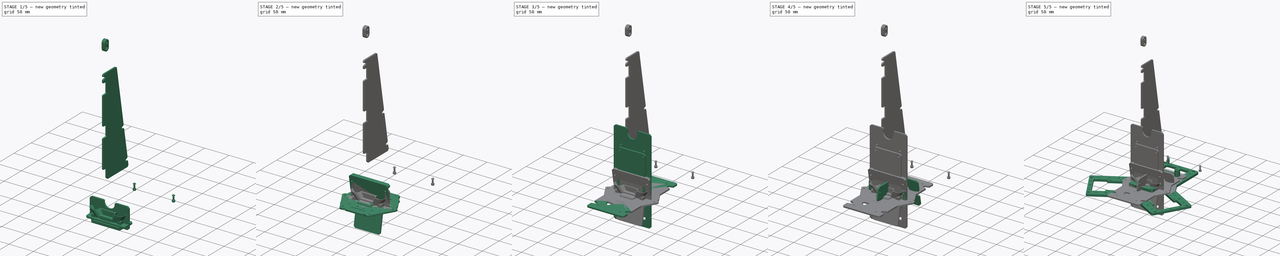
[diagram: build sequence overview — one tinted view per stage of 5, left to right]
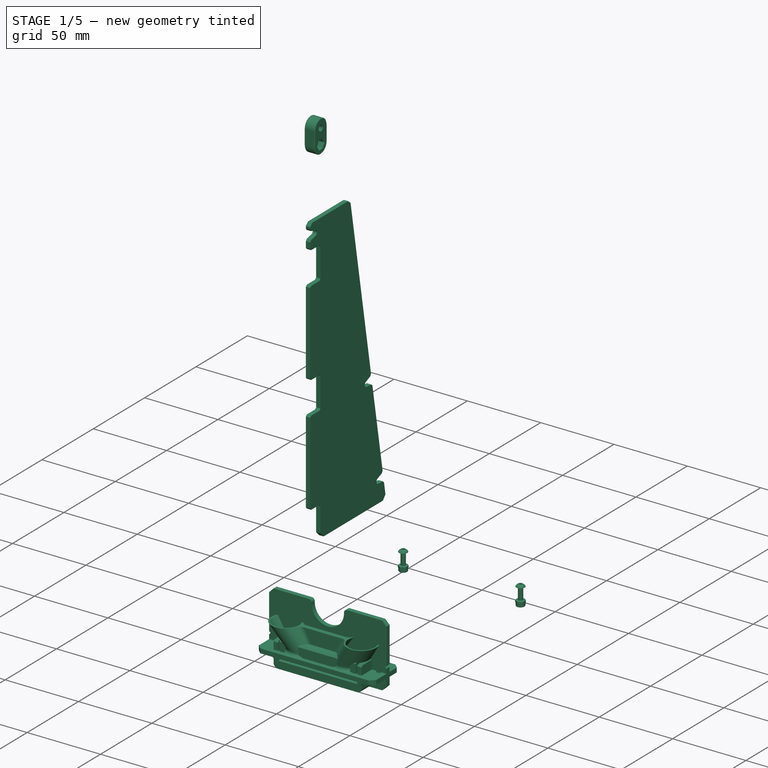
[diagram: stage 1 of 5 — iso view after this stage's code; geometry added in this stage tinted green]
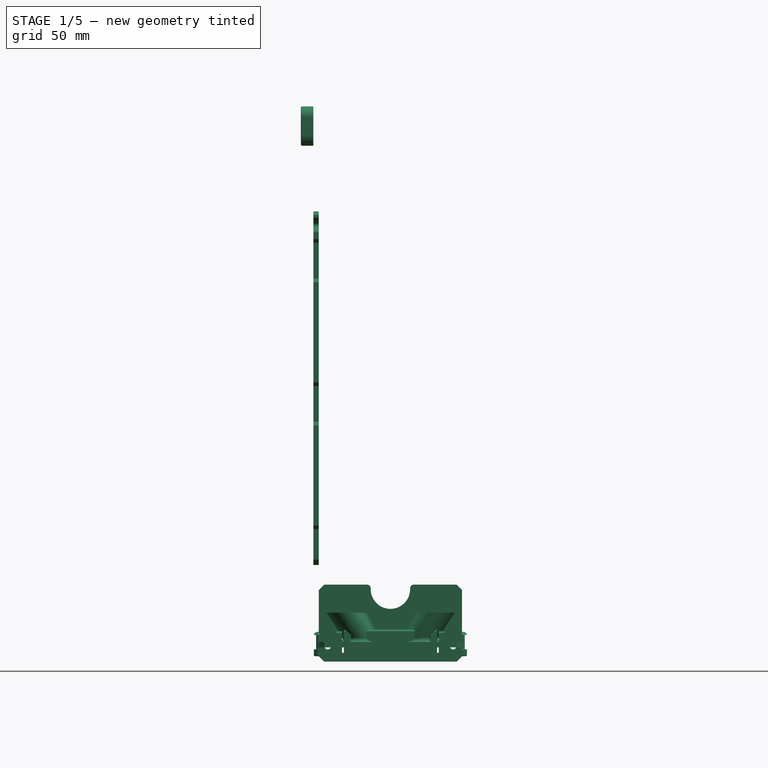
[diagram: stage 1 of 5 — front view after this stage's code; geometry added in this stage tinted green]
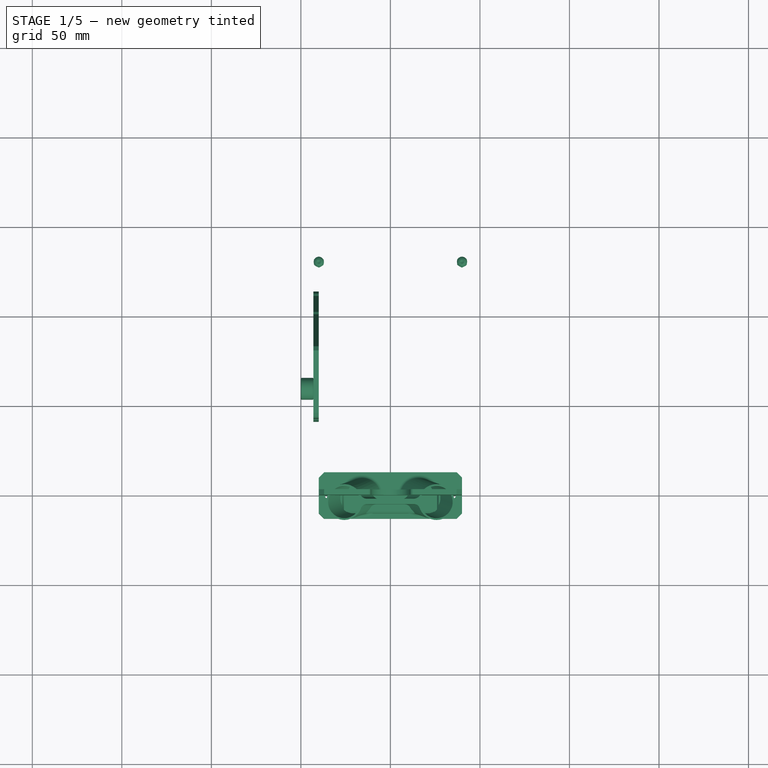
[diagram: stage 1 of 5 — top view after this stage's code; geometry added in this stage tinted green]
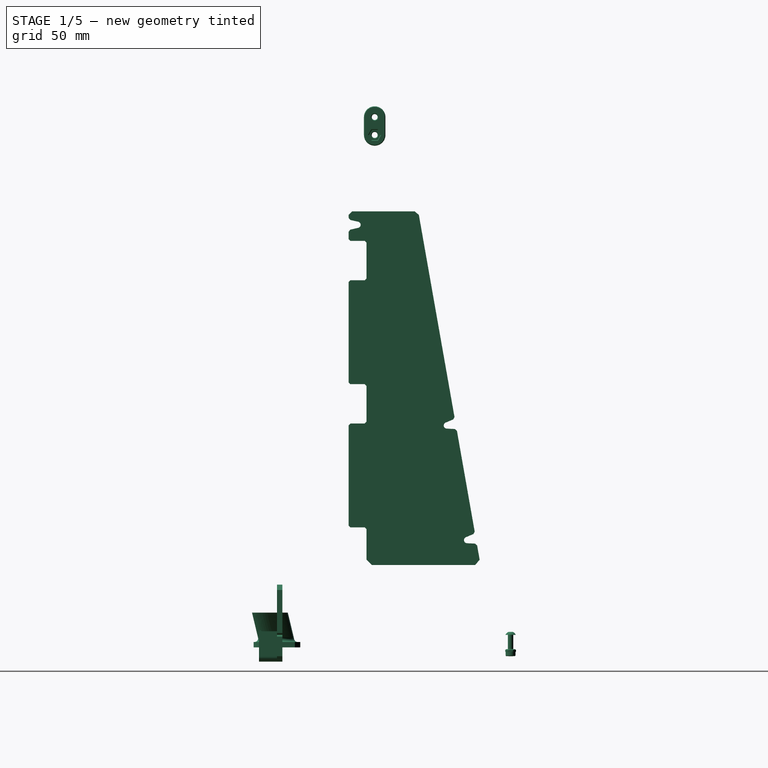
[diagram: stage 1 of 5 — right view after this stage's code; geometry added in this stage tinted green]
FCSTD DOCUMENT  (FreeCAD 2024.1006R14555 (Git shallow))
Label: column-motor
License: All rights reserved
LicenseURL: http://en.wikipedia.org/wiki/All_rights_reserved
objects: Sketcher::SketchObject×149, PartDesign::Chamfer×80, PartDesign::Pocket×78, PartDesign::Pad×68, PartDesign::Fillet×63, PartDesign::Body×46, App::Part×40, App::Link×35, PartDesign::Mirrored×20, TechDraw::DrawProjGroupItem×18, TechDraw::DrawProjGroup×18, Part::FeaturePython×16, Part::Feature×15, TechDraw::DrawSVGTemplate×14, TechDraw::DrawPage×14, Part::SubShapeBinder×14, PartDesign::PolarPattern×7, App::DocumentObjectGroup×5, App::VRMLObject×5, PartDesign::SubShapeBinder×4, +10 more types
note: 1385 computed .brp shape members not serialized (recipe doc carries the construction recipe); baked Part::Feature solids carry a one-line shape summary decoded from their .brp
EXTERNAL_REF file=generic-hardware.FCStd obj=Part022
EXTERNAL_REF file=generic-hardware.FCStd obj=Part
EXTERNAL_REF file=generic-hardware.FCStd obj=Body003
EXTERNAL_REF file=generic-hardware.FCStd obj=Body004
EXTERNAL_REF file=generic-hardware.FCStd obj=Body103
EXTERNAL_REF file=generic-hardware.FCStd obj=Part046
EXTERNAL_REF file=generic-hardware.FCStd obj=Part047
EXTERNAL_REF file=generic-hardware.FCStd obj=Body001
EXTERNAL_REF file=generic-hardware.FCStd obj=Body108
EXTERNAL_REF file=generic-hardware.FCStd obj=Part__Mirroring002
EXTERNAL_REF file=../actuators/lifter.FCStd obj=Part010
EXTERNAL_REF file=../holonomic-base.FCStd obj=Link008
EXTERNAL_REF file=../holonomic-base.FCStd obj=Link013
EXTERNAL_REF file=../holonomic-base.FCStd obj=Link015
EXTERNAL_REF file=../holonomic-base.FCStd obj=Link004

FEATURE [PartDesign::Body] Body028  label="CarterBattery"
  AutoGroupSolids = false
  ClaimAllChildren = false
  ExportMode = 0
  FixShape = 1
  Group = -> [Sketch057,Pad032,Sketch060,Pocket021,Import008,Sketch121,Pocket059,Sketch122,Pocket060,Fillet043,Sketch123,Pocket061,Mirrored008,Chamfer045,Fillet044]
  InvalidShape = false
  Origin = -> Origin065
  SingleSolid = true
  Tip = -> Fillet044
  TreeRank = 258
  ValidateShape = false
  _ExportChildren = -> [Pad032,Pocket021,Import008,Pocket059,Pocket060,Fillet043,Pocket061,Mirrored008,Chamfer045,Fillet044]
  _GroupVersion = 1
FEATURE [Sketcher::SketchObject] Sketch124
  ArcFitTolerance = 1e-06
  AttachmentSupport = -> [YZ_Plane081]
  ExternalBSplineMaxDegree = 5
  ExternalBSplineTolerance = 0.0001
  FullyConstrained = true
  InternalTolerance = 1e-06
  InvalidShape = false
  MakeInternals = false
  MapMode = 5
  Placement = pos=(0,0,0) rot=(0.57735,0.57735,0.57735;2.0944rad)
  Support = -> [YZ_Plane081]
  TreeRank = 941
  ValidateShape = false
  sketch-geometry (12):
    g0: LineSegment [constr] StartX=0 StartY=0 StartZ=0 EndX=-10 EndY=0 EndZ=0
    g1: LineSegment StartX=-10 StartY=0 StartZ=0 EndX=-10 EndY=10 EndZ=0
    g2: LineSegment StartX=-10 StartY=10 StartZ=0 EndX=0 EndY=10 EndZ=0
    g3: LineSegment StartX=0 StartY=10 StartZ=0 EndX=0 EndY=0 EndZ=0
    g4: LineSegment [constr] StartX=0 StartY=-3 StartZ=0 EndX=-10 EndY=-3 EndZ=0
    g5: LineSegment StartX=-10 StartY=-3 StartZ=0 EndX=-10 EndY=-8 EndZ=0
    g6: LineSegment StartX=-10 StartY=-8 StartZ=0 EndX=0 EndY=-8 EndZ=0
    g7: LineSegment StartX=0 StartY=-8 StartZ=0 EndX=0 EndY=-3 EndZ=0
    g8: LineSegment StartX=0 StartY=0 StartZ=0 EndX=0 EndY=-3 EndZ=0
    g9: LineSegment StartX=-10 StartY=0 StartZ=0 EndX=-1 EndY=0 EndZ=0
    g10: LineSegment StartX=-1 StartY=0 StartZ=0 EndX=-1 EndY=-3 EndZ=0
    g11: LineSegment StartX=-1 StartY=-3 StartZ=0 EndX=-10 EndY=-3 EndZ=0
  constraints (33):
    c: Coincident(g0,g1)
    c: Coincident(g1,g2)
    c: Coincident(g2,g3)
    c: Coincident(g3,g0)
    c: Horizontal(g0)
    c: Horizontal(g2)
    c: Vertical(g1)
    c: Vertical(g3)
    c: Coincident(g0,g-1)
    c: DistanceX(g0,g0) = 10
    c: DistanceY(g1,g1) = 10
    c: Coincident(g4,g5)
    c: Coincident(g5,g6)
    c: Coincident(g6,g7)
    c: Coincident(g7,g4)
    c: Horizontal(g4)
    c: Horizontal(g6)
    c: Vertical(g5)
    c: Vertical(g7)
    c: PointOnObject(g4,g-2)
    c: DistanceY(g4,g0) = 3
    c: DistanceY(g7,g7) = 5
    c: Equal(g4,g0)
    c: Coincident(g8,g3)
    c: Coincident(g8,g7)
    c: Coincident(g1,g9)
    c: PointOnObject(g9,g0)
    c: Coincident(g9,g10)
    c: PointOnObject(g10,g4)
    c: Vertical(g10)
    c: Coincident(g10,g11)
    c: Coincident(g11,g5)
    c: DistanceX(g9,g3) = 1
FEATURE [PartDesign::Pad] Pad062
  AddSubType = 0
  AlongSketchNormal = false
  AutoTaperInnerAngle = true
  CheckUpToFaceLimits = true
  ClaimChildren = false
  Direction = (1,-2e-16,3e-16)
  Fit = 0
  FitJoin = 0
  InnerFit = 0
  InnerFitJoin = 0
  InvalidShape = false
  Length = 60
  Length2 = 10
  Linearize = true
  Midplane = true
  NewSolid = false
  Profile = -> Sketch124
  ReferenceAxis = -> Sketch124 [N_Axis]
  Refine = true
  Suppress = false
  TaperInnerAngle = 0
  TaperInnerAngleRev = 0
  TreeRank = 942
  Type = 0
  ValidateShape = true
  _ProfileBasedVersion = 1
FEATURE [Sketcher::SketchObject] Sketch125
  ArcFitTolerance = 1e-06
  AttachmentSupport = -> [Pad062]
  ExternalBSplineMaxDegree = 5
  ExternalBSplineTolerance = 0.0001
  ExternalGeometry = -> [Pad062]
  FullyConstrained = true
  InternalTolerance = 1e-06
  InvalidShape = false
  MakeInternals = false
  MapMode = 5
  Placement = pos=(-30,0,-6.7e-15) rot=(0.57735,-0.57735,-0.57735;2.0944rad)
  Support = -> [Pad062]
  TreeRank = 943
  ValidateShape = false
  sketch-geometry (4):
    g0: LineSegment StartX=10 StartY=10 StartZ=0 EndX=0 EndY=10 EndZ=0
    g1: LineSegment StartX=0 StartY=10 StartZ=0 EndX=0 EndY=-3 EndZ=0
    g2: LineSegment StartX=0 StartY=-3 StartZ=0 EndX=10 EndY=-3 EndZ=0
    g3: LineSegment StartX=10 StartY=-3 StartZ=0 EndX=10 EndY=10 EndZ=0
  constraints (11):
    c: Coincident(g0,g1)
    c: Coincident(g1,g2)
    c: Coincident(g2,g3)
    c: Coincident(g3,g0)
    c: Horizontal(g0)
    c: Horizontal(g2)
    c: Vertical(g1)
    c: Vertical(g3)
    c: Coincident(g0,g-3)
    c: PointOnObject(g-4,g2)
    c: PointOnObject(g1,g-2)
FEATURE [PartDesign::Pocket] Pocket062
  AddSubType = 1
  AlongSketchNormal = false
  AutoTaperInnerAngle = true
  BaseFeature = -> Pad062
  CheckUpToFaceLimits = true
  ClaimChildren = false
  Direction = (1,-1e-16,1e-16)
  Fit = 0
  FitJoin = 0
  InnerFit = 0
  InnerFitJoin = 0
  InvalidShape = false
  Length = 4
  Length2 = 10
  Linearize = true
  NewSolid = false
  Profile = -> Sketch125
  ReferenceAxis = -> Sketch125 [N_Axis]
  Refine = true
  Suppress = false
  TaperInnerAngle = 0
  TaperInnerAngleRev = 0
  TreeRank = 944
  Type = 0
  ValidateShape = true
  _ProfileBasedVersion = 1
  _Version = 1
FEATURE [PartDesign::Mirrored] Mirrored009
  AddSubType = 0
  BaseFeature = -> Pocket062
  CopyShape = false
  HideBaseFeature = false
  InvalidShape = false
  MirrorPlane = -> YZ_Plane081
  NewSolid = false
  OffsetBaseFeature = true
  OriginalSubs = -> [Pocket062]
  Originals = -> [Pocket062]
  ParallelTransform = true
  Refine = true
  SubTransform = true
  Suppress = false
  TreeRank = 945
  ValidateShape = true
  _Version = 3
FEATURE [Sketcher::SketchObject] Sketch126
  ArcFitTolerance = 1e-06
  AttachmentSupport = -> [Mirrored009]
  ExternalBSplineMaxDegree = 5
  ExternalBSplineTolerance = 0.0001
  ExternalGeometry = -> [Mirrored009]
  FullyConstrained = true
  InternalTolerance = 1e-06
  InvalidShape = false
  MakeInternals = false
  MapMode = 5
  Placement = pos=(0,2e-16,0) rot=(0,0.707107,0.707107;3.14159rad)
  Support = -> [Mirrored009]
  TreeRank = 946
  ValidateShape = false
  sketch-geometry (4):
    g0: LineSegment StartX=-30 StartY=-3 StartZ=0 EndX=30 EndY=-3 EndZ=0
    g1: LineSegment StartX=30 StartY=-3 StartZ=0 EndX=30 EndY=-8 EndZ=0
    g2: LineSegment StartX=30 StartY=-8 StartZ=0 EndX=-30 EndY=-8 EndZ=0
    g3: LineSegment StartX=-30 StartY=-8 StartZ=0 EndX=-30 EndY=-3 EndZ=0
  constraints (10):
    c: Coincident(g0,g1)
    c: Coincident(g1,g2)
    c: Coincident(g2,g3)
    c: Coincident(g3,g0)
    c: Horizontal(g0)
    c: Horizontal(g2)
    c: Vertical(g1)
    c: Vertical(g3)
    c: Coincident(g0,g-4)
    c: Coincident(g1,g-3)
FEATURE [PartDesign::Pad] Pad063
  AddSubType = 0
  AlongSketchNormal = false
  AutoTaperInnerAngle = true
  BaseFeature = -> Mirrored009
  CheckUpToFaceLimits = true
  ClaimChildren = false
  Direction = (2e-16,1,-2e-16)
  Fit = 0
  FitJoin = 0
  InnerFit = 0
  InnerFitJoin = 0
  InvalidShape = false
  Length = 3
  Length2 = 10
  Linearize = true
  NewSolid = false
  Profile = -> Sketch126
  ReferenceAxis = -> Sketch126 [N_Axis]
  Refine = true
  Suppress = false
  TaperInnerAngle = 0
  TaperInnerAngleRev = 0
  TreeRank = 947
  Type = 0
  ValidateShape = true
  _ProfileBasedVersion = 1
FEATURE [Sketcher::SketchObject] Sketch127
  ArcFitTolerance = 1e-06
  AttachmentSupport = -> [XZ_Plane081]
  ExternalBSplineMaxDegree = 5
  ExternalBSplineTolerance = 0.0001
  ExternalGeometry = -> [Pad063]
  FullyConstrained = true
  InternalTolerance = 1e-06
  InvalidShape = false
  MakeInternals = false
  MapMode = 5
  Placement = pos=(0,0,0) rot=(1,0,0;1.5708rad)
  Support = -> [XZ_Plane081]
  TreeRank = 948
  ValidateShape = false
  sketch-geometry (4):
    g0: LineSegment StartX=40 StartY=-8 StartZ=0 EndX=27 EndY=-8 EndZ=0
    g1: LineSegment StartX=27 StartY=-8 StartZ=0 EndX=27 EndY=9 EndZ=0
    g2: LineSegment StartX=27 StartY=9 StartZ=0 EndX=40 EndY=9 EndZ=0
    g3: LineSegment StartX=40 StartY=9 StartZ=0 EndX=40 EndY=-8 EndZ=0
  constraints (12):
    c: Coincident(g0,g1)
    c: Coincident(g1,g2)
    c: Coincident(g2,g3)
    c: Coincident(g3,g0)
    c: Horizontal(g0)
    c: Horizontal(g2)
    c: Vertical(g1)
    c: Vertical(g3)
    c: DistanceX(g-3,g0) = 10
    c: DistanceY(g1,g-4) = 1
    c: DistanceX(g-4,g1) = 1
    c: PointOnObject(g0,g-3)
FEATURE [PartDesign::Pad] Pad064
  AddSubType = 0
  AlongSketchNormal = false
  AutoTaperInnerAngle = true
  BaseFeature = -> Pad063
  CheckUpToFaceLimits = true
  ClaimChildren = false
  Direction = (0,-1,2e-16)
  Fit = 0
  FitJoin = 0
  InnerFit = 0
  InnerFitJoin = 0
  InvalidShape = false
  Length = 10
  Length2 = 10
  Linearize = true
  NewSolid = false
  Profile = -> Sketch127
  ReferenceAxis = -> Sketch127 [N_Axis]
  Refine = true
  Suppress = false
  TaperInnerAngle = 0
  TaperInnerAngleRev = 0
  TreeRank = 949
  Type = 3
  UpToFace = -> Pad063 [Face3]
  ValidateShape = true
  _ProfileBasedVersion = 1
FEATURE [Sketcher::SketchObject] Sketch128
  ArcFitTolerance = 1e-06
  AttachmentSupport = -> [Pad064]
  ExternalBSplineMaxDegree = 5
  ExternalBSplineTolerance = 0.0001
  ExternalGeometry = -> [Pad064]
  FullyConstrained = true
  InternalTolerance = 1e-06
  InvalidShape = false
  MakeInternals = false
  MapMode = 5
  Placement = pos=(0,1e-16,0) rot=(1,0,0;1.5708rad)
  Support = -> [Pad064]
  TreeRank = 950
  ValidateShape = false
  sketch-geometry (4):
    g0: LineSegment StartX=27 StartY=9 StartZ=0 EndX=30 EndY=9 EndZ=0
    g1: LineSegment StartX=30 StartY=9 StartZ=0 EndX=30 EndY=-3 EndZ=0
    g2: LineSegment StartX=30 StartY=-3 StartZ=0 EndX=27 EndY=-3 EndZ=0
    g3: LineSegment StartX=27 StartY=-3 StartZ=0 EndX=27 EndY=9 EndZ=0
  constraints (10):
    c: Coincident(g0,g1)
    c: Coincident(g1,g2)
    c: Coincident(g2,g3)
    c: Coincident(g3,g0)
    c: Horizontal(g0)
    c: Horizontal(g2)
    c: Vertical(g1)
    c: Vertical(g3)
    c: Coincident(g0,g-4)
    c: Coincident(g1,g-3)
FEATURE [PartDesign::Pad] Pad065
  AddSubType = 0
  AlongSketchNormal = false
  AutoTaperInnerAngle = true
  BaseFeature = -> Pad064
  CheckUpToFaceLimits = true
  ClaimChildren = false
  Direction = (0,-1,2e-16)
  Fit = 0
  FitJoin = 0
  InnerFit = 0
  InnerFitJoin = 0
  InvalidShape = false
  Length = 10
  Length2 = 10
  Linearize = true
  NewSolid = false
  Profile = -> Sketch128
  ReferenceAxis = -> Sketch128 [N_Axis]
  Refine = true
  Suppress = false
  TaperInnerAngle = 0
  TaperInnerAngleRev = 0
  TreeRank = 951
  Type = 3
  UpToFace = -> Pad064 [Face1]
  ValidateShape = true
  _ProfileBasedVersion = 1
FEATURE [PartDesign::Mirrored] Mirrored010
  AddSubType = 0
  BaseFeature = -> Pad065
  CopyShape = false
  HideBaseFeature = false
  InvalidShape = false
  MirrorPlane = -> Sketch127 [V_Axis]
  NewSolid = false
  OffsetBaseFeature = true
  OriginalSubs = -> [Pad064,Pad065]
  Originals = -> [Pad064,Pad065]
  ParallelTransform = true
  Refine = true
  SubTransform = true
  Suppress = false
  TreeRank = 952
  ValidateShape = true
  _Version = 3
FEATURE [Sketcher::SketchObject] Sketch129
  ArcFitTolerance = 1e-06
  AttachmentSupport = -> [XZ_Plane081]
  ExternalBSplineMaxDegree = 5
  ExternalBSplineTolerance = 0.0001
  ExternalGeometry = -> [Mirrored010]
  FullyConstrained = true
  InternalTolerance = 1e-06
  InvalidShape = false
  MakeInternals = false
  MapMode = 5
  Placement = pos=(0,0,0) rot=(1,0,0;1.5708rad)
  Support = -> [XZ_Plane081]
  TreeRank = 953
  ValidateShape = false
  sketch-geometry (2):
    g0: Circle CenterX=-35 CenterY=0.5 CenterZ=0 NormalX=0 NormalY=0 NormalZ=1 AngleXU=0 Radius=1.7
    g1: Circle CenterX=35 CenterY=0.5 CenterZ=0 NormalX=0 NormalY=0 NormalZ=1 AngleXU=0 Radius=1.7
  constraints (4):
    c: Equal(g1,g0)
    c: Diameter(g1) = 3.4
    c: Symmetric(g1,g0,g-2)
    c: Symmetric(g-4,g-3,g1)
FEATURE [PartDesign::Pocket] Pocket063
  AddSubType = 1
  AlongSketchNormal = false
  AutoTaperInnerAngle = true
  BaseFeature = -> Mirrored010
  CheckUpToFaceLimits = true
  ClaimChildren = false
  Direction = (0,1,-2e-16)
  Fit = 0
  FitJoin = 0
  InnerFit = 0
  InnerFitJoin = 0
  InvalidShape = false
  Length = 5
  Length2 = 10
  Linearize = true
  NewSolid = false
  Profile = -> Sketch129
  ReferenceAxis = -> Sketch129 [N_Axis]
  Refine = true
  Suppress = false
  TaperInnerAngle = 0
  TaperInnerAngleRev = 0
  TreeRank = 954
  Type = 0
  ValidateShape = true
  _ProfileBasedVersion = 1
  _Version = 1
FEATURE [PartDesign::Chamfer] Chamfer046
  AddSubType = 0
  Angle = 45
  Base = -> Pocket063 [Edge41,Edge48,Edge46,Edge44]
  BaseFeature = -> Pocket063
  ChamferType = 0
  FlipDirection = false
  InvalidShape = false
  NewSolid = false
  Refine = true
  Size = 3
  Size2 = 1
  SupportTransform = false
  Suppress = false
  TreeRank = 955
  UseAllEdges = false
  ValidateShape = true
FEATURE [PartDesign::Fillet] Fillet045
  AddSubType = 0
  Base = -> Chamfer046 [Edge38,Edge40]
  BaseFeature = -> Chamfer046
  InvalidShape = false
  NewSolid = false
  Radius = 3
  Refine = true
  SupportTransform = false
  Suppress = false
  TreeRank = 956
  UseAllEdges = false
  ValidateShape = true
FEATURE [PartDesign::Fillet] Fillet046
  AddSubType = 0
  Base = -> Fillet045 [Edge70,Edge77]
  BaseFeature = -> Fillet045
  InvalidShape = false
  NewSolid = false
  Radius = 3
  Refine = true
  SupportTransform = false
  Suppress = false
  TreeRank = 957
  UseAllEdges = false
  ValidateShape = true
FEATURE [PartDesign::Chamfer] Chamfer047
  AddSubType = 0
  Angle = 45
  Base = -> Fillet046 [Edge50,Edge54,Edge10]
  BaseFeature = -> Fillet046
  ChamferType = 0
  FlipDirection = false
  InvalidShape = false
  NewSolid = false
  Refine = true
  Size = 1
  Size2 = 1
  SupportTransform = false
  Suppress = false
  TreeRank = 958
  UseAllEdges = false
  ValidateShape = true
FEATURE [Sketcher::SketchObject] Sketch130
  ArcFitTolerance = 1e-06
  AttachmentSupport = -> [Chamfer047]
  ExternalBSplineMaxDegree = 5
  ExternalBSplineTolerance = 0.0001
  FullyConstrained = true
  InternalTolerance = 1e-06
  InvalidShape = false
  MakeInternals = false
  MapMode = 5
  Placement = pos=(0,2e-16,0) rot=(0,0.707107,0.707107;3.14159rad)
  Support = -> [Chamfer047]
  TreeRank = 959
  ValidateShape = false
  sketch-geometry (2):
    g0: Circle CenterX=-20 CenterY=5 CenterZ=0 NormalX=0 NormalY=0 NormalZ=1 AngleXU=0 Radius=2.15
    g1: Circle CenterX=20 CenterY=5 CenterZ=0 NormalX=0 NormalY=0 NormalZ=1 AngleXU=0 Radius=2.15
  constraints (5):
    c: Equal(g1,g0)
    c: Symmetric(g0,g1,g-2)
    c: DistanceY(g-1,g1) = 5
    c: DistanceX(g-1,g1) = 20
    c: Diameter(g1) = 4.3
FEATURE [PartDesign::Pocket] Pocket064
  AddSubType = 1
  AlongSketchNormal = false
  AutoTaperInnerAngle = true
  BaseFeature = -> Chamfer047
  CheckUpToFaceLimits = true
  ClaimChildren = false
  Direction = (-2e-16,-1,2e-16)
  Fit = 0
  FitJoin = 0
  InnerFit = 0
  InnerFitJoin = 0
  InvalidShape = false
  Length = 5
  Length2 = 10
  Linearize = true
  NewSolid = false
  Profile = -> Sketch130
  ReferenceAxis = -> Sketch130 [N_Axis]
  Refine = true
  Suppress = false
  TaperInnerAngle = 0
  TaperInnerAngleRev = 0
  TreeRank = 960
  Type = 1
  ValidateShape = true
  _ProfileBasedVersion = 1
  _Version = 1
FEATURE [PartDesign::Chamfer] Chamfer048
  AddSubType = 0
  Angle = 45
  Base = -> Pocket064 [Edge15,Edge29,Edge14,Edge30]
  BaseFeature = -> Pocket064
  ChamferType = 0
  FlipDirection = false
  InvalidShape = false
  NewSolid = false
  Refine = true
  Size = 0.4
  Size2 = 1
  SupportTransform = false
  Suppress = false
  TreeRank = 961
  UseAllEdges = false
  ValidateShape = true
FEATURE [PartDesign::Body] Body051  label="ClipCable"
  AutoGroupSolids = false
  ClaimAllChildren = false
  ExportMode = 0
  Group = -> [Sketch134,Pad068,Sketch135,Pocket066,Fillet048,Chamfer053,Chamfer054,Chamfer055]
  InvalidShape = false
  Origin = -> Origin101
  Placement = pos=(0,-73,55) rot=(0,0,1;0rad)
  Tip = -> Chamfer055
  TreeRank = 1022
  ValidateShape = false
  _ExportChildren = -> [Pad068,Pocket066,Fillet048,Chamfer053,Chamfer054,Chamfer055]
  _GroupVersion = 1
FEATURE [App::Part] Part021  label="TrapBattery"
  ClaimAllChildren = false
  ExportMode = 1
  Group = -> [Body028,Body029,Body045,Link044,Body048,Body049,Body050,Body051]
  Origin = -> Origin067
  Placement = pos=(0,108.453,75.987) rot=(1,0,0;0.174533rad)
  TreeRank = 294
  _ExportChildren = -> [Body028,Body029,Body045,Link044,Body048,Body049,Body050,Body051]
  _GroupVersion = 1
FEATURE [App::Part] Part020  label="Battery_Assembled"
  ClaimAllChildren = false
  ExportMode = 1
  Group = -> [Part021]
  Origin = -> Origin064
  TreeRank = 236
  _ExportChildren = -> [Part021]
  _GroupVersion = 1
FEATURE [Sketcher::SketchObject] Sketch136
  ArcFitTolerance = 1e-06
  AttachmentSupport = -> [YZ_Plane085]
  ExternalBSplineMaxDegree = 5
  ExternalBSplineTolerance = 0.0001
  FullyConstrained = true
  InternalTolerance = 1e-06
  InvalidShape = false
  MakeInternals = false
  MapMode = 5
  Placement = pos=(0,0,0) rot=(0.57735,0.57735,0.57735;2.0944rad)
  Support = -> [YZ_Plane085]
  TreeRank = 1041
  ValidateShape = false
  sketch-geometry (4):
    g0: LineSegment StartX=73.73 StartY=0 StartZ=0 EndX=0 EndY=0 EndZ=0
    g1: LineSegment StartX=0 StartY=0 StartZ=0 EndX=0 EndY=255.6 EndZ=0
    g2: LineSegment StartX=0 StartY=255.6 StartZ=0 EndX=28.2254 EndY=258.069 EndZ=0
    g3: LineSegment StartX=28.2254 StartY=258.069 StartZ=0 EndX=73.73 EndY=0 EndZ=0
  constraints (11):
    c: PointOnObject(g0,g-1)
    c: Coincident(g0,g-1)
    c: Coincident(g0,g1)
    c: Vertical(g1)
    c: Coincident(g1,g2)
    c: Coincident(g2,g3)
    c: Coincident(g3,g0)
    c: Angle(g3,g0) = 1.39626
    c: DistanceX(g0,g0) = 73.73
    c: Angle(g1,g2) = 1.65806
    c: DistanceY(g1,g1) = 255.6
FEATURE [PartDesign::Pad] Pad069
  AddSubType = 0
  AlongSketchNormal = false
  AutoTaperInnerAngle = true
  CheckUpToFaceLimits = true
  ClaimChildren = false
  Direction = (1,-2e-16,3e-16)
  Fit = 0
  FitJoin = 0
  InnerFit = 0
  InnerFitJoin = 0
  InvalidShape = false
  Length = 3
  Length2 = 10
  Linearize = true
  NewSolid = false
  Profile = -> Sketch136
  ReferenceAxis = -> Sketch136 [N_Axis]
  Refine = true
  Reversed = true
  Suppress = false
  TaperInnerAngle = 0
  TaperInnerAngleRev = 0
  TreeRank = 1042
  Type = 0
  ValidateShape = true
  _ProfileBasedVersion = 1
FEATURE [Sketcher::SketchObject] Sketch137
  ArcFitTolerance = 1e-06
  AttachmentSupport = -> [YZ_Plane085]
  ExternalBSplineMaxDegree = 5
  ExternalBSplineTolerance = 0.0001
  FullyConstrained = true
  InternalTolerance = 1e-06
  InvalidShape = false
  MakeInternals = false
  MapMode = 5
  Placement = pos=(0,0,0) rot=(0.57735,0.57735,0.57735;2.0944rad)
  Support = -> [YZ_Plane085]
  TreeRank = 1043
  ValidateShape = false
  sketch-geometry (12):
    g0: LineSegment StartX=0 StartY=0 StartZ=0 EndX=10 EndY=0 EndZ=0
    g1: LineSegment StartX=10 StartY=0 StartZ=0 EndX=10 EndY=21 EndZ=0
    g2: LineSegment StartX=10 StartY=21 StartZ=0 EndX=0 EndY=21 EndZ=0
    g3: LineSegment StartX=0 StartY=21 StartZ=0 EndX=0 EndY=0 EndZ=0
    g4: LineSegment StartX=0 StartY=79 StartZ=0 EndX=10 EndY=79 EndZ=0
    g5: LineSegment StartX=10 StartY=79 StartZ=0 EndX=10 EndY=101 EndZ=0
    g6: LineSegment StartX=10 StartY=101 StartZ=0 EndX=0 EndY=101 EndZ=0
    g7: LineSegment StartX=0 StartY=101 StartZ=0 EndX=0 EndY=79 EndZ=0
    g8: LineSegment StartX=0 StartY=159 StartZ=0 EndX=10 EndY=159 EndZ=0
    g9: LineSegment StartX=10 StartY=159 StartZ=0 EndX=10 EndY=181 EndZ=0
    g10: LineSegment StartX=10 StartY=181 StartZ=0 EndX=0 EndY=181 EndZ=0
    g11: LineSegment StartX=0 StartY=181 StartZ=0 EndX=0 EndY=159 EndZ=0
  constraints (35):
    c: Coincident(g0,g1)
    c: Coincident(g1,g2)
    c: Coincident(g2,g3)
    c: Coincident(g3,g0)
    c: Horizontal(g0)
    c: Horizontal(g2)
    c: Vertical(g1)
    c: Vertical(g3)
    c: Coincident(g0,g-1)
    c: DistanceY(g3,g3) = 21
    c: DistanceX(g2,g2) = 10
    c: Coincident(g4,g5)
    c: Coincident(g5,g6)
    c: Coincident(g6,g7)
    c: Coincident(g7,g4)
    c: Horizontal(g4)
    c: Horizontal(g6)
    c: Vertical(g5)
    c: Vertical(g7)
    c: PointOnObject(g4,g-2)
    c: Coincident(g8,g9)
    c: Coincident(g9,g10)
    c: Coincident(g10,g11)
    c: Coincident(g11,g8)
    c: Horizontal(g8)
    c: Horizontal(g10)
    c: Vertical(g9)
    c: Vertical(g11)
    c: PointOnObject(g8,g-2)
    c: Equal(g2,g4)
    c: Equal(g4,g8)
    c: DistanceY(g2,g4) = 58
    c: DistanceY(g6,g8) = 58
    c: DistanceY(g5,g5) = 22
    c: DistanceY(g9,g9) = 22
FEATURE [PartDesign::Pocket] Pocket067
  AddSubType = 1
  AlongSketchNormal = false
  AutoTaperInnerAngle = true
  BaseFeature = -> Pad069
  CheckUpToFaceLimits = true
  ClaimChildren = false
  Direction = (-1,2e-16,-3e-16)
  Fit = 0
  FitJoin = 0
  InnerFit = 0
  InnerFitJoin = 0
  InvalidShape = false
  Length = 5
  Length2 = 10
  Linearize = true
  NewSolid = false
  Profile = -> Sketch137
  ReferenceAxis = -> Sketch137 [N_Axis]
  Refine = true
  Suppress = false
  TaperInnerAngle = 0
  TaperInnerAngleRev = 0
  TreeRank = 1044
  Type = 0
  ValidateShape = true
  _ProfileBasedVersion = 1
  _Version = 1
FEATURE [PartDesign::Chamfer] Chamfer056
  AddSubType = 0
  Angle = 45
  Base = -> Pocket067 [Edge41,Edge40,Edge39,Edge38,Edge36,Edge37,Edge34,Edge35,Edge18,Edge33]
  BaseFeature = -> Pocket067
  ChamferType = 0
  FlipDirection = false
  InvalidShape = false
  NewSolid = false
  Refine = true
  Size = 1
  Size2 = 1
  SupportTransform = false
  Suppress = false
  TreeRank = 1045
  UseAllEdges = false
  ValidateShape = true
FEATURE [Sketcher::SketchObject] Sketch138
  ArcFitTolerance = 1e-06
  AttachmentSupport = -> [YZ_Plane085]
  ExternalBSplineMaxDegree = 5
  ExternalBSplineTolerance = 0.0001
  ExternalGeometry = -> [Chamfer056]
  FullyConstrained = true
  InternalTolerance = 1e-06
  InvalidShape = false
  MakeInternals = false
  MapMode = 5
  Placement = pos=(0,0,0) rot=(0.57735,0.57735,0.57735;2.0944rad)
  Support = -> [YZ_Plane085]
  TreeRank = 1046
  ValidateShape = false
  sketch-geometry (15):
    g0: ArcOfCircle CenterX=-0.662278 CenterY=190 CenterZ=0 NormalX=0 NormalY=0 NormalZ=1 AngleXU=0 Radius=3 StartAngle=1.3482 EndAngle=4.93498
    g1: ArcOfCircle CenterX=5 CenterY=190 CenterZ=0 NormalX=0 NormalY=0 NormalZ=1 AngleXU=0 Radius=1.75 StartAngle=4.93498 EndAngle=7.63139
    g2: LineSegment StartX=-4.22e-14 StartY=187.074 StartZ=0 EndX=5.38633 EndY=188.293 EndZ=0
    g3: LineSegment StartX=5.38633 StartY=191.707 StartZ=0 EndX=-4.26e-14 EndY=192.926 EndZ=0
    g4: ArcOfCircle CenterX=71.7775 CenterY=14.8871 CenterZ=0 NormalX=0 NormalY=0 NormalZ=1 AngleXU=0 Radius=3 StartAngle=4.66433 EndAngle=8.25111
    g5: ArcOfCircle CenterX=66.2012 CenterY=13.9039 CenterZ=0 NormalX=0 NormalY=0 NormalZ=1 AngleXU=0 Radius=1.75 StartAngle=1.96792 EndAngle=4.66433
    g6: LineSegment StartX=70.6172 StartY=17.6536 StartZ=0 EndX=65.5244 EndY=15.5177 EndZ=0
    g7: LineSegment StartX=66.1172 StartY=12.1559 StartZ=0 EndX=71.6334 EndY=11.8906 EndZ=0
    g8: LineSegment [constr] StartX=66.2012 StartY=13.9039 StartZ=0 EndX=71.1253 EndY=14.7721 EndZ=0
    g9: ArcOfCircle CenterX=60.4904 CenterY=78.8996 CenterZ=0 NormalX=0 NormalY=0 NormalZ=1 AngleXU=0 Radius=3 StartAngle=4.66433 EndAngle=8.25111
    g10: ArcOfCircle CenterX=54.9141 CenterY=77.9164 CenterZ=0 NormalX=0 NormalY=0 NormalZ=1 AngleXU=0 Radius=1.75 StartAngle=1.96792 EndAngle=4.66433
    g11: LineSegment StartX=59.3301 StartY=81.6662 StartZ=0 EndX=54.2373 EndY=79.5302 EndZ=0
    g12: LineSegment StartX=54.83 StartY=76.1684 StartZ=0 EndX=60.3462 EndY=75.9031 EndZ=0
    g13: LineSegment [constr] StartX=54.9141 StartY=77.9164 StartZ=0 EndX=59.8381 EndY=78.7846 EndZ=0
    g14: Circle [constr] CenterX=5 CenterY=190 CenterZ=0 NormalX=0 NormalY=0 NormalZ=1 AngleXU=0 Radius=9
  constraints (38):
    c: Tangent(g0,g2) = -1.5708
    c: Tangent(g2,g1) = -1.5708
    c: Tangent(g1,g3) = -1.5708
    c: Tangent(g3,g0) = -1.5708
    c: Radius(g0) = 3
    c: Radius(g1) = 1.75
    c: Horizontal(g1,g0)
    c: PointOnObject(g0,g-3)
    c: DistanceX(g0,g1) = 5
    c: Tangent(g4,g6) = -1.5708
    c: Tangent(g6,g5) = -1.5708
    c: Tangent(g5,g7) = -1.5708
    c: Tangent(g7,g4) = -1.5708
    c: Equal(g0,g4)
    c: Equal(g5,g1)
    c: PointOnObject(g4,g-4)
    c: PointOnObject(g4,g-4)
    c: Coincident(g8,g5)
    c: PointOnObject(g8,g-4)
    c: Perpendicular(g-4,g8)
    c: Distance(g8) = 5
    c: Distance(g8,g-4) = 15
    c: Tangent(g9,g11) = -1.5708
    c: Tangent(g11,g10) = -1.5708
    c: Tangent(g10,g12) = -1.5708
    c: Tangent(g12,g9) = -1.5708
    c: Equal(g9,g0)
    c: Equal(g10,g1)
    c: PointOnObject(g9,g-4)
    c: PointOnObject(g9,g-4)
    c: Coincident(g13,g10)
    c: PointOnObject(g13,g-4)
    c: Perpendicular(g-4,g13)
    c: Distance(g13) = 5
    c: Distance(g13,g-4) = 80
    c: Coincident(g14,g1)
    c: Diameter(g14) = 18
    c: Tangent(g14,g-5)
FEATURE [PartDesign::Pocket] Pocket068
  AddSubType = 1
  AlongSketchNormal = false
  AutoTaperInnerAngle = true
  BaseFeature = -> Chamfer056
  CheckUpToFaceLimits = true
  ClaimChildren = false
  Direction = (-1,2e-16,-3e-16)
  Fit = 0
  FitJoin = 0
  InnerFit = 0
  InnerFitJoin = 0
  InvalidShape = false
  Length = 5
  Length2 = 10
  Linearize = true
  NewSolid = false
  Profile = -> Sketch138
  ReferenceAxis = -> Sketch138 [N_Axis]
  Refine = true
  Suppress = false
  TaperInnerAngle = 0
  TaperInnerAngleRev = 0
  TreeRank = 1047
  Type = 0
  ValidateShape = true
  _ProfileBasedVersion = 1
  _Version = 1
FEATURE [PartDesign::Chamfer] Chamfer057
  AddSubType = 0
  Angle = 45
  Base = -> Pocket068 [Edge96,Edge102,Edge88,Edge94,Edge82,Edge76]
  BaseFeature = -> Pocket068
  ChamferType = 0
  FlipDirection = false
  InvalidShape = false
  NewSolid = false
  Refine = true
  Size = 1
  Size2 = 1
  SupportTransform = false
  Suppress = false
  TreeRank = 1048
  UseAllEdges = false
  ValidateShape = true
FEATURE [PartDesign::Chamfer] Chamfer058
  AddSubType = 0
  Angle = 45
  Base = -> Chamfer057 [Edge66,Edge70,Edge122,Edge124]
  BaseFeature = -> Chamfer057
  ChamferType = 0
  FlipDirection = false
  InvalidShape = false
  NewSolid = false
  Refine = true
  Size = 3
  Size2 = 1
  SupportTransform = false
  Suppress = false
  TreeRank = 1049
  UseAllEdges = false
  ValidateShape = true
FEATURE [PartDesign::Body] Body052  label="CarterLateral"
  AutoGroupSolids = false
  ClaimAllChildren = false
  ExportMode = 0
  Group = -> [Sketch136,Pad069,Sketch137,Pocket067,Chamfer056,Sketch138,Pocket068,Chamfer057,Chamfer058]
  InvalidShape = false
  Origin = -> Origin102
  Placement = pos=(-40,40,46) rot=(0,0,1;0rad)
  Tip = -> Chamfer058
  TreeRank = 1040
  ValidateShape = false
  _ExportChildren = -> [Pad069,Pocket067,Chamfer056,Pocket068,Chamfer057,Chamfer058]
  _GroupVersion = 1
FEATURE [PartDesign::FeatureBase] Clone001
  BaseFeature = -> Body052
  InvalidShape = false
  NewSolid = false
  Placement = pos=(-40,40,46) rot=(0,0,1;0rad)
  Suppress = false
  TreeRank = 1059
  ValidateShape = true
FEATURE [Sketcher::SketchObject] Sketch139
  ArcFitTolerance = 1e-06
  AttachmentSupport = -> [Clone001]
  ExternalBSplineMaxDegree = 5
  ExternalBSplineTolerance = 0.0001
  ExternalGeometry = -> [Clone001]
  FullyConstrained = true
  InternalTolerance = 1e-06
  InvalidShape = false
  MakeInternals = false
  MapMode = 5
  Placement = pos=(-40,40,46) rot=(0.57735,0.57735,0.57735;2.0944rad)
  Support = -> [Clone001]
  TreeRank = 1061
  ValidateShape = false
  sketch-geometry (4):
    g0: LineSegment StartX=6.39e-14 StartY=197.5 StartZ=0 EndX=38.9054 EndY=197.5 EndZ=0
    g1: LineSegment StartX=38.9054 StartY=197.5 StartZ=0 EndX=38.9054 EndY=267.5 EndZ=0
    g2: LineSegment StartX=38.9054 StartY=267.5 StartZ=0 EndX=6.39e-14 EndY=267.5 EndZ=0
    g3: LineSegment StartX=6.39e-14 StartY=267.5 StartZ=0 EndX=6.39e-14 EndY=197.5 EndZ=0
  constraints (12):
    c: Coincident(g0,g1)
    c: Coincident(g1,g2)
    c: Coincident(g2,g3)
    c: Coincident(g3,g0)
    c: Horizontal(g0)
    c: Horizontal(g2)
    c: Vertical(g1)
    c: Vertical(g3)
    c: PointOnObject(g0,g-3)
    c: PointOnObject(g0,g-4)
    c: DistanceY(g-1,g0) = 197.5
    c: DistanceY(g1,g1) = 70
FEATURE [PartDesign::Pocket] Pocket069
  AddSubType = 1
  AlongSketchNormal = false
  AutoTaperInnerAngle = true
  BaseFeature = -> Clone001
  CheckUpToFaceLimits = true
  ClaimChildren = false
  Direction = (-1,-1e-16,-1e-16)
  Fit = 0
  FitJoin = 0
  InnerFit = 0
  InnerFitJoin = 0
  InvalidShape = false
  Length = 5
  Length2 = 10
  Linearize = true
  NewSolid = false
  Profile = -> Sketch139
  ReferenceAxis = -> Sketch139 [N_Axis]
  Refine = true
  Suppress = false
  TaperInnerAngle = 0
  TaperInnerAngleRev = 0
  TreeRank = 1062
  Type = 0
  ValidateShape = true
  _ProfileBasedVersion = 1
  _Version = 1
FEATURE [PartDesign::Chamfer] Chamfer059
  AddSubType = 0
  Angle = 45
  Base = -> Pocket069 [Edge48,Edge45]
  BaseFeature = -> Pocket069
  ChamferType = 0
  FlipDirection = false
  InvalidShape = false
  NewSolid = false
  Refine = true
  Size = 2
  Size2 = 1
  SupportTransform = false
  Suppress = false
  TreeRank = 1063
  UseAllEdges = false
  ValidateShape = true
FEATURE [PartDesign::Body] Body053  label="CarterLateralServo"
  AutoGroupSolids = false
  BaseFeature = -> Body052
  ClaimAllChildren = false
  ExportMode = 0
  Group = -> [Clone001,Sketch139,Pocket069,Chamfer059]
  InvalidShape = false
  Origin = -> Origin103
  Placement = pos=(83,0,0) rot=(0,0,1;0rad)
  Tip = -> Chamfer059
  TreeRank = 1060
  ValidateShape = false
  _ExportChildren = -> [Clone001,Pocket069,Chamfer059]
  _GroupVersion = 1
FEATURE [Sketcher::SketchObject] Sketch140
  ArcFitTolerance = 1e-06
  AttachmentSupport = -> [YZ_Plane087]
  ExternalBSplineMaxDegree = 5
  ExternalBSplineTolerance = 0.0001
  FullyConstrained = true
  InternalTolerance = 1e-06
  InvalidShape = false
  MakeInternals = false
  MapMode = 5
  Placement = pos=(0,0,0) rot=(0.57735,0.57735,0.57735;2.0944rad)
  Support = -> [YZ_Plane087]
  TreeRank = 1074
  ValidateShape = false
  sketch-geometry (5):
    g0: LineSegment StartX=0 StartY=-5 StartZ=0 EndX=0 EndY=10 EndZ=0
    g1: LineSegment StartX=0 StartY=10 StartZ=0 EndX=-6.34777 EndY=46 EndZ=0
    g2: LineSegment StartX=-6.34777 StartY=46 StartZ=0 EndX=3 EndY=46 EndZ=0
    g3: LineSegment StartX=3 StartY=46 StartZ=0 EndX=3 EndY=-5 EndZ=0
    g4: LineSegment StartX=3 StartY=-5 StartZ=0 EndX=0 EndY=-5 EndZ=0
  constraints (15):
    c: PointOnObject(g0,g-2)
    c: PointOnObject(g0,g-2)
    c: Coincident(g0,g1)
    c: Coincident(g1,g2)
    c: Horizontal(g2)
    c: Coincident(g2,g3)
    c: Vertical(g3)
    c: Coincident(g3,g4)
    c: Coincident(g4,g0)
    c: Horizontal(g4)
    c: DistanceY(g0,g-1) = 5
    c: DistanceY(g0) = 10
    c: Angle(g1,g-2) = 2.96706
    c: DistanceX(g4,g4) = 3
    c: DistanceY(g-1,g2) = 46
FEATURE [PartDesign::Pad] Pad070
  AddSubType = 0
  AlongSketchNormal = false
  AutoTaperInnerAngle = true
  CheckUpToFaceLimits = true
  ClaimChildren = false
  Direction = (1,-2e-16,3e-16)
  Fit = 0
  FitJoin = 0
  InnerFit = 0
  InnerFitJoin = 0
  InvalidShape = false
  Length = 80
  Length2 = 10
  Linearize = true
  Midplane = true
  NewSolid = false
  Profile = -> Sketch140
  ReferenceAxis = -> Sketch140 [N_Axis]
  Refine = true
  Suppress = false
  TaperInnerAngle = 0
  TaperInnerAngleRev = 0
  TreeRank = 1075
  Type = 0
  ValidateShape = true
  _ProfileBasedVersion = 1
FEATURE [Sketcher::SketchObject] Sketch141
  ArcFitTolerance = 1e-06
  AttachmentSupport = -> [Pad070]
  ExternalBSplineMaxDegree = 5
  ExternalBSplineTolerance = 0.0001
  ExternalGeometry = -> [Pad070]
  FullyConstrained = true
  InternalTolerance = 1e-06
  InvalidShape = false
  MakeInternals = false
  MapMode = 5
  Placement = pos=(3e-16,1.7101,0.301537) rot=(1,0,0;1.74533rad)
  Support = -> [Pad070]
  TreeRank = 1076
  ValidateShape = false
  sketch-geometry (3):
    g0: LineSegment [constr] StartX=-40 StartY=46.4034 StartZ=0 EndX=-40 EndY=0 EndZ=0
    g1: Circle CenterX=-35 CenterY=34.4034 CenterZ=0 NormalX=0 NormalY=0 NormalZ=1 AngleXU=0 Radius=1.65
    g2: Circle CenterX=35 CenterY=34.4034 CenterZ=0 NormalX=0 NormalY=0 NormalZ=1 AngleXU=0 Radius=1.65
  constraints (8):
    c: Coincident(g0,g-3)
    c: Vertical(g0)
    c: PointOnObject(g0,g-1)
    c: Equal(g1,g2)
    c: Diameter(g1) = 3.3
    c: DistanceX(g-3,g1) = 5
    c: Symmetric(g1,g2,g-2)
    c: DistanceY(g1,g-3) = 12
FEATURE [PartDesign::Pocket] Pocket070
  AddSubType = 1
  AlongSketchNormal = false
  AutoTaperInnerAngle = true
  BaseFeature = -> Pad070
  CheckUpToFaceLimits = true
  ClaimChildren = false
  Direction = (2e-16,0.984808,0.173648)
  Fit = 0
  FitJoin = 0
  InnerFit = 0
  InnerFitJoin = 0
  InvalidShape = false
  Length = 13
  Length2 = 10
  Linearize = true
  NewSolid = false
  Profile = -> Sketch141
  ReferenceAxis = -> Sketch141 [N_Axis]
  Refine = true
  Suppress = false
  TaperInnerAngle = 0
  TaperInnerAngleRev = 0
  TreeRank = 1077
  Type = 0
  ValidateShape = true
  _ProfileBasedVersion = 1
  _Version = 1
FEATURE [Sketcher::SketchObject] Sketch142
  ArcFitTolerance = 1e-06
  AttachmentOffset = pos=(0,0,-2.5) rot=(0,0,1;0rad)
  AttachmentSupport = -> [Pocket070]
  ExternalBSplineMaxDegree = 5
  ExternalBSplineTolerance = 0.0001
  ExternalGeometry = -> [Pocket070]
  FullyConstrained = true
  InternalTolerance = 1e-06
  InvalidShape = false
  MakeInternals = false
  MapMode = 5
  Placement = pos=(7e-16,4.17212,0.735657) rot=(1,0,0;1.74533rad)
  Support = -> [Pocket070]
  TreeRank = 1078
  ValidateShape = false
  sketch-geometry (4):
    g0: ArcOfCircle CenterX=-35 CenterY=34.4034 CenterZ=0 NormalX=0 NormalY=0 NormalZ=1 AngleXU=0 Radius=4 StartAngle=4.71239 EndAngle=7.85398
    g1: ArcOfCircle CenterX=-40 CenterY=34.4034 CenterZ=0 NormalX=0 NormalY=0 NormalZ=1 AngleXU=0 Radius=4 StartAngle=1.5708 EndAngle=4.71239
    g2: LineSegment StartX=-35 StartY=38.4034 StartZ=0 EndX=-40 EndY=38.4034 EndZ=0
    g3: LineSegment StartX=-40 StartY=30.4034 StartZ=0 EndX=-35 EndY=30.4034 EndZ=0
  constraints (9):
    c: Tangent(g0,g2) = -1.5708
    c: Tangent(g2,g1) = -1.5708
    c: Tangent(g1,g3) = -1.5708
    c: Tangent(g3,g0) = -1.5708
    c: Equal(g0,g1)
    c: Coincident(g0,g-3)
    c: Horizontal(g2)
    c: Vertical(g1,g-5)
    c: Radius(g0) = 4
FEATURE [PartDesign::Pocket] Pocket071
  AddSubType = 1
  AlongSketchNormal = false
  AutoTaperInnerAngle = true
  BaseFeature = -> Pocket070
  CheckUpToFaceLimits = true
  ClaimChildren = false
  Direction = (2e-16,0.984808,0.173648)
  Fit = 0
  FitJoin = 0
  InnerFit = 0
  InnerFitJoin = 0
  InvalidShape = false
  Length = 10
  Length2 = 10
  Linearize = true
  NewSolid = false
  Profile = -> Sketch142
  ReferenceAxis = -> Sketch142 [N_Axis]
  Refine = true
  Suppress = false
  TaperInnerAngle = 0
  TaperInnerAngleRev = 0
  TreeRank = 1079
  Type = 0
  ValidateShape = true
  _ProfileBasedVersion = 1
  _Version = 1
FEATURE [PartDesign::Mirrored] Mirrored011
  AddSubType = 0
  BaseFeature = -> Pocket071
  CopyShape = false
  HideBaseFeature = false
  InvalidShape = false
  MirrorPlane = -> Sketch142 [V_Axis]
  NewSolid = false
  OffsetBaseFeature = true
  OriginalSubs = -> [Pocket071]
  Originals = -> [Pocket071]
  ParallelTransform = true
  Refine = true
  SubTransform = true
  Suppress = false
  TreeRank = 1080
  ValidateShape = true
  _Version = 3
FEATURE [PartDesign::Chamfer] Chamfer060
  AddSubType = 0
  Angle = 45
  Base = -> Mirrored011 [Edge19,Edge13]
  BaseFeature = -> Mirrored011
  ChamferType = 0
  FlipDirection = false
  InvalidShape = false
  NewSolid = false
  Refine = true
  Size = 3
  Size2 = 1
  SupportTransform = false
  Suppress = false
  TreeRank = 1081
  UseAllEdges = false
  ValidateShape = true
FEATURE [PartDesign::Chamfer] Chamfer061
  AddSubType = 0
  Angle = 45
  Base = -> Chamfer060 [Edge26,Edge29,Edge13,Edge16]
  BaseFeature = -> Chamfer060
  ChamferType = 0
  FlipDirection = false
  InvalidShape = false
  NewSolid = false
  Refine = true
  Size = 1
  Size2 = 1
  SupportTransform = false
  Suppress = false
  TreeRank = 1083
  UseAllEdges = false
  ValidateShape = true
FEATURE [PartDesign::Chamfer] Chamfer062
  AddSubType = 0
  Angle = 45
  Base = -> Chamfer061 [Edge67,Edge41,Edge36,Edge42]
  BaseFeature = -> Chamfer061
  ChamferType = 0
  FlipDirection = false
  InvalidShape = false
  NewSolid = false
  Refine = true
  Size = 0.4
  Size2 = 1
  SupportTransform = false
  Suppress = false
  TreeRank = 1084
  UseAllEdges = false
  ValidateShape = true
FEATURE [PartDesign::Body] Body104  label="CarterPump"
  AutoGroupSolids = false
  ClaimAllChildren = false
  ExportMode = 0
  Group = -> [Sketch241,Pad125,Sketch242,Pocket081,Mirrored016,Chamfer085,Chamfer086]
  InvalidShape = false
  Origin = -> Origin207
  Tip = -> Chamfer086
  TreeRank = 1318
  ValidateShape = false
  _ExportChildren = -> [Pad125,Pocket081,Mirrored016,Chamfer085,Chamfer086]
  _GroupVersion = 1
FEATURE [App::Part] Part043  label="PumpAssembly"
  ClaimAllChildren = false
  ExportMode = 1
  Group = -> [Body104]
  Origin = -> Origin206
  Placement = pos=(0,99.249,127.685) rot=(-1,0,0;1.39626rad)
  TreeRank = 1308
  _ExportChildren = -> [Body104]
  _GroupVersion = 1
FEATURE [App::Part] Part042  label="Pump_Assembled"
  ClaimAllChildren = false
  ExportMode = 1
  Group = -> [Part043]
  Origin = -> Origin205
  TreeRank = 1305
  _ExportChildren = -> [Part043]
  _GroupVersion = 1
FEATURE [TechDraw::DrawSVGTemplate] Template012
  Height = 210
  Orientation = 1
  Template = <path>
  TreeRank = 1327
  Width = 297
FEATURE [TechDraw::DrawProjGroupItem] ProjItem016  label="Front016"
  CoarseView = false
  Direction = (0,0,1)
  Focus = 100
  HardHidden = false
  IsoCount = 0
  IsoHidden = false
  IsoVisible = false
  LockPosition = true
  Perspective = false
  Rotation = 0
  RotationVector = (-1,0,0)
  ScaleType = 2
  ScrubCount = 0
  SeamHidden = false
  SeamVisible = true
  SmoothHidden = false
  SmoothVisible = true
  Source = -> [Chamfer086]
  TreeRank = 1330
  Type = 0
  X = 0
  XDirection = (-1,0,0)
  Y = 0
FEATURE [TechDraw::DrawProjGroup] ProjGroup016
  Anchor = -> ProjItem016
  AutoDistribute = true
  LockPosition = false
  ProjectionType = 0
  Rotation = 0
  ScaleType = 0
  Source = -> [Chamfer086]
  TreeRank = 1331
  Views = -> [ProjItem016]
  X = 40.7398
  Y = 174.423
  spacingX = 15
  spacingY = 15
FEATURE [TechDraw::DrawPage] Page012  label="Laser3mm-CarterPump"
  KeepUpdated = true
  NextBalloonIndex = 1
  ProjectionType = 0
  Template = -> Template012
  TreeRank = 1328
  Views = -> [ProjGroup016]
FEATURE [Sketcher::SketchObject] Sketch243
  ArcFitTolerance = 1e-06
  AttachmentSupport = -> [XY_Plane130]
  ExternalBSplineMaxDegree = 5
  ExternalBSplineTolerance = 0.0001
  FullyConstrained = true
  InternalTolerance = 1e-06
  InvalidShape = false
  MakeInternals = false
  MapMode = 5
  Support = -> [XY_Plane130]
  TreeRank = 1348
  ValidateShape = false
  sketch-geometry (7):
    g0: LineSegment StartX=-40 StartY=-5 StartZ=0 EndX=-40 EndY=5 EndZ=0
    g1: LineSegment StartX=-40 StartY=5 StartZ=0 EndX=40 EndY=5 EndZ=0
    g2: LineSegment StartX=40 StartY=5 StartZ=0 EndX=40 EndY=-5 EndZ=0
    g3: LineSegment StartX=40 StartY=-5 StartZ=0 EndX=-40 EndY=-5 EndZ=0
    g4: GeomPoint [constr] X=0 Y=0 Z=0
    g5: Circle CenterX=35 CenterY=0 CenterZ=0 NormalX=0 NormalY=0 NormalZ=1 AngleXU=0 Radius=1.6
    g6: Circle CenterX=-35 CenterY=0 CenterZ=0 NormalX=0 NormalY=0 NormalZ=1 AngleXU=0 Radius=1.6
  constraints (17):
    c: Coincident(g0,g1)
    c: Coincident(g1,g2)
    c: Coincident(g2,g3)
    c: Coincident(g3,g0)
    c: Horizontal(g1)
    c: Horizontal(g3)
    c: Vertical(g0)
    c: Vertical(g2)
    c: Symmetric(g1,g0,g4)
    c: Coincident(g4,g-1)
    c: DistanceX(g1,g1) = 80
    c: DistanceY(g2,g2) = 10
    c: PointOnObject(g5,g-1)
    c: Equal(g6,g5)
    c: Diameter(g6) = 3.2
    c: DistanceX(g0,g6) = 5
    c: Symmetric(g5,g6,g4)
FEATURE [PartDesign::Pad] Pad126
  AddSubType = 0
  AlongSketchNormal = false
  AutoTaperInnerAngle = true
  CheckUpToFaceLimits = true
  ClaimChildren = false
  Direction = (0,0,1)
  Fit = 0
  FitJoin = 0
  InnerFit = 0
  InnerFitJoin = 0
  InvalidShape = false
  Length = 3
  Length2 = 10
  Linearize = true
  NewSolid = false
  Profile = -> Sketch243
  ReferenceAxis = -> Sketch243 [N_Axis]
  Refine = true
  Suppress = false
  TaperInnerAngle = 0
  TaperInnerAngleRev = 0
  TreeRank = 1349
  Type = 0
  ValidateShape = true
  _ProfileBasedVersion = 1
FEATURE [PartDesign::Body] Body105  label="CacheCable"
  AutoGroupSolids = false
  ClaimAllChildren = false
  ExportMode = 0
  Group = -> [Sketch243,Pad126,Chamfer087,Sketch244,Pad127,Chamfer088,Fillet084]
  InvalidShape = false
  Origin = -> Origin210
  Tip = -> Fillet084
  TreeRank = 1347
  ValidateShape = false
  _ExportChildren = -> [Pad126,Chamfer087,Pad127,Chamfer088,Fillet084]
  _GroupVersion = 1
FEATURE [App::Part] Part045  label="Cache10mmAssembly"
  ClaimAllChildren = false
  ExportMode = 1
  Group = -> [Body105]
  Origin = -> Origin209
  Placement = pos=(0,112.794,50.8695) rot=(-1,0,0;1.39626rad)
  TreeRank = 1337
  _ExportChildren = -> [Body105]
  _GroupVersion = 1
FEATURE [App::Part] Part044  label="Cache10mm_Assembled"
  ClaimAllChildren = false
  ExportMode = 1
  Group = -> [Part045]
  Origin = -> Origin208
  TreeRank = 1334
  _ExportChildren = -> [Part045]
  _GroupVersion = 1
FEATURE [App::Link] Link045  label="Link045(HingeTPU)"
  AutoLinkLabel = true
  AutoPlacement = true
  LinkedObject = -> Body048
  SyncGroupVisibility = false
  TreeRank = 1358
  _LinkVersion = 1
FEATURE [Sketcher::SketchObject] Sketch245
  ArcFitTolerance = 1e-06
  AttachmentSupport = -> [XZ_Plane133]
  ExternalBSplineMaxDegree = 5
  ExternalBSplineTolerance = 0.0001
  FullyConstrained = true
  InternalTolerance = 1e-06
  InvalidShape = false
  MakeInternals = false
  MapMode = 5
  Placement = pos=(0,0,0) rot=(1,0,0;1.5708rad)
  Support = -> [XZ_Plane133]
  TreeRank = 1396
  ValidateShape = false
  sketch-geometry (11):
    g0: LineSegment StartX=0 StartY=-5 StartZ=0 EndX=26 EndY=-5 EndZ=0
    g1: LineSegment StartX=26 StartY=-5 StartZ=0 EndX=26 EndY=5 EndZ=0
    g2: LineSegment StartX=26 StartY=5 StartZ=0 EndX=40 EndY=5 EndZ=0
    g3: LineSegment StartX=40 StartY=5 StartZ=0 EndX=40 EndY=35 EndZ=0
    g4: LineSegment StartX=40 StartY=35 StartZ=0 EndX=-40 EndY=35 EndZ=0
    g5: LineSegment StartX=-40 StartY=35 StartZ=0 EndX=-40 EndY=5 EndZ=0
    g6: LineSegment StartX=-40 StartY=5 StartZ=0 EndX=-26 EndY=5 EndZ=0
    g7: LineSegment StartX=-26 StartY=5 StartZ=0 EndX=-26 EndY=-5 EndZ=0
    g8: LineSegment StartX=-26 StartY=-5 StartZ=0 EndX=0 EndY=-5 EndZ=0
    g9: Circle CenterX=-20 CenterY=0 CenterZ=0 NormalX=0 NormalY=0 NormalZ=1 AngleXU=0 Radius=1.6
    g10: Circle CenterX=20 CenterY=0 CenterZ=0 NormalX=0 NormalY=0 NormalZ=1 AngleXU=0 Radius=1.6
  constraints (31):
    c: PointOnObject(g0,g-2)
    c: Horizontal(g0)
    c: Coincident(g0,g1)
    c: Vertical(g1)
    c: Coincident(g1,g2)
    c: Horizontal(g2)
    c: Coincident(g2,g3)
    c: Vertical(g3)
    c: Coincident(g3,g4)
    c: Coincident(g4,g5)
    c: Vertical(g5)
    c: Coincident(g5,g6)
    c: Horizontal(g6)
    c: Coincident(g6,g7)
    c: Vertical(g7)
    c: Coincident(g7,g8)
    c: Coincident(g8,g0)
    c: Horizontal(g8)
    c: Equal(g0,g8)
    c: DistanceX(g7,g0) = 52
    c: DistanceY(g7,g-1) = 5
    c: DistanceY(g-1,g6) = 5
    c: Symmetric(g4,g3,g-2)
    c: DistanceX(g4,g4) = 80
    c: Equal(g1,g7)
    c: DistanceY(g5,g5) = 30
    c: PointOnObject(g9,g-1)
    c: Symmetric(g9,g10,g-1)
    c: Equal(g9,g10)
    c: Diameter(g9) = 3.2
    c: DistanceX(g9,g-1) = 20
FEATURE [PartDesign::Pad] Pad128
  AddSubType = 0
  AlongSketchNormal = false
  AutoTaperInnerAngle = true
  CheckUpToFaceLimits = true
  ClaimChildren = false
  Direction = (0,-1,2e-16)
  Fit = 0
  FitJoin = 0
  InnerFit = 0
  InnerFitJoin = 0
  InvalidShape = false
  Length = 3
  Length2 = 10
  Linearize = true
  NewSolid = false
  Profile = -> Sketch245
  ReferenceAxis = -> Sketch245 [N_Axis]
  Refine = true
  Reversed = true
  Suppress = false
  TaperInnerAngle = 0
  TaperInnerAngleRev = 0
  TreeRank = 1397
  Type = 0
  ValidateShape = true
  _ProfileBasedVersion = 1
FEATURE [PartDesign::Chamfer] Chamfer089
  AddSubType = 0
  Angle = 45
  Base = -> Pad128 [Edge11,Edge8,Edge5,Edge14,Edge20,Edge1]
  BaseFeature = -> Pad128
  ChamferType = 0
  FlipDirection = false
  InvalidShape = false
  NewSolid = false
  Refine = true
  Size = 3
  Size2 = 1
  SupportTransform = false
  Suppress = false
  TreeRank = 1398
  UseAllEdges = false
  ValidateShape = true
FEATURE [Sketcher::SketchObject] Sketch246
  ArcFitTolerance = 1e-06
  AttachmentSupport = -> [XZ_Plane133]
  ExternalBSplineMaxDegree = 5
  ExternalBSplineTolerance = 0.0001
  ExternalGeometry = -> [Chamfer089]
  FullyConstrained = true
  InternalTolerance = 1e-06
  InvalidShape = false
  MakeInternals = false
  MapMode = 5
  Placement = pos=(0,0,0) rot=(1,0,0;1.5708rad)
  Support = -> [XZ_Plane133]
  TreeRank = 1399
  ValidateShape = false
  sketch-geometry (4):
    g0: ArcOfCircle CenterX=0 CenterY=35 CenterZ=0 NormalX=0 NormalY=0 NormalZ=1 AngleXU=0 Radius=11 StartAngle=-3.402e-13 EndAngle=3.14159
    g1: ArcOfCircle CenterX=-5e-16 CenterY=32.5 CenterZ=0 NormalX=0 NormalY=0 NormalZ=1 AngleXU=0 Radius=11 StartAngle=3.14159 EndAngle=6.28319
    g2: LineSegment StartX=-11 StartY=35 StartZ=0 EndX=-11 EndY=32.5 EndZ=0
    g3: LineSegment StartX=11 StartY=32.5 StartZ=0 EndX=11 EndY=35 EndZ=0
  constraints (10):
    c: Tangent(g0,g2) = -1.5708
    c: Tangent(g2,g1) = -1.5708
    c: Tangent(g1,g3) = -1.5708
    c: Tangent(g3,g0) = -1.5708
    c: Equal(g0,g1)
    c: PointOnObject(g0,g-2)
    c: PointOnObject(g0,g-3)
    c: DistanceX(g0,g0) = 22
    c: DistanceY(g1,g0) = 2.5
    c: PointOnObject(g0,g-3)
FEATURE [Part::SubShapeBinder] Import013  label="Import013(Fillet044)"
  BindCopyOnChange = 0
  BindMode = 0
  ClaimChildren = false
  Context = -> Group003 [Part046.Part047.Body106.Import013.]
  EdgeTolerance = 1e-06
  FillStyle = 0
  Fuse = false
  InvalidShape = false
  MakeFace = false
  MergeEdges = true
  OffsetFill = false
  OffsetIntersection = false
  OffsetJoinType = 0
  OffsetOpenResult = false
  Outline = false
  PartialLoad = false
  Relative = true
  SplitEdges = false
  Support = -> [Part020[Part021.Body028.Fillet044.]]
  TightBound = false
  TreeRank = 1400
  ValidateShape = false
  _Version = 8
FEATURE [PartDesign::Pocket] Pocket082
  AddSubType = 1
  AlongSketchNormal = false
  AutoTaperInnerAngle = true
  BaseFeature = -> Chamfer089
  CheckUpToFaceLimits = true
  ClaimChildren = false
  Direction = (0,1,-2e-16)
  Fit = 0
  FitJoin = 0
  InnerFit = 0
  InnerFitJoin = 0
  InvalidShape = false
  Length = 5
  Length2 = 10
  Linearize = true
  NewSolid = false
  Profile = -> Sketch246
  ReferenceAxis = -> Sketch246 [N_Axis]
  Refine = true
  Suppress = false
  TaperInnerAngle = 0
  TaperInnerAngleRev = 0
  TreeRank = 1401
  Type = 0
  ValidateShape = true
  _ProfileBasedVersion = 1
  _Version = 1
FEATURE [PartDesign::Fillet] Fillet085
  AddSubType = 0
  Base = -> Pocket082 [Edge51,Edge48]
  BaseFeature = -> Pocket082
  InvalidShape = false
  NewSolid = false
  Radius = 2
  Refine = true
  SupportTransform = false
  Suppress = false
  TreeRank = 1402
  UseAllEdges = false
  ValidateShape = true
FEATURE [PartDesign::Fillet] Fillet086
  AddSubType = 0
  Base = -> Fillet085 [Edge40,Edge60]
  BaseFeature = -> Fillet085
  InvalidShape = false
  NewSolid = false
  Radius = 1
  Refine = true
  SupportTransform = false
  Suppress = false
  TreeRank = 1403
  UseAllEdges = false
  ValidateShape = true
FEATURE [PartDesign::Body] Body106  label="CarterTopBattery"
  AutoGroupSolids = false
  ClaimAllChildren = false
  ExportMode = 0
  Group = -> [Sketch245,Pad128,Chamfer089,Sketch246,Import013,Pocket082,Fillet085,Fillet086]
  InvalidShape = false
  Origin = -> Origin213
  Placement = pos=(0,0,5) rot=(0,0,1;0rad)
  Tip = -> Fillet086
  TreeRank = 1395
  ValidateShape = false
  _ExportChildren = -> [Pad128,Chamfer089,Import013,Pocket082,Fillet085,Fillet086]
  _GroupVersion = 1
FEATURE [App::Part] Part047  label="TopBatteryAssembly"
  ClaimAllChildren = false
  ExportMode = 1
  Group = -> [Link045,Body106]
  Origin = -> Origin212
  Placement = pos=(-8.5e-15,78.7586,243.892) rot=(0,0.996195,0.087156;3.14159rad)
  TreeRank = 1373
  _ExportChildren = -> [Link045,Body106]
  _GroupVersion = 1
FEATURE [App::Part] Part046  label="TopBattery_Assembled"
  ClaimAllChildren = false
  ExportMode = 1
  Group = -> [Part047]
  Origin = -> Origin211
  TreeRank = 1357
  _ExportChildren = -> [Part047]
  _GroupVersion = 1
FEATURE [TechDraw::DrawSVGTemplate] Template013
  Height = 210
  Orientation = 1
  Template = <path>
  TreeRank = 1405
  Width = 297
FEATURE [TechDraw::DrawProjGroupItem] ProjItem017  label="Front017"
  CoarseView = false
  Direction = (0,1,0)
  Focus = 100
  HardHidden = false
  IsoCount = 0
  IsoHidden = false
  IsoVisible = false
  LockPosition = true
  Perspective = false
  Rotation = 0
  RotationVector = (-1,0,0)
  ScaleType = 2
  ScrubCount = 0
  SeamHidden = false
  SeamVisible = true
  SmoothHidden = false
  SmoothVisible = true
  Source = -> [Fillet086]
  TreeRank = 1408
  Type = 0
  X = 0
  XDirection = (-1,0,0)
  Y = 0
FEATURE [TechDraw::DrawProjGroup] ProjGroup017
  Anchor = -> ProjItem017
  AutoDistribute = true
  LockPosition = false
  ProjectionType = 0
  Rotation = 0
  ScaleType = 0
  Source = -> [Fillet086]
  TreeRank = 1409
  Views = -> [ProjItem017]
  X = 40.5813
  Y = 189.333
  spacingX = 15
  spacingY = 15
FEATURE [TechDraw::DrawPage] Page013
  KeepUpdated = true
  NextBalloonIndex = 1
  ProjectionType = 0
  Template = -> Template013
  TreeRank = 1406
  Views = -> [ProjGroup017]
FEATURE [App::DocumentObjectGroup] Group004  label="Laser"
  ClaimAllChildren = true
  ExportMode = 1
  Group = -> [Page,Page002,Page003,Page004,Page005,Page006,Page007,Page008,Page009,Page010,Page011,Page012,Page013]
  TreeRank = 875
  _GroupVersion = 1
FEATURE [Sketcher::SketchObject] Sketch247
  ArcFitTolerance = 1e-06
  AttachmentSupport = -> [XY_Plane135]
  ExternalBSplineMaxDegree = 5
  ExternalBSplineTolerance = 0.0001
  FullyConstrained = true
  InternalTolerance = 1e-06
  InvalidShape = false
  MakeInternals = false
  MapMode = 5
  Support = -> [XY_Plane135]
  TreeRank = 1438
  ValidateShape = false
  sketch-geometry (7):
    g0: LineSegment StartX=-40 StartY=13 StartZ=0 EndX=-40 EndY=-13 EndZ=0
    g1: LineSegment StartX=-40 StartY=-13 StartZ=0 EndX=40 EndY=-13 EndZ=0
    g2: LineSegment StartX=40 StartY=-13 StartZ=0 EndX=40 EndY=13 EndZ=0
    g3: LineSegment StartX=40 StartY=13 StartZ=0 EndX=-40 EndY=13 EndZ=0
    g4: GeomPoint [constr] X=0 Y=0 Z=0
    g5: Circle CenterX=-35 CenterY=0 CenterZ=0 NormalX=0 NormalY=0 NormalZ=1 AngleXU=0 Radius=1.6
    g6: Circle CenterX=35 CenterY=0 CenterZ=0 NormalX=0 NormalY=0 NormalZ=1 AngleXU=0 Radius=1.6
  constraints (17):
    c: Coincident(g0,g1)
    c: Coincident(g1,g2)
    c: Coincident(g2,g3)
    c: Coincident(g3,g0)
    c: Horizontal(g1)
    c: Horizontal(g3)
    c: Vertical(g0)
    c: Vertical(g2)
    c: Symmetric(g1,g0,g4)
    c: Coincident(g4,g-1)
    c: DistanceX(g3,g3) = 80
    c: DistanceY(g2,g2) = 26
    c: PointOnObject(g5,g-1)
    c: Equal(g6,g5)
    c: Diameter(g6) = 3.2
    c: Symmetric(g6,g5,g4)
    c: DistanceX(g6,g2) = 5
FEATURE [PartDesign::Pad] Pad129
  AddSubType = 0
  AlongSketchNormal = false
  AutoTaperInnerAngle = true
  CheckUpToFaceLimits = true
  ClaimChildren = false
  Direction = (0,0,1)
  Fit = 0
  FitJoin = 0
  InnerFit = 0
  InnerFitJoin = 0
  InvalidShape = false
  Length = 3
  Length2 = 10
  Linearize = true
  NewSolid = false
  Profile = -> Sketch247
  ReferenceAxis = -> Sketch247 [N_Axis]
  Refine = true
  Suppress = false
  TaperInnerAngle = 0
  TaperInnerAngleRev = 0
  TreeRank = 1439
  Type = 0
  ValidateShape = true
  _ProfileBasedVersion = 1
FEATURE [PartDesign::Chamfer] Chamfer090
  AddSubType = 0
  Angle = 45
  Base = -> Pad129 [Edge5,Edge8,Edge1,Edge2]
  BaseFeature = -> Pad129
  ChamferType = 0
  FlipDirection = false
  InvalidShape = false
  NewSolid = false
  Refine = true
  Size = 3
  Size2 = 1
  SupportTransform = false
  Suppress = false
  TreeRank = 1440
  UseAllEdges = false
  ValidateShape = true
FEATURE [Sketcher::SketchObject] Sketch248
  ArcFitTolerance = 1e-06
  AttachmentSupport = -> [Chamfer090]
  ExternalBSplineMaxDegree = 5
  ExternalBSplineTolerance = 0.0001
  FullyConstrained = true
  InternalTolerance = 1e-06
  InvalidShape = false
  MakeInternals = false
  MapMode = 5
  Placement = pos=(0,0,3) rot=(0,0,1;0rad)
  Support = -> [Chamfer090]
  TreeRank = 1443
  ValidateShape = false
  sketch-geometry (1):
    g0: Circle CenterX=-15 CenterY=0 CenterZ=0 NormalX=0 NormalY=0 NormalZ=1 AngleXU=0 Radius=10
  constraints (3):
    c: PointOnObject(g0,g-1)
    c: Diameter(g0) = 20
    c: DistanceX(g0,g-1) = 15
FEATURE [Sketcher::SketchObject] Sketch249
  ArcFitTolerance = 1e-06
  AttachmentOffset = pos=(-15,0,0) rot=(0,1,0;0.349066rad)
  AttachmentSupport = -> [XZ_Plane135]
  ExternalBSplineMaxDegree = 5
  ExternalBSplineTolerance = 0.0001
  ExternalGeometry = -> [Sketch248]
  FullyConstrained = true
  InternalTolerance = 1e-06
  InvalidShape = false
  MakeInternals = false
  MapMode = 5
  Placement = pos=(-15,0,0) rot=(0.970288,0.171088,0.171088;1.60095rad)
  Support = -> [XZ_Plane135]
  TreeRank = 1444
  ValidateShape = false
  sketch-geometry (1):
    g0: LineSegment StartX=1.5e-15 StartY=3 StartZ=0 EndX=-11.4715 EndY=19.383 EndZ=0
  constraints (3):
    c: Symmetric(g-3,g-3,g0)
    c: Angle(g-3,g0) = 2.18166
    c: Distance(g0) = 20
FEATURE [PartDesign::AdditivePipe] Pipe
  AddSubType = 0
  AuxilleryCurvelinear = true
  AuxillerySpineTangent = false
  BaseFeature = -> Chamfer090
  Binormal = (0,0,0)
  ClaimChildren = false
  Fit = 0
  FitJoin = 0
  InnerFit = 0
  InnerFitJoin = 0
  InvalidShape = false
  Linearize = true
  Mode = 0
  MoveProfile = false
  NewSolid = false
  Profile = -> Sketch248
  Refine = true
  RotateProfile = false
  Spine = -> Sketch249 [Edge1]
  SpineTangent = false
  Suppress = false
  Transformation = 0
  Transition = 1
  TreeRank = 1445
  ValidateShape = true
  _ProfileBasedVersion = 2
FEATURE [Sketcher::SketchObject] Sketch250
  ArcFitTolerance = 1e-06
  AttachmentSupport = -> [Pipe]
  ExternalBSplineMaxDegree = 5
  ExternalBSplineTolerance = 0.0001
  ExternalGeometry = -> [Pipe]
  FullyConstrained = true
  InternalTolerance = 1e-06
  InvalidShape = false
  MakeInternals = false
  MapMode = 5
  Placement = pos=(0,0,19.383) rot=(0,0,1;0rad)
  Support = -> [Pipe]
  TreeRank = 1446
  ValidateShape = false
  sketch-geometry (1):
    g0: Circle CenterX=-25.7797 CenterY=-3.92349 CenterZ=0 NormalX=0 NormalY=0 NormalZ=1 AngleXU=0 Radius=9
  constraints (2):
    c: Coincident(g0,g-3)
    c: Diameter(g0) = 18
FEATURE [PartDesign::Mirrored] Mirrored017
  AddSubType = 0
  BaseFeature = -> Pipe
  CopyShape = false
  HideBaseFeature = false
  InvalidShape = false
  MirrorPlane = -> Sketch248 [V_Axis]
  NewSolid = false
  OffsetBaseFeature = true
  OriginalSubs = -> [Pipe]
  Originals = -> [Pipe]
  ParallelTransform = true
  Refine = true
  SubTransform = true
  Suppress = false
  TreeRank = 1447
  ValidateShape = true
  _Version = 3
FEATURE [Part::SubShapeBinder] Import014  label="Import014(Chamfer086)"
  BindCopyOnChange = 0
  BindMode = 0
  ClaimChildren = false
  Context = -> Group003 [Part048.Part049.Body107.Import014.]
  EdgeTolerance = 1e-06
  FillStyle = 0
  Fuse = false
  InvalidShape = false
  MakeFace = false
  MergeEdges = true
  OffsetFill = false
  OffsetIntersection = false
  OffsetJoinType = 0
  OffsetOpenResult = false
  Outline = false
  PartialLoad = false
  Relative = true
  SplitEdges = false
  Support = -> [Part042[Part043.Body104.Chamfer086.]]
  TightBound = false
  TreeRank = 1449
  ValidateShape = false
  _Version = 8
FEATURE [Sketcher::SketchObject] Sketch251
  ArcFitTolerance = 1e-06
  AttachmentOffset = pos=(0,0,2) rot=(0,0,1;0rad)
  AttachmentSupport = -> [XZ_Plane135]
  ExternalBSplineMaxDegree = 5
  ExternalBSplineTolerance = 0.0001
  ExternalGeometry = -> [Import014,Mirrored017]
  FullyConstrained = true
  InternalTolerance = 1e-06
  InvalidShape = false
  MakeInternals = false
  MapMode = 5
  Placement = pos=(0,-2,4e-16) rot=(1,0,0;1.5708rad)
  Support = -> [XZ_Plane135]
  TreeRank = 1448
  ValidateShape = false
  sketch-geometry (5):
    g0: LineSegment StartX=-20 StartY=3 StartZ=0 EndX=-20 EndY=19.383 EndZ=0
    g1: LineSegment StartX=-20 StartY=19.383 StartZ=0 EndX=20 EndY=19.383 EndZ=0
    g2: LineSegment StartX=20 StartY=19.383 StartZ=0 EndX=20 EndY=3 EndZ=0
    g3: LineSegment StartX=20 StartY=3 StartZ=0 EndX=-20 EndY=3 EndZ=0
    g4: GeomPoint [constr] X=2e-16 Y=11.1915 Z=0
  constraints (13):
    c: Coincident(g0,g1)
    c: Coincident(g1,g2)
    c: Coincident(g2,g3)
    c: Coincident(g3,g0)
    c: Horizontal(g1)
    c: Horizontal(g3)
    c: Vertical(g0)
    c: Vertical(g2)
    c: Symmetric(g1,g0,g4)
    c: PointOnObject(g4,g-2)
    c: PointOnObject(g1,g-4)
    c: PointOnObject(g2,g-3)
    c: DistanceX(g1,g1) = 40
FEATURE [PartDesign::Pad] Pad130
  AddSubType = 0
  AlongSketchNormal = false
  AutoTaperInnerAngle = true
  BaseFeature = -> Mirrored017
  CheckUpToFaceLimits = true
  ClaimChildren = false
  Direction = (0,-1,2e-16)
  Fit = 0
  FitJoin = 0
  InnerFit = 0
  InnerFitJoin = 0
  InvalidShape = false
  Length = 3
  Length2 = 10
  Linearize = true
  NewSolid = false
  Profile = -> Sketch251
  ReferenceAxis = -> Sketch251 [N_Axis]
  Refine = true
  Suppress = false
  TaperInnerAngle = 0
  TaperInnerAngleRev = 0
  TreeRank = 1450
  Type = 0
  ValidateShape = true
  _ProfileBasedVersion = 1
FEATURE [PartDesign::SubtractivePipe] Pipe001
  AddSubType = 1
  AuxilleryCurvelinear = true
  AuxillerySpineTangent = false
  BaseFeature = -> Pad130
  Binormal = (0,0,0)
  ClaimChildren = false
  Fit = 0
  FitJoin = 0
  InnerFit = 0
  InnerFitJoin = 0
  InvalidShape = false
  Linearize = true
  Mode = 0
  MoveProfile = false
  NewSolid = false
  Profile = -> Sketch250
  Refine = true
  RotateProfile = false
  Spine = -> Sketch249
  SpineTangent = false
  Suppress = false
  Transformation = 0
  Transition = 1
  TreeRank = 1451
  ValidateShape = true
  _ProfileBasedVersion = 2
FEATURE [PartDesign::Pocket] Pocket083
  AddSubType = 1
  AlongSketchNormal = false
  AutoTaperInnerAngle = true
  BaseFeature = -> Pipe001
  CheckUpToFaceLimits = true
  ClaimChildren = false
  Direction = (0,0,-1)
  Fit = 0
  FitJoin = 0
  InnerFit = 0
  InnerFitJoin = 0
  InvalidShape = false
  Length = 5
  Length2 = 10
  Linearize = true
  NewSolid = false
  Profile = -> Pipe001 [Face21]
  Refine = true
  Suppress = false
  TaperInnerAngle = 0
  TaperInnerAngleRev = 0
  TreeRank = 1452
  Type = 0
  ValidateShape = true
  _ProfileBasedVersion = 1
  _Version = 1
FEATURE [PartDesign::Mirrored] Mirrored018
  AddSubType = 0
  BaseFeature = -> Pocket083
  CopyShape = false
  HideBaseFeature = false
  InvalidShape = false
  MirrorPlane = -> Sketch250 [V_Axis]
  NewSolid = false
  OffsetBaseFeature = true
  OriginalSubs = -> [Pipe001,Pocket083]
  Originals = -> [Pipe001,Pocket083]
  ParallelTransform = true
  Refine = true
  SubTransform = true
  Suppress = false
  TreeRank = 1453
  ValidateShape = true
  _Version = 3
FEATURE [PartDesign::Fillet] Fillet087
  AddSubType = 0
  Base = -> Mirrored018 [Edge50,Edge54,Edge47,Edge46]
  BaseFeature = -> Mirrored018
  InvalidShape = false
  NewSolid = false
  Radius = 3
  Refine = true
  SupportTransform = false
  Suppress = false
  TreeRank = 1454
  UseAllEdges = false
  ValidateShape = true
FEATURE [PartDesign::Fillet] Fillet088
  AddSubType = 0
  Base = -> Fillet087 [Edge4]
  BaseFeature = -> Fillet087
  InvalidShape = false
  NewSolid = false
  Radius = 2
  Refine = true
  SupportTransform = false
  Suppress = false
  TreeRank = 1455
  UseAllEdges = false
  ValidateShape = true
FEATURE [PartDesign::Body] Body107  label="CacheCable001"
  AutoGroupSolids = false
  ClaimAllChildren = false
  ExportMode = 0
  Group = -> [Sketch247,Pad129,Chamfer090,Sketch248,Sketch249,Pipe,Sketch250,Mirrored017,Sketch251,Import014,Pad130,Pipe001,Pocket083,Mirrored018,Fillet087,Fillet088]
  InvalidShape = false
  Origin = -> Origin216
  Tip = -> Fillet088
  TreeRank = 1437
  ValidateShape = false
  _ExportChildren = -> [Pad129,Chamfer090,Pipe,Mirrored017,Import014,Pad130,Pipe001,Pocket083,Mirrored018,Fillet087,Fillet088]
  _GroupVersion = 1
FEATURE [App::Part] Part049  label="CacheCableAssembly"
  ClaimAllChildren = false
  ExportMode = 1
  Group = -> [Body107]
  Origin = -> Origin215
  Placement = pos=(0,90.9139,174.955) rot=(-1,0,0;1.39626rad)
  TreeRank = 1415
  _ExportChildren = -> [Body107]
  _GroupVersion = 1
FEATURE [App::Part] Part048  label="CacheCable_Assembled"
  ClaimAllChildren = false
  ExportMode = 1
  Group = -> [Part049]
  Origin = -> Origin214
  TreeRank = 1412
  _ExportChildren = -> [Part049]
  _GroupVersion = 1
FEATURE [App::DocumentObjectGroup] Group003  label="Electronics"
  ClaimAllChildren = true
  ExportMode = 1
  Group = -> [Part014,Part020,Part022,Part025,Part031,Part033,Part015,Part036,Part039,Part042,Part044,Part046,Part048]
  TreeRank = 0
  _GroupVersion = 1
FEATURE [PartDesign::FeatureBase] Clone002
  BaseFeature = -> Chamfer062
  InvalidShape = false
  NewSolid = false
  Suppress = false
  TreeRank = 1465
  ValidateShape = true
FEATURE [Sketcher::SketchObject] Sketch252
  ArcFitTolerance = 1e-06
  AttachmentSupport = -> [Clone002]
  ExternalBSplineMaxDegree = 5
  ExternalBSplineTolerance = 0.0001
  ExternalGeometry = -> [Clone002]
  FullyConstrained = true
  InternalTolerance = 1e-06
  InvalidShape = false
  MakeInternals = true
  MapMode = 5
  Placement = pos=(1.4e-15,-1.1e-15,-5) rot=(1,0,0;3.14159rad)
  Support = -> [Clone002]
  TreeRank = 1467
  ValidateShape = false
  sketch-geometry (6):
    g0: Circle [constr] CenterX=40 CenterY=-10.5 CenterZ=0 NormalX=0 NormalY=0 NormalZ=1 AngleXU=0 Radius=7.5
    g1: Circle [constr] CenterX=40 CenterY=-10.5 CenterZ=0 NormalX=0 NormalY=0 NormalZ=1 AngleXU=0 Radius=6.5
    g2: ArcOfCircle CenterX=40 CenterY=-10.5 CenterZ=0 NormalX=0 NormalY=0 NormalZ=1 AngleXU=0 Radius=6 StartAngle=4.18879 EndAngle=7.21048
    g3: LineSegment StartX=43.6 StartY=-5.7 StartZ=0 EndX=40 EndY=-3 EndZ=0
    g4: LineSegment StartX=37 StartY=-15.6962 StartZ=0 EndX=15.0096 EndY=-3 EndZ=0
    g5: LineSegment StartX=15.0096 StartY=-3 StartZ=0 EndX=40 EndY=-3 EndZ=0
  constraints (14):
    c: Tangent(g0,g-3)
    c: Diameter(g0) = 15
    c: Coincident(g1,g0)
    c: Diameter(g1) = 13
    c: Vertical(g0,g-3)
    c: Coincident(g2,g0)
    c: Coincident(g3,g-3)
    c: PointOnObject(g4,g-3)
    c: Coincident(g5,g4)
    c: Coincident(g5,g3)
    c: Tangent(g4,g2) = 1.5708
    c: Tangent(g3,g2) = -1.5708
    c: Radius(g2) = 6
    c: Angle(g4,g5) = 0.523599
FEATURE [PartDesign::Pad] Pad131
  AddSubType = 0
  AlongSketchNormal = false
  AutoTaperInnerAngle = true
  BaseFeature = -> Clone002
  CheckUpToFaceLimits = true
  ClaimChildren = false
  Direction = (3e-16,-2e-16,-1)
  Fit = 0
  FitJoin = 0
  InnerFit = 0
  InnerFitJoin = 0
  InvalidShape = false
  Length = 25
  Length2 = 10
  Linearize = true
  NewSolid = false
  Profile = -> Sketch252
  ReferenceAxis = -> Sketch252 [N_Axis]
  Refine = true
  Reversed = true
  Suppress = false
  TaperInnerAngle = 0
  TaperInnerAngleRev = 0
  TreeRank = 1468
  Type = 0
  ValidateShape = true
  _ProfileBasedVersion = 1
FEATURE [PartDesign::Draft] Draft003
  AddSubType = 0
  Angle = 50
  Base = -> Pad131 [Face16]
  BaseFeature = -> Pad131
  InvalidShape = false
  NeutralPlane = -> Pad131 [Face10]
  NewSolid = false
  Refine = true
  SupportTransform = false
  Suppress = false
  TreeRank = 1469
  ValidateShape = true
FEATURE [PartDesign::Fillet] Fillet089
  AddSubType = 0
  Base = -> Draft003 [Edge30]
  BaseFeature = -> Draft003
  InvalidShape = false
  NewSolid = false
  Radius = 20
  Refine = true
  SupportTransform = false
  Suppress = false
  TreeRank = 1470
  UseAllEdges = false
  ValidateShape = true
FEATURE [Sketcher::SketchObject] Sketch253
  ArcFitTolerance = 1e-06
  AttachmentSupport = -> [Fillet089]
  ExternalBSplineMaxDegree = 5
  ExternalBSplineTolerance = 0.0001
  ExternalGeometry = -> [Fillet089]
  FullyConstrained = true
  InternalTolerance = 1e-06
  InvalidShape = false
  MakeInternals = true
  MapMode = 5
  Placement = pos=(1.4e-15,-1.4e-15,-5) rot=(1,0,0;3.14159rad)
  Support = -> [Fillet089]
  TreeRank = 1471
  ValidateShape = false
  sketch-geometry (1):
    g0: Circle CenterX=40 CenterY=-10.5 CenterZ=0 NormalX=0 NormalY=0 NormalZ=1 AngleXU=0 Radius=1.6
  constraints (2):
    c: Coincident(g0,g-3)
    c: Diameter(g0) = 3.2
FEATURE [PartDesign::Pocket] Pocket084
  AddSubType = 1
  AlongSketchNormal = false
  AutoTaperInnerAngle = true
  BaseFeature = -> Fillet089
  CheckUpToFaceLimits = true
  ClaimChildren = false
  Direction = (-3e-16,3e-16,1)
  Fit = 0
  FitJoin = 0
  InnerFit = 0
  InnerFitJoin = 0
  InvalidShape = false
  Length = 28
  Length2 = 10
  Linearize = true
  NewSolid = false
  Profile = -> Sketch253
  ReferenceAxis = -> Sketch253 [N_Axis]
  Refine = true
  Suppress = false
  TaperInnerAngle = 0
  TaperInnerAngleRev = 0
  TreeRank = 1472
  Type = 0
  ValidateShape = true
  _ProfileBasedVersion = 1
  _Version = 1
FEATURE [Sketcher::SketchObject] Sketch254
  ArcFitTolerance = 1e-06
  AttachmentOffset = pos=(0,0,-6) rot=(0,0,1;0rad)
  AttachmentSupport = -> [Pocket084]
  ExternalBSplineMaxDegree = 5
  ExternalBSplineTolerance = 0.0001
  ExternalGeometry = -> [Pocket084]
  FullyConstrained = true
  InternalTolerance = 1e-06
  InvalidShape = false
  MakeInternals = true
  MapMode = 5
  Placement = pos=(-3e-16,3e-16,1) rot=(1,0,0;3.14159rad)
  Support = -> [Pocket084]
  TreeRank = 1473
  ValidateShape = false
  sketch-geometry (1):
    g0: Circle CenterX=40 CenterY=-10.5 CenterZ=0 NormalX=0 NormalY=0 NormalZ=1 AngleXU=0 Radius=7.5
  constraints (2):
    c: Coincident(g0,g-3)
    c: Diameter(g0) = 15
FEATURE [PartDesign::Pocket] Pocket085
  AddSubType = 1
  AlongSketchNormal = false
  AutoTaperInnerAngle = true
  BaseFeature = -> Pocket084
  CheckUpToFaceLimits = true
  ClaimChildren = false
  Direction = (-3e-16,3e-16,1)
  Fit = 0
  FitJoin = 0
  InnerFit = 0
  InnerFitJoin = 0
  InvalidShape = false
  Length = 33
  Length2 = 10
  Linearize = true
  NewSolid = false
  Profile = -> Sketch254
  ReferenceAxis = -> Sketch254 [N_Axis]
  Refine = true
  Suppress = false
  TaperInnerAngle = 0
  TaperInnerAngleRev = 0
  TreeRank = 1474
  Type = 0
  ValidateShape = true
  _ProfileBasedVersion = 1
  _Version = 1
FEATURE [PartDesign::Fillet] Fillet090
  AddSubType = 0
  Base = -> Pocket085 [Edge71]
  BaseFeature = -> Pocket085
  InvalidShape = false
  NewSolid = false
  Radius = 3
  Refine = true
  SupportTransform = false
  Suppress = false
  TreeRank = 1475
  UseAllEdges = false
  ValidateShape = true
FEATURE [Sketcher::SketchObject] Sketch255
  ArcFitTolerance = 1e-06
  AttachmentSupport = -> [Fillet090]
  ExternalBSplineMaxDegree = 5
  ExternalBSplineTolerance = 0.0001
  ExternalGeometry = -> [Fillet090]
  FullyConstrained = true
  InternalTolerance = 1e-06
  InvalidShape = false
  MakeInternals = true
  MapMode = 5
  Placement = pos=(-3e-16,3e-16,1) rot=(0,0,1;0rad)
  Support = -> [Fillet090]
  TreeRank = 1476
  ValidateShape = false
  sketch-geometry (2):
    g0: Circle CenterX=40 CenterY=10.5 CenterZ=0 NormalX=0 NormalY=0 NormalZ=1 AngleXU=0 Radius=1.6
    g1: Circle CenterX=40 CenterY=10.5 CenterZ=0 NormalX=0 NormalY=0 NormalZ=1 AngleXU=0 Radius=4
  constraints (4):
    c: Coincident(g0,g-3)
    c: Coincident(g1,g0)
    c: Equal(g0,g-3)
    c: Diameter(g1) = 8
FEATURE [PartDesign::Pad] Pad132
  AddSubType = 0
  AlongSketchNormal = false
  AutoTaperInnerAngle = true
  BaseFeature = -> Fillet090
  CheckUpToFaceLimits = true
  ClaimChildren = false
  Direction = (-3e-16,3e-16,1)
  Fit = 0
  FitJoin = 0
  InnerFit = 0
  InnerFitJoin = 0
  InvalidShape = false
  Length = 1
  Length2 = 10
  Linearize = true
  NewSolid = false
  Profile = -> Sketch255
  ReferenceAxis = -> Sketch255 [N_Axis]
  Refine = true
  Suppress = false
  TaperInnerAngle = 0
  TaperInnerAngleRev = 0
  TreeRank = 1477
  Type = 0
  ValidateShape = true
  _ProfileBasedVersion = 1
FEATURE [PartDesign::Chamfer] Chamfer091
  AddSubType = 0
  Angle = 45
  Base = -> Pad132 [Edge82]
  BaseFeature = -> Pad132
  ChamferType = 1
  FlipDirection = false
  InvalidShape = false
  NewSolid = false
  Refine = true
  Size = 0.99
  Size2 = 1
  SupportTransform = false
  Suppress = false
  TreeRank = 1478
  UseAllEdges = false
  ValidateShape = true
FEATURE [PartDesign::Chamfer] Chamfer092
  AddSubType = 0
  Angle = 45
  Base = -> Chamfer091 [Edge6]
  BaseFeature = -> Chamfer091
  ChamferType = 0
  FlipDirection = false
  InvalidShape = false
  NewSolid = false
  Refine = true
  Size = 0.5
  Size2 = 1
  SupportTransform = false
  Suppress = false
  TreeRank = 1479
  UseAllEdges = false
  ValidateShape = true
FEATURE [Sketcher::SketchObject] Sketch256
  ArcFitTolerance = 1e-06
  AttachmentSupport = -> [Chamfer092]
  ExternalBSplineMaxDegree = 5
  ExternalBSplineTolerance = 0.0001
  ExternalGeometry = -> [Chamfer092]
  FullyConstrained = true
  InternalTolerance = 1e-06
  InvalidShape = false
  MakeInternals = true
  MapMode = 5
  Placement = pos=(1.4e-15,-1.4e-15,-5) rot=(1,0,0;3.14159rad)
  Support = -> [Chamfer092]
  TreeRank = 1480
  ValidateShape = false
  sketch-geometry (7):
    g0: LineSegment StartX=43.2332 StartY=-10.5 StartZ=0 EndX=41.6166 EndY=-7.7 EndZ=0
    g1: LineSegment StartX=41.6166 StartY=-7.7 StartZ=0 EndX=38.3834 EndY=-7.7 EndZ=0
    g2: LineSegment StartX=38.3834 StartY=-7.7 StartZ=0 EndX=36.7668 EndY=-10.5 EndZ=0
    g3: LineSegment StartX=36.7668 StartY=-10.5 StartZ=0 EndX=38.3834 EndY=-13.3 EndZ=0
    g4: LineSegment StartX=38.3834 StartY=-13.3 StartZ=0 EndX=41.6166 EndY=-13.3 EndZ=0
    g5: LineSegment StartX=41.6166 StartY=-13.3 StartZ=0 EndX=43.2332 EndY=-10.5 EndZ=0
    g6: Circle [constr] CenterX=40 CenterY=-10.5 CenterZ=0 NormalX=0 NormalY=0 NormalZ=1 AngleXU=0 Radius=3.23316
  constraints (16):
    c: Coincident(g0,g1)
    c: Coincident(g1,g2)
    c: Coincident(g2,g3)
    c: Coincident(g3,g4)
    c: Coincident(g4,g5)
    c: Coincident(g5,g0)
    c: Equal(g0, g1-g5) x5
    c: PointOnObject(g0,g6)
    c: PointOnObject(g1,g6)
    c: PointOnObject(g2,g6)
    c: PointOnObject(g3,g6)
    c: PointOnObject(g4,g6)
    c: PointOnObject(g5,g6)
    c: Coincident(g6,g-3)
    c: Horizontal(g1)
    c: DistanceY(g4,g0) = 5.6
FEATURE [PartDesign::Pocket] Pocket086
  AddSubType = 1
  AlongSketchNormal = false
  AutoTaperInnerAngle = true
  BaseFeature = -> Chamfer092
  CheckUpToFaceLimits = true
  ClaimChildren = false
  Direction = (-3e-16,3e-16,1)
  Fit = 0
  FitJoin = 0
  InnerFit = 0
  InnerFitJoin = 0
  InvalidShape = false
  Length = 4
  Length2 = 10
  Linearize = true
  NewSolid = false
  Profile = -> Sketch256
  ReferenceAxis = -> Sketch256 [N_Axis]
  Refine = true
  Suppress = false
  TaperInnerAngle = 0
  TaperInnerAngleRev = 0
  TreeRank = 1481
  Type = 0
  ValidateShape = true
  _ProfileBasedVersion = 1
  _Version = 1
FEATURE [PartDesign::Chamfer] Chamfer093
  AddSubType = 0
  Angle = 45
  Base = -> Pocket086 [Edge40,Edge39,Edge44,Edge43,Edge42,Edge41]
  BaseFeature = -> Pocket086
  ChamferType = 0
  FlipDirection = false
  InvalidShape = false
  NewSolid = false
  Refine = true
  Size = 0.4
  Size2 = 1
  SupportTransform = false
  Suppress = false
  TreeRank = 1482
  UseAllEdges = false
  ValidateShape = true
FEATURE [PartDesign::Mirrored] Mirrored019
  AddSubType = 0
  BaseFeature = -> Chamfer093
  CopyShape = false
  HideBaseFeature = false
  InvalidShape = false
  MirrorPlane = -> Sketch252 [V_Axis]
  NewSolid = false
  OffsetBaseFeature = true
  OriginalSubs = -> [Pad131,Draft003,Fillet089,Pocket084,Pocket085,Fillet090,Pad132,Chamfer091,Chamfer092,Pocket086,Chamfer093]
  Originals = -> [Pad131,Draft003,Fillet089,Pocket084,Pocket085,Fillet090,Pad132,Chamfer091,Chamfer092,Pocket086,Chamfer093]
  ParallelTransform = true
  Refine = true
  SubTransform = true
  Suppress = false
  TreeRank = 1483
  ValidateShape = true
  _Version = 4
FEATURE [PartDesign::Body] Body108  label="PareBuffleRoulement"
  AutoGroupSolids = false
  BaseFeature = -> Chamfer062
  ClaimAllChildren = false
  ExportMode = 0
  Group = -> [Clone002,Sketch252,Pad131,Draft003,Fillet089,Sketch253,Pocket084,Sketch254,Pocket085,Fillet090,Sketch255,Pad132,Chamfer091,Chamfer092,Sketch256,Pocket086,Chamfer093,Mirrored019]
  InvalidShape = false
  Origin = -> Origin217
  Placement = pos=(0,120,0) rot=(0,0,1;0rad)
  Tip = -> Mirrored019
  TreeRank = 1466
  ValidateShape = false
  _ExportChildren = -> [Clone002,Pad131,Draft003,Fillet089,Pocket084,Pocket085,Fillet090,Pad132,Chamfer091,Chamfer092,Pocket086,Chamfer093,Mirrored019]
  _GroupVersion = 1
FEATURE [App::Link] Link046  label="Link046(633ZZ)"
  AutoLinkLabel = true
  AutoPlacement = true
  LinkPlacement = pos=(40,130.5,2.00002) rot=(0,0,1;3.14159rad)
  LinkedObject = -> Part050
  Placement = pos=(40,130.5,2.00002) rot=(0,0,1;3.14159rad)
  SyncGroupVisibility = false
  TreeRank = 1484
  _LinkVersion = 1
FEATURE [Sketcher::SketchObject] Sketch169
  ArcFitTolerance = 0
  ExternalBSplineMaxDegree = 0
  ExternalBSplineTolerance = 0
  FixShape = 1
  FullyConstrained = true
  InternalTolerance = 1e-06
  InvalidShape = false
  MakeInternals = false
  MapMode = 5
  Placement = pos=(0,0,0) rot=(1,0,0;1.5708rad)
  TreeRank = 0
  ValidateShape = false
  sketch-geometry (12):
    g0: LineSegment StartX=-5.5 StartY=1.2718e-12 StartZ=0 EndX=-6.5 EndY=1.052e-12 EndZ=0
    g1: LineSegment StartX=-6.5 StartY=1.052e-12 StartZ=0 EndX=-6.5 EndY=5 EndZ=0
    g2: LineSegment StartX=-6.5 StartY=5 StartZ=0 EndX=-5.5 EndY=5 EndZ=0
    g3: LineSegment StartX=-5.5 StartY=5 StartZ=0 EndX=-5.5 EndY=4.6 EndZ=0
    g4: LineSegment StartX=-5.5 StartY=4.6 StartZ=0 EndX=-2.5 EndY=4.6 EndZ=0
    g5: LineSegment StartX=-2.5 StartY=4.6 StartZ=0 EndX=-2.5 EndY=5 EndZ=0
    g6: LineSegment StartX=-2.5 StartY=5 StartZ=0 EndX=-1.5 EndY=5 EndZ=0
    g7: LineSegment StartX=-1.5 StartY=5 StartZ=0 EndX=-1.5 EndY=0 EndZ=0
    g8: LineSegment StartX=-1.5 StartY=0 StartZ=0 EndX=-2.5 EndY=0 EndZ=0
    g9: LineSegment StartX=-2.5 StartY=0 StartZ=0 EndX=-2.5 EndY=0.4 EndZ=0
    g10: LineSegment StartX=-2.5 StartY=0.4 StartZ=0 EndX=-5.5 EndY=0.4 EndZ=0
    g11: LineSegment StartX=-5.5 StartY=0.4 StartZ=0 EndX=-5.5 EndY=1.2718e-12 EndZ=0
  constraints (36):
    c: PointOnObject(g0,g-1)
    c: PointOnObject(g0,g-1)
    c: Coincident(g0,g1)
    c: Vertical(g1)
    c: Coincident(g1,g2)
    c: Horizontal(g2)
    c: Coincident(g2,g3)
    c: Vertical(g3)
    c: Coincident(g3,g4)
    c: Horizontal(g4)
    c: Coincident(g4,g5)
    c: Vertical(g5)
    c: Coincident(g5,g6)
    c: Horizontal(g6)
    c: Coincident(g6,g7)
    c: PointOnObject(g7,g-1)
    c: Vertical(g7)
    c: Coincident(g7,g8)
    c: PointOnObject(g8,g-1)
    c: Coincident(g8,g9)
    c: Vertical(g9)
    c: Coincident(g9,g10)
    c: Horizontal(g10)
    c: Coincident(g10,g11)
    c: Coincident(g11,g0)
    c: Vertical(g11)
    c: DistanceX(g7) = -1.5
    c: DistanceX(g0) = -6.5
    c: Equal(g8,g0)
    c: Equal(g2,g6)
    c: Equal(g4,g10)
    c: Equal(g3,g11)
    c: DistanceY(g3,g3) = 0.4
    c: DistanceX(g8,g8) = 1
    c: DistanceY(g1,g1) = 5
    c: PointOnObject(g2,g6)
FEATURE [PartDesign::Revolution] Revolution012
  AddSubType = 0
  Angle = 360
  Axis = (0,0,1)
  Base = (0,0,0)
  ClaimChildren = false
  Fit = 0
  FitJoin = 0
  FixShape = 1
  InnerFit = 0
  InnerFitJoin = 0
  InvalidShape = false
  NewSolid = false
  Placement = pos=(0,0,0) rot=(1,0,0;1.5708rad)
  Profile = -> Sketch169
  ReferenceAxis = -> Sketch169 [V_Axis]
  Refine = true
  Suppress = false
  TreeRank = 0
  ValidateShape = true
  _ProfileBasedVersion = 0
FEATURE [PartDesign::Body] Body080  label="CoreMR149"
  AutoGroupSolids = false
  ClaimAllChildren = false
  ExportMode = 0
  FixShape = 1
  Group = -> [Sketch169,Revolution012]
  InvalidShape = false
  Origin = -> Origin166
  SingleSolid = true
  Tip = -> Revolution012
  TreeRank = 0
  ValidateShape = false
  _ExportChildren = -> [Revolution012]
  _GroupVersion = 1
FEATURE [Sketcher::SketchObject] Sketch170
  ArcFitTolerance = 0
  ExternalBSplineMaxDegree = 0
  ExternalBSplineTolerance = 0
  FixShape = 1
  FullyConstrained = true
  InternalTolerance = 1e-06
  InvalidShape = false
  MakeInternals = false
  MapMode = 5
  Placement = pos=(0,0,0) rot=(1,0,0;1.5708rad)
  TreeRank = 0
  ValidateShape = false
  sketch-geometry (4):
    g0: LineSegment StartX=-5.5 StartY=5 StartZ=0 EndX=-2.5 EndY=5 EndZ=0
    g1: LineSegment StartX=-2.5 StartY=5 StartZ=0 EndX=-2.5 EndY=0 EndZ=0
    g2: LineSegment StartX=-2.5 StartY=3e-16 StartZ=0 EndX=-5.5 EndY=3e-16 EndZ=0
    g3: LineSegment StartX=-5.5 StartY=3e-16 StartZ=0 EndX=-5.5 EndY=5 EndZ=0
  constraints (12):
    c: Coincident(g0,g1)
    c: Coincident(g1,g2)
    c: Coincident(g2,g3)
    c: Coincident(g3,g0)
    c: Horizontal(g0)
    c: Horizontal(g2)
    c: Vertical(g1)
    c: Vertical(g3)
    c: PointOnObject(g1,g-1)
    c: DistanceY(g3,g3) = 5
    c: DistanceX(g1) = -2.5
    c: DistanceX(g2) = -5.5
FEATURE [PartDesign::Revolution] Revolution013
  AddSubType = 0
  Angle = 360
  Axis = (0,0,1)
  Base = (0,0,0)
  ClaimChildren = false
  Fit = 0
  FitJoin = 0
  FixShape = 1
  InnerFit = 0
  InnerFitJoin = 0
  InvalidShape = false
  NewSolid = false
  Placement = pos=(0,0,0) rot=(1,0,0;1.5708rad)
  Profile = -> Sketch170
  ReferenceAxis = -> Sketch170 [V_Axis]
  Refine = true
  Suppress = false
  TreeRank = 0
  ValidateShape = true
  _ProfileBasedVersion = 0
FEATURE [PartDesign::Body] Body081  label="Sleeve001"
  AutoGroupSolids = false
  ClaimAllChildren = false
  ExportMode = 0
  FixShape = 1
  Group = -> [Sketch170,Revolution013]
  InvalidShape = false
  Origin = -> Origin167
  SingleSolid = true
  Tip = -> Revolution013
  TreeRank = 0
  ValidateShape = false
  _ExportChildren = -> [Revolution013]
  _GroupVersion = 1
FEATURE [App::Part] Part050  label="633ZZ"
  ClaimAllChildren = false
  ExportMode = 1
  Group = -> [Body080,Body081]
  Origin = -> Origin165
  Placement = pos=(0,0,0) rot=(0,0.707107,-0.707107;3.14159rad)
  TreeRank = 1486
  _ExportChildren = -> [Body080,Body081]
  _GroupVersion = 1
FEATURE [App::DocumentObjectGroup] Imports
  ClaimAllChildren = true
  ExportMode = 1
  Group = -> [Part050]
  TreeRank = 1487
  _GroupVersion = 1
FEATURE [App::Link] Link047  label="Link047(633ZZ)"
  AutoLinkLabel = true
  AutoPlacement = true
  LinkPlacement = pos=(-40,130.5,2.00003) rot=(0,0,1;3.14159rad)
  LinkedObject = -> Part050
  Placement = pos=(-40,130.5,2.00003) rot=(0,0,1;3.14159rad)
  SyncGroupVisibility = false
  TreeRank = 1488
  _LinkVersion = 1
FEATURE [Part::FeaturePython] Screw  label="M3x12-Vis002"  # WARN: FeaturePython — macro-defined, semantics opaque (R4)
  BaseObject = -> Link046 [Body080.Revolution012.Edge11]
  Diameter = 1
  InvalidShape = false
  Invert = false
  LeftHanded = false
  Length = 3
  LengthCustom = 12
  MatchOuter = false
  OffsetAngle = 0
  Placement = pos=(40,130.5,7.00002) rot=(1,0,0;0rad)
  Thread = false
  TreeRank = 1491
  Type = 84
  ValidateShape = false
FEATURE [Part::FeaturePython] Screw023  label="M3x12-Vis003"  # WARN: FeaturePython — macro-defined, semantics opaque (R4)
  BaseObject = -> Link047 [Body080.Revolution012.Edge11]
  Diameter = 1
  InvalidShape = false
  Invert = false
  LeftHanded = false
  Length = 3
  LengthCustom = 12
  MatchOuter = false
  OffsetAngle = 0
  Placement = pos=(-40,130.5,7.00003) rot=(1,0,0;0rad)
  Thread = false
  TreeRank = 1492
  Type = 84
  ValidateShape = false
FEATURE [Part::FeaturePython] Nut  label="M3-Écrou"  # WARN: FeaturePython — macro-defined, semantics opaque (R4)
  BaseObject = -> Body108 [Mirrored019.Edge162]
  Diameter = 1
  InvalidShape = false
  Invert = false
  LeftHanded = false
  MatchOuter = false
  OffsetAngle = 0
  Placement = pos=(40,130.5,-1) rot=(0.713751,0.7004,0;3.14159rad)
  Thread = false
  TreeRank = 1495
  Type = 24
  ValidateShape = false
FEATURE [Part::FeaturePython] Nut001  label="M3-Écrou001"  # WARN: FeaturePython — macro-defined, semantics opaque (R4)
  BaseObject = -> Body108 [Mirrored019.Edge187]
  Diameter = 1
  InvalidShape = false
  Invert = false
  LeftHanded = false
  MatchOuter = false
  OffsetAngle = 0
  Placement = pos=(-40,130.5,-1) rot=(0.709879,0.704324,0;3.14159rad)
  Thread = false
  TreeRank = 1496
  Type = 24
  ValidateShape = false
FEATURE [TechDraw::DrawSVGTemplate] Template014
  Height = 210
  Orientation = 1
  Template = <userpath>/Documents/FreeCAD/FreeCAD-Link-Stable-Win-x86_64-py3.11-20241003/data/Mod/TechDraw/Templates/A4_Landscape_blank.svg
  TreeRank = 1498
  Width = 297
FEATURE [TechDraw::DrawProjGroupItem] ProjItem018  label="Front018"
  CoarseView = false
  Direction = (1,0,0)
  Focus = 100
  HardHidden = false
  IsoCount = 0
  IsoHidden = false
  IsoVisible = false
  LockPosition = true
  Perspective = false
  Rotation = 0
  RotationVector = (0,0,1)
  ScaleType = 2
  ScrubCount = 0
  SeamHidden = false
  SeamVisible = true
  SmoothHidden = false
  SmoothVisible = true
  Source = -> [Chamfer059]
  TreeRank = 1501
  Type = 0
  X = 0
  XDirection = (0,0,1)
  Y = 0
FEATURE [TechDraw::DrawProjGroup] ProjGroup018
  Anchor = -> ProjItem018
  AutoDistribute = true
  LockPosition = false
  ProjectionType = 0
  Rotation = 0
  ScaleType = 0
  Source = -> [Chamfer059]
  TreeRank = 1502
  Views = -> [ProjItem018]
  X = 100.615
  Y = 169.739
  spacingX = 15
  spacingY = 15
FEATURE [TechDraw::DrawProjGroupItem] ProjItem019  label="Front019"
  CoarseView = false
  Direction = (1,0,2e-16)
  Focus = 100
  HardHidden = false
  IsoCount = 0
  IsoHidden = false
  IsoVisible = false
  LockPosition = true
  Perspective = false
  Rotation = 0
  RotationVector = (0,0,-1)
  ScaleType = 2
  ScrubCount = 0
  SeamHidden = false
  SeamVisible = true
  SmoothHidden = false
  SmoothVisible = true
  Source = -> [Chamfer058]
  TreeRank = 1504
  Type = 0
  X = 0
  XDirection = (2e-16,-1e-16,-1)
  Y = 0
FEATURE [TechDraw::DrawProjGroup] ProjGroup019
  Anchor = -> ProjItem019
  AutoDistribute = true
  LockPosition = false
  ProjectionType = 0
  Rotation = 0
  ScaleType = 0
  Source = -> [Chamfer058]
  TreeRank = 1505
  Views = -> [ProjItem019]
  X = 131.914
  Y = 138.975
  spacingX = 15
  spacingY = 15
FEATURE [TechDraw::DrawPage] Page014
  KeepUpdated = true
  NextBalloonIndex = 1
  ProjectionType = 0
  Template = -> Template014
  TreeRank = 1499
  Views = -> [ProjGroup018,ProjGroup019]
FEATURE [Part::SubShapeBinder] Import015  label="Import015(Chamfer058)"
  BindCopyOnChange = 0
  BindMode = 0
  ClaimChildren = false
  Context = -> <external ../holonomic-base.FCStd>#Link004 [Body109.Import015.]
  EdgeTolerance = 1e-06
  FillStyle = 0
  Fuse = false
  InvalidShape = false
  MakeFace = false
  MergeEdges = true
  OffsetFill = false
  OffsetIntersection = false
  OffsetJoinType = 0
  OffsetOpenResult = false
  Outline = false
  PartialLoad = false
  Relative = true
  SplitEdges = false
  Support = -> [Body052[Chamfer058.]]
  TightBound = false
  TreeRank = 1516
  ValidateShape = false
  _Version = 8
FEATURE [Sketcher::SketchObject] Sketch257
  ArcFitTolerance = 1e-06
  AttachmentSupport = -> [Import015]
  ExternalBSplineMaxDegree = 5
  ExternalBSplineTolerance = 0.0001
  ExternalGeometry = -> [Import015]
  FullyConstrained = true
  InternalTolerance = 1e-06
  InvalidShape = false
  MakeInternals = false
  MapMode = 5
  Placement = pos=(-43,0,-9.5e-15) rot=(0.57735,-0.57735,-0.57735;2.0944rad)
  Support = -> [Import015]
  TreeRank = 1517
  ValidateShape = false
  sketch-geometry (8):
    g0: Circle CenterX=-54.5823 CenterY=296.171 CenterZ=0 NormalX=0 NormalY=0 NormalZ=1 AngleXU=0 Radius=1.65
    g1: ArcOfCircle CenterX=-54.5823 CenterY=296.171 CenterZ=0 NormalX=0 NormalY=0 NormalZ=1 AngleXU=0 Radius=6 StartAngle=1.3e-15 EndAngle=3.14159
    g2: ArcOfCircle CenterX=-54.5823 CenterY=286.171 CenterZ=0 NormalX=0 NormalY=0 NormalZ=1 AngleXU=0 Radius=6 StartAngle=3.14159 EndAngle=6.28319
    g3: LineSegment StartX=-60.5823 StartY=296.171 StartZ=0 EndX=-60.5823 EndY=286.171 EndZ=0
    g4: LineSegment StartX=-48.5823 StartY=286.171 StartZ=0 EndX=-48.5823 EndY=296.171 EndZ=0
    g5: LineSegment [constr] StartX=-69.1647 StartY=298.743 StartZ=0 EndX=-40 EndY=293.6 EndZ=0
    g6: Circle [constr] CenterX=-54.5823 CenterY=286.171 CenterZ=0 NormalX=0 NormalY=0 NormalZ=1 AngleXU=0 Radius=6
    g7: Circle [constr] CenterX=-54.5823 CenterY=296.171 CenterZ=0 NormalX=0 NormalY=0 NormalZ=1 AngleXU=0 Radius=4
  constraints (19):
    c: Diameter(g0) = 3.3
    c: Tangent(g1,g3) = -1.5708
    c: Tangent(g3,g2) = -1.5708
    c: Tangent(g2,g4) = -1.5708
    c: Tangent(g4,g1) = -1.5708
    c: Equal(g1,g2)
    c: Coincident(g1,g0)
    c: Vertical(g3)
    c: Radius(g1) = 6
    c: PointOnObject(g5,g-4)
    c: PointOnObject(g5,g-3)
    c: Perpendicular(g-4,g5)
    c: Symmetric(g5,g5,g0)
    c: DistanceY(g5,g-3) = 5
    c: Coincident(g6,g2)
    c: PointOnObject(g2,g6)
    c: Coincident(g7,g0)
    c: Tangent(g7,g6)
    c: Diameter(g7) = 8
FEATURE [PartDesign::Pad] Pad133
  AddSubType = 0
  AlongSketchNormal = false
  AutoTaperInnerAngle = true
  CheckUpToFaceLimits = true
  ClaimChildren = false
  Direction = (-1,1e-16,-1e-16)
  Fit = 0
  FitJoin = 0
  InnerFit = 0
  InnerFitJoin = 0
  InvalidShape = false
  Length = 7
  Length2 = 10
  Linearize = true
  NewSolid = false
  Profile = -> Sketch257
  ReferenceAxis = -> Sketch257 [N_Axis]
  Refine = true
  Suppress = false
  TaperInnerAngle = 0
  TaperInnerAngleRev = 0
  TreeRank = 1518
  Type = 0
  ValidateShape = true
  _ProfileBasedVersion = 1
FEATURE [Sketcher::SketchObject] Sketch258
  ArcFitTolerance = 1e-06
  AttachmentSupport = -> [Pad133]
  ExternalBSplineMaxDegree = 5
  ExternalBSplineTolerance = 0.0001
  ExternalGeometry = -> [Pad133]
  FullyConstrained = true
  InternalTolerance = 1e-06
  InvalidShape = false
  MakeInternals = false
  MapMode = 5
  Placement = pos=(-43,0,0) rot=(0.57735,0.57735,0.57735;2.0944rad)
  Support = -> [Pad133]
  TreeRank = 1519
  ValidateShape = false
  sketch-geometry (7):
    g0: LineSegment StartX=57.8155 StartY=286.171 StartZ=0 EndX=56.1989 EndY=288.971 EndZ=0
    g1: LineSegment StartX=56.1989 StartY=288.971 StartZ=0 EndX=52.9658 EndY=288.971 EndZ=0
    g2: LineSegment StartX=52.9658 StartY=288.971 StartZ=0 EndX=51.3492 EndY=286.171 EndZ=0
    g3: LineSegment StartX=51.3492 StartY=286.171 StartZ=0 EndX=52.9658 EndY=283.371 EndZ=0
    g4: LineSegment StartX=52.9658 StartY=283.371 StartZ=0 EndX=56.1989 EndY=283.371 EndZ=0
    g5: LineSegment StartX=56.1989 StartY=283.371 StartZ=0 EndX=57.8155 EndY=286.171 EndZ=0
    g6: Circle [constr] CenterX=54.5823 CenterY=286.171 CenterZ=0 NormalX=0 NormalY=0 NormalZ=1 AngleXU=0 Radius=3.23316
  constraints (16):
    c: Coincident(g0,g1)
    c: Coincident(g1,g2)
    c: Coincident(g2,g3)
    c: Coincident(g3,g4)
    c: Coincident(g4,g5)
    c: Coincident(g5,g0)
    c: Equal(g0, g1-g5) x5
    c: PointOnObject(g0,g6)
    c: PointOnObject(g1,g6)
    c: PointOnObject(g2,g6)
    c: PointOnObject(g3,g6)
    c: PointOnObject(g4,g6)
    c: PointOnObject(g5,g6)
    c: Coincident(g6,g-3)
    c: Horizontal(g1)
    c: DistanceY(g4,g0) = 5.6
FEATURE [PartDesign::Pocket] Pocket087
  AddSubType = 1
  AlongSketchNormal = false
  AutoTaperInnerAngle = true
  BaseFeature = -> Pad133
  CheckUpToFaceLimits = true
  ClaimChildren = false
  Direction = (-1,0,0)
  Fit = 0
  FitJoin = 0
  InnerFit = 0
  InnerFitJoin = 0
  InvalidShape = false
  Length = 5
  Length2 = 10
  Linearize = true
  NewSolid = false
  Profile = -> Sketch258
  ReferenceAxis = -> Sketch258 [N_Axis]
  Refine = true
  Suppress = false
  TaperInnerAngle = 0
  TaperInnerAngleRev = 0
  TreeRank = 1520
  Type = 0
  ValidateShape = true
  _ProfileBasedVersion = 1
  _Version = 1
FEATURE [Sketcher::SketchObject] Sketch259
  ArcFitTolerance = 1e-06
  AttachmentSupport = -> [Pocket087]
  ExternalBSplineMaxDegree = 5
  ExternalBSplineTolerance = 0.0001
  ExternalGeometry = -> [Pocket087]
  FullyConstrained = true
  InternalTolerance = 1e-06
  InvalidShape = false
  MakeInternals = false
  MapMode = 5
  Placement = pos=(-50,0,0) rot=(0.57735,-0.57735,-0.57735;2.0944rad)
  Support = -> [Pocket087]
  TreeRank = 1521
  ValidateShape = false
  sketch-geometry (1):
    g0: Circle CenterX=-54.5823 CenterY=286.171 CenterZ=0 NormalX=0 NormalY=0 NormalZ=1 AngleXU=0 Radius=1.65
  constraints (2):
    c: Coincident(g0,g-3)
    c: Equal(g0,g-4)
FEATURE [PartDesign::Pocket] Pocket088
  AddSubType = 1
  AlongSketchNormal = false
  AutoTaperInnerAngle = true
  BaseFeature = -> Pocket087
  CheckUpToFaceLimits = true
  ClaimChildren = false
  Direction = (1,0,0)
  Fit = 0
  FitJoin = 0
  InnerFit = 0
  InnerFitJoin = 0
  InvalidShape = false
  Length = 5
  Length2 = 10
  Linearize = true
  NewSolid = false
  Profile = -> Sketch259
  ReferenceAxis = -> Sketch259 [N_Axis]
  Refine = true
  Suppress = false
  TaperInnerAngle = 0
  TaperInnerAngleRev = 0
  TreeRank = 1522
  Type = 0
  ValidateShape = true
  _ProfileBasedVersion = 1
  _Version = 1
FEATURE [PartDesign::Chamfer] Chamfer094
  AddSubType = 0
  Angle = 45
  Base = -> Pocket088 [Edge20]
  BaseFeature = -> Pocket088
  ChamferType = 0
  FlipDirection = false
  InvalidShape = false
  NewSolid = false
  Refine = true
  Size = 1.5
  Size2 = 1
  SupportTransform = false
  Suppress = false
  TreeRank = 1523
  UseAllEdges = false
  ValidateShape = true
FEATURE [PartDesign::Chamfer] Chamfer095
  AddSubType = 0
  Angle = 45
  Base = -> Chamfer094 [Edge5,Edge16,Edge20,Edge25,Edge24,Edge22,Edge21,Edge26,Edge23,Edge18,Edge6]
  BaseFeature = -> Chamfer094
  ChamferType = 0
  FlipDirection = false
  InvalidShape = false
  NewSolid = false
  Refine = true
  Size = 0.4
  Size2 = 1
  SupportTransform = false
  Suppress = false
  TreeRank = 1524
  UseAllEdges = false
  ValidateShape = true
FEATURE [PartDesign::Body] Body109  label="TendeurElastique"
  AutoGroupSolids = false
  ClaimAllChildren = false
  ExportMode = 0
  Group = -> [Import015,Sketch257,Pad133,Sketch258,Pocket087,Sketch259,Pocket088,Chamfer094,Chamfer095]
  InvalidShape = false
  Origin = -> Origin218
  Tip = -> Chamfer095
  TreeRank = 1515
  ValidateShape = false
  _ExportChildren = -> [Import015,Pad133,Pocket087,Pocket088,Chamfer094,Chamfer095]
  _GroupVersion = 1
FEATURE [App::Part] Part001  label="Side_A"
  ClaimAllChildren = false
  ExportMode = 1
  Group = -> [Part007,Part,Part018,Link034,Part030,Body052,Body053,Body054,Body108,Link046,Link047,Screw,Screw023,Nut,Nut001,Body109]
  Origin = -> Origin030
  TreeRank = 0
  _ExportChildren = -> [Part007,Part,Part018,Link034,Part030,Body052,Body053,Body054,Body108,Link046,Link047,Screw,Screw023,Nut,Nut001,Body109]
  _GroupVersion = 1
FEATURE [App::DocumentObjectGroup] Group001  label="Structure"
  ClaimAllChildren = true
  ExportMode = 1
  Group = -> [Part001,Body019]
  TreeRank = 0
  _GroupVersion = 1
note: 13 file-system paths scrubbed to <path> (originals preserved in the JSON sidecar)

RESOLVED EXTERNAL PARTS (link-assembly join: the EXTERNAL_REF files above that resolve inside this repo's crawl, each included once):
---- part ../actuators/lifter.FCStd = doc fcstd_2406e4cadec2 (88051 chars; too large to inline — full recipe in that document) ----
---- part ../holonomic-base.FCStd = doc fcstd_e8dfe22405e7 ----
FCSTD DOCUMENT  (FreeCAD 2024.1006R14555 (Git shallow))
Label: holonomic-base
License: All rights reserved
LicenseURL: http://en.wikipedia.org/wiki/All_rights_reserved
objects: App::Link×19, App::Part×1
EXTERNAL_REF file=electronical-parts/otos-sensor.FCStd obj=Part006
EXTERNAL_REF file=mechanical-parts/column-motor.FCStd obj=Part001
EXTERNAL_REF file=mechanical-parts/column-motor.FCStd obj=Body019
EXTERNAL_REF file=mechanical-parts/column-motor.FCStd obj=Part020
EXTERNAL_REF file=mechanical-parts/column-motor.FCStd obj=Part022
EXTERNAL_REF file=mechanical-parts/column-motor.FCStd obj=Part014
EXTERNAL_REF file=mechanical-parts/column-motor.FCStd obj=Part025
EXTERNAL_REF file=mechanical-parts/column-motor.FCStd obj=Part031
EXTERNAL_REF file=mechanical-parts/column-motor.FCStd obj=Part033
EXTERNAL_REF file=electronical-parts/beacon_assembled.FCStd obj=Part007
EXTERNAL_REF file=mechanical-parts/column-motor.FCStd obj=Part015
EXTERNAL_REF file=mechanical-parts/column-motor.FCStd obj=Part046
EXTERNAL_REF file=mechanical-parts/column-motor.FCStd obj=Part044
EXTERNAL_REF file=mechanical-parts/column-motor.FCStd obj=Part039
EXTERNAL_REF file=mechanical-parts/column-motor.FCStd obj=Part036
EXTERNAL_REF file=mechanical-parts/column-motor.FCStd obj=Part048
EXTERNAL_REF file=mechanical-parts/column-motor.FCStd obj=Part042

FEATURE [App::Link] Link  label="Otos_Assembly"
  AutoLinkLabel = false
  AutoPlacement = true
  LinkedObject = -> <external electronical-parts/otos-sensor.FCStd>#Part006
  SyncGroupVisibility = false
  TreeRank = 0
  _LinkVersion = 1
FEATURE [App::Link] Link002  label="Side_A"
  AutoLinkLabel = false
  AutoPlacement = true
  LinkedObject = -> <external mechanical-parts/column-motor.FCStd>#Part001
  SyncGroupVisibility = false
  TreeRank = 0
  _LinkVersion = 1
FEATURE [App::Link] Link003  label="Link003(Semelle)"
  AutoLinkLabel = false
  AutoPlacement = true
  LinkedObject = -> <external mechanical-parts/column-motor.FCStd>#Body019
  SyncGroupVisibility = false
  TreeRank = 0
  _LinkVersion = 1
FEATURE [App::Link] Link004  label="Side_B"
  AutoLinkLabel = false
  AutoPlacement = true
  LinkPlacement = pos=(0,0,0) rot=(0,0,1;2.0944rad)
  LinkedObject = -> Link002
  Placement = pos=(0,0,0) rot=(0,0,1;2.0944rad)
  SyncGroupVisibility = false
  TreeRank = 0
  _LinkVersion = 1
FEATURE [App::Link] Link005  label="Side_C"
  AutoLinkLabel = false
  AutoPlacement = true
  LinkPlacement = pos=(0,0,0) rot=(0,0,1;4.18879rad)
  LinkedObject = -> Link004
  Placement = pos=(0,0,0) rot=(0,0,1;4.18879rad)
  SyncGroupVisibility = false
  TreeRank = 0
  _LinkVersion = 1
FEATURE [App::Link] Link008  label="Link008(Battery_Assembled)"
  AutoLinkLabel = false
  AutoPlacement = true
  LinkPlacement = pos=(0,0,0) rot=(0,0,1;2.0944rad)
  LinkedObject = -> <external mechanical-parts/column-motor.FCStd>#Part020
  Placement = pos=(0,0,0) rot=(0,0,1;2.0944rad)
  SyncGroupVisibility = false
  TreeRank = 0
  _LinkVersion = 1
FEATURE [App::Link] Link009  label="Link009(DriverBoard_Assembled)"
  AutoLinkLabel = false
  AutoPlacement = true
  LinkPlacement = pos=(0,0,0) rot=(0,0,1;4.18879rad)
  LinkedObject = -> <external mechanical-parts/column-motor.FCStd>#Part022
  Placement = pos=(0,0,0) rot=(0,0,1;4.18879rad)
  SyncGroupVisibility = false
  TreeRank = 0
  _LinkVersion = 1
FEATURE [App::Link] Link010  label="Link010(Main_Board_Assembled)"
  AutoLinkLabel = false
  AutoPlacement = true
  LinkPlacement = pos=(0,0,0) rot=(0,0,1;2.0944rad)
  LinkedObject = -> <external mechanical-parts/column-motor.FCStd>#Part014
  Placement = pos=(0,0,0) rot=(0,0,1;2.0944rad)
  SyncGroupVisibility = false
  TreeRank = 0
  _LinkVersion = 1
FEATURE [App::Link] Link011  label="Link011(Ihm_Assembled)"
  AutoLinkLabel = false
  AutoPlacement = true
  LinkPlacement = pos=(0,0,0) rot=(0,0,-1;2.0944rad)
  LinkedObject = -> <external mechanical-parts/column-motor.FCStd>#Part025
  Placement = pos=(0,0,0) rot=(0,0,-1;2.0944rad)
  SyncGroupVisibility = false
  TreeRank = 0
  _LinkVersion = 1
FEATURE [App::Link] Link012  label="Link012(Screen-Assembled)"
  AutoLinkLabel = false
  AutoPlacement = true
  LinkPlacement = pos=(0,0,0) rot=(0,0,1;2.0944rad)
  LinkedObject = -> <external mechanical-parts/column-motor.FCStd>#Part031
  Placement = pos=(0,0,0) rot=(0,0,1;2.0944rad)
  SyncGroupVisibility = false
  TreeRank = 0
  _LinkVersion = 1
FEATURE [App::Link] Link013  label="Link013(BAU_Assembled)"
  AutoLinkLabel = false
  AutoPlacement = true
  LinkPlacement = pos=(0,0,0) rot=(0,0,1.125;0rad)
  LinkedObject = -> <external mechanical-parts/column-motor.FCStd>#Part033
  Placement = pos=(0,0,0) rot=(0,0,1.125;0rad)
  SyncGroupVisibility = false
  TreeRank = 0
  _LinkVersion = 1
FEATURE [App::Link] Link014  label="Link014(BeaconAssembled)"
  AutoLinkLabel = false
  AutoPlacement = true
  LinkPlacement = pos=(2.0464e-12,-3.8147e-05,320) rot=(0,0,1;4.18879rad)
  LinkedObject = -> <external electronical-parts/beacon_assembled.FCStd>#Part007
  Placement = pos=(2.0464e-12,-3.8147e-05,320) rot=(0,0,1;4.18879rad)
  SyncGroupVisibility = false
  TreeRank = 0
  _LinkVersion = 1
FEATURE [App::Link] Link015  label="Link015(XBee_Assembled)"
  AutoLinkLabel = false
  AutoPlacement = true
  LinkedObject = -> <external mechanical-parts/column-motor.FCStd>#Part015
  SyncGroupVisibility = false
  TreeRank = 0
  _LinkVersion = 1
FEATURE [App::Link] Link019  label="Link019(TopBattery_Assembled)"
  AutoLinkLabel = false
  AutoPlacement = true
  LinkPlacement = pos=(0,0,0) rot=(0,0,1;2.0944rad)
  LinkedObject = -> <external mechanical-parts/column-motor.FCStd>#Part046
  Placement = pos=(0,0,0) rot=(0,0,1;2.0944rad)
  SyncGroupVisibility = false
  TreeRank = 0
  _LinkVersion = 1
FEATURE [App::Link] Link020  label="Link020(Cache10mm_Assembled)"
  AutoLinkLabel = false
  AutoPlacement = true
  LinkedObject = -> <external mechanical-parts/column-motor.FCStd>#Part044
  SyncGroupVisibility = false
  TreeRank = 0
  _LinkVersion = 1
FEATURE [App::Link] Link021  label="Link021(PCA9685_Assembled)"
  AutoLinkLabel = false
  AutoPlacement = true
  LinkedObject = -> <external mechanical-parts/column-motor.FCStd>#Part039
  SyncGroupVisibility = false
  TreeRank = 0
  _LinkVersion = 1
FEATURE [App::Link] Link023  label="Link023(Servo_Assembled)"
  AutoLinkLabel = false
  AutoPlacement = true
  LinkedObject = -> <external mechanical-parts/column-motor.FCStd>#Part036
  SyncGroupVisibility = false
  TreeRank = 0
  _LinkVersion = 1
FEATURE [App::Link] Link024  label="Link024(CacheCable_Assembled)"
  AutoLinkLabel = true
  AutoPlacement = true
  LinkedObject = -> <external mechanical-parts/column-motor.FCStd>#Part048
  SyncGroupVisibility = false
  TreeRank = 1
  _LinkVersion = 1
FEATURE [App::Link] Link025  label="Link025(Pump_Assembled)"
  AutoLinkLabel = true
  AutoPlacement = true
  LinkedObject = -> <external mechanical-parts/column-motor.FCStd>#Part042
  SyncGroupVisibility = false
  TreeRank = 2
  _LinkVersion = 1
FEATURE [App::Part] Part  label="holonomic-base-2025"
  ClaimAllChildren = false
  ExportMode = 1
  Group = -> [Link,Link002,Link003,Link004,Link005,Link008,Link009,Link010,Link011,Link012,Link013,Link014,Link015,Link019,Link020,Link021,Link023,Link024,Link025]
  Origin = -> Origin
  TreeRank = 5
  _ExportChildren = -> [Link,Link002,Link003,Link004,Link005,Link008,Link009,Link010,Link011,Link012,Link013,Link014,Link015,Link019,Link020,Link021,Link023,Link024,Link025]
  _GroupVersion = 1
---- part generic-hardware.FCStd = doc fcstd_c3dd29bfd943 (311813 chars; too large to inline — full recipe in that document) ----
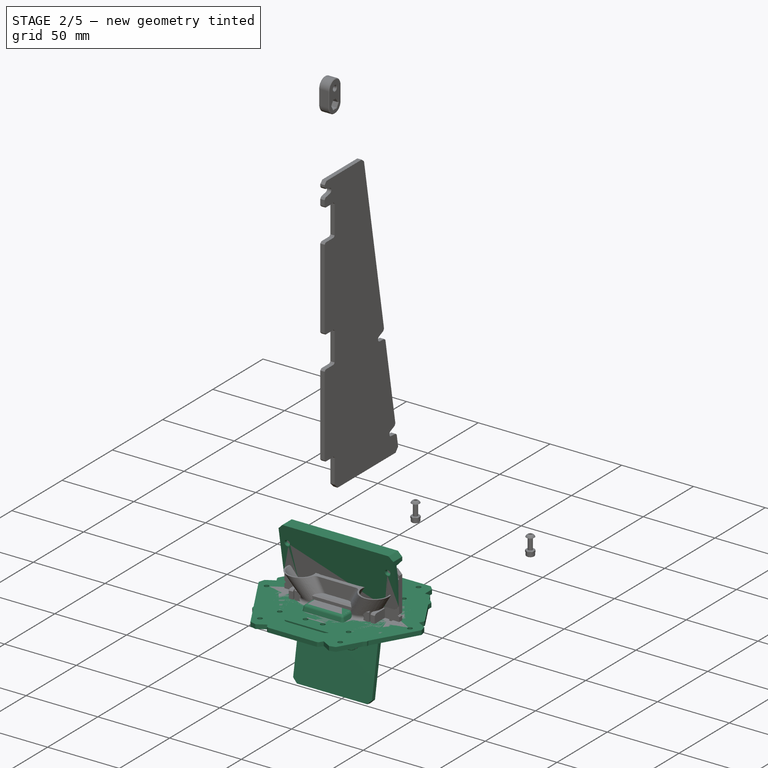
[diagram: stage 2 of 5 — iso view after this stage's code; geometry added in this stage tinted green]
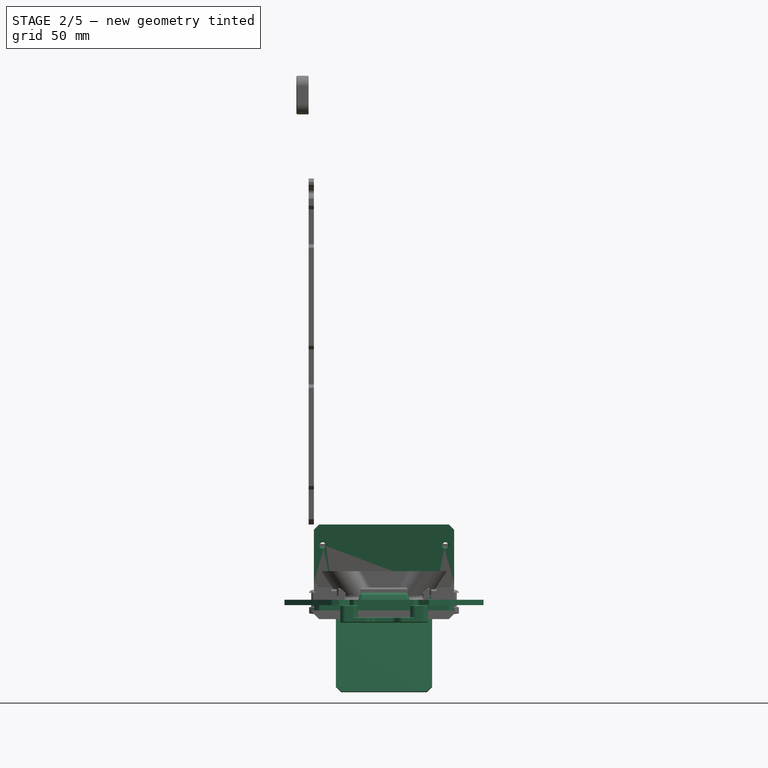
[diagram: stage 2 of 5 — front view after this stage's code; geometry added in this stage tinted green]
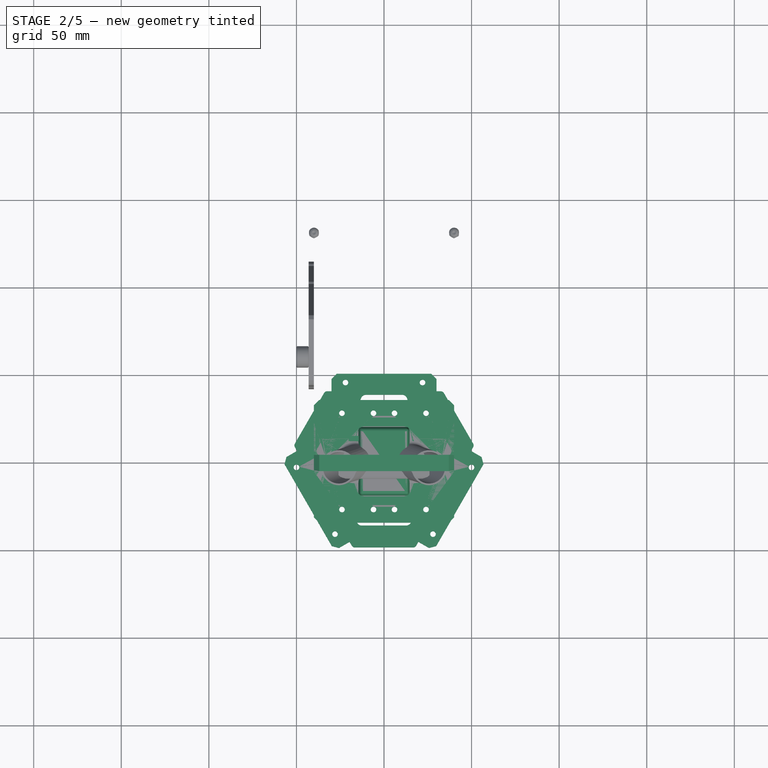
[diagram: stage 2 of 5 — top view after this stage's code; geometry added in this stage tinted green]
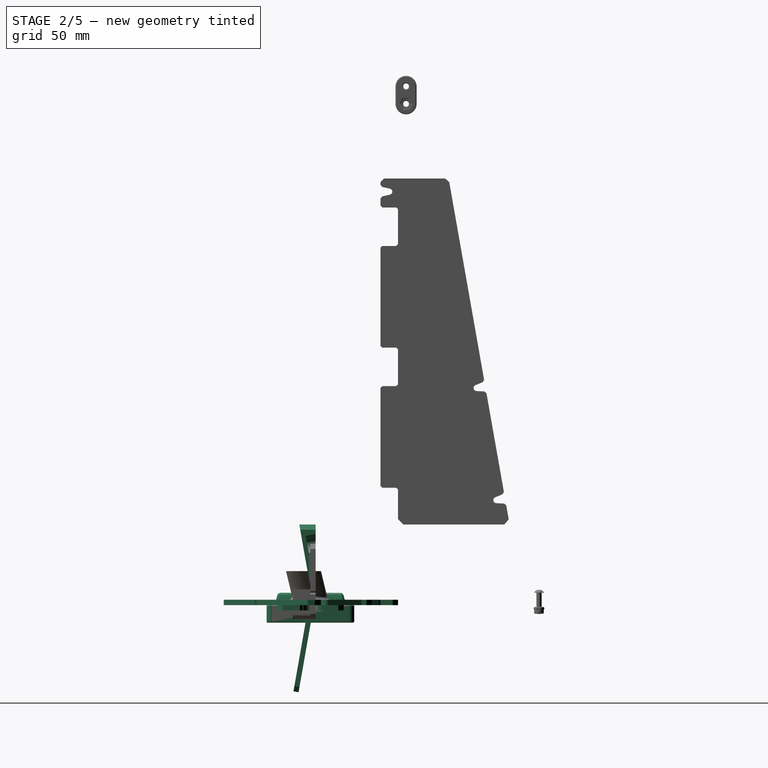
[diagram: stage 2 of 5 — right view after this stage's code; geometry added in this stage tinted green]
FEATURE [PartDesign::Body] Body026  label="LinkerCenter"
  AutoGroupSolids = false
  ClaimAllChildren = false
  ExportMode = 0
  FixShape = 1
  Group = -> [Sketch048,Pad027,Sketch049,Pocket017,Sketch050,Pad028,Sketch051,Pocket018,Sketch052,Pocket019,Chamfer009,Chamfer010,Chamfer011]
  InvalidShape = false
  Origin = -> Origin060
  Placement = pos=(0,50,45) rot=(0,0,1;0rad)
  SingleSolid = true
  Tip = -> Chamfer011
  TreeRank = 159
  ValidateShape = false
  _ExportChildren = -> [Pad027,Pocket017,Pad028,Pocket018,Pocket019,Chamfer009,Chamfer010,Chamfer011]
  _GroupVersion = 1
FEATURE [App::Part] Part019  label="LinkerCenterEquiped"
  ClaimAllChildren = false
  ExportMode = 1
  Group = -> [Body026,Screw021,Screw022,Insert004,Insert005]
  Origin = -> Origin062
  Placement = pos=(0,0,20) rot=(0,0,1;0rad)
  TreeRank = 186
  _ExportChildren = -> [Body026,Screw021,Screw022,Insert004,Insert005]
  _GroupVersion = 1
FEATURE [Sketcher::SketchObject] Sketch053
  ArcFitTolerance = 1e-06
  AttachmentSupport = -> [XY_Plane047]
  ExternalBSplineMaxDegree = 5
  ExternalBSplineTolerance = 0.0001
  FixShape = 1
  FullyConstrained = true
  InternalTolerance = 1e-06
  InvalidShape = false
  MakeInternals = false
  MapMode = 5
  Support = -> [XY_Plane047]
  TreeRank = 197
  ValidateShape = false
  sketch-geometry (11):
    g0: LineSegment StartX=0 StartY=0 StartZ=0 EndX=-47.3205 EndY=27.3205 EndZ=0
    g1: LineSegment StartX=-47.3205 StartY=27.3205 StartZ=0 EndX=-40 EndY=40 EndZ=0
    g2: LineSegment StartX=-40 StartY=40 StartZ=0 EndX=-30 EndY=40 EndZ=0
    g3: LineSegment StartX=-30 StartY=40 StartZ=0 EndX=-30 EndY=50 EndZ=0
    g4: LineSegment StartX=-30 StartY=50 StartZ=0 EndX=30 EndY=50 EndZ=0
    g5: LineSegment StartX=30 StartY=50 StartZ=0 EndX=30 EndY=40 EndZ=0
    g6: LineSegment StartX=30 StartY=40 StartZ=0 EndX=40 EndY=40 EndZ=0
    g7: LineSegment StartX=40 StartY=40 StartZ=0 EndX=47.3205 EndY=27.3205 EndZ=0
    g8: LineSegment StartX=47.3205 StartY=27.3205 StartZ=0 EndX=0 EndY=0 EndZ=0
    g9: Circle CenterX=-22 CenterY=45 CenterZ=0 NormalX=0 NormalY=0 NormalZ=1 AngleXU=0 Radius=1.6
    g10: Circle CenterX=22 CenterY=45 CenterZ=0 NormalX=0 NormalY=0 NormalZ=1 AngleXU=0 Radius=1.6
  constraints (29):
    c: Coincident(g0,g-1)
    c: Coincident(g1,g0)
    c: Coincident(g2,g1)
    c: Horizontal(g2)
    c: Coincident(g2,g3)
    c: Vertical(g3)
    c: Coincident(g3,g4)
    c: Horizontal(g4)
    c: Coincident(g4,g5)
    c: Vertical(g5)
    c: Coincident(g5,g6)
    c: Horizontal(g6)
    c: Coincident(g6,g7)
    c: Coincident(g7,g8)
    c: Coincident(g8,g0)
    c: Angle(g8,g0) = 2.0944
    c: Symmetric(g7,g0,g-2)
    c: Perpendicular(g8,g7)
    c: Perpendicular(g0,g1)
    c: Symmetric(g5,g2,g-2)
    c: DistanceY(g5,g5) = 10
    c: DistanceX(g4,g4) = 60
    c: DistanceY(g5) = 40
    c: DistanceX(g6,g6) = 10
    c: Equal(g10,g9)
    c: Diameter(g9) = 3.2
    c: DistanceY(g9,g3) = 5
    c: Symmetric(g10,g9,g-2)
    c: DistanceX(g9,g10) = 44
FEATURE [PartDesign::Pad] Pad029
  AddSubType = 0
  AlongSketchNormal = false
  AutoTaperInnerAngle = true
  CheckUpToFaceLimits = true
  ClaimChildren = false
  Direction = (0,0,1)
  Fit = 0
  FitJoin = 0
  FixShape = 1
  InnerFit = 0
  InnerFitJoin = 0
  InvalidShape = false
  Length = 3
  Length2 = 10
  Linearize = true
  NewSolid = false
  Profile = -> Sketch053
  ReferenceAxis = -> Sketch053 [N_Axis]
  Refine = true
  Suppress = false
  TaperInnerAngle = 0
  TaperInnerAngleRev = 0
  TreeRank = 198
  Type = 0
  ValidateShape = true
  _ProfileBasedVersion = 1
FEATURE [Sketcher::SketchObject] Sketch054
  ArcFitTolerance = 1e-06
  AttachmentSupport = -> [XY_Plane047]
  ExternalBSplineMaxDegree = 5
  ExternalBSplineTolerance = 0.0001
  ExternalGeometry = -> [Pad029]
  FixShape = 1
  FullyConstrained = true
  InternalTolerance = 1e-06
  InvalidShape = false
  MakeInternals = false
  MapMode = 5
  Support = -> [XY_Plane047]
  TreeRank = 199
  ValidateShape = false
  sketch-geometry (21):
    g0: LineSegment [constr] StartX=43.094 StartY=-1.35898 StartZ=0 EndX=20.3701 EndY=38 EndZ=0
    g1: LineSegment StartX=20.3701 StartY=38 StartZ=0 EndX=-20.3701 EndY=38 EndZ=0
    g2: LineSegment [constr] StartX=-20.3701 StartY=38 StartZ=0 EndX=-43.094 EndY=-1.35898 EndZ=0
    g3: LineSegment [constr] StartX=-43.094 StartY=-1.35898 StartZ=0 EndX=-22.7239 EndY=-36.641 EndZ=0
    g4: LineSegment [constr] StartX=-22.7239 StartY=-36.641 StartZ=0 EndX=22.7239 EndY=-36.641 EndZ=0
    g5: LineSegment [constr] StartX=22.7239 StartY=-36.641 StartZ=0 EndX=43.094 EndY=-1.35898 EndZ=0
    g6: Circle [constr] CenterX=0 CenterY=0 CenterZ=0 NormalX=0 NormalY=0 NormalZ=1 AngleXU=0 Radius=43.1154
    g7: LineSegment StartX=0 StartY=0 StartZ=0 EndX=-31.7321 EndY=18.3205 EndZ=0
    g8: LineSegment StartX=-20.3701 StartY=38 StartZ=0 EndX=-31.7321 EndY=18.3205 EndZ=0
    g9: LineSegment StartX=20.3701 StartY=38 StartZ=0 EndX=31.7321 EndY=18.3205 EndZ=0
    g10: LineSegment StartX=31.7321 StartY=18.3205 StartZ=0 EndX=0 EndY=0 EndZ=0
    g11: LineSegment StartX=42.0836 StartY=47.391 StartZ=0 EndX=32.5574 EndY=41.891 EndZ=0
    g12: LineSegment StartX=32.5574 StartY=41.891 StartZ=0 EndX=52.5574 EndY=7.25 EndZ=0
    g13: LineSegment StartX=52.5574 StartY=7.25 StartZ=0 EndX=62.0836 EndY=12.75 EndZ=0
    g14: LineSegment StartX=62.0836 StartY=12.75 StartZ=0 EndX=42.0836 EndY=47.391 EndZ=0
    g15: Circle [constr] CenterX=47.3205 CenterY=27.3205 CenterZ=0 NormalX=0 NormalY=0 NormalZ=1 AngleXU=0 Radius=20.7425
    g16: LineSegment StartX=-42.0836 StartY=47.391 StartZ=0 EndX=-62.0836 EndY=12.75 EndZ=0
    g17: LineSegment StartX=-62.0836 StartY=12.75 StartZ=0 EndX=-52.5574 EndY=7.25 EndZ=0
    g18: LineSegment StartX=-52.5574 StartY=7.25 StartZ=0 EndX=-32.5574 EndY=41.891 EndZ=0
    g19: LineSegment StartX=-32.5574 StartY=41.891 StartZ=0 EndX=-42.0836 EndY=47.391 EndZ=0
    g20: Circle [constr] CenterX=-47.3205 CenterY=27.3205 CenterZ=0 NormalX=0 NormalY=0 NormalZ=1 AngleXU=0 Radius=20.7425
  constraints (58):
    c: Coincident(g0,g1)
    c: Coincident(g1,g2)
    c: Coincident(g2,g3)
    c: Coincident(g3,g4)
    c: Coincident(g4,g5)
    c: Coincident(g5,g0)
    c: PointOnObject(g0,g6)
    c: PointOnObject(g1,g6)
    c: PointOnObject(g2,g6)
    c: PointOnObject(g3,g6)
    c: PointOnObject(g4,g6)
    c: Coincident(g6,g-1)
    c: Horizontal(g1)
    c: PointOnObject(g0,g6)
    c: Horizontal(g4)
    c: Equal(g4,g0)
    c: Equal(g0,g2)
    c: Equal(g1,g3)
    c: Distance(g-3,g2) = 18
    c: DistanceY(g0,g-4) = 12
    c: Coincident(g7,g-6)
    c: PointOnObject(g7,g-5)
    c: Coincident(g8,g1)
    c: Coincident(g8,g7)
    c: Coincident(g9,g1)
    c: Coincident(g10,g9)
    c: Coincident(g10,g7)
    c: PointOnObject(g9,g0)
    c: PointOnObject(g9,g-6)
    c: PointOnObject(g7,g2)
    c: Coincident(g11,g12)
    c: Coincident(g12,g13)
    c: Coincident(g13,g14)
    c: Coincident(g14,g11)
    c: Equal(g11,g13)
    c: PointOnObject(g11,g15)
    c: PointOnObject(g12,g15)
    c: PointOnObject(g13,g15)
    c: PointOnObject(g14,g15)
    c: Perpendicular(g-6,g12)
    c: Distance(g14) = 40
    c: Coincident(g15,g-6)
    c: Coincident(g16,g17)
    c: Coincident(g17,g18)
    c: Coincident(g18,g19)
    c: Coincident(g19,g16)
    c: PointOnObject(g16,g20)
    c: PointOnObject(g17,g20)
    c: PointOnObject(g18,g20)
    c: PointOnObject(g19,g20)
    c: Coincident(g20,g-5)
    c: Perpendicular(g-5,g18)
    c: Distance(g11) = 11
    c: Perpendicular(g12,g11)
    c: Perpendicular(g18,g19)
    c: Equal(g16,g14)
    c: Equal(g19,g11)
    c: Equal(g17,g19)
FEATURE [PartDesign::Pocket] Pocket020
  AddSubType = 1
  AlongSketchNormal = false
  AutoTaperInnerAngle = true
  BaseFeature = -> Pad029
  CheckUpToFaceLimits = true
  ClaimChildren = false
  Direction = (0,0,-1)
  Fit = 0
  FitJoin = 0
  FixShape = 1
  InnerFit = 0
  InnerFitJoin = 0
  InvalidShape = false
  Length = 5
  Length2 = 10
  Linearize = true
  NewSolid = false
  Profile = -> Sketch054
  ReferenceAxis = -> Sketch054 [N_Axis]
  Refine = true
  Reversed = true
  Suppress = false
  TaperInnerAngle = 0
  TaperInnerAngleRev = 0
  TreeRank = 200
  Type = 1
  ValidateShape = true
  _ProfileBasedVersion = 1
  _Version = 1
FEATURE [Sketcher::SketchObject] Sketch055
  ArcFitTolerance = 1e-06
  AttachmentSupport = -> [XY_Plane047]
  ExternalBSplineMaxDegree = 5
  ExternalBSplineTolerance = 0.0001
  ExternalGeometry = -> [Pocket020]
  FixShape = 1
  FullyConstrained = true
  InternalTolerance = 1e-06
  InvalidShape = false
  MakeInternals = false
  MapMode = 5
  Support = -> [XY_Plane047]
  TreeRank = 201
  ValidateShape = false
  sketch-geometry (6):
    g0: ArcOfCircle CenterX=-20.3701 CenterY=38 CenterZ=0 NormalX=0 NormalY=0 NormalZ=1 AngleXU=0 Radius=7.5 StartAngle=4.18879 EndAngle=6.28319
    g1: ArcOfCircle CenterX=20.3701 CenterY=38 CenterZ=0 NormalX=0 NormalY=0 NormalZ=1 AngleXU=0 Radius=7.5 StartAngle=3.14159 EndAngle=5.23599
    g2: LineSegment StartX=-12.8701 StartY=38 StartZ=0 EndX=-20.3701 EndY=38 EndZ=0
    g3: LineSegment StartX=-24.1201 StartY=31.5048 StartZ=0 EndX=-20.3701 EndY=38 EndZ=0
    g4: LineSegment StartX=12.8701 StartY=38 StartZ=0 EndX=20.3701 EndY=38 EndZ=0
    g5: LineSegment StartX=20.3701 StartY=38 StartZ=0 EndX=24.1201 EndY=31.5048 EndZ=0
  constraints (16):
    c: Coincident(g2,g0)
    c: Coincident(g2,g0)
    c: Coincident(g3,g0)
    c: Coincident(g3,g0)
    c: Coincident(g4,g1)
    c: Coincident(g4,g1)
    c: Coincident(g5,g1)
    c: Coincident(g5,g1)
    c: Equal(g1,g0)
    c: Radius(g1) = 7.5
    c: Coincident(g-5,g1)
    c: PointOnObject(g1,g-3)
    c: PointOnObject(g1,g-5)
    c: Coincident(g0,g-4)
    c: PointOnObject(g0,g-3)
    c: PointOnObject(g0,g-4)
FEATURE [PartDesign::Pad] Pad030
  AddSubType = 0
  AlongSketchNormal = false
  AutoTaperInnerAngle = true
  BaseFeature = -> Pocket020
  CheckUpToFaceLimits = true
  ClaimChildren = false
  Direction = (0,0,1)
  Fit = 0
  FitJoin = 0
  FixShape = 1
  InnerFit = 0
  InnerFitJoin = 0
  InvalidShape = false
  Length = 3
  Length2 = 10
  Linearize = true
  NewSolid = false
  Profile = -> Sketch055
  ReferenceAxis = -> Sketch055 [N_Axis]
  Refine = true
  Suppress = false
  TaperInnerAngle = 0
  TaperInnerAngleRev = 0
  TreeRank = 202
  Type = 0
  ValidateShape = true
  _ProfileBasedVersion = 1
FEATURE [PartDesign::Fillet] Fillet015
  AddSubType = 0
  Base = -> Pad030 [Edge34,Edge40,Edge10,Edge35]
  BaseFeature = -> Pad030
  FixShape = 1
  InvalidShape = false
  NewSolid = false
  Radius = 3
  Refine = true
  SupportTransform = false
  Suppress = false
  TreeRank = 203
  UseAllEdges = false
  ValidateShape = true
FEATURE [PartDesign::Chamfer] Chamfer012
  AddSubType = 0
  Angle = 45
  Base = -> Fillet015 [Edge54,Edge56]
  BaseFeature = -> Fillet015
  ChamferType = 0
  FixShape = 1
  FlipDirection = false
  InvalidShape = false
  NewSolid = false
  Refine = true
  Size = 3
  Size2 = 1
  SupportTransform = false
  Suppress = false
  TreeRank = 204
  UseAllEdges = false
  ValidateShape = true
FEATURE [PartDesign::Fillet] Fillet016
  AddSubType = 0
  Base = -> Chamfer012 [Edge28,Edge43]
  BaseFeature = -> Chamfer012
  FixShape = 1
  InvalidShape = false
  NewSolid = false
  Radius = 2
  Refine = true
  SupportTransform = false
  Suppress = false
  TreeRank = 205
  UseAllEdges = false
  ValidateShape = true
FEATURE [PartDesign::PolarPattern] PolarPattern015
  AddSubType = 0
  Angle = 360
  Axis = -> Sketch053 [N_Axis]
  BaseFeature = -> Fillet016
  CopyShape = false
  FixShape = 1
  HideBaseFeature = false
  InvalidShape = false
  NewSolid = false
  Occurrences = 3
  OffsetBaseFeature = true
  OriginalSubs = -> [Pad029,Pocket020,Pad030,Fillet015,Chamfer012,Fillet016]
  Originals = -> [Pad029,Pocket020,Pad030,Fillet015,Chamfer012,Fillet016]
  ParallelTransform = true
  Refine = true
  SubTransform = true
  Suppress = false
  TreeRank = 206
  ValidateShape = true
  _Version = 3
FEATURE [PartDesign::Body] Body050  label="ClipXT60"
  AutoGroupSolids = false
  ClaimAllChildren = false
  ExportMode = 0
  Group = -> [Sketch132,Import009,Pad067,Sketch133,Pocket065,Chamfer050,Fillet047,Chamfer051,Chamfer052]
  InvalidShape = false
  Origin = -> Origin100
  Placement = pos=(0,-73,100) rot=(0,0,1;0rad)
  Tip = -> Chamfer052
  TreeRank = 1003
  ValidateShape = false
  _ExportChildren = -> [Import009,Pad067,Pocket065,Chamfer050,Fillet047,Chamfer051,Chamfer052]
  _GroupVersion = 1
FEATURE [Sketcher::SketchObject] Sketch134
  ArcFitTolerance = 1e-06
  AttachmentSupport = -> [XZ_Plane084]
  ExternalBSplineMaxDegree = 5
  ExternalBSplineTolerance = 0.0001
  FullyConstrained = true
  InternalTolerance = 1e-06
  InvalidShape = false
  MakeInternals = false
  MapMode = 5
  Placement = pos=(0,0,0) rot=(1,0,0;1.5708rad)
  Support = -> [XZ_Plane084]
  TreeRank = 1023
  ValidateShape = false
  sketch-geometry (7):
    g0: LineSegment StartX=-29.5 StartY=-5 StartZ=0 EndX=-29.5 EndY=5 EndZ=0
    g1: LineSegment StartX=-29.5 StartY=5 StartZ=0 EndX=29.5 EndY=5 EndZ=0
    g2: LineSegment StartX=29.5 StartY=5 StartZ=0 EndX=29.5 EndY=-5 EndZ=0
    g3: LineSegment StartX=29.5 StartY=-5 StartZ=0 EndX=-29.5 EndY=-5 EndZ=0
    g4: GeomPoint [constr] X=0 Y=0 Z=0
    g5: Circle CenterX=-25 CenterY=0 CenterZ=0 NormalX=0 NormalY=0 NormalZ=1 AngleXU=0 Radius=1.6
    g6: Circle CenterX=25 CenterY=0 CenterZ=0 NormalX=0 NormalY=0 NormalZ=1 AngleXU=0 Radius=1.6
  constraints (17):
    c: Coincident(g0,g1)
    c: Coincident(g1,g2)
    c: Coincident(g2,g3)
    c: Coincident(g3,g0)
    c: Horizontal(g1)
    c: Horizontal(g3)
    c: Vertical(g0)
    c: Vertical(g2)
    c: Symmetric(g1,g0,g4)
    c: Coincident(g4,g-1)
    c: DistanceX(g1,g1) = 59
    c: PointOnObject(g5,g-1)
    c: Equal(g6,g5)
    c: Diameter(g6) = 3.2
    c: Symmetric(g6,g5,g4)
    c: DistanceX(g5,g6) = 50
    c: DistanceY(g2,g2) = 10
FEATURE [PartDesign::Pad] Pad068
  AddSubType = 0
  AlongSketchNormal = false
  AutoTaperInnerAngle = true
  CheckUpToFaceLimits = true
  ClaimChildren = false
  Direction = (0,-1,2e-16)
  Fit = 0
  FitJoin = 0
  InnerFit = 0
  InnerFitJoin = 0
  InvalidShape = false
  Length = 6
  Length2 = 10
  Linearize = true
  NewSolid = false
  Profile = -> Sketch134
  ReferenceAxis = -> Sketch134 [N_Axis]
  Refine = true
  Suppress = false
  TaperInnerAngle = 0
  TaperInnerAngleRev = 0
  TreeRank = 1024
  Type = 0
  ValidateShape = true
  _ProfileBasedVersion = 1
FEATURE [Sketcher::SketchObject] Sketch143
  ArcFitTolerance = 1e-06
  AttachmentSupport = -> [XZ_Plane087]
  ExternalBSplineMaxDegree = 5
  ExternalBSplineTolerance = 0.0001
  FullyConstrained = true
  InternalTolerance = 1e-06
  InvalidShape = false
  MakeInternals = false
  MapMode = 5
  Placement = pos=(0,0,0) rot=(1,0,0;1.5708rad)
  Support = -> [XZ_Plane087]
  TreeRank = 1085
  ValidateShape = false
  sketch-geometry (4):
    g0: LineSegment StartX=-30 StartY=-5 StartZ=0 EndX=-44 EndY=-5 EndZ=0
    g1: LineSegment StartX=-44 StartY=-5 StartZ=0 EndX=-44 EndY=10 EndZ=0
    g2: LineSegment StartX=-44 StartY=10 StartZ=0 EndX=-30 EndY=10 EndZ=0
    g3: LineSegment StartX=-30 StartY=10 StartZ=0 EndX=-30 EndY=-5 EndZ=0
  constraints (12):
    c: Coincident(g0,g1)
    c: Coincident(g1,g2)
    c: Coincident(g2,g3)
    c: Coincident(g3,g0)
    c: Horizontal(g0)
    c: Horizontal(g2)
    c: Vertical(g1)
    c: Vertical(g3)
    c: DistanceX(g0) = -30
    c: DistanceX(g2,g2) = 14
    c: DistanceY(g-1,g2) = 10
    c: DistanceY(g0,g-1) = 5
FEATURE [PartDesign::Pocket] Pocket072
  AddSubType = 1
  AlongSketchNormal = false
  AutoTaperInnerAngle = true
  BaseFeature = -> Chamfer062
  CheckUpToFaceLimits = true
  ClaimChildren = false
  Direction = (0,1,-2e-16)
  Fit = 0
  FitJoin = 0
  InnerFit = 0
  InnerFitJoin = 0
  InvalidShape = false
  Length = 5
  Length2 = 10
  Linearize = true
  NewSolid = false
  Profile = -> Sketch143
  ReferenceAxis = -> Sketch143 [N_Axis]
  Refine = true
  Suppress = false
  TaperInnerAngle = 0
  TaperInnerAngleRev = 0
  TreeRank = 1086
  Type = 0
  ValidateShape = true
  _ProfileBasedVersion = 1
  _Version = 1
FEATURE [PartDesign::Mirrored] Mirrored012
  AddSubType = 0
  BaseFeature = -> Pocket072
  CopyShape = false
  HideBaseFeature = false
  InvalidShape = false
  MirrorPlane = -> Sketch143 [V_Axis]
  NewSolid = false
  OffsetBaseFeature = true
  OriginalSubs = -> [Pocket072]
  Originals = -> [Pocket072]
  ParallelTransform = true
  Refine = true
  SubTransform = true
  Suppress = false
  TreeRank = 1087
  ValidateShape = true
  _Version = 3
FEATURE [PartDesign::Chamfer] Chamfer063
  AddSubType = 0
  Angle = 45
  Base = -> Mirrored012 [Edge63,Edge60,Edge21,Edge58]
  BaseFeature = -> Mirrored012
  ChamferType = 0
  FlipDirection = false
  InvalidShape = false
  NewSolid = false
  Refine = true
  Size = 3
  Size2 = 1
  SupportTransform = false
  Suppress = false
  TreeRank = 1088
  UseAllEdges = false
  ValidateShape = true
FEATURE [PartDesign::Fillet] Fillet049
  AddSubType = 0
  Base = -> Chamfer063 [Edge68,Edge56]
  BaseFeature = -> Chamfer063
  InvalidShape = false
  NewSolid = false
  Radius = 2
  Refine = true
  SupportTransform = false
  Suppress = false
  TreeRank = 1089
  UseAllEdges = false
  ValidateShape = true
FEATURE [PartDesign::Body] Body054  label="PareBuffle"
  AutoGroupSolids = false
  ClaimAllChildren = false
  ExportMode = 0
  Group = -> [Sketch140,Pad070,Sketch141,Pocket070,Sketch142,Pocket071,Mirrored011,Chamfer060,Chamfer061,Chamfer062,Sketch143,Pocket072,Mirrored012,Chamfer063,Fillet049]
  InvalidShape = false
  Origin = -> Origin104
  Placement = pos=(0,120,0) rot=(0,0,1;0rad)
  Tip = -> Fillet049
  TreeRank = 1073
  ValidateShape = false
  _ExportChildren = -> [Pad070,Pocket070,Pocket071,Mirrored011,Chamfer060,Chamfer061,Chamfer062,Pocket072,Mirrored012,Chamfer063,Fillet049]
  _GroupVersion = 1
FEATURE [TechDraw::DrawProjGroupItem] ProjItem012  label="Front012"
  CoarseView = false
  Direction = (0,0,1)
  Focus = 100
  HardHidden = false
  IsoCount = 0
  IsoHidden = false
  IsoVisible = false
  LockPosition = true
  Perspective = false
  Rotation = 0
  RotationVector = (1,0,0)
  ScaleType = 2
  ScrubCount = 0
  SeamHidden = false
  SeamVisible = true
  SmoothHidden = false
  SmoothVisible = true
  Source = -> [PolarPattern015]
  TreeRank = 1091
  Type = 0
  X = 0
  XDirection = (1,0,0)
  Y = 0
FEATURE [TechDraw::DrawProjGroup] ProjGroup012
  Anchor = -> ProjItem012
  AutoDistribute = true
  LockPosition = false
  ProjectionType = 0
  Rotation = 0
  ScaleType = 0
  Source = -> [PolarPattern015]
  TreeRank = 1092
  Views = -> [ProjItem012]
  X = 59.6373
  Y = 157.51
  spacingX = 15
  spacingY = 15
FEATURE [TechDraw::DrawPage] Page002  label="Laser3mm-LinkCenter"
  KeepUpdated = true
  NextBalloonIndex = 1
  ProjectionType = 0
  Template = -> Template002
  TreeRank = 851
  Views = -> [ProjGroup012]
FEATURE [Sketcher::SketchObject] Sketch219
  ArcFitTolerance = 1e-06
  AttachmentSupport = -> [XY_Plane118]
  ExternalBSplineMaxDegree = 5
  ExternalBSplineTolerance = 0.0001
  FixShape = 1
  FullyConstrained = true
  InternalTolerance = 1e-06
  InvalidShape = false
  MakeInternals = false
  MapMode = 5
  Support = -> [XY_Plane118]
  TreeRank = 694
  ValidateShape = false
  sketch-geometry (5):
    g0: LineSegment StartX=-25 StartY=25 StartZ=0 EndX=-25 EndY=-25 EndZ=0
    g1: LineSegment StartX=-25 StartY=-25 StartZ=0 EndX=25 EndY=-25 EndZ=0
    g2: LineSegment StartX=25 StartY=-25 StartZ=0 EndX=25 EndY=25 EndZ=0
    g3: LineSegment StartX=25 StartY=25 StartZ=0 EndX=-25 EndY=25 EndZ=0
    g4: GeomPoint [constr] X=0 Y=0 Z=0
  constraints (12):
    c: Coincident(g0,g1)
    c: Coincident(g1,g2)
    c: Coincident(g2,g3)
    c: Coincident(g3,g0)
    c: Horizontal(g1)
    c: Horizontal(g3)
    c: Vertical(g0)
    c: Vertical(g2)
    c: Symmetric(g1,g0,g4)
    c: Equal(g3,g2)
    c: DistanceX(g3,g3) = 50
    c: Coincident(g4,g-1)
FEATURE [PartDesign::Pad] Pad112
  AddSubType = 0
  AlongSketchNormal = false
  AutoTaperInnerAngle = true
  CheckUpToFaceLimits = true
  ClaimChildren = false
  Direction = (0,0,1)
  Fit = 0
  FitJoin = 0
  FixShape = 1
  InnerFit = 0
  InnerFitJoin = 0
  InvalidShape = false
  Length = 10
  Length2 = 10
  Linearize = true
  NewSolid = false
  Profile = -> Sketch219
  ReferenceAxis = -> Sketch219 [N_Axis]
  Refine = true
  Reversed = true
  Suppress = false
  TaperInnerAngle = 0
  TaperInnerAngleRev = 0
  TreeRank = 695
  Type = 0
  ValidateShape = true
  _ProfileBasedVersion = 1
FEATURE [Sketcher::SketchObject] Sketch220
  ArcFitTolerance = 1e-06
  AttachmentSupport = -> [XZ_Plane118]
  ExternalBSplineMaxDegree = 5
  ExternalBSplineTolerance = 0.0001
  ExternalGeometry = -> [Pad112]
  FixShape = 1
  FullyConstrained = true
  InternalTolerance = 1e-06
  InvalidShape = false
  MakeInternals = false
  MapMode = 5
  Placement = pos=(0,0,0) rot=(1,0,0;1.5708rad)
  Support = -> [XZ_Plane118]
  TreeRank = 696
  ValidateShape = false
  sketch-geometry (5):
    g0: LineSegment StartX=-15 StartY=-7 StartZ=0 EndX=-15 EndY=0 EndZ=0
    g1: LineSegment StartX=-15 StartY=0 StartZ=0 EndX=15 EndY=0 EndZ=0
    g2: LineSegment StartX=15 StartY=0 StartZ=0 EndX=15 EndY=-7 EndZ=0
    g3: LineSegment StartX=15 StartY=-7 StartZ=0 EndX=-15 EndY=-7 EndZ=0
    g4: GeomPoint [constr] X=0 Y=-3.5 Z=0
  constraints (13):
    c: Coincident(g0,g1)
    c: Coincident(g1,g2)
    c: Coincident(g2,g3)
    c: Coincident(g3,g0)
    c: Horizontal(g1)
    c: Horizontal(g3)
    c: Vertical(g0)
    c: Vertical(g2)
    c: Symmetric(g1,g0,g4)
    c: PointOnObject(g4,g-2)
    c: PointOnObject(g1,g-1)
    c: DistanceY(g-3,g2) = 3
    c: DistanceX(g1,g1) = 30
FEATURE [PartDesign::Pocket] Pocket073
  AddSubType = 1
  AlongSketchNormal = false
  AutoTaperInnerAngle = true
  BaseFeature = -> Pad112
  CheckUpToFaceLimits = true
  ClaimChildren = false
  Direction = (0,1,2e-16)
  Fit = 0
  FitJoin = 0
  FixShape = 1
  InnerFit = 0
  InnerFitJoin = 0
  InvalidShape = false
  Length = 5
  Length2 = 10
  Linearize = true
  Midplane = true
  NewSolid = false
  Profile = -> Sketch220
  ReferenceAxis = -> Sketch220 [N_Axis]
  Refine = true
  Suppress = false
  TaperInnerAngle = 0
  TaperInnerAngleRev = 0
  TreeRank = 697
  Type = 1
  ValidateShape = true
  _ProfileBasedVersion = 1
  _Version = 1
FEATURE [Sketcher::SketchObject] Sketch221
  ArcFitTolerance = 1e-06
  AttachmentSupport = -> [XY_Plane118]
  ExternalBSplineMaxDegree = 5
  ExternalBSplineTolerance = 0.0001
  FixShape = 1
  FullyConstrained = true
  InternalTolerance = 1e-06
  InvalidShape = false
  MakeInternals = false
  MapMode = 5
  Support = -> [XY_Plane118]
  TreeRank = 698
  ValidateShape = false
  sketch-geometry (2):
    g0: Circle CenterX=-20 CenterY=-9e-16 CenterZ=0 NormalX=0 NormalY=0 NormalZ=1 AngleXU=0 Radius=2.1
    g1: Circle CenterX=20 CenterY=-9e-16 CenterZ=0 NormalX=0 NormalY=0 NormalZ=1 AngleXU=0 Radius=2.1
  constraints (5):
    c: Equal(g1,g0)
    c: Diameter(g1) = 4.2
    c: Symmetric(g0,g1,g-2)
    c: DistanceX(g0,g1) = 40
    c: PointOnObject(g1,g-1)
FEATURE [PartDesign::Pocket] Pocket074
  AddSubType = 1
  AlongSketchNormal = false
  AutoTaperInnerAngle = true
  BaseFeature = -> Pocket073
  CheckUpToFaceLimits = true
  ClaimChildren = false
  Direction = (0,0,-1)
  Fit = 0
  FitJoin = 0
  FixShape = 1
  InnerFit = 0
  InnerFitJoin = 0
  InvalidShape = false
  Length = 5
  Length2 = 10
  Linearize = true
  NewSolid = false
  Profile = -> Sketch221
  ReferenceAxis = -> Sketch221 [N_Axis]
  Refine = true
  Suppress = false
  TaperInnerAngle = 0
  TaperInnerAngleRev = 0
  TreeRank = 699
  Type = 1
  ValidateShape = true
  _ProfileBasedVersion = 1
  _Version = 1
FEATURE [Sketcher::SketchObject] Sketch222
  ArcFitTolerance = 1e-06
  AttachmentSupport = -> [Pocket074]
  ExternalBSplineMaxDegree = 5
  ExternalBSplineTolerance = 0.0001
  ExternalGeometry = -> [Pocket074]
  FixShape = 1
  FullyConstrained = true
  InternalTolerance = 1e-06
  InvalidShape = false
  MakeInternals = false
  MapMode = 5
  Placement = pos=(0,1.6e-15,-7) rot=(0,0,1;0rad)
  Support = -> [Pocket074]
  TreeRank = 700
  ValidateShape = false
  sketch-geometry (5):
    g0: ArcOfCircle CenterX=0 CenterY=10 CenterZ=0 NormalX=0 NormalY=0 NormalZ=1 AngleXU=0 Radius=5 StartAngle=1e-16 EndAngle=3.14159
    g1: ArcOfCircle CenterX=0 CenterY=-3 CenterZ=0 NormalX=0 NormalY=0 NormalZ=1 AngleXU=0 Radius=5 StartAngle=3.14159 EndAngle=6.28319
    g2: LineSegment StartX=-5 StartY=10 StartZ=0 EndX=-5 EndY=-3 EndZ=0
    g3: LineSegment StartX=5 StartY=-3 StartZ=0 EndX=5 EndY=10 EndZ=0
    g4: LineSegment [constr] StartX=-20 StartY=-9e-16 StartZ=0 EndX=20 EndY=-9e-16 EndZ=0
  constraints (12):
    c: Tangent(g0,g2) = -1.5708
    c: Tangent(g2,g1) = -1.5708
    c: Tangent(g1,g3) = -1.5708
    c: Tangent(g3,g0) = -1.5708
    c: Equal(g0,g1)
    c: PointOnObject(g0,g-2)
    c: DistanceY(g1,g0) = 13
    c: Radius(g0) = 5
    c: Coincident(g4,g-3)
    c: Coincident(g4,g-4)
    c: DistanceY(g1,g-4) = 3
    c: PointOnObject(g1,g-2)
FEATURE [PartDesign::Pad] Pad113
  AddSubType = 0
  AlongSketchNormal = false
  AutoTaperInnerAngle = true
  BaseFeature = -> Pocket074
  CheckUpToFaceLimits = true
  ClaimChildren = false
  Direction = (0,-2e-16,1)
  Fit = 0
  FitJoin = 0
  FixShape = 1
  InnerFit = 0
  InnerFitJoin = 0
  InvalidShape = false
  Length = 3
  Length2 = 10
  Linearize = true
  NewSolid = false
  Profile = -> Sketch222
  ReferenceAxis = -> Sketch222 [N_Axis]
  Refine = true
  Suppress = false
  TaperInnerAngle = 0
  TaperInnerAngleRev = 0
  TreeRank = 701
  Type = 0
  ValidateShape = true
  _ProfileBasedVersion = 1
FEATURE [Sketcher::SketchObject] Sketch223
  ArcFitTolerance = 1e-06
  AttachmentSupport = -> [Pad113]
  ExternalBSplineMaxDegree = 5
  ExternalBSplineTolerance = 0.0001
  ExternalGeometry = -> [Pad113]
  FixShape = 1
  FullyConstrained = true
  InternalTolerance = 1e-06
  InvalidShape = false
  MakeInternals = false
  MapMode = 5
  Placement = pos=(0,9e-16,-4) rot=(0,0,1;0rad)
  Support = -> [Pad113]
  TreeRank = 702
  ValidateShape = false
  sketch-geometry (2):
    g0: Circle CenterX=0 CenterY=10 CenterZ=0 NormalX=0 NormalY=0 NormalZ=1 AngleXU=0 Radius=2.1
    g1: Circle CenterX=0 CenterY=-3 CenterZ=0 NormalX=0 NormalY=0 NormalZ=1 AngleXU=0 Radius=2.1
  constraints (4):
    c: Coincident(g0,g-3)
    c: Coincident(g1,g-4)
    c: Equal(g0,g1)
    c: Diameter(g0) = 4.2
FEATURE [PartDesign::Pocket] Pocket051
  AddSubType = 1
  AlongSketchNormal = false
  AutoTaperInnerAngle = true
  BaseFeature = -> Pad113
  CheckUpToFaceLimits = true
  ClaimChildren = false
  Direction = (0,2e-16,-1)
  Fit = 0
  FitJoin = 0
  FixShape = 1
  InnerFit = 0
  InnerFitJoin = 0
  InvalidShape = false
  Length = 7
  Length2 = 10
  Linearize = true
  NewSolid = false
  Profile = -> Sketch223
  ReferenceAxis = -> Sketch223 [N_Axis]
  Refine = true
  Suppress = false
  TaperInnerAngle = 0
  TaperInnerAngleRev = 0
  TreeRank = 703
  Type = 0
  ValidateShape = true
  _ProfileBasedVersion = 1
  _Version = 1
FEATURE [Sketcher::SketchObject] Sketch224
  ArcFitTolerance = 1e-06
  AttachmentSupport = -> [Pocket051]
  ExternalBSplineMaxDegree = 5
  ExternalBSplineTolerance = 0.0001
  ExternalGeometry = -> [Pocket051]
  FixShape = 1
  FullyConstrained = true
  InternalTolerance = 1e-06
  InvalidShape = false
  MakeInternals = false
  MapMode = 5
  Placement = pos=(0,1.6e-15,-7) rot=(0,0,1;0rad)
  Support = -> [Pocket051]
  TreeRank = 704
  ValidateShape = false
  sketch-geometry (5):
    g0: LineSegment StartX=-7.5 StartY=-13 StartZ=0 EndX=-7.5 EndY=-25 EndZ=0
    g1: LineSegment StartX=-7.5 StartY=-25 StartZ=0 EndX=7.5 EndY=-25 EndZ=0
    g2: LineSegment StartX=7.5 StartY=-25 StartZ=0 EndX=7.5 EndY=-13 EndZ=0
    g3: LineSegment StartX=7.5 StartY=-13 StartZ=0 EndX=-7.5 EndY=-13 EndZ=0
    g4: GeomPoint [constr] X=0 Y=-19 Z=0
  constraints (13):
    c: Coincident(g0,g1)
    c: Coincident(g1,g2)
    c: Coincident(g2,g3)
    c: Coincident(g3,g0)
    c: Horizontal(g1)
    c: Horizontal(g3)
    c: Vertical(g0)
    c: Vertical(g2)
    c: Symmetric(g1,g0,g4)
    c: PointOnObject(g4,g-2)
    c: PointOnObject(g1,g-3)
    c: DistanceX(g3,g3) = 15
    c: DistanceY(g2,g2) = 12
FEATURE [PartDesign::Pocket] Pocket052
  AddSubType = 1
  AlongSketchNormal = false
  AutoTaperInnerAngle = true
  BaseFeature = -> Pocket051
  CheckUpToFaceLimits = true
  ClaimChildren = false
  Direction = (0,2e-16,-1)
  Fit = 0
  FitJoin = 0
  FixShape = 1
  InnerFit = 0
  InnerFitJoin = 0
  InvalidShape = false
  Length = 5
  Length2 = 10
  Linearize = true
  NewSolid = false
  Profile = -> Sketch224
  ReferenceAxis = -> Sketch224 [N_Axis]
  Refine = true
  Suppress = false
  TaperInnerAngle = 0
  TaperInnerAngleRev = 0
  TreeRank = 705
  Type = 1
  ValidateShape = true
  _ProfileBasedVersion = 1
  _Version = 1
FEATURE [PartDesign::Fillet] Fillet070
  AddSubType = 0
  Base = -> Pocket052 [Edge15,Edge46,Edge44,Edge47]
  BaseFeature = -> Pocket052
  FixShape = 1
  InvalidShape = false
  NewSolid = false
  Radius = 3
  Refine = true
  SupportTransform = false
  Suppress = false
  TreeRank = 706
  UseAllEdges = false
  ValidateShape = true
FEATURE [PartDesign::Chamfer] Chamfer076
  AddSubType = 0
  Angle = 45
  Base = -> Fillet070 [Edge42,Edge36,Edge67,Edge37,Edge71,Edge39,Edge69,Edge38]
  BaseFeature = -> Fillet070
  ChamferType = 0
  FixShape = 1
  FlipDirection = false
  InvalidShape = false
  NewSolid = false
  Refine = true
  Size = 1
  Size2 = 1
  SupportTransform = false
  Suppress = false
  TreeRank = 707
  UseAllEdges = false
  ValidateShape = true
FEATURE [PartDesign::Fillet] Fillet071
  AddSubType = 0
  Base = -> Chamfer076 [Edge38,Edge35,Edge26,Edge23,Edge44,Edge33,Edge31,Edge21]
  BaseFeature = -> Chamfer076
  FixShape = 1
  InvalidShape = false
  NewSolid = false
  Radius = 3
  Refine = true
  SupportTransform = false
  Suppress = false
  TreeRank = 708
  UseAllEdges = false
  ValidateShape = true
FEATURE [PartDesign::Chamfer] Chamfer077
  AddSubType = 0
  Angle = 45
  Base = -> Fillet071 [Edge3]
  BaseFeature = -> Fillet071
  ChamferType = 0
  FixShape = 1
  FlipDirection = false
  InvalidShape = false
  NewSolid = false
  Refine = true
  Size = 0.4
  Size2 = 1
  SupportTransform = false
  Suppress = false
  TreeRank = 711
  UseAllEdges = false
  ValidateShape = true
FEATURE [PartDesign::Chamfer] Chamfer078
  AddSubType = 0
  Angle = 45
  Base = -> Chamfer077 [Edge100,Edge65,Edge148,Edge122,Edge102,Edge89]
  BaseFeature = -> Chamfer077
  ChamferType = 0
  FixShape = 1
  FlipDirection = false
  InvalidShape = false
  NewSolid = false
  Refine = true
  Size = 0.4
  Size2 = 1
  SupportTransform = false
  Suppress = false
  TreeRank = 712
  UseAllEdges = false
  ValidateShape = true
FEATURE [PartDesign::Body] Body097  label="SupportXBee"
  AutoGroupSolids = false
  ClaimAllChildren = false
  ExportMode = 0
  FixShape = 1
  Group = -> [Sketch219,Pad112,Sketch220,Pocket073,Sketch221,Pocket074,Sketch222,Pad113,Sketch223,Pocket051,Sketch224,Pocket052,Fillet070,Chamfer076,Fillet071,Chamfer077,Chamfer078]
  InvalidShape = false
  Origin = -> Origin191
  SingleSolid = true
  Tip = -> Chamfer078
  TreeRank = 1095
  ValidateShape = false
  _ExportChildren = -> [Pad112,Pocket073,Pocket074,Pad113,Pocket051,Pocket052,Fillet070,Chamfer076,Fillet071,Chamfer077,Chamfer078]
  _GroupVersion = 1
FEATURE [Sketcher::SketchObject] Sketch225
  ArcFitTolerance = 1e-06
  AttachmentSupport = -> [XY_Plane121]
  ExternalBSplineMaxDegree = 5
  ExternalBSplineTolerance = 0.0001
  FullyConstrained = true
  InternalTolerance = 1e-06
  InvalidShape = false
  MakeInternals = true
  MapMode = 5
  Support = -> [XY_Plane121]
  TreeRank = 1135
  ValidateShape = false
  sketch-geometry (12):
    g0: LineSegment StartX=40 StartY=25 StartZ=0 EndX=40 EndY=-25 EndZ=0
    g1: LineSegment StartX=40 StartY=-25 StartZ=0 EndX=-40 EndY=-25 EndZ=0
    g2: LineSegment StartX=-40 StartY=-25 StartZ=0 EndX=-40 EndY=25 EndZ=0
    g3: LineSegment StartX=-40 StartY=25 StartZ=0 EndX=40 EndY=25 EndZ=0
    g4: GeomPoint [constr] X=0 Y=0 Z=0
    g5: Circle CenterX=20 CenterY=0 CenterZ=0 NormalX=0 NormalY=0 NormalZ=1 AngleXU=0 Radius=1.6
    g6: Circle CenterX=-20 CenterY=0 CenterZ=0 NormalX=0 NormalY=0 NormalZ=1 AngleXU=0 Radius=1.6
    g7: LineSegment StartX=15 StartY=20 StartZ=0 EndX=15 EndY=-20 EndZ=0
    g8: LineSegment StartX=15 StartY=-20 StartZ=0 EndX=-15 EndY=-20 EndZ=0
    g9: LineSegment StartX=-15 StartY=-20 StartZ=0 EndX=-15 EndY=20 EndZ=0
    g10: LineSegment StartX=-15 StartY=20 StartZ=0 EndX=15 EndY=20 EndZ=0
    g11: GeomPoint [constr] X=0 Y=0 Z=0
  constraints (29):
    c: Coincident(g0,g1)
    c: Coincident(g1,g2)
    c: Coincident(g2,g3)
    c: Coincident(g3,g0)
    c: Horizontal(g1)
    c: Horizontal(g3)
    c: Vertical(g0)
    c: Vertical(g2)
    c: Symmetric(g1,g0,g4)
    c: DistanceX(g1,g1) = 80
    c: PointOnObject(g5,g-1)
    c: Diameter(g5) = 3.2
    c: Equal(g5,g6)
    c: Symmetric(g6,g5,g-1)
    c: DistanceX(g6,g5) = 40
    c: Coincident(g7,g8)
    c: Coincident(g8,g9)
    c: Coincident(g9,g10)
    c: Coincident(g10,g7)
    c: Horizontal(g8)
    c: Horizontal(g10)
    c: Vertical(g7)
    c: Vertical(g9)
    c: Symmetric(g8,g7,g11)
    c: Coincident(g11,g-1)
    c: DistanceX(g8,g8) = 30
    c: DistanceY(g9,g9) = 40
    c: Coincident(g4,g11)
    c: DistanceY(g0,g0) = 50
FEATURE [PartDesign::Pad] Pad114
  AddSubType = 0
  AlongSketchNormal = false
  AutoTaperInnerAngle = true
  CheckUpToFaceLimits = true
  ClaimChildren = false
  Direction = (0,0,1)
  Fit = 0
  FitJoin = 0
  InnerFit = 0
  InnerFitJoin = 0
  InvalidShape = false
  Length = 3
  Length2 = 10
  Linearize = true
  NewSolid = false
  Profile = -> Sketch225
  ReferenceAxis = -> Sketch225 [N_Axis]
  Refine = true
  Suppress = false
  TaperInnerAngle = 0
  TaperInnerAngleRev = 0
  TreeRank = 1136
  Type = 0
  ValidateShape = true
  _ProfileBasedVersion = 1
FEATURE [Sketcher::SketchObject] Sketch227
  ArcFitTolerance = 1e-06
  AttachmentSupport = -> [XY_Plane121]
  ExternalBSplineMaxDegree = 5
  ExternalBSplineTolerance = 0.0001
  ExternalGeometry = -> [Pad114]
  FullyConstrained = true
  InternalTolerance = 1e-06
  InvalidShape = false
  MakeInternals = true
  MapMode = 5
  Support = -> [XY_Plane121]
  TreeRank = 1139
  ValidateShape = false
  sketch-geometry (5):
    g0: ArcOfCircle CenterX=35 CenterY=0 CenterZ=0 NormalX=0 NormalY=0 NormalZ=1 AngleXU=0 Radius=4 StartAngle=1.74246 EndAngle=4.54073
    g1: ArcOfCircle CenterX=40.8541 CenterY=-3.1e-15 CenterZ=0 NormalX=0 NormalY=0 NormalZ=1 AngleXU=0 Radius=5 StartAngle=4.54073 EndAngle=8.02564
    g2: LineSegment StartX=34.3167 StartY=-3.94121 StartZ=0 EndX=40 EndY=-4.92651 EndZ=0
    g3: LineSegment StartX=40 StartY=4.92651 StartZ=0 EndX=34.3167 EndY=3.94121 EndZ=0
    g4: LineSegment [constr] StartX=35 StartY=0 StartZ=0 EndX=40.8541 EndY=-3.1e-15 EndZ=0
  constraints (12):
    c: Tangent(g0,g2) = -1.5708
    c: Tangent(g2,g1) = -1.5708
    c: Tangent(g1,g3) = -1.5708
    c: Tangent(g3,g0) = -1.5708
    c: Radius(g1) = 5
    c: Radius(g0) = 4
    c: DistanceX(g0,g1) = 5
    c: Coincident(g4,g0)
    c: Coincident(g4,g1)
    c: PointOnObject(g1,g-3)
    c: PointOnObject(g1,g-3)
    c: PointOnObject(g0,g-1)
FEATURE [PartDesign::Pocket] Pocket076
  AddSubType = 1
  AlongSketchNormal = false
  AutoTaperInnerAngle = true
  BaseFeature = -> Pad114
  CheckUpToFaceLimits = true
  ClaimChildren = false
  Direction = (0,0,-1)
  Fit = 0
  FitJoin = 0
  InnerFit = 0
  InnerFitJoin = 0
  InvalidShape = false
  Length = 5
  Length2 = 10
  Linearize = true
  NewSolid = false
  Profile = -> Sketch227
  ReferenceAxis = -> Sketch227 [N_Axis]
  Refine = true
  Reversed = true
  Suppress = false
  TaperInnerAngle = 0
  TaperInnerAngleRev = 0
  TreeRank = 1140
  Type = 0
  ValidateShape = true
  _ProfileBasedVersion = 1
  _Version = 1
FEATURE [PartDesign::Mirrored] Mirrored013
  AddSubType = 0
  BaseFeature = -> Pocket076
  CopyShape = false
  HideBaseFeature = false
  InvalidShape = false
  MirrorPlane = -> Sketch227 [V_Axis]
  NewSolid = false
  OffsetBaseFeature = true
  OriginalSubs = -> [Pocket076]
  Originals = -> [Pocket076]
  ParallelTransform = true
  Refine = true
  SubTransform = true
  Suppress = false
  TreeRank = 1141
  ValidateShape = true
  _Version = 4
FEATURE [PartDesign::Chamfer] Chamfer079
  AddSubType = 0
  Angle = 45
  Base = -> Mirrored013 [Edge44,Edge40,Edge4,Edge43]
  BaseFeature = -> Mirrored013
  ChamferType = 0
  FlipDirection = false
  InvalidShape = false
  NewSolid = false
  Refine = true
  Size = 3
  Size2 = 1
  SupportTransform = false
  Suppress = false
  TreeRank = 1142
  UseAllEdges = false
  ValidateShape = true
FEATURE [PartDesign::Chamfer] Chamfer080
  AddSubType = 0
  Angle = 45
  Base = -> Chamfer079 [Edge59,Edge53,Edge3,Edge52]
  BaseFeature = -> Chamfer079
  ChamferType = 0
  FlipDirection = false
  InvalidShape = false
  NewSolid = false
  Refine = true
  Size = 1
  Size2 = 1
  SupportTransform = false
  Suppress = false
  TreeRank = 1143
  UseAllEdges = false
  ValidateShape = true
FEATURE [PartDesign::Fillet] Fillet073
  AddSubType = 0
  Base = -> Chamfer080 [Edge74,Edge76,Edge77,Edge75]
  BaseFeature = -> Chamfer080
  InvalidShape = false
  NewSolid = false
  Radius = 2
  Refine = true
  SupportTransform = false
  Suppress = false
  TreeRank = 1145
  UseAllEdges = false
  ValidateShape = true
FEATURE [PartDesign::Body] Body098  label="CarterXbee"
  AutoGroupSolids = false
  ClaimAllChildren = false
  ExportMode = 0
  Group = -> [Sketch225,Pad114,Sketch227,Pocket076,Mirrored013,Chamfer079,Chamfer080,Fillet073]
  InvalidShape = false
  Origin = -> Origin193
  Tip = -> Fillet073
  TreeRank = 1134
  ValidateShape = false
  _ExportChildren = -> [Pad114,Pocket076,Mirrored013,Chamfer079,Chamfer080,Fillet073]
  _GroupVersion = 1
FEATURE [TechDraw::DrawSVGTemplate] Template010
  Height = 210
  Orientation = 1
  Template = <path>
  TreeRank = 1147
  Width = 297
FEATURE [TechDraw::DrawProjGroupItem] ProjItem013  label="Front013"
  CoarseView = false
  Direction = (0,0,1)
  Focus = 100
  HardHidden = false
  IsoCount = 0
  IsoHidden = false
  IsoVisible = false
  LockPosition = true
  Perspective = false
  Rotation = 0
  RotationVector = (-1,0,0)
  ScaleType = 2
  ScrubCount = 0
  SeamHidden = false
  SeamVisible = true
  SmoothHidden = false
  SmoothVisible = true
  Source = -> [Fillet073]
  TreeRank = 1150
  Type = 0
  X = 0
  XDirection = (-1,0,0)
  Y = 0
FEATURE [TechDraw::DrawProjGroup] ProjGroup013
  Anchor = -> ProjItem013
  AutoDistribute = true
  LockPosition = false
  ProjectionType = 0
  Rotation = 0
  ScaleType = 0
  Source = -> [Fillet073]
  TreeRank = 1151
  Views = -> [ProjItem013]
  X = 40.5315
  Y = 184.565
  spacingX = 15
  spacingY = 15
FEATURE [TechDraw::DrawPage] Page010  label="Laser3mm-CarterXbee"
  KeepUpdated = true
  NextBalloonIndex = 1
  ProjectionType = 0
  Template = -> Template010
  TreeRank = 1148
  Views = -> [ProjGroup013]
FEATURE [App::VRMLObject] Servo_2025  label="Servo-2025"
  TreeRank = 1183
FEATURE [App::Part] Part038  label="ServoPCB"
  ClaimAllChildren = false
  ExportMode = 1
  Group = -> [Servo_2025]
  Origin = -> Origin196
  Placement = pos=(0,0,5.8) rot=(0,0,1;0rad)
  TreeRank = 1186
  _ExportChildren = -> [Servo_2025]
  _GroupVersion = 1
FEATURE [Sketcher::SketchObject] Sketch228
  ArcFitTolerance = 1e-06
  AttachmentSupport = -> [XY_Plane124]
  ExternalBSplineMaxDegree = 5
  ExternalBSplineTolerance = 0.0001
  FullyConstrained = true
  InternalTolerance = 1e-06
  InvalidShape = false
  MakeInternals = false
  MapMode = 5
  Support = -> [XY_Plane124]
  TreeRank = 1197
  ValidateShape = false
  sketch-geometry (14):
    g0: LineSegment StartX=40 StartY=-15 StartZ=0 EndX=40 EndY=15 EndZ=0
    g1: LineSegment StartX=40 StartY=15 StartZ=0 EndX=-40 EndY=15 EndZ=0
    g2: LineSegment StartX=-40 StartY=15 StartZ=0 EndX=-40 EndY=-15 EndZ=0
    g3: LineSegment StartX=-40 StartY=-15 StartZ=0 EndX=40 EndY=-15 EndZ=0
    g4: GeomPoint [constr] X=0 Y=0 Z=0
    g5: LineSegment [constr] StartX=25 StartY=-11 StartZ=0 EndX=25 EndY=11 EndZ=0
    g6: LineSegment [constr] StartX=25 StartY=11 StartZ=0 EndX=-25 EndY=11 EndZ=0
    g7: LineSegment [constr] StartX=-25 StartY=11 StartZ=0 EndX=-25 EndY=-11 EndZ=0
    g8: LineSegment [constr] StartX=-25 StartY=-11 StartZ=0 EndX=25 EndY=-11 EndZ=0
    g9: GeomPoint [constr] X=0 Y=0 Z=0
    g10: Circle CenterX=-25 CenterY=11 CenterZ=0 NormalX=0 NormalY=0 NormalZ=1 AngleXU=0 Radius=1.6
    g11: Circle CenterX=-25 CenterY=-11 CenterZ=0 NormalX=0 NormalY=0 NormalZ=1 AngleXU=0 Radius=1.6
    g12: Circle CenterX=25 CenterY=-11 CenterZ=0 NormalX=0 NormalY=0 NormalZ=1 AngleXU=0 Radius=1.6
    g13: Circle CenterX=25 CenterY=11 CenterZ=0 NormalX=0 NormalY=0 NormalZ=1 AngleXU=0 Radius=1.6
  constraints (32):
    c: Coincident(g0,g1)
    c: Coincident(g1,g2)
    c: Coincident(g2,g3)
    c: Coincident(g3,g0)
    c: Horizontal(g1)
    c: Horizontal(g3)
    c: Vertical(g0)
    c: Vertical(g2)
    c: Symmetric(g1,g0,g4)
    c: Coincident(g4,g-1)
    c: DistanceY(g2,g2) = 30
    c: DistanceX(g1,g1) = 80
    c: Coincident(g5,g6)
    c: Coincident(g6,g7)
    c: Coincident(g7,g8)
    c: Coincident(g8,g5)
    c: Horizontal(g6)
    c: Horizontal(g8)
    c: Vertical(g5)
    c: Vertical(g7)
    c: Symmetric(g6,g5,g9)
    c: Coincident(g9,g4)
    c: DistanceY(g7,g7) = 22
    c: DistanceX(g6,g6) = 50
    c: Coincident(g10,g6)
    c: Coincident(g11,g7)
    c: Coincident(g12,g5)
    c: Coincident(g13,g5)
    c: Equal(g13,g12)
    c: Equal(g12,g10)
    c: Equal(g10,g11)
    c: Diameter(g10) = 3.2
FEATURE [PartDesign::Pad] Pad115
  AddSubType = 0
  AlongSketchNormal = false
  AutoTaperInnerAngle = true
  CheckUpToFaceLimits = true
  ClaimChildren = false
  Direction = (0,0,1)
  Fit = 0
  FitJoin = 0
  InnerFit = 0
  InnerFitJoin = 0
  InvalidShape = false
  Length = 3
  Length2 = 10
  Linearize = true
  NewSolid = false
  Profile = -> Sketch228
  ReferenceAxis = -> Sketch228 [N_Axis]
  Refine = true
  Reversed = true
  Suppress = false
  TaperInnerAngle = 0
  TaperInnerAngleRev = 0
  TreeRank = 1198
  Type = 0
  ValidateShape = true
  _ProfileBasedVersion = 1
FEATURE [Sketcher::SketchObject] Sketch229
  ArcFitTolerance = 1e-06
  AttachmentSupport = -> [XY_Plane124]
  ExternalBSplineMaxDegree = 5
  ExternalBSplineTolerance = 0.0001
  ExternalGeometry = -> [Pad115]
  FullyConstrained = true
  InternalTolerance = 1e-06
  InvalidShape = false
  MakeInternals = false
  MapMode = 5
  Support = -> [XY_Plane124]
  TreeRank = 1199
  ValidateShape = false
  sketch-geometry (4):
    g0: ArcOfCircle CenterX=-40.8541 CenterY=0 CenterZ=0 NormalX=0 NormalY=0 NormalZ=1 AngleXU=0 Radius=5 StartAngle=1.39913 EndAngle=4.88405
    g1: ArcOfCircle CenterX=-35 CenterY=0 CenterZ=0 NormalX=0 NormalY=0 NormalZ=1 AngleXU=0 Radius=4 StartAngle=4.88405 EndAngle=7.68232
    g2: LineSegment StartX=-40 StartY=-4.92651 StartZ=0 EndX=-34.3167 EndY=-3.94121 EndZ=0
    g3: LineSegment StartX=-34.3167 StartY=3.94121 StartZ=0 EndX=-40 EndY=4.92651 EndZ=0
  constraints (10):
    c: Tangent(g0,g2) = -1.5708
    c: Tangent(g2,g1) = -1.5708
    c: Tangent(g1,g3) = -1.5708
    c: Tangent(g3,g0) = -1.5708
    c: PointOnObject(g0,g-1)
    c: PointOnObject(g1,g-1)
    c: PointOnObject(g0,g-3)
    c: DistanceX(g0,g1) = 5
    c: Radius(g1) = 4
    c: Radius(g0) = 5
FEATURE [PartDesign::Pocket] Pocket077
  AddSubType = 1
  AlongSketchNormal = false
  AutoTaperInnerAngle = true
  BaseFeature = -> Pad115
  CheckUpToFaceLimits = true
  ClaimChildren = false
  Direction = (0,0,-1)
  Fit = 0
  FitJoin = 0
  InnerFit = 0
  InnerFitJoin = 0
  InvalidShape = false
  Length = 5
  Length2 = 10
  Linearize = true
  NewSolid = false
  Profile = -> Sketch229
  ReferenceAxis = -> Sketch229 [N_Axis]
  Refine = true
  Suppress = false
  TaperInnerAngle = 0
  TaperInnerAngleRev = 0
  TreeRank = 1200
  Type = 0
  ValidateShape = true
  _ProfileBasedVersion = 1
  _Version = 1
FEATURE [PartDesign::Mirrored] Mirrored014
  AddSubType = 0
  BaseFeature = -> Pocket077
  CopyShape = false
  HideBaseFeature = false
  InvalidShape = false
  MirrorPlane = -> Sketch229 [V_Axis]
  NewSolid = false
  OffsetBaseFeature = true
  OriginalSubs = -> [Pocket077]
  Originals = -> [Pocket077]
  ParallelTransform = true
  Refine = true
  SubTransform = true
  Suppress = false
  TreeRank = 1201
  ValidateShape = true
  _Version = 3
FEATURE [PartDesign::Chamfer] Chamfer081
  AddSubType = 0
  Angle = 45
  Base = -> Mirrored014 [Edge41,Edge36,Edge42,Edge4]
  BaseFeature = -> Mirrored014
  ChamferType = 0
  FlipDirection = false
  InvalidShape = false
  NewSolid = false
  Refine = true
  Size = 3
  Size2 = 1
  SupportTransform = false
  Suppress = false
  TreeRank = 1202
  UseAllEdges = false
  ValidateShape = true
FEATURE [PartDesign::Chamfer] Chamfer082
  AddSubType = 0
  Angle = 45
  Base = -> Chamfer081 [Edge50,Edge46,Edge55,Edge3]
  BaseFeature = -> Chamfer081
  ChamferType = 0
  FlipDirection = false
  InvalidShape = false
  NewSolid = false
  Refine = true
  Size = 1
  Size2 = 1
  SupportTransform = false
  Suppress = false
  TreeRank = 1203
  UseAllEdges = false
  ValidateShape = true
FEATURE [App::VRMLObject] PCA9685_20253  label="PCA9685-20253"
  TreeRank = 1213
FEATURE [App::Part] Part041  label="PCA9685_PCB"
  ClaimAllChildren = false
  ExportMode = 1
  Group = -> [PCA9685_20253]
  Origin = -> Origin200
  Placement = pos=(0,0,5) rot=(0,0,1;0rad)
  TreeRank = 1212
  _ExportChildren = -> [PCA9685_20253]
  _GroupVersion = 1
FEATURE [Sketcher::SketchObject] Sketch230
  ArcFitTolerance = 1e-06
  AttachmentSupport = -> [XY_Plane125]
  ExternalBSplineMaxDegree = 5
  ExternalBSplineTolerance = 0.0001
  FullyConstrained = true
  InternalTolerance = 1e-06
  InvalidShape = false
  MakeInternals = false
  MapMode = 5
  Support = -> [XY_Plane125]
  TreeRank = 1224
  ValidateShape = false
  sketch-geometry (14):
    g0: LineSegment StartX=40 StartY=-19 StartZ=0 EndX=40 EndY=19 EndZ=0
    g1: LineSegment StartX=40 StartY=19 StartZ=0 EndX=-40 EndY=19 EndZ=0
    g2: LineSegment StartX=-40 StartY=19 StartZ=0 EndX=-40 EndY=-19 EndZ=0
    g3: LineSegment StartX=-40 StartY=-19 StartZ=0 EndX=40 EndY=-19 EndZ=0
    g4: GeomPoint [constr] X=0 Y=0 Z=0
    g5: LineSegment [constr] StartX=25 StartY=-15 StartZ=0 EndX=25 EndY=15 EndZ=0
    g6: LineSegment [constr] StartX=25 StartY=15 StartZ=0 EndX=-25 EndY=15 EndZ=0
    g7: LineSegment [constr] StartX=-25 StartY=15 StartZ=0 EndX=-25 EndY=-15 EndZ=0
    g8: LineSegment [constr] StartX=-25 StartY=-15 StartZ=0 EndX=25 EndY=-15 EndZ=0
    g9: GeomPoint [constr] X=0 Y=0 Z=0
    g10: Circle CenterX=-25 CenterY=15 CenterZ=0 NormalX=0 NormalY=0 NormalZ=1 AngleXU=0 Radius=1.6
    g11: Circle CenterX=-25 CenterY=-15 CenterZ=0 NormalX=0 NormalY=0 NormalZ=1 AngleXU=0 Radius=1.6
    g12: Circle CenterX=25 CenterY=-15 CenterZ=0 NormalX=0 NormalY=0 NormalZ=1 AngleXU=0 Radius=1.6
    g13: Circle CenterX=25 CenterY=15 CenterZ=0 NormalX=0 NormalY=0 NormalZ=1 AngleXU=0 Radius=1.6
  constraints (32):
    c: Coincident(g0,g1)
    c: Coincident(g1,g2)
    c: Coincident(g2,g3)
    c: Coincident(g3,g0)
    c: Horizontal(g1)
    c: Horizontal(g3)
    c: Vertical(g0)
    c: Vertical(g2)
    c: Symmetric(g1,g0,g4)
    c: Coincident(g4,g-1)
    c: DistanceX(g1,g1) = 80
    c: DistanceY(g2,g2) = 38
    c: Coincident(g5,g6)
    c: Coincident(g6,g7)
    c: Coincident(g7,g8)
    c: Coincident(g8,g5)
    c: Horizontal(g6)
    c: Horizontal(g8)
    c: Vertical(g5)
    c: Vertical(g7)
    c: Symmetric(g6,g5,g9)
    c: Coincident(g9,g4)
    c: DistanceY(g7,g7) = 30
    c: DistanceX(g6,g6) = 50
    c: Coincident(g10,g6)
    c: Coincident(g11,g7)
    c: Coincident(g12,g5)
    c: Coincident(g13,g5)
    c: Equal(g13,g10)
    c: Equal(g10,g11)
    c: Equal(g11,g12)
    c: Diameter(g13) = 3.2
FEATURE [PartDesign::Pad] Pad116
  AddSubType = 0
  AlongSketchNormal = false
  AutoTaperInnerAngle = true
  CheckUpToFaceLimits = true
  ClaimChildren = false
  Direction = (0,0,1)
  Fit = 0
  FitJoin = 0
  InnerFit = 0
  InnerFitJoin = 0
  InvalidShape = false
  Length = 3
  Length2 = 10
  Linearize = true
  NewSolid = false
  Profile = -> Sketch230
  ReferenceAxis = -> Sketch230 [N_Axis]
  Refine = true
  Reversed = true
  Suppress = false
  TaperInnerAngle = 0
  TaperInnerAngleRev = 0
  TreeRank = 1225
  Type = 0
  ValidateShape = true
  _ProfileBasedVersion = 1
FEATURE [Sketcher::SketchObject] Sketch231
  ArcFitTolerance = 1e-06
  AttachmentSupport = -> [XY_Plane125]
  ExternalBSplineMaxDegree = 5
  ExternalBSplineTolerance = 0.0001
  ExternalGeometry = -> [Pad116]
  FullyConstrained = true
  InternalTolerance = 1e-06
  InvalidShape = false
  MakeInternals = false
  MapMode = 5
  Support = -> [XY_Plane125]
  TreeRank = 1226
  ValidateShape = false
  sketch-geometry (4):
    g0: ArcOfCircle CenterX=-35 CenterY=0 CenterZ=0 NormalX=0 NormalY=0 NormalZ=1 AngleXU=0 Radius=4 StartAngle=4.88405 EndAngle=7.68232
    g1: ArcOfCircle CenterX=-40.8541 CenterY=0 CenterZ=0 NormalX=0 NormalY=0 NormalZ=1 AngleXU=0 Radius=5 StartAngle=1.39913 EndAngle=4.88405
    g2: LineSegment StartX=-34.3167 StartY=3.94121 StartZ=0 EndX=-40 EndY=4.92651 EndZ=0
    g3: LineSegment StartX=-40 StartY=-4.92651 StartZ=0 EndX=-34.3167 EndY=-3.94121 EndZ=0
  constraints (10):
    c: Tangent(g0,g2) = -1.5708
    c: Tangent(g2,g1) = -1.5708
    c: Tangent(g1,g3) = -1.5708
    c: Tangent(g3,g0) = -1.5708
    c: PointOnObject(g0,g-1)
    c: PointOnObject(g1,g-1)
    c: Radius(g1) = 5
    c: Radius(g0) = 4
    c: PointOnObject(g1,g-3)
    c: DistanceX(g1,g0) = 5
FEATURE [PartDesign::Pocket] Pocket078
  AddSubType = 1
  AlongSketchNormal = false
  AutoTaperInnerAngle = true
  BaseFeature = -> Pad116
  CheckUpToFaceLimits = true
  ClaimChildren = false
  Direction = (0,0,-1)
  Fit = 0
  FitJoin = 0
  InnerFit = 0
  InnerFitJoin = 0
  InvalidShape = false
  Length = 5
  Length2 = 10
  Linearize = true
  NewSolid = false
  Profile = -> Sketch231
  ReferenceAxis = -> Sketch231 [N_Axis]
  Refine = true
  Suppress = false
  TaperInnerAngle = 0
  TaperInnerAngleRev = 0
  TreeRank = 1227
  Type = 0
  ValidateShape = true
  _ProfileBasedVersion = 1
  _Version = 1
FEATURE [PartDesign::Mirrored] Mirrored015
  AddSubType = 0
  BaseFeature = -> Pocket078
  CopyShape = false
  HideBaseFeature = false
  InvalidShape = false
  MirrorPlane = -> Sketch231 [V_Axis]
  NewSolid = false
  OffsetBaseFeature = true
  OriginalSubs = -> [Pocket078]
  Originals = -> [Pocket078]
  ParallelTransform = true
  Refine = true
  SubTransform = true
  Suppress = false
  TreeRank = 1228
  ValidateShape = true
  _Version = 3
FEATURE [PartDesign::Chamfer] Chamfer083
  AddSubType = 0
  Angle = 45
  Base = -> Mirrored015 [Edge41,Edge36,Edge4,Edge42]
  BaseFeature = -> Mirrored015
  ChamferType = 0
  FlipDirection = false
  InvalidShape = false
  NewSolid = false
  Refine = true
  Size = 3
  Size2 = 1
  SupportTransform = false
  Suppress = false
  TreeRank = 1229
  UseAllEdges = false
  ValidateShape = true
FEATURE [PartDesign::Chamfer] Chamfer084
  AddSubType = 0
  Angle = 45
  Base = -> Chamfer083 [Edge50,Edge46,Edge55,Edge3]
  BaseFeature = -> Chamfer083
  ChamferType = 0
  FlipDirection = false
  InvalidShape = false
  NewSolid = false
  Refine = true
  Size = 1
  Size2 = 1
  SupportTransform = false
  Suppress = false
  TreeRank = 1230
  UseAllEdges = false
  ValidateShape = true
FEATURE [Sketcher::SketchObject] Sketch232
  ArcFitTolerance = 1e-06
  AttachmentSupport = -> [XY_Plane125]
  ExternalBSplineMaxDegree = 5
  ExternalBSplineTolerance = 0.0001
  FullyConstrained = true
  InternalTolerance = 1e-06
  InvalidShape = false
  MakeInternals = false
  MapMode = 5
  Support = -> [XY_Plane125]
  TreeRank = 1231
  ValidateShape = false
  sketch-geometry (5):
    g0: LineSegment StartX=-7.42582 StartY=9.08509 StartZ=0 EndX=-7.42582 EndY=12.0851 EndZ=0
    g1: LineSegment StartX=-7.42582 StartY=12.0851 StartZ=0 EndX=-11.9258 EndY=12.0851 EndZ=0
    g2: LineSegment StartX=-11.9258 StartY=12.0851 StartZ=0 EndX=-11.9258 EndY=9.08509 EndZ=0
    g3: LineSegment StartX=-11.9258 StartY=9.08509 StartZ=0 EndX=-7.42582 EndY=9.08509 EndZ=0
    g4: GeomPoint [constr] X=-9.67582 Y=10.5851 Z=0
  constraints (13):
    c: Coincident(g0,g1)
    c: Coincident(g1,g2)
    c: Coincident(g2,g3)
    c: Coincident(g3,g0)
    c: Horizontal(g1)
    c: Horizontal(g3)
    c: Vertical(g0)
    c: Vertical(g2)
    c: Symmetric(g1,g0,g4)
    c: DistanceY(g2,g2) = 3
    c: DistanceX(g1,g1) = 4.5
    c: DistanceX(g4) = -9.67582
    c: DistanceY(g4) = 10.5851
FEATURE [PartDesign::Pocket] Pocket079
  AddSubType = 1
  AlongSketchNormal = false
  AutoTaperInnerAngle = true
  BaseFeature = -> Chamfer084
  CheckUpToFaceLimits = true
  ClaimChildren = false
  Direction = (0,0,-1)
  Fit = 0
  FitJoin = 0
  InnerFit = 0
  InnerFitJoin = 0
  InvalidShape = false
  Length = 5
  Length2 = 10
  Linearize = true
  NewSolid = false
  Profile = -> Sketch232
  ReferenceAxis = -> Sketch232 [N_Axis]
  Refine = true
  Suppress = false
  TaperInnerAngle = 0
  TaperInnerAngleRev = 0
  TreeRank = 1232
  Type = 0
  ValidateShape = true
  _ProfileBasedVersion = 1
  _Version = 1
FEATURE [PartDesign::Fillet] Fillet074
  AddSubType = 0
  Base = -> Pocket079 [Edge83,Edge82,Edge80,Edge81]
  BaseFeature = -> Pocket079
  InvalidShape = false
  NewSolid = false
  Radius = 0.5
  Refine = true
  SupportTransform = false
  Suppress = false
  TreeRank = 1233
  UseAllEdges = false
  ValidateShape = true
FEATURE [PartDesign::Body] Body100
  AutoGroupSolids = false
  ClaimAllChildren = false
  ExportMode = 0
  Group = -> [Sketch230,Pad116,Sketch231,Pocket078,Mirrored015,Chamfer083,Chamfer084,Sketch232,Pocket079,Fillet074]
  InvalidShape = false
  Origin = -> Origin201
  Tip = -> Fillet074
  TreeRank = 1223
  ValidateShape = false
  _ExportChildren = -> [Pad116,Pocket078,Mirrored015,Chamfer083,Chamfer084,Pocket079,Fillet074]
  _GroupVersion = 1
FEATURE [Sketcher::SketchObject] Sketch233
  ArcFitTolerance = 1e-06
  AttachmentSupport = -> [XY_Plane124]
  ExternalBSplineMaxDegree = 5
  ExternalBSplineTolerance = 0.0001
  FullyConstrained = true
  InternalTolerance = 1e-06
  InvalidShape = false
  MakeInternals = false
  MapMode = 5
  Support = -> [XY_Plane124]
  TreeRank = 1234
  ValidateShape = false
  sketch-geometry (5):
    g0: LineSegment StartX=-15.3 StartY=14 StartZ=0 EndX=-15.3 EndY=12 EndZ=0
    g1: LineSegment StartX=-15.3 StartY=12 StartZ=0 EndX=-19.3 EndY=12 EndZ=0
    g2: LineSegment StartX=-19.3 StartY=12 StartZ=0 EndX=-19.3 EndY=14 EndZ=0
    g3: LineSegment StartX=-19.3 StartY=14 StartZ=0 EndX=-15.3 EndY=14 EndZ=0
    g4: GeomPoint [constr] X=-17.3 Y=13 Z=0
  constraints (13):
    c: Coincident(g0,g1)
    c: Coincident(g1,g2)
    c: Coincident(g2,g3)
    c: Coincident(g3,g0)
    c: Horizontal(g1)
    c: Horizontal(g3)
    c: Vertical(g0)
    c: Vertical(g2)
    c: Symmetric(g1,g0,g4)
    c: DistanceX(g3,g3) = 4
    c: DistanceY(g2,g2) = 2
    c: DistanceX(g4) = -17.3
    c: DistanceY(g4) = 13
FEATURE [PartDesign::Pocket] Pocket080
  AddSubType = 1
  AlongSketchNormal = false
  AutoTaperInnerAngle = true
  BaseFeature = -> Chamfer082
  CheckUpToFaceLimits = true
  ClaimChildren = false
  Direction = (0,0,-1)
  Fit = 0
  FitJoin = 0
  InnerFit = 0
  InnerFitJoin = 0
  InvalidShape = false
  Length = 5
  Length2 = 10
  Linearize = true
  NewSolid = false
  Profile = -> Sketch233
  ReferenceAxis = -> Sketch233 [N_Axis]
  Refine = true
  Suppress = false
  TaperInnerAngle = 0
  TaperInnerAngleRev = 0
  TreeRank = 1235
  Type = 0
  ValidateShape = true
  _ProfileBasedVersion = 1
  _Version = 1
FEATURE [PartDesign::Fillet] Fillet075
  AddSubType = 0
  Base = -> Pocket080 [Edge80,Edge81,Edge82,Edge83]
  BaseFeature = -> Pocket080
  InvalidShape = false
  NewSolid = false
  Radius = 0.5
  Refine = true
  SupportTransform = false
  Suppress = false
  TreeRank = 1236
  UseAllEdges = false
  ValidateShape = true
FEATURE [PartDesign::Body] Body099
  AutoGroupSolids = false
  ClaimAllChildren = false
  ExportMode = 0
  Group = -> [Sketch228,Pad115,Sketch229,Pocket077,Mirrored014,Chamfer081,Chamfer082,Sketch233,Pocket080,Fillet075]
  InvalidShape = false
  Origin = -> Origin197
  Tip = -> Fillet075
  TreeRank = 1196
  ValidateShape = false
  _ExportChildren = -> [Pad115,Pocket077,Mirrored014,Chamfer081,Chamfer082,Pocket080,Fillet075]
  _GroupVersion = 1
FEATURE [Part::SubShapeBinder] Import010  label="Import010(Fillet075)"
  BindCopyOnChange = 0
  BindMode = 0
  ClaimChildren = false
  Context = -> Group003 [Part036.Part037.Body101.Import010.]
  EdgeTolerance = 1e-06
  FillStyle = 0
  Fuse = false
  InvalidShape = false
  MakeFace = false
  MergeEdges = true
  OffsetFill = false
  OffsetIntersection = false
  OffsetJoinType = 0
  OffsetOpenResult = false
  Outline = false
  PartialLoad = false
  Relative = true
  SplitEdges = false
  Support = -> [Body099[Fillet075.]]
  TightBound = false
  TreeRank = 1248
  ValidateShape = false
  _Version = 8
FEATURE [Sketcher::SketchObject] Sketch234
  ArcFitTolerance = 1e-06
  AttachmentSupport = -> [XY_Plane126]
  ExternalBSplineMaxDegree = 5
  ExternalBSplineTolerance = 0.0001
  ExternalGeometry = -> [Import010]
  FullyConstrained = true
  InternalTolerance = 1e-06
  InvalidShape = false
  MakeInternals = false
  MapMode = 5
  Support = -> [XY_Plane126]
  TreeRank = 1247
  ValidateShape = false
  sketch-geometry (5):
    g0: LineSegment StartX=-19.2 StartY=12.1 StartZ=0 EndX=-19.2 EndY=13.9 EndZ=0
    g1: LineSegment StartX=-19.2 StartY=13.9 StartZ=0 EndX=-15.4 EndY=13.9 EndZ=0
    g2: LineSegment StartX=-15.4 StartY=13.9 StartZ=0 EndX=-15.4 EndY=12.1 EndZ=0
    g3: LineSegment StartX=-15.4 StartY=12.1 StartZ=0 EndX=-19.2 EndY=12.1 EndZ=0
    g4: GeomPoint [constr] X=-17.3 Y=13 Z=0
  constraints (12):
    c: Coincident(g0,g1)
    c: Coincident(g1,g2)
    c: Coincident(g2,g3)
    c: Coincident(g3,g0)
    c: Horizontal(g1)
    c: Horizontal(g3)
    c: Vertical(g0)
    c: Vertical(g2)
    c: Symmetric(g1,g0,g4)
    c: Symmetric(g-4,g-3,g4)
    c: DistanceX(g1,g-6) = 0.1
    c: DistanceY(g0,g-3) = 0.1
FEATURE [PartDesign::Pad] Pad117
  AddSubType = 0
  AlongSketchNormal = false
  AutoTaperInnerAngle = true
  CheckUpToFaceLimits = true
  ClaimChildren = false
  Direction = (0,0,1)
  Fit = 0
  FitJoin = 0
  InnerFit = 0
  InnerFitJoin = 0
  InvalidShape = false
  Length = 4
  Length2 = 10
  Linearize = true
  NewSolid = false
  Profile = -> Sketch234
  ReferenceAxis = -> Sketch234 [N_Axis]
  Refine = true
  Reversed = true
  Suppress = false
  TaperInnerAngle = 0
  TaperInnerAngleRev = 0
  TreeRank = 1249
  Type = 0
  ValidateShape = true
  _ProfileBasedVersion = 1
FEATURE [PartDesign::Fillet] Fillet076
  AddSubType = 0
  Base = -> Pad117 [Edge2,Edge1,Edge8,Edge5]
  BaseFeature = -> Pad117
  InvalidShape = false
  NewSolid = false
  Radius = 0.5
  Refine = true
  SupportTransform = false
  Suppress = false
  TreeRank = 1250
  UseAllEdges = false
  ValidateShape = true
FEATURE [Sketcher::SketchObject] Sketch235
  ArcFitTolerance = 1e-06
  AttachmentSupport = -> [Fillet076]
  ExternalBSplineMaxDegree = 5
  ExternalBSplineTolerance = 0.0001
  ExternalGeometry = -> [Fillet076]
  FullyConstrained = true
  InternalTolerance = 1e-06
  InvalidShape = false
  MakeInternals = false
  MapMode = 5
  Support = -> [Fillet076]
  TreeRank = 1251
  ValidateShape = false
  sketch-geometry (5):
    g0: LineSegment StartX=-20.2 StartY=11.5 StartZ=0 EndX=-20.2 EndY=14.5 EndZ=0
    g1: LineSegment StartX=-20.2 StartY=14.5 StartZ=0 EndX=-14.4 EndY=14.5 EndZ=0
    g2: LineSegment StartX=-14.4 StartY=14.5 StartZ=0 EndX=-14.4 EndY=11.5 EndZ=0
    g3: LineSegment StartX=-14.4 StartY=11.5 StartZ=0 EndX=-20.2 EndY=11.5 EndZ=0
    g4: GeomPoint [constr] X=-17.3 Y=13 Z=0
  constraints (12):
    c: Coincident(g0,g1)
    c: Coincident(g1,g2)
    c: Coincident(g2,g3)
    c: Coincident(g3,g0)
    c: Horizontal(g1)
    c: Horizontal(g3)
    c: Vertical(g0)
    c: Vertical(g2)
    c: Symmetric(g1,g0,g4)
    c: Symmetric(g-4,g-3,g4)
    c: DistanceY(g-3,g1) = 0.6
    c: DistanceX(g-6,g1) = 1
FEATURE [PartDesign::Pad] Pad118
  AddSubType = 0
  AlongSketchNormal = false
  AutoTaperInnerAngle = true
  BaseFeature = -> Fillet076
  CheckUpToFaceLimits = true
  ClaimChildren = false
  Direction = (0,0,1)
  Fit = 0
  FitJoin = 0
  InnerFit = 0
  InnerFitJoin = 0
  InvalidShape = false
  Length = 4.9
  Length2 = 10
  Linearize = true
  NewSolid = false
  Profile = -> Sketch235
  ReferenceAxis = -> Sketch235 [N_Axis]
  Refine = true
  Suppress = false
  TaperInnerAngle = 0
  TaperInnerAngleRev = 0
  TreeRank = 1252
  Type = 0
  ValidateShape = true
  _ProfileBasedVersion = 1
FEATURE [PartDesign::Fillet] Fillet077
  AddSubType = 0
  Base = -> Pad118 [Edge30,Edge28,Edge25,Edge26]
  BaseFeature = -> Pad118
  InvalidShape = false
  NewSolid = false
  Radius = 0.4
  Refine = true
  SupportTransform = false
  Suppress = false
  TreeRank = 1253
  UseAllEdges = false
  ValidateShape = true
FEATURE [PartDesign::Body] Body101  label="LedServoDiffuser"
  AutoGroupSolids = false
  ClaimAllChildren = false
  ExportMode = 0
  Group = -> [Sketch234,Import010,Pad117,Fillet076,Sketch235,Pad118,Fillet077]
  InvalidShape = false
  Origin = -> Origin202
  Tip = -> Fillet077
  TreeRank = 1246
  ValidateShape = false
  _ExportChildren = -> [Import010,Pad117,Fillet076,Pad118,Fillet077]
  _GroupVersion = 1
FEATURE [App::Part] Part037  label="ServoAssembly"
  ClaimAllChildren = false
  ExportMode = 1
  Group = -> [Part038,Body099,Body101]
  Origin = -> Origin195
  Placement = pos=(0,86.0518,202.53) rot=(1,0,0;1.74533rad)
  TreeRank = 1169
  _ExportChildren = -> [Part038,Body099,Body101]
  _GroupVersion = 1
FEATURE [App::Part] Part036  label="Servo_Assembled"
  ClaimAllChildren = false
  ExportMode = 1
  Group = -> [Part037]
  Origin = -> Origin194
  TreeRank = 1154
  _ExportChildren = -> [Part037]
  _GroupVersion = 1
FEATURE [TechDraw::DrawSVGTemplate] Template011
  Height = 210
  Orientation = 1
  Template = <path>
  TreeRank = 1255
  Width = 297
FEATURE [TechDraw::DrawProjGroupItem] ProjItem014  label="Front014"
  CoarseView = false
  Direction = (0,0,-1)
  Focus = 100
  HardHidden = false
  IsoCount = 0
  IsoHidden = false
  IsoVisible = false
  LockPosition = true
  Perspective = false
  Rotation = 0
  RotationVector = (-1,0,0)
  ScaleType = 2
  ScrubCount = 0
  SeamHidden = false
  SeamVisible = true
  SmoothHidden = false
  SmoothVisible = true
  Source = -> [Fillet075]
  TreeRank = 1258
  Type = 0
  X = 0
  XDirection = (-1,0,0)
  Y = 0
FEATURE [TechDraw::DrawProjGroup] ProjGroup014
  Anchor = -> ProjItem014
  AutoDistribute = true
  LockPosition = false
  ProjectionType = 0
  Rotation = 0
  ScaleType = 0
  Source = -> [Fillet075]
  TreeRank = 1259
  Views = -> [ProjItem014]
  X = 41.32
  Y = 193.176
  spacingX = 15
  spacingY = 15
FEATURE [TechDraw::DrawProjGroupItem] ProjItem015  label="Front015"
  CoarseView = false
  Direction = (0,0,-1)
  Focus = 100
  HardHidden = false
  IsoCount = 0
  IsoHidden = false
  IsoVisible = false
  LockPosition = true
  Perspective = false
  Rotation = 0
  RotationVector = (-1,0,0)
  ScaleType = 2
  ScrubCount = 0
  SeamHidden = false
  SeamVisible = true
  SmoothHidden = false
  SmoothVisible = true
  Source = -> [Fillet074]
  TreeRank = 1261
  Type = 0
  X = 0
  XDirection = (-1,0,0)
  Y = 0
FEATURE [TechDraw::DrawProjGroup] ProjGroup015
  Anchor = -> ProjItem015
  AutoDistribute = true
  LockPosition = false
  ProjectionType = 0
  Rotation = 0
  ScaleType = 0
  Source = -> [Fillet074]
  TreeRank = 1262
  Views = -> [ProjItem015]
  X = 40.9232
  Y = 158.034
  spacingX = 15
  spacingY = 15
FEATURE [TechDraw::DrawPage] Page011
  KeepUpdated = true
  NextBalloonIndex = 1
  ProjectionType = 0
  Template = -> Template011
  TreeRank = 1256
  Views = -> [ProjGroup014,ProjGroup015]
FEATURE [Part::SubShapeBinder] Import011  label="Import011(Fillet074)"
  BindCopyOnChange = 0
  BindMode = 0
  ClaimChildren = false
  Context = -> Group003 [Part039.Part040.Body102.Import011.]
  EdgeTolerance = 1e-06
  FillStyle = 0
  Fuse = false
  InvalidShape = false
  MakeFace = false
  MergeEdges = true
  OffsetFill = false
  OffsetIntersection = false
  OffsetJoinType = 0
  OffsetOpenResult = false
  Outline = false
  PartialLoad = false
  Relative = true
  SplitEdges = false
  Support = -> [Body100[Fillet074.]]
  TightBound = false
  TreeRank = 1274
  ValidateShape = false
  _Version = 8
FEATURE [Sketcher::SketchObject] Sketch236
  ArcFitTolerance = 1e-06
  AttachmentSupport = -> [XY_Plane127]
  ExternalBSplineMaxDegree = 5
  ExternalBSplineTolerance = 0.0001
  ExternalGeometry = -> [Import011]
  FullyConstrained = true
  InternalTolerance = 1e-06
  InvalidShape = false
  MakeInternals = false
  MapMode = 5
  Support = -> [XY_Plane127]
  TreeRank = 1273
  ValidateShape = false
  sketch-geometry (5):
    g0: LineSegment StartX=-11.8258 StartY=11.9851 StartZ=0 EndX=-11.8258 EndY=9.18509 EndZ=0
    g1: LineSegment StartX=-11.8258 StartY=9.18509 StartZ=0 EndX=-7.52582 EndY=9.18509 EndZ=0
    g2: LineSegment StartX=-7.52582 StartY=9.18509 StartZ=0 EndX=-7.52582 EndY=11.9851 EndZ=0
    g3: LineSegment StartX=-7.52582 StartY=11.9851 StartZ=0 EndX=-11.8258 EndY=11.9851 EndZ=0
    g4: GeomPoint [constr] X=-9.67582 Y=10.5851 Z=0
  constraints (12):
    c: Coincident(g0,g1)
    c: Coincident(g1,g2)
    c: Coincident(g2,g3)
    c: Coincident(g3,g0)
    c: Horizontal(g1)
    c: Horizontal(g3)
    c: Vertical(g0)
    c: Vertical(g2)
    c: Symmetric(g1,g0,g4)
    c: Symmetric(g-6,g-3,g4)
    c: DistanceX(g2,g-4) = 0.1
    c: DistanceY(g2,g-3) = 0.1
FEATURE [PartDesign::Pad] Pad119
  AddSubType = 0
  AlongSketchNormal = false
  AutoTaperInnerAngle = true
  CheckUpToFaceLimits = true
  ClaimChildren = false
  Direction = (0,0,1)
  Fit = 0
  FitJoin = 0
  InnerFit = 0
  InnerFitJoin = 0
  InvalidShape = false
  Length = 3
  Length2 = 10
  Linearize = true
  NewSolid = false
  Profile = -> Sketch236
  ReferenceAxis = -> Sketch236 [N_Axis]
  Refine = true
  Reversed = true
  Suppress = false
  TaperInnerAngle = 0
  TaperInnerAngleRev = 0
  TreeRank = 1275
  Type = 0
  ValidateShape = true
  _ProfileBasedVersion = 1
FEATURE [PartDesign::Fillet] Fillet078
  AddSubType = 0
  Base = -> Pad119 [Edge1,Edge8,Edge5,Edge2]
  BaseFeature = -> Pad119
  InvalidShape = false
  NewSolid = false
  Radius = 0.5
  Refine = true
  SupportTransform = false
  Suppress = false
  TreeRank = 1276
  UseAllEdges = false
  ValidateShape = true
FEATURE [Sketcher::SketchObject] Sketch237
  ArcFitTolerance = 1e-06
  AttachmentSupport = -> [Fillet078]
  ExternalBSplineMaxDegree = 5
  ExternalBSplineTolerance = 0.0001
  ExternalGeometry = -> [Fillet078]
  FullyConstrained = true
  InternalTolerance = 1e-06
  InvalidShape = false
  MakeInternals = false
  MapMode = 5
  Support = -> [Fillet078]
  TreeRank = 1277
  ValidateShape = false
  sketch-geometry (5):
    g0: LineSegment StartX=-6.52582 StartY=7.38509 StartZ=0 EndX=-6.52582 EndY=13.7851 EndZ=0
    g1: LineSegment StartX=-6.52582 StartY=13.7851 StartZ=0 EndX=-12.8258 EndY=13.7851 EndZ=0
    g2: LineSegment StartX=-12.8258 StartY=13.7851 StartZ=0 EndX=-12.8258 EndY=7.38509 EndZ=0
    g3: LineSegment StartX=-12.8258 StartY=7.38509 StartZ=0 EndX=-6.52582 EndY=7.38509 EndZ=0
    g4: GeomPoint [constr] X=-9.67582 Y=10.5851 Z=0
  constraints (12):
    c: Coincident(g0,g1)
    c: Coincident(g1,g2)
    c: Coincident(g2,g3)
    c: Coincident(g3,g0)
    c: Horizontal(g1)
    c: Horizontal(g3)
    c: Vertical(g0)
    c: Vertical(g2)
    c: Symmetric(g1,g0,g4)
    c: Symmetric(g-4,g-3,g4)
    c: DistanceX(g1,g-6) = 1
    c: DistanceY(g-3,g1) = 1.8
FEATURE [PartDesign::Pad] Pad120
  AddSubType = 0
  AlongSketchNormal = false
  AutoTaperInnerAngle = true
  BaseFeature = -> Fillet078
  CheckUpToFaceLimits = true
  ClaimChildren = false
  Direction = (0,0,1)
  Fit = 0
  FitJoin = 0
  InnerFit = 0
  InnerFitJoin = 0
  InvalidShape = false
  Length = 5
  Length2 = 10
  Linearize = true
  NewSolid = false
  Profile = -> Sketch237
  ReferenceAxis = -> Sketch237 [N_Axis]
  Refine = true
  Suppress = false
  TaperInnerAngle = 0
  TaperInnerAngleRev = 0
  TreeRank = 1278
  Type = 0
  ValidateShape = true
  _ProfileBasedVersion = 1
FEATURE [PartDesign::Fillet] Fillet079
  AddSubType = 0
  Base = -> Pad120 [Edge26,Edge25,Edge30,Edge28]
  BaseFeature = -> Pad120
  InvalidShape = false
  NewSolid = false
  Radius = 0.8
  Refine = true
  SupportTransform = false
  Suppress = false
  TreeRank = 1279
  UseAllEdges = false
  ValidateShape = true
FEATURE [Sketcher::SketchObject] Sketch238
  ArcFitTolerance = 1e-06
  AttachmentSupport = -> [Fillet079]
  ExternalBSplineMaxDegree = 5
  ExternalBSplineTolerance = 0.0001
  ExternalGeometry = -> [Fillet079]
  FullyConstrained = true
  InternalTolerance = 1e-06
  InvalidShape = false
  MakeInternals = false
  MapMode = 5
  Placement = pos=(0,0,-3) rot=(1,0,0;3.14159rad)
  Support = -> [Fillet079]
  TreeRank = 1280
  ValidateShape = false
  sketch-geometry (10):
    g0: LineSegment StartX=-11.8258 StartY=-11.9851 StartZ=0 EndX=-11.8258 EndY=-9.18509 EndZ=0
    g1: LineSegment StartX=-11.8258 StartY=-9.18509 StartZ=0 EndX=-10.0758 EndY=-9.18509 EndZ=0
    g2: LineSegment StartX=-10.0758 StartY=-9.18509 StartZ=0 EndX=-10.0758 EndY=-11.9851 EndZ=0
    g3: LineSegment StartX=-10.0758 StartY=-11.9851 StartZ=0 EndX=-11.8258 EndY=-11.9851 EndZ=0
    g4: GeomPoint [constr] X=-10.9508 Y=-10.5851 Z=0
    g5: LineSegment StartX=-7.52582 StartY=-11.9851 StartZ=0 EndX=-7.52582 EndY=-9.18509 EndZ=0
    g6: LineSegment StartX=-7.52582 StartY=-9.18509 StartZ=0 EndX=-9.27582 EndY=-9.18509 EndZ=0
    g7: LineSegment StartX=-9.27582 StartY=-9.18509 StartZ=0 EndX=-9.27582 EndY=-11.9851 EndZ=0
    g8: LineSegment StartX=-9.27582 StartY=-11.9851 StartZ=0 EndX=-7.52582 EndY=-11.9851 EndZ=0
    g9: GeomPoint [constr] X=-8.40082 Y=-10.5851 Z=0
  constraints (26):
    c: Coincident(g0,g1)
    c: Coincident(g1,g2)
    c: Coincident(g2,g3)
    c: Coincident(g3,g0)
    c: Horizontal(g1)
    c: Horizontal(g3)
    c: Vertical(g0)
    c: Vertical(g2)
    c: Symmetric(g1,g0,g4)
    c: PointOnObject(g1,g-4)
    c: Coincident(g5,g6)
    c: Coincident(g6,g7)
    c: Coincident(g7,g8)
    c: Coincident(g8,g5)
    c: Horizontal(g6)
    c: Horizontal(g8)
    c: Vertical(g5)
    c: Vertical(g7)
    c: Symmetric(g6,g5,g9)
    c: PointOnObject(g6,g-4)
    c: PointOnObject(g-9,g5)
    c: PointOnObject(g-7,g0)
    c: PointOnObject(g2,g-5)
    c: PointOnObject(g7,g-5)
    c: Equal(g6,g1)
    c: DistanceX(g1,g6) = 0.8
FEATURE [PartDesign::Pad] Pad121
  AddSubType = 0
  AlongSketchNormal = false
  AutoTaperInnerAngle = true
  BaseFeature = -> Fillet079
  CheckUpToFaceLimits = true
  ClaimChildren = false
  Direction = (0,0,-1)
  Fit = 0
  FitJoin = 0
  InnerFit = 0
  InnerFitJoin = 0
  InvalidShape = false
  Length = 1
  Length2 = 10
  Linearize = true
  NewSolid = false
  Profile = -> Sketch238
  ReferenceAxis = -> Sketch238 [N_Axis]
  Refine = true
  Suppress = false
  TaperInnerAngle = 0
  TaperInnerAngleRev = 0
  TreeRank = 1281
  Type = 0
  ValidateShape = true
  _ProfileBasedVersion = 1
FEATURE [PartDesign::Fillet] Fillet080
  AddSubType = 0
  Base = -> Pad121 [Edge72,Edge53,Edge61,Edge55,Edge60,Edge65,Edge71,Edge66]
  BaseFeature = -> Pad121
  InvalidShape = false
  NewSolid = false
  Radius = 0.5
  Refine = true
  SupportTransform = false
  Suppress = false
  TreeRank = 1282
  UseAllEdges = false
  ValidateShape = true
FEATURE [PartDesign::Body] Body102
  AutoGroupSolids = false
  ClaimAllChildren = false
  ExportMode = 0
  Group = -> [Sketch236,Import011,Pad119,Fillet078,Sketch237,Pad120,Fillet079,Sketch238,Pad121,Fillet080]
  InvalidShape = false
  Origin = -> Origin203
  Tip = -> Fillet080
  TreeRank = 1272
  ValidateShape = false
  _ExportChildren = -> [Import011,Pad119,Fillet078,Pad120,Fillet079,Pad121,Fillet080]
  _GroupVersion = 1
FEATURE [App::Part] Part040  label="PCA9685Assembly"
  ClaimAllChildren = false
  ExportMode = 1
  Group = -> [Part041,Body100,Body102]
  Origin = -> Origin199
  Placement = pos=(0,108.626,74.5049) rot=(1,0,0;1.74533rad)
  TreeRank = 1209
  _ExportChildren = -> [Part041,Body100,Body102]
  _GroupVersion = 1
FEATURE [App::Part] Part039  label="PCA9685_Assembled"
  ClaimAllChildren = false
  ExportMode = 1
  Group = -> [Part040]
  Origin = -> Origin198
  TreeRank = 1206
  _ExportChildren = -> [Part040]
  _GroupVersion = 1
FEATURE [Part::SubShapeBinder] Import012  label="Import012(Fillet073)"
  BindCopyOnChange = 0
  BindMode = 0
  ClaimChildren = false
  Context = -> <external ../holonomic-base.FCStd>#Link015 [Part035.Body103.Import012.]
  EdgeTolerance = 1e-06
  FillStyle = 0
  Fuse = false
  InvalidShape = false
  MakeFace = false
  MergeEdges = true
  OffsetFill = false
  OffsetIntersection = false
  OffsetJoinType = 0
  OffsetOpenResult = false
  Outline = false
  PartialLoad = false
  Relative = true
  SplitEdges = false
  Support = -> [Body098[Fillet073.]]
  TightBound = false
  TreeRank = 1294
  ValidateShape = false
  _Version = 8
FEATURE [Sketcher::SketchObject] Sketch239
  ArcFitTolerance = 1e-06
  AttachmentSupport = -> [XY_Plane128]
  ExternalBSplineMaxDegree = 5
  ExternalBSplineTolerance = 0.0001
  ExternalGeometry = -> [Import012]
  FullyConstrained = true
  InternalTolerance = 1e-06
  InvalidShape = false
  MakeInternals = false
  MapMode = 5
  Support = -> [XY_Plane128]
  TreeRank = 1293
  ValidateShape = false
  sketch-geometry (5):
    g0: LineSegment StartX=-14.6 StartY=-19.6 StartZ=0 EndX=-14.6 EndY=19.6 EndZ=0
    g1: LineSegment StartX=-14.6 StartY=19.6 StartZ=0 EndX=14.6 EndY=19.6 EndZ=0
    g2: LineSegment StartX=14.6 StartY=19.6 StartZ=0 EndX=14.6 EndY=-19.6 EndZ=0
    g3: LineSegment StartX=14.6 StartY=-19.6 StartZ=0 EndX=-14.6 EndY=-19.6 EndZ=0
    g4: GeomPoint [constr] X=0 Y=0 Z=0
  constraints (12):
    c: Coincident(g0,g1)
    c: Coincident(g1,g2)
    c: Coincident(g2,g3)
    c: Coincident(g3,g0)
    c: Horizontal(g1)
    c: Horizontal(g3)
    c: Vertical(g0)
    c: Vertical(g2)
    c: Symmetric(g1,g0,g4)
    c: Coincident(g4,g-1)
    c: DistanceY(g1,g-3) = 0.4
    c: DistanceX(g1,g-5) = 0.4
FEATURE [PartDesign::Pad] Pad122
  AddSubType = 0
  AlongSketchNormal = false
  AutoTaperInnerAngle = true
  CheckUpToFaceLimits = true
  ClaimChildren = false
  Direction = (0,0,1)
  Fit = 0
  FitJoin = 0
  InnerFit = 0
  InnerFitJoin = 0
  InvalidShape = false
  Length = 3
  Length2 = 10
  Linearize = true
  NewSolid = false
  Profile = -> Sketch239
  ReferenceAxis = -> Sketch239 [N_Axis]
  Refine = true
  Suppress = false
  TaperInnerAngle = 0
  TaperInnerAngleRev = 0
  TreeRank = 1295
  Type = 0
  ValidateShape = true
  _ProfileBasedVersion = 1
FEATURE [PartDesign::Fillet] Fillet081
  AddSubType = 0
  Base = -> Pad122 [Edge1,Edge8,Edge2,Edge5]
  BaseFeature = -> Pad122
  InvalidShape = false
  NewSolid = false
  Radius = 2
  Refine = true
  SupportTransform = false
  Suppress = false
  TreeRank = 1296
  UseAllEdges = false
  ValidateShape = true
FEATURE [PartDesign::Pad] Pad123
  AddSubType = 0
  AlongSketchNormal = false
  AutoTaperInnerAngle = true
  BaseFeature = -> Fillet081
  CheckUpToFaceLimits = true
  ClaimChildren = false
  Direction = (0,0,1)
  Fit = 0
  FitJoin = 0
  InnerFit = 0
  InnerFitJoin = 0
  InvalidShape = false
  Length = 4
  Length2 = 10
  Linearize = true
  NewSolid = false
  Profile = -> Fillet081 [Face5]
  Refine = true
  Suppress = false
  TaperAngle = -15
  TaperInnerAngle = 0
  TaperInnerAngleRev = 0
  TreeRank = 1297
  Type = 0
  ValidateShape = true
  _ProfileBasedVersion = 1
FEATURE [PartDesign::Fillet] Fillet082
  AddSubType = 0
  Base = -> Pad123 [Edge32]
  BaseFeature = -> Pad123
  InvalidShape = false
  NewSolid = false
  Radius = 2
  Refine = true
  SupportTransform = false
  Suppress = false
  TreeRank = 1298
  UseAllEdges = false
  ValidateShape = true
FEATURE [PartDesign::Thickness] Thickness
  AddSubType = 0
  Base = -> Fillet082 [Face11]
  BaseFeature = -> Fillet082
  Intersection = false
  InvalidShape = false
  Join = 0
  MakeOffset = false
  Mode = 0
  NewSolid = false
  Refine = true
  Reversed = true
  SupportTransform = false
  Suppress = false
  TreeRank = 1302
  ValidateShape = true
  Value = 0.8
FEATURE [Sketcher::SketchObject] Sketch240
  ArcFitTolerance = 1e-06
  AttachmentSupport = -> [XY_Plane128]
  ExternalBSplineMaxDegree = 5
  ExternalBSplineTolerance = 0.0001
  ExternalGeometry = -> [Import012,Thickness]
  FullyConstrained = true
  InternalTolerance = 1e-06
  InvalidShape = false
  MakeInternals = false
  MapMode = 5
  Support = -> [XY_Plane128]
  TreeRank = 1299
  ValidateShape = false
  sketch-geometry (7):
    g0: LineSegment StartX=24 StartY=22.5 StartZ=0 EndX=24 EndY=-22.5 EndZ=0
    g1: LineSegment StartX=24 StartY=-22.5 StartZ=0 EndX=-24 EndY=-22.5 EndZ=0
    g2: LineSegment StartX=-24 StartY=-22.5 StartZ=0 EndX=-24 EndY=22.5 EndZ=0
    g3: LineSegment StartX=-24 StartY=22.5 StartZ=0 EndX=24 EndY=22.5 EndZ=0
    g4: GeomPoint [constr] X=0 Y=0 Z=0
    g5: Circle CenterX=-20 CenterY=0 CenterZ=0 NormalX=0 NormalY=0 NormalZ=1 AngleXU=0 Radius=1.6
    g6: Circle CenterX=20 CenterY=0 CenterZ=0 NormalX=0 NormalY=0 NormalZ=1 AngleXU=0 Radius=1.6
  constraints (16):
    c: Coincident(g0,g1)
    c: Coincident(g1,g2)
    c: Coincident(g2,g3)
    c: Coincident(g3,g0)
    c: Horizontal(g1)
    c: Horizontal(g3)
    c: Vertical(g0)
    c: Vertical(g2)
    c: Symmetric(g1,g0,g4)
    c: Coincident(g4,g-1)
    c: DistanceY(g2,g2) = 45
    c: DistanceX(g1,g1) = 48
    c: Coincident(g5,g-3)
    c: Coincident(g6,g-4)
    c: Equal(g6,g5)
    c: Diameter(g5) = 3.2
FEATURE [PartDesign::Pad] Pad124
  AddSubType = 0
  AlongSketchNormal = false
  AutoTaperInnerAngle = true
  BaseFeature = -> Thickness
  CheckUpToFaceLimits = true
  ClaimChildren = false
  Direction = (0,0,1)
  Fit = 0
  FitJoin = 0
  InnerFit = 0
  InnerFitJoin = 0
  InvalidShape = false
  Length = 1
  Length2 = 10
  Linearize = true
  NewSolid = false
  Profile = -> Sketch240
  ReferenceAxis = -> Sketch240 [N_Axis]
  Refine = true
  Reversed = true
  Suppress = false
  TaperInnerAngle = 0
  TaperInnerAngleRev = 0
  TreeRank = 1300
  Type = 0
  ValidateShape = true
  _ProfileBasedVersion = 1
FEATURE [PartDesign::Fillet] Fillet083
  AddSubType = 0
  Base = -> Pad124 [Edge18,Edge20,Edge15,Edge16]
  BaseFeature = -> Pad124
  InvalidShape = false
  NewSolid = false
  Radius = 8
  Refine = true
  SupportTransform = false
  Suppress = false
  TreeRank = 1301
  UseAllEdges = false
  ValidateShape = true
FEATURE [PartDesign::Body] Body103  label="CarterTransparentXbee"
  AutoGroupSolids = false
  ClaimAllChildren = false
  ExportMode = 0
  Group = -> [Sketch239,Import012,Pad122,Fillet081,Pad123,Fillet082,Thickness,Sketch240,Pad124,Fillet083]
  InvalidShape = false
  Origin = -> Origin204
  Tip = -> Fillet083
  TreeRank = 1292
  ValidateShape = false
  _ExportChildren = -> [Import012,Pad122,Fillet081,Pad123,Fillet082,Thickness,Pad124,Fillet083]
  _GroupVersion = 1
FEATURE [App::Part] Part035  label="XbeeAssembly"
  ClaimAllChildren = false
  ExportMode = 1
  Group = -> [Body097,Body098,Body103]
  Origin = -> Origin192
  Placement = pos=(0,79.1059,241.922) rot=(-1,0,0;1.39626rad)
  TreeRank = 1100
  _ExportChildren = -> [Body097,Body098,Body103]
  _GroupVersion = 1
FEATURE [App::Part] Part015  label="XBee_Assembled"
  ClaimAllChildren = false
  ExportMode = 1
  Group = -> [Part035]
  Origin = -> Origin190
  TreeRank = 1097
  _ExportChildren = -> [Part035]
  _GroupVersion = 1
FEATURE [Sketcher::SketchObject] Sketch241
  ArcFitTolerance = 1e-06
  AttachmentSupport = -> [XY_Plane129]
  ExternalBSplineMaxDegree = 5
  ExternalBSplineTolerance = 0.0001
  FullyConstrained = true
  InternalTolerance = 1e-06
  InvalidShape = false
  MakeInternals = false
  MapMode = 5
  Support = -> [XY_Plane129]
  TreeRank = 1319
  ValidateShape = false
  sketch-geometry (5):
    g0: LineSegment StartX=-40 StartY=35 StartZ=0 EndX=-40 EndY=-35 EndZ=0
    g1: LineSegment StartX=-40 StartY=-35 StartZ=0 EndX=40 EndY=-35 EndZ=0
    g2: LineSegment StartX=40 StartY=-35 StartZ=0 EndX=40 EndY=35 EndZ=0
    g3: LineSegment StartX=40 StartY=35 StartZ=0 EndX=-40 EndY=35 EndZ=0
    g4: GeomPoint [constr] X=0 Y=0 Z=0
  constraints (12):
    c: Coincident(g0,g1)
    c: Coincident(g1,g2)
    c: Coincident(g2,g3)
    c: Coincident(g3,g0)
    c: Horizontal(g1)
    c: Horizontal(g3)
    c: Vertical(g0)
    c: Vertical(g2)
    c: Symmetric(g1,g0,g4)
    c: Coincident(g4,g-1)
    c: DistanceX(g3,g3) = 80
    c: DistanceY(g2,g2) = 70
FEATURE [PartDesign::Pad] Pad125
  AddSubType = 0
  AlongSketchNormal = false
  AutoTaperInnerAngle = true
  CheckUpToFaceLimits = true
  ClaimChildren = false
  Direction = (0,0,1)
  Fit = 0
  FitJoin = 0
  InnerFit = 0
  InnerFitJoin = 0
  InvalidShape = false
  Length = 3
  Length2 = 10
  Linearize = true
  NewSolid = false
  Profile = -> Sketch241
  ReferenceAxis = -> Sketch241 [N_Axis]
  Refine = true
  Suppress = false
  TaperInnerAngle = 0
  TaperInnerAngleRev = 0
  TreeRank = 1320
  Type = 0
  ValidateShape = true
  _ProfileBasedVersion = 1
FEATURE [Sketcher::SketchObject] Sketch242
  ArcFitTolerance = 1e-06
  AttachmentSupport = -> [XY_Plane129]
  ExternalBSplineMaxDegree = 5
  ExternalBSplineTolerance = 0.0001
  ExternalGeometry = -> [Pad125]
  FullyConstrained = true
  InternalTolerance = 1e-06
  InvalidShape = false
  MakeInternals = false
  MapMode = 5
  Support = -> [XY_Plane129]
  TreeRank = 1321
  ValidateShape = false
  sketch-geometry (13):
    g0: LineSegment [constr] StartX=6 StartY=-27.5 StartZ=0 EndX=6 EndY=27.5 EndZ=0
    g1: LineSegment [constr] StartX=6 StartY=27.5 StartZ=0 EndX=24 EndY=27.5 EndZ=0
    g2: LineSegment [constr] StartX=24 StartY=27.5 StartZ=0 EndX=24 EndY=-27.5 EndZ=0
    g3: LineSegment [constr] StartX=24 StartY=-27.5 StartZ=0 EndX=6 EndY=-27.5 EndZ=0
    g4: GeomPoint [constr] X=15 Y=0 Z=0
    g5: Circle CenterX=24 CenterY=27.5 CenterZ=0 NormalX=0 NormalY=0 NormalZ=1 AngleXU=0 Radius=1.6
    g6: Circle CenterX=6 CenterY=27.5 CenterZ=0 NormalX=0 NormalY=0 NormalZ=1 AngleXU=0 Radius=1.6
    g7: Circle CenterX=6 CenterY=-27.5 CenterZ=0 NormalX=0 NormalY=0 NormalZ=1 AngleXU=0 Radius=1.6
    g8: Circle CenterX=24 CenterY=-27.5 CenterZ=0 NormalX=0 NormalY=0 NormalZ=1 AngleXU=0 Radius=1.6
    g9: ArcOfCircle CenterX=35 CenterY=0 CenterZ=0 NormalX=0 NormalY=0 NormalZ=1 AngleXU=0 Radius=4 StartAngle=1.74246 EndAngle=4.54073
    g10: ArcOfCircle CenterX=40.8541 CenterY=0 CenterZ=0 NormalX=0 NormalY=0 NormalZ=1 AngleXU=0 Radius=5 StartAngle=4.54073 EndAngle=8.02564
    g11: LineSegment StartX=34.3167 StartY=-3.94121 StartZ=0 EndX=40 EndY=-4.92651 EndZ=0
    g12: LineSegment StartX=40 StartY=4.92651 StartZ=0 EndX=34.3167 EndY=3.94121 EndZ=0
  constraints (31):
    c: Coincident(g0,g1)
    c: Coincident(g1,g2)
    c: Coincident(g2,g3)
    c: Coincident(g3,g0)
    c: Horizontal(g1)
    c: Horizontal(g3)
    c: Vertical(g0)
    c: Vertical(g2)
    c: Symmetric(g1,g0,g4)
    c: PointOnObject(g4,g-1)
    c: Coincident(g5,g1)
    c: Coincident(g6,g0)
    c: Coincident(g7,g0)
    c: Coincident(g8,g2)
    c: Equal(g8,g7)
    c: Equal(g8,g6)
    c: Equal(g8,g5)
    c: Diameter(g8) = 3.2
    c: DistanceY(g2,g2) = 55
    c: DistanceX(g1,g1) = 18
    c: DistanceX(g-1,g4) = 15
    c: Tangent(g9,g11) = -1.5708
    c: Tangent(g11,g10) = -1.5708
    c: Tangent(g10,g12) = -1.5708
    c: Tangent(g12,g9) = -1.5708
    c: PointOnObject(g9,g-1)
    c: PointOnObject(g10,g-1)
    c: Radius(g9) = 4
    c: Radius(g10) = 5
    c: PointOnObject(g10,g-3)
    c: DistanceX(g9,g10) = 5
FEATURE [PartDesign::Pocket] Pocket081
  AddSubType = 1
  AlongSketchNormal = false
  AutoTaperInnerAngle = true
  BaseFeature = -> Pad125
  CheckUpToFaceLimits = true
  ClaimChildren = false
  Direction = (0,0,-1)
  Fit = 0
  FitJoin = 0
  InnerFit = 0
  InnerFitJoin = 0
  InvalidShape = false
  Length = 5
  Length2 = 10
  Linearize = true
  NewSolid = false
  Profile = -> Sketch242
  ReferenceAxis = -> Sketch242 [N_Axis]
  Refine = true
  Reversed = true
  Suppress = false
  TaperInnerAngle = 0
  TaperInnerAngleRev = 0
  TreeRank = 1322
  Type = 0
  ValidateShape = true
  _ProfileBasedVersion = 1
  _Version = 1
FEATURE [PartDesign::Mirrored] Mirrored016
  AddSubType = 0
  BaseFeature = -> Pocket081
  CopyShape = false
  HideBaseFeature = false
  InvalidShape = false
  MirrorPlane = -> YZ_Plane129
  NewSolid = false
  OffsetBaseFeature = true
  OriginalSubs = -> [Pocket081]
  Originals = -> [Pocket081]
  ParallelTransform = true
  Refine = true
  SubTransform = true
  Suppress = false
  TreeRank = 1323
  ValidateShape = true
  _Version = 3
FEATURE [PartDesign::Chamfer] Chamfer085
  AddSubType = 0
  Angle = 45
  Base = -> Mirrored016 [Edge50,Edge49,Edge4,Edge44]
  BaseFeature = -> Mirrored016
  ChamferType = 0
  FlipDirection = false
  InvalidShape = false
  NewSolid = false
  Refine = true
  Size = 3
  Size2 = 1
  SupportTransform = false
  Suppress = false
  TreeRank = 1324
  UseAllEdges = false
  ValidateShape = true
FEATURE [PartDesign::Chamfer] Chamfer086
  AddSubType = 0
  Angle = 45
  Base = -> Chamfer085 [Edge58,Edge54,Edge3,Edge63]
  BaseFeature = -> Chamfer085
  ChamferType = 0
  FlipDirection = false
  InvalidShape = false
  NewSolid = false
  Refine = true
  Size = 1
  Size2 = 1
  SupportTransform = false
  Suppress = false
  TreeRank = 1325
  UseAllEdges = false
  ValidateShape = true
FEATURE [PartDesign::Chamfer] Chamfer087
  AddSubType = 0
  Angle = 45
  Base = -> Pad126 [Edge8,Edge5,Edge1,Edge2]
  BaseFeature = -> Pad126
  ChamferType = 0
  FlipDirection = false
  InvalidShape = false
  NewSolid = false
  Refine = true
  Size = 3
  Size2 = 1
  SupportTransform = false
  Suppress = false
  TreeRank = 1350
  UseAllEdges = false
  ValidateShape = true
FEATURE [Sketcher::SketchObject] Sketch244
  ArcFitTolerance = 1e-06
  AttachmentSupport = -> [YZ_Plane130]
  ExternalBSplineMaxDegree = 5
  ExternalBSplineTolerance = 0.0001
  ExternalGeometry = -> [Chamfer087]
  FullyConstrained = true
  InternalTolerance = 1e-06
  InvalidShape = false
  MakeInternals = false
  MapMode = 5
  Placement = pos=(0,0,0) rot=(0.57735,0.57735,0.57735;2.0944rad)
  Support = -> [YZ_Plane130]
  TreeRank = 1351
  ValidateShape = false
  sketch-geometry (4):
    g0: LineSegment StartX=-1 StartY=0 StartZ=0 EndX=2 EndY=0 EndZ=0
    g1: LineSegment StartX=2 StartY=0 StartZ=0 EndX=-6.77287 EndY=-49.7534 EndZ=0
    g2: LineSegment StartX=-6.77287 StartY=-49.7534 StartZ=0 EndX=-9.68241 EndY=-49.2404 EndZ=0
    g3: LineSegment StartX=-9.68241 StartY=-49.2404 StartZ=0 EndX=-1 EndY=0 EndZ=0
  constraints (12):
    c: Coincident(g0,g1)
    c: Coincident(g1,g2)
    c: Coincident(g2,g3)
    c: Coincident(g3,g0)
    c: Horizontal(g0)
    c: PointOnObject(g0,g-1)
    c: DistanceX(g0,g-3) = 3
    c: Parallel(g3,g1)
    c: DistanceX(g0,g0) = 3
    c: Perpendicular(g3,g2)
    c: Angle(g3,g0) = 1.74533
    c: Distance(g3) = 50
FEATURE [PartDesign::Pad] Pad127
  AddSubType = 0
  AlongSketchNormal = false
  AutoTaperInnerAngle = true
  BaseFeature = -> Chamfer087
  CheckUpToFaceLimits = true
  ClaimChildren = false
  Direction = (1,-2e-16,3e-16)
  Fit = 0
  FitJoin = 0
  InnerFit = 0
  InnerFitJoin = 0
  InvalidShape = false
  Length = 55
  Length2 = 10
  Linearize = true
  Midplane = true
  NewSolid = false
  Profile = -> Sketch244
  ReferenceAxis = -> Sketch244 [N_Axis]
  Refine = true
  Suppress = false
  TaperInnerAngle = 0
  TaperInnerAngleRev = 0
  TreeRank = 1352
  Type = 0
  ValidateShape = true
  _ProfileBasedVersion = 1
FEATURE [PartDesign::Chamfer] Chamfer088
  AddSubType = 0
  Angle = 45
  Base = -> Pad127 [Edge42,Edge39]
  BaseFeature = -> Pad127
  ChamferType = 0
  FlipDirection = false
  InvalidShape = false
  NewSolid = false
  Refine = true
  Size = 3
  Size2 = 1
  SupportTransform = false
  Suppress = false
  TreeRank = 1353
  UseAllEdges = false
  ValidateShape = true
FEATURE [PartDesign::Fillet] Fillet084
  AddSubType = 0
  Base = -> Chamfer088 [Edge6,Edge28]
  BaseFeature = -> Chamfer088
  InvalidShape = false
  NewSolid = false
  Radius = 3
  Refine = true
  SupportTransform = false
  Suppress = false
  TreeRank = 1354
  UseAllEdges = false
  ValidateShape = true
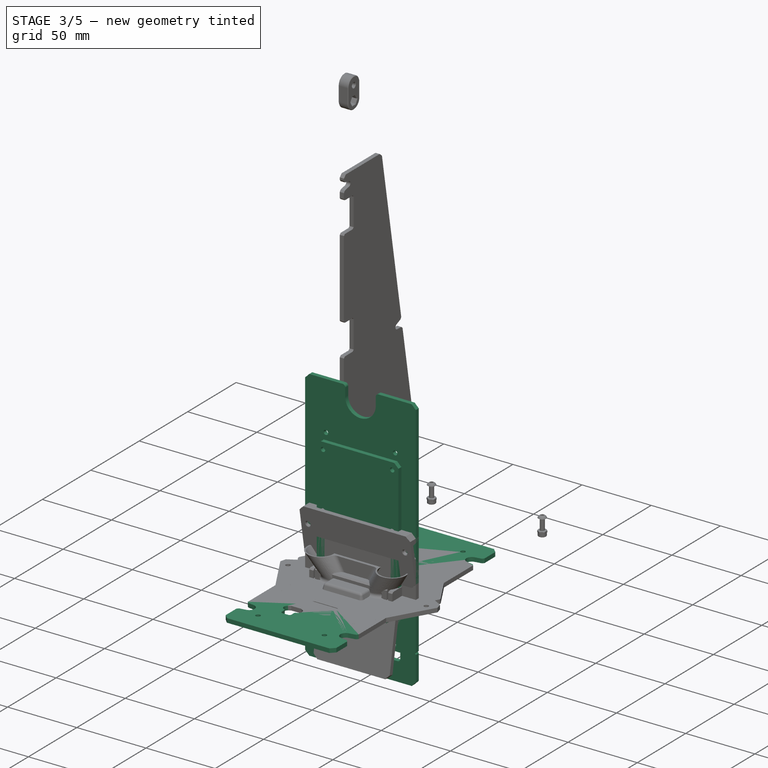
[diagram: stage 3 of 5 — iso view after this stage's code; geometry added in this stage tinted green]
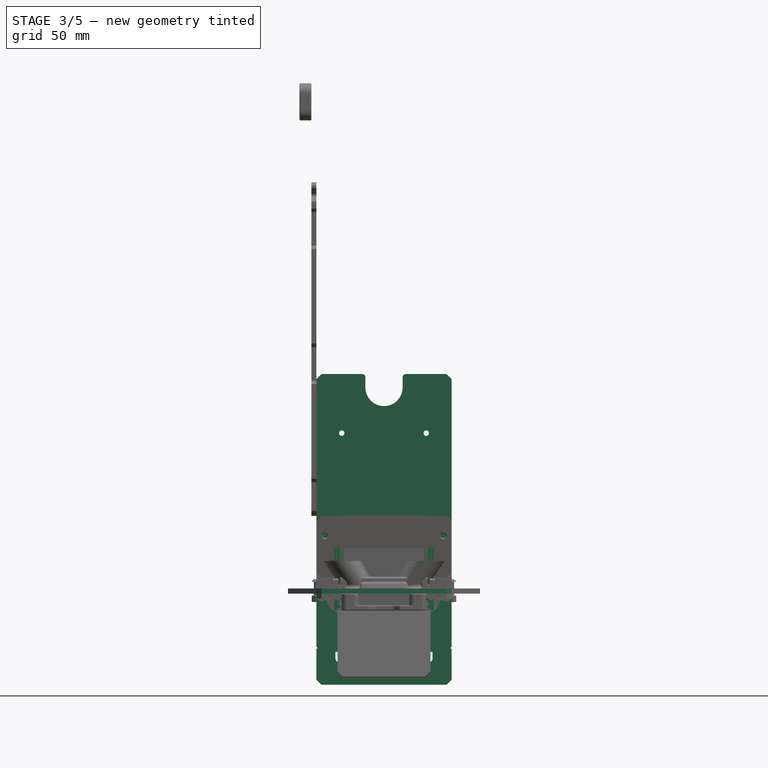
[diagram: stage 3 of 5 — front view after this stage's code; geometry added in this stage tinted green]
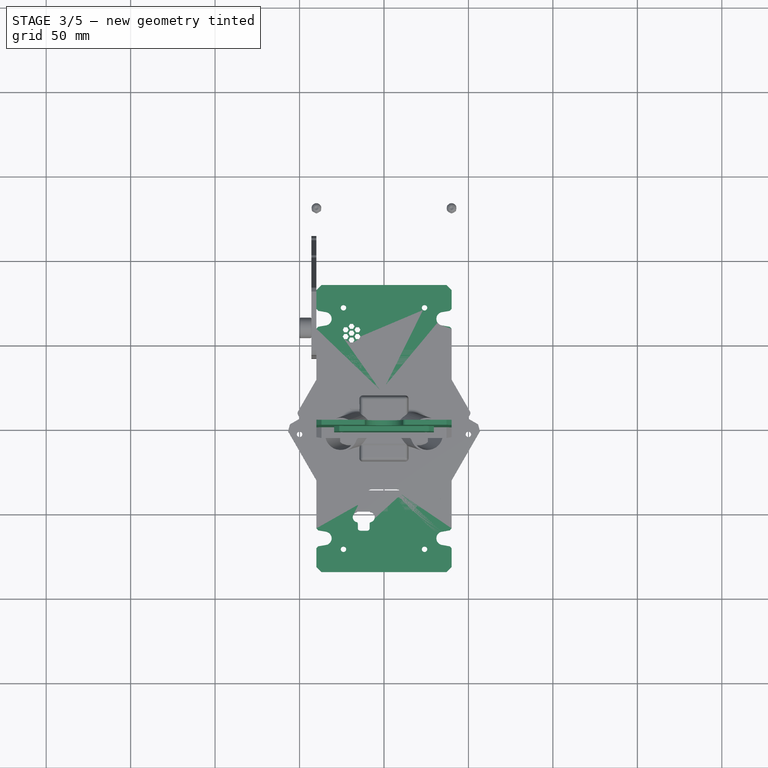
[diagram: stage 3 of 5 — top view after this stage's code; geometry added in this stage tinted green]
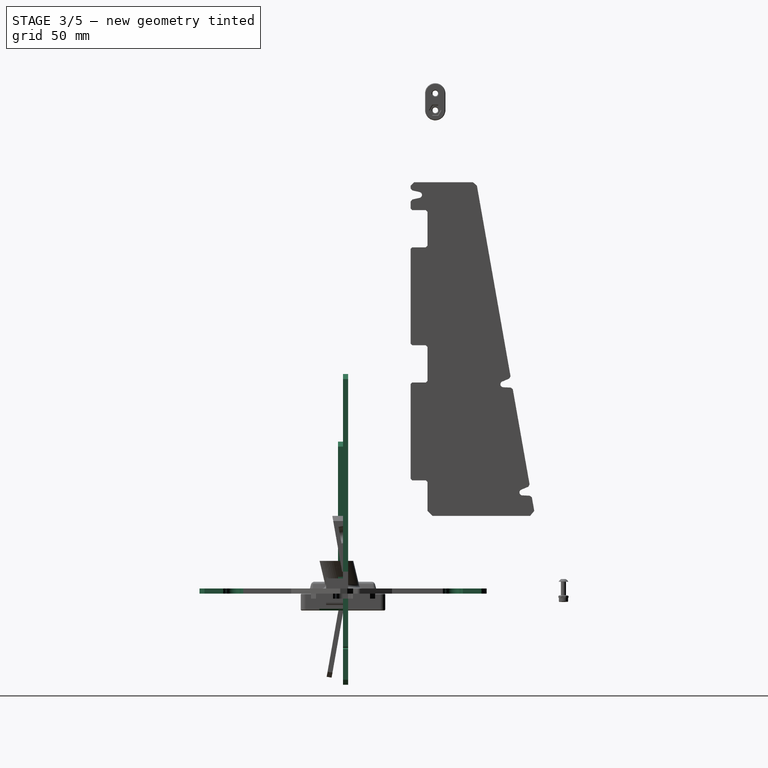
[diagram: stage 3 of 5 — right view after this stage's code; geometry added in this stage tinted green]
FEATURE [PartDesign::Body] Body027  label="LinkerCenterPlate"
  AutoGroupSolids = false
  ClaimAllChildren = false
  ExportMode = 0
  FixShape = 1
  Group = -> [Sketch053,Pad029,Sketch054,Pocket020,Sketch055,Pad030,Fillet015,Chamfer012,Fillet016,PolarPattern015]
  InvalidShape = false
  Origin = -> Origin063
  Placement = pos=(0,0,69) rot=(0,0,1;0rad)
  SingleSolid = true
  Tip = -> PolarPattern015
  TreeRank = 196
  ValidateShape = false
  _ExportChildren = -> [Pad029,Pocket020,Pad030,Fillet015,Chamfer012,Fillet016,PolarPattern015]
  _GroupVersion = 1
FEATURE [App::Part] Part018  label="LinkerCenter-Assembly"
  ClaimAllChildren = false
  ExportMode = 1
  Group = -> [Part019,Body027]
  Origin = -> Origin061
  TreeRank = 174
  _ExportChildren = -> [Part019,Body027]
  _GroupVersion = 1
FEATURE [TechDraw::DrawSVGTemplate] Template002
  Height = 210
  Orientation = 1
  Template = <path>
  TreeRank = 227
  Width = 297
FEATURE [Sketcher::SketchObject] Sketch057
  ArcFitTolerance = 1e-06
  AttachmentSupport = -> [XZ_Plane050]
  ExternalBSplineMaxDegree = 5
  ExternalBSplineTolerance = 0.0001
  FixShape = 1
  FullyConstrained = true
  InternalTolerance = 1e-06
  InvalidShape = false
  MakeInternals = false
  MapMode = 5
  Placement = pos=(0,0,0) rot=(1,0,0;1.5708rad)
  Support = -> [XZ_Plane050]
  TreeRank = 259
  ValidateShape = false
  sketch-geometry (5):
    g0: LineSegment StartX=40 StartY=130 StartZ=0 EndX=40 EndY=0 EndZ=0
    g1: LineSegment StartX=40 StartY=0 StartZ=0 EndX=-40 EndY=0 EndZ=0
    g2: LineSegment StartX=-40 StartY=0 StartZ=0 EndX=-40 EndY=130 EndZ=0
    g3: LineSegment StartX=-40 StartY=130 StartZ=0 EndX=40 EndY=130 EndZ=0
    g4: GeomPoint [constr] X=0 Y=65 Z=0
  constraints (13):
    c: Coincident(g0,g1)
    c: Coincident(g1,g2)
    c: Coincident(g2,g3)
    c: Coincident(g3,g0)
    c: Horizontal(g1)
    c: Horizontal(g3)
    c: Vertical(g0)
    c: Vertical(g2)
    c: Symmetric(g1,g0,g4)
    c: PointOnObject(g4,g-2)
    c: DistanceX(g3,g3) = 80
    c: DistanceY(g2,g2) = 130
    c: PointOnObject(g1,g-1)
FEATURE [PartDesign::Pad] Pad032
  AddSubType = 0
  AlongSketchNormal = false
  AutoTaperInnerAngle = true
  CheckUpToFaceLimits = true
  ClaimChildren = false
  Direction = (0,-1,2e-16)
  Fit = 0
  FitJoin = 0
  FixShape = 1
  InnerFit = 0
  InnerFitJoin = 0
  InvalidShape = false
  Length = 3
  Length2 = 10
  Linearize = true
  NewSolid = false
  Profile = -> Sketch057
  ReferenceAxis = -> Sketch057 [N_Axis]
  Refine = true
  Reversed = true
  Suppress = false
  TaperInnerAngle = 0
  TaperInnerAngleRev = 0
  TreeRank = 260
  Type = 0
  ValidateShape = true
  _ProfileBasedVersion = 1
FEATURE [Sketcher::SketchObject] Sketch058
  ArcFitTolerance = 1e-06
  AttachmentSupport = -> [XZ_Plane051]
  ExternalBSplineMaxDegree = 5
  ExternalBSplineTolerance = 0.0001
  FixShape = 1
  FullyConstrained = true
  InternalTolerance = 1e-06
  InvalidShape = false
  MakeInternals = false
  MapMode = 5
  Placement = pos=(0,0,0) rot=(1,0,0;1.5708rad)
  Support = -> [XZ_Plane051]
  TreeRank = 271
  ValidateShape = false
  sketch-geometry (12):
    g0: LineSegment StartX=-30 StartY=90 StartZ=0 EndX=-30 EndY=0 EndZ=0
    g1: LineSegment StartX=-30 StartY=0 StartZ=0 EndX=30 EndY=0 EndZ=0
    g2: LineSegment StartX=30 StartY=0 StartZ=0 EndX=30 EndY=90 EndZ=0
    g3: LineSegment [constr] StartX=30 StartY=90 StartZ=0 EndX=-30 EndY=90 EndZ=0
    g4: GeomPoint [constr] X=0 Y=45 Z=0
    g5: LineSegment StartX=-28 StartY=90 StartZ=0 EndX=-28 EndY=2 EndZ=0
    g6: LineSegment StartX=-28 StartY=2 StartZ=0 EndX=28 EndY=2 EndZ=0
    g7: LineSegment StartX=28 StartY=2 StartZ=0 EndX=28 EndY=90 EndZ=0
    g8: LineSegment [constr] StartX=28 StartY=90 StartZ=0 EndX=-28 EndY=90 EndZ=0
    g9: GeomPoint [constr] X=0 Y=46 Z=0
    g10: LineSegment StartX=-28 StartY=90 StartZ=0 EndX=-30 EndY=90 EndZ=0
    g11: LineSegment StartX=28 StartY=90 StartZ=0 EndX=30 EndY=90 EndZ=0
  constraints (30):
    c: Coincident(g0,g1)
    c: Coincident(g1,g2)
    c: Coincident(g2,g3)
    c: Coincident(g3,g0)
    c: Horizontal(g1)
    c: Horizontal(g3)
    c: Vertical(g0)
    c: Vertical(g2)
    c: Symmetric(g1,g0,g4)
    c: PointOnObject(g4,g-2)
    c: PointOnObject(g1,g-1)
    c: DistanceX(g3,g3) = 60
    c: DistanceY(g2,g2) = 90
    c: Coincident(g5,g6)
    c: Coincident(g6,g7)
    c: Coincident(g7,g8)
    c: Coincident(g8,g5)
    c: Horizontal(g6)
    c: Horizontal(g8)
    c: Vertical(g5)
    c: Vertical(g7)
    c: Symmetric(g6,g5,g9)
    c: PointOnObject(g9,g-2)
    c: PointOnObject(g7,g3)
    c: DistanceY(g1,g6) = 2
    c: DistanceX(g6,g1) = 2
    c: Coincident(g10,g5)
    c: Coincident(g10,g0)
    c: Coincident(g11,g7)
    c: Coincident(g11,g2)
FEATURE [PartDesign::Pad] Pad033
  AddSubType = 0
  AlongSketchNormal = false
  AutoTaperInnerAngle = true
  CheckUpToFaceLimits = true
  ClaimChildren = false
  Direction = (0,-1,-2e-16)
  Fit = 0
  FitJoin = 0
  FixShape = 1
  InnerFit = 0
  InnerFitJoin = 0
  InvalidShape = false
  Length = 70
  Length2 = 10
  Linearize = true
  NewSolid = false
  Profile = -> Sketch058
  ReferenceAxis = -> Sketch058 [N_Axis]
  Refine = true
  Suppress = false
  TaperInnerAngle = 0
  TaperInnerAngleRev = 0
  TreeRank = 272
  Type = 0
  ValidateShape = true
  _ProfileBasedVersion = 1
FEATURE [PartDesign::Fillet] Fillet018
  AddSubType = 0
  Base = -> Pad033 [Edge20,Edge17]
  BaseFeature = -> Pad033
  FixShape = 1
  InvalidShape = false
  NewSolid = false
  Radius = 3
  Refine = true
  SupportTransform = false
  Suppress = false
  TreeRank = 273
  UseAllEdges = false
  ValidateShape = true
FEATURE [PartDesign::Fillet] Fillet019
  AddSubType = 0
  Base = -> Fillet018 [Edge26,Edge28]
  BaseFeature = -> Fillet018
  FixShape = 1
  InvalidShape = false
  NewSolid = false
  Radius = 5
  Refine = true
  SupportTransform = false
  Suppress = false
  TreeRank = 274
  UseAllEdges = false
  ValidateShape = true
FEATURE [Sketcher::SketchObject] Sketch059
  ArcFitTolerance = 1e-06
  AttachmentSupport = -> [XZ_Plane051]
  ExternalBSplineMaxDegree = 5
  ExternalBSplineTolerance = 0.0001
  ExternalGeometry = -> [Fillet019]
  FixShape = 1
  FullyConstrained = true
  InternalTolerance = 1e-06
  InvalidShape = false
  MakeInternals = false
  MapMode = 5
  Placement = pos=(0,0,0) rot=(1,0,0;1.5708rad)
  Support = -> [XZ_Plane051]
  TreeRank = 275
  ValidateShape = false
  sketch-geometry (23):
    g0: Circle CenterX=-25 CenterY=5 CenterZ=0 NormalX=0 NormalY=0 NormalZ=1 AngleXU=0 Radius=2.3
    g1: Circle CenterX=-25 CenterY=45 CenterZ=0 NormalX=0 NormalY=0 NormalZ=1 AngleXU=0 Radius=2.3
    g2: Circle CenterX=-25 CenterY=85 CenterZ=0 NormalX=0 NormalY=0 NormalZ=1 AngleXU=0 Radius=2.3
    g3: LineSegment StartX=-22 StartY=80 StartZ=0 EndX=-22 EndY=90 EndZ=0
    g4: LineSegment StartX=-22 StartY=90 StartZ=0 EndX=-30 EndY=90 EndZ=0
    g5: LineSegment StartX=-30 StartY=90 StartZ=0 EndX=-30 EndY=80 EndZ=0
    g6: LineSegment StartX=-30 StartY=80 StartZ=0 EndX=-22 EndY=80 EndZ=0
    g7: GeomPoint [constr] X=-26 Y=85 Z=0
    g8: LineSegment StartX=-30 StartY=50 StartZ=0 EndX=-30 EndY=40 EndZ=0
    g9: LineSegment StartX=-30 StartY=40 StartZ=0 EndX=-22 EndY=40 EndZ=0
    g10: LineSegment StartX=-22 StartY=40 StartZ=0 EndX=-22 EndY=50 EndZ=0
    g11: LineSegment StartX=-22 StartY=50 StartZ=0 EndX=-30 EndY=50 EndZ=0
    g12: GeomPoint [constr] X=-26 Y=45 Z=0
    g13: LineSegment StartX=-30 StartY=8 StartZ=0 EndX=-22 EndY=8 EndZ=0
    g14: LineSegment StartX=-22 StartY=8 StartZ=0 EndX=-22 EndY=0 EndZ=0
    g15: LineSegment StartX=-22 StartY=0 StartZ=0 EndX=-25 EndY=-9e-16 EndZ=0
    g16: LineSegment StartX=-30 StartY=5 StartZ=0 EndX=-30 EndY=8 EndZ=0
    g17: LineSegment StartX=-30 StartY=29 StartZ=0 EndX=-22 EndY=29 EndZ=0
    g18: LineSegment StartX=-22 StartY=29 StartZ=0 EndX=-22 EndY=19 EndZ=0
    g19: LineSegment StartX=-22 StartY=19 StartZ=0 EndX=-30 EndY=19 EndZ=0
    g20: LineSegment StartX=-30 StartY=19 StartZ=0 EndX=-30 EndY=29 EndZ=0
    g21: LineSegment [constr] StartX=-22 StartY=29 StartZ=0 EndX=-22 EndY=40 EndZ=0
    g22: LineSegment [constr] StartX=-22 StartY=8 StartZ=0 EndX=-22 EndY=19 EndZ=0
  constraints (59):
    c: Coincident(g0,g-3)
    c: Diameter(g0) = 4.6
    c: Vertical(g0,g1)
    c: Symmetric(g2,g0,g1)
    c: Coincident(g3,g4)
    c: Coincident(g4,g5)
    c: Coincident(g5,g6)
    c: Coincident(g6,g3)
    c: Horizontal(g4)
    c: Horizontal(g6)
    c: Vertical(g3)
    c: Vertical(g5)
    c: Symmetric(g4,g3,g7)
    c: Coincident(g4,g-5)
    c: Horizontal(g7,g2)
    c: Coincident(g8,g9)
    c: Coincident(g9,g10)
    c: Coincident(g10,g11)
    c: Coincident(g11,g8)
    c: Horizontal(g9)
    c: Horizontal(g11)
    c: Vertical(g8)
    c: Vertical(g10)
    c: Symmetric(g9,g8,g12)
    c: Equal(g11,g6)
    c: PointOnObject(g5,g8)
    c: Equal(g10,g3)
    c: Horizontal(g12,g1)
    c: DistanceY(g3,g3) = 10
    c: Equal(g1,g2)
    c: Equal(g2,g0)
    c: Horizontal(g13)
    c: Coincident(g14,g13)
    c: PointOnObject(g14,g-1)
    c: Vertical(g14)
    c: Coincident(g15,g14)
    c: Coincident(g15,g-4)
    c: Coincident(g16,g-4)
    c: Coincident(g16,g13)
    c: Vertical(g16)
    c: Equal(g15,g16)
    c: PointOnObject(g13,g10)
    c: Coincident(g17,g18)
    c: Coincident(g18,g19)
    c: Coincident(g19,g20)
    c: Coincident(g20,g17)
    c: Horizontal(g17)
    c: Horizontal(g19)
    c: Vertical(g18)
    c: Vertical(g20)
    c: Equal(g17,g9)
    c: Equal(g18,g10)
    c: PointOnObject(g17,g8)
    c: Coincident(g21,g17)
    c: Coincident(g21,g9)
    c: Coincident(g22,g18)
    c: Equal(g22,g21)
    c: Coincident(g13,g22)
    c: DistanceX(g3,g-1) = 22
FEATURE [PartDesign::Pad] Pad034
  AddSubType = 0
  AlongSketchNormal = false
  AutoTaperInnerAngle = true
  BaseFeature = -> Fillet019
  CheckUpToFaceLimits = true
  ClaimChildren = false
  Direction = (0,-1,-2e-16)
  Fit = 0
  FitJoin = 0
  FixShape = 1
  InnerFit = 0
  InnerFitJoin = 0
  InvalidShape = false
  Length = 70
  Length2 = 10
  Linearize = true
  NewSolid = false
  Profile = -> Sketch059
  ReferenceAxis = -> Sketch059 [N_Axis]
  Refine = true
  Suppress = false
  TaperInnerAngle = 0
  TaperInnerAngleRev = 0
  TreeRank = 276
  Type = 0
  ValidateShape = true
  _ProfileBasedVersion = 1
FEATURE [PartDesign::Mirrored] Mirrored001
  AddSubType = 0
  BaseFeature = -> Pad034
  CopyShape = false
  FixShape = 1
  HideBaseFeature = false
  InvalidShape = false
  MirrorPlane = -> YZ_Plane051
  NewSolid = false
  OffsetBaseFeature = true
  OriginalSubs = -> [Pad034]
  Originals = -> [Pad034]
  ParallelTransform = true
  Refine = true
  SubTransform = true
  Suppress = false
  TreeRank = 277
  ValidateShape = true
  _Version = 3
FEATURE [PartDesign::Fillet] Fillet020
  AddSubType = 0
  Base = -> Mirrored001 [Edge86,Edge84,Edge105,Edge6,Edge103,Edge46,Edge81,Edge50,Edge100,Edge48,Edge98,Edge55,Edge53,Edge51,Edge76,Edge78,Edge73,Edge74,Edge63,Edge61,Edge59,Edge82,Edge71,Edge65,Edge56,Edge97,Edge94,Edge93,Edge67,Edge68]
  BaseFeature = -> Mirrored001
  FixShape = 1
  InvalidShape = false
  NewSolid = false
  Radius = 2.5
  Refine = true
  SupportTransform = false
  Suppress = false
  TreeRank = 278
  UseAllEdges = false
  ValidateShape = true
FEATURE [PartDesign::Chamfer] Chamfer013
  AddSubType = 0
  Angle = 45
  Base = -> Fillet020 [Face2,Face5]
  BaseFeature = -> Fillet020
  ChamferType = 0
  FixShape = 1
  FlipDirection = false
  InvalidShape = false
  NewSolid = false
  Refine = true
  Size = 0.3
  Size2 = 1
  SupportTransform = false
  Suppress = false
  TreeRank = 279
  UseAllEdges = false
  ValidateShape = true
FEATURE [PartDesign::Body] Body034  label="SpacerMainBoard"
  AutoGroupSolids = false
  ClaimAllChildren = false
  ExportMode = 0
  FixShape = 1
  Group = -> [Sketch079,Pad042,Fillet026,Fillet027,Mirrored003,Sketch080,Pocket034,Fillet028,Chamfer019]
  InvalidShape = false
  Origin = -> Origin076
  Placement = pos=(0,0,0.8) rot=(0,0,1;0rad)
  SingleSolid = true
  Tip = -> Chamfer019
  TreeRank = 482
  ValidateShape = false
  _ExportChildren = -> [Pad042,Fillet026,Fillet027,Mirrored003,Pocket034,Fillet028,Chamfer019]
  _GroupVersion = 1
FEATURE [App::Link] Link035  label="Link035(SpacerMainBoard)"
  AutoLinkLabel = true
  AutoPlacement = true
  LinkPlacement = pos=(-2.273e-12,-2.84e-14,0.799992) rot=(0,0,1;3.14159rad)
  LinkedObject = -> Body034
  Placement = pos=(-2.273e-12,-2.84e-14,0.799992) rot=(0,0,1;3.14159rad)
  SyncGroupVisibility = false
  TreeRank = 492
  _LinkVersion = 1
FEATURE [App::VRMLObject] mainBoard_2025  label="mainBoard-2025"
  TreeRank = 493
FEATURE [Sketcher::SketchObject] Sketch081
  ArcFitTolerance = 1e-06
  AttachmentSupport = -> [XY_Plane062]
  ExternalBSplineMaxDegree = 5
  ExternalBSplineTolerance = 0.0001
  FixShape = 1
  FullyConstrained = true
  InternalTolerance = 1e-06
  InvalidShape = false
  MakeInternals = false
  MapMode = 5
  Support = -> [XY_Plane062]
  TreeRank = 504
  ValidateShape = false
  sketch-geometry (30):
    g0: LineSegment StartX=-40 StartY=-85 StartZ=0 EndX=-40 EndY=85 EndZ=0
    g1: LineSegment StartX=-40 StartY=85 StartZ=0 EndX=40 EndY=85 EndZ=0
    g2: LineSegment StartX=40 StartY=85 StartZ=0 EndX=40 EndY=-85 EndZ=0
    g3: LineSegment StartX=40 StartY=-85 StartZ=0 EndX=-40 EndY=-85 EndZ=0
    g4: GeomPoint [constr] X=0 Y=0 Z=0
    g5: LineSegment [constr] StartX=-24 StartY=-71.5 StartZ=0 EndX=-24 EndY=71.5 EndZ=0
    g6: LineSegment [constr] StartX=-24 StartY=71.5 StartZ=0 EndX=24 EndY=71.5 EndZ=0
    g7: LineSegment [constr] StartX=24 StartY=71.5 StartZ=0 EndX=24 EndY=-71.5 EndZ=0
    g8: LineSegment [constr] StartX=24 StartY=-71.5 StartZ=0 EndX=-24 EndY=-71.5 EndZ=0
    g9: GeomPoint [constr] X=0 Y=0 Z=0
    g10: Circle CenterX=-24 CenterY=71.5 CenterZ=0 NormalX=0 NormalY=0 NormalZ=1 AngleXU=0 Radius=1.6
    g11: Circle CenterX=24 CenterY=71.5 CenterZ=0 NormalX=0 NormalY=0 NormalZ=1 AngleXU=0 Radius=1.6
    g12: Circle CenterX=24 CenterY=-71.5 CenterZ=0 NormalX=0 NormalY=0 NormalZ=1 AngleXU=0 Radius=1.6
    g13: Circle CenterX=-24 CenterY=-71.5 CenterZ=0 NormalX=0 NormalY=0 NormalZ=1 AngleXU=0 Radius=1.6
    g14: ArcOfCircle CenterX=-7.5 CenterY=-38.5 CenterZ=0 NormalX=0 NormalY=0 NormalZ=1 AngleXU=0 Radius=2.5 StartAngle=1.5708 EndAngle=4.71239
    g15: ArcOfCircle CenterX=7.5 CenterY=-38.5 CenterZ=0 NormalX=0 NormalY=0 NormalZ=1 AngleXU=0 Radius=2.5 StartAngle=4.71239 EndAngle=7.85398
    g16: LineSegment StartX=-7.5 StartY=-41 StartZ=0 EndX=7.5 EndY=-41 EndZ=0
    g17: LineSegment StartX=7.5 StartY=-36 StartZ=0 EndX=-7.5 EndY=-36 EndZ=0
    g18: Circle CenterX=0 CenterY=23.5 CenterZ=0 NormalX=0 NormalY=0 NormalZ=1 AngleXU=0 Radius=2.5
    g19: Circle CenterX=-19.2 CenterY=56.5 CenterZ=0 NormalX=0 NormalY=0 NormalZ=1 AngleXU=0 Radius=1
    g20: ArcOfCircle CenterX=-10 CenterY=-59 CenterZ=0 NormalX=0 NormalY=0 NormalZ=1 AngleXU=0 Radius=1.5 StartAngle=4.71239 EndAngle=6.28319
    g21: LineSegment StartX=-10 StartY=-60.5 StartZ=0 EndX=-14 EndY=-60.5 EndZ=0
    g22: ArcOfCircle CenterX=-14 CenterY=-59 CenterZ=0 NormalX=0 NormalY=0 NormalZ=1 AngleXU=0 Radius=1.5 StartAngle=3.14159 EndAngle=4.71239
    g23: LineSegment StartX=-15.5 StartY=-59 StartZ=0 EndX=-15.5 EndY=-46 EndZ=0
    g24: ArcOfCircle CenterX=-14 CenterY=-46 CenterZ=0 NormalX=0 NormalY=0 NormalZ=1 AngleXU=0 Radius=1.5 StartAngle=1.5708 EndAngle=3.14159
    g25: LineSegment StartX=-14 StartY=-44.5 StartZ=0 EndX=-10 EndY=-44.5 EndZ=0
    g26: ArcOfCircle CenterX=-10 CenterY=-46 CenterZ=0 NormalX=0 NormalY=0 NormalZ=1 AngleXU=0 Radius=1.5 StartAngle=2e-16 EndAngle=1.5708
    g27: LineSegment StartX=-8.5 StartY=-46 StartZ=0 EndX=-8.5 EndY=-59 EndZ=0
    g28: GeomPoint [constr] X=-8.5 Y=-60.5 Z=0
    g29: GeomPoint [constr] X=-15.5 Y=-44.5 Z=0
  constraints (71):
    c: Coincident(g0,g1)
    c: Coincident(g1,g2)
    c: Coincident(g2,g3)
    c: Coincident(g3,g0)
    c: Horizontal(g1)
    c: Horizontal(g3)
    c: Vertical(g0)
    c: Vertical(g2)
    c: Symmetric(g1,g0,g4)
    c: Coincident(g4,g-1)
    c: DistanceX(g1,g1) = 80
    c: DistanceY(g2,g2) = 170
    c: Coincident(g5,g6)
    c: Coincident(g6,g7)
    c: Coincident(g7,g8)
    c: Coincident(g8,g5)
    c: Horizontal(g6)
    c: Horizontal(g8)
    c: Vertical(g5)
    c: Vertical(g7)
    c: Symmetric(g6,g5,g9)
    c: Coincident(g9,g4)
    c: Coincident(g10,g5)
    c: Coincident(g11,g6)
    c: Coincident(g12,g7)
    c: Coincident(g13,g5)
    c: Equal(g13,g12)
    c: Equal(g12,g10)
    c: Equal(g10,g11)
    c: Diameter(g11) = 3.2
    c: DistanceX(g6,g6) = 48
    c: DistanceY(g7,g7) = 143
    c: Tangent(g14,g16) = -1.5708
    c: Tangent(g16,g15) = -1.5708
    c: Tangent(g15,g17) = -1.5708
    c: Tangent(g17,g14) = -1.5708
    c: Equal(g14,g15)
    c: Symmetric(g15,g14,g-2)
    c: DistanceY(g15,g15) = 5
    c: DistanceX(g14,g15) = 15
    c: DistanceY(g15,g4) = 38.5
    c: PointOnObject(g18,g-2)
    c: DistanceY(g4,g18) = 23.5
    c: Diameter(g18) = 5
    c: DistanceX(g19) = -19.2
    c: DistanceY(g19) = 56.5
    c: Diameter(g19) = 2
    c: Tangent(g20,g21) = 1.5708
    c: Tangent(g21,g22) = 1.5708
    c: Tangent(g22,g23) = 1.5708
    c: Tangent(g23,g24) = 1.5708
    c: Tangent(g24,g25) = 1.5708
    c: Tangent(g25,g26) = 1.5708
    c: Tangent(g26,g27) = 1.5708
    c: Tangent(g27,g20) = 1.5708
    c: Horizontal(g21)
    c: Horizontal(g25)
    c: Vertical(g23)
    c: Vertical(g27)
    c: Equal(g20,g22)
    c: Equal(g22,g24)
    c: Equal(g24,g26)
    c: PointOnObject(g28,g21)
    c: PointOnObject(g28,g27)
    c: PointOnObject(g29,g23)
    c: PointOnObject(g29,g25)
    c: DistanceX(g23,g26) = 7
    c: DistanceY(g20,g25) = 16
    c: Radius(g26) = 1.5
    c: DistanceX(g4,g26) = -10
    c: DistanceY(g4,g26) = -46
FEATURE [PartDesign::Pad] Pad043
  AddSubType = 0
  AlongSketchNormal = false
  AutoTaperInnerAngle = true
  CheckUpToFaceLimits = true
  ClaimChildren = false
  Direction = (0,0,1)
  Fit = 0
  FitJoin = 0
  FixShape = 1
  InnerFit = 0
  InnerFitJoin = 0
  InvalidShape = false
  Length = 3
  Length2 = 10
  Linearize = true
  NewSolid = false
  Profile = -> Sketch081
  ReferenceAxis = -> Sketch081 [N_Axis]
  Refine = true
  Suppress = false
  TaperInnerAngle = 0
  TaperInnerAngleRev = 0
  TreeRank = 505
  Type = 0
  ValidateShape = true
  _ProfileBasedVersion = 1
FEATURE [Sketcher::SketchObject] Sketch082
  ArcFitTolerance = 1e-06
  AttachmentSupport = -> [Pad043]
  ExternalBSplineMaxDegree = 5
  ExternalBSplineTolerance = 0.0001
  ExternalGeometry = -> [Pad043]
  FixShape = 1
  FullyConstrained = true
  InternalTolerance = 1e-06
  InvalidShape = false
  MakeInternals = false
  MapMode = 5
  Placement = pos=(0,0,3) rot=(0,0,1;0rad)
  Support = -> [Pad043]
  TreeRank = 506
  ValidateShape = false
  sketch-geometry (14):
    g0: LineSegment StartX=-17.45 StartY=56.5 StartZ=0 EndX=-18.325 EndY=58.0155 EndZ=0
    g1: LineSegment StartX=-18.325 StartY=58.0155 StartZ=0 EndX=-20.075 EndY=58.0155 EndZ=0
    g2: LineSegment StartX=-20.075 StartY=58.0155 StartZ=0 EndX=-20.95 EndY=56.5 EndZ=0
    g3: LineSegment StartX=-20.95 StartY=56.5 StartZ=0 EndX=-20.075 EndY=54.9845 EndZ=0
    g4: LineSegment StartX=-20.075 StartY=54.9845 StartZ=0 EndX=-18.325 EndY=54.9845 EndZ=0
    g5: LineSegment StartX=-18.325 StartY=54.9845 StartZ=0 EndX=-17.45 EndY=56.5 EndZ=0
    g6: Circle [constr] CenterX=-19.2 CenterY=56.5 CenterZ=0 NormalX=0 NormalY=0 NormalZ=1 AngleXU=0 Radius=1.75
    g7: LineSegment StartX=-18.325 StartY=59.0155 StartZ=0 EndX=-17.45 EndY=60.5311 EndZ=0
    g8: LineSegment StartX=-17.45 StartY=60.5311 StartZ=0 EndX=-18.325 EndY=62.0466 EndZ=0
    g9: LineSegment StartX=-18.325 StartY=62.0466 StartZ=0 EndX=-20.075 EndY=62.0466 EndZ=0
    g10: LineSegment StartX=-20.075 StartY=62.0466 StartZ=0 EndX=-20.95 EndY=60.5311 EndZ=0
    g11: LineSegment StartX=-20.95 StartY=60.5311 StartZ=0 EndX=-20.075 EndY=59.0155 EndZ=0
    g12: LineSegment StartX=-20.075 StartY=59.0155 StartZ=0 EndX=-18.325 EndY=59.0155 EndZ=0
    g13: Circle [constr] CenterX=-19.2 CenterY=60.5311 CenterZ=0 NormalX=0 NormalY=0 NormalZ=1 AngleXU=0 Radius=1.75
  constraints (33):
    c: Coincident(g0,g1)
    c: Coincident(g1,g2)
    c: Coincident(g2,g3)
    c: Coincident(g3,g4)
    c: Coincident(g4,g5)
    c: Coincident(g5,g0)
    c: Equal(g0, g1-g5) x5
    c: PointOnObject(g0,g6)
    c: PointOnObject(g1,g6)
    c: PointOnObject(g2,g6)
    c: PointOnObject(g3,g6)
    c: PointOnObject(g4,g6)
    c: PointOnObject(g5,g6)
    c: Coincident(g6,g-3)
    c: Horizontal(g1)
    c: Coincident(g7,g8)
    c: Coincident(g8,g9)
    c: Coincident(g9,g10)
    c: Coincident(g10,g11)
    c: Coincident(g11,g12)
    c: Coincident(g12,g7)
    c: Equal(g7, g8-g12) x5
    c: PointOnObject(g7,g13)
    c: PointOnObject(g8,g13)
    c: PointOnObject(g9,g13)
    c: PointOnObject(g10,g13)
    c: PointOnObject(g11,g13)
    c: PointOnObject(g12,g13)
    c: Horizontal(g12)
    c: Equal(g1,g12)
    c: Diameter(g6) = 3.5
    c: Vertical(g-3,g13)
    c: DistanceY(g0,g7) = 1
FEATURE [PartDesign::Pocket] Pocket035
  AddSubType = 1
  AlongSketchNormal = false
  AutoTaperInnerAngle = true
  BaseFeature = -> Pad043
  CheckUpToFaceLimits = true
  ClaimChildren = false
  Direction = (0,0,-1)
  Fit = 0
  FitJoin = 0
  FixShape = 1
  InnerFit = 0
  InnerFitJoin = 0
  InvalidShape = false
  Length = 5
  Length2 = 10
  Linearize = true
  NewSolid = false
  Profile = -> Sketch082
  ReferenceAxis = -> Sketch082 [N_Axis]
  Refine = true
  Suppress = false
  TaperInnerAngle = 0
  TaperInnerAngleRev = 0
  TreeRank = 507
  Type = 1
  ValidateShape = true
  _ProfileBasedVersion = 1
  _Version = 1
FEATURE [PartDesign::PolarPattern] PolarPattern018
  AddSubType = 0
  Angle = 360
  Axis = -> Pad043 [Edge66]
  BaseFeature = -> Pocket035
  CopyShape = false
  FixShape = 1
  HideBaseFeature = false
  InvalidShape = false
  NewSolid = false
  Occurrences = 6
  OffsetBaseFeature = true
  OriginalSubs = -> [Pocket035]
  Originals = -> [Pocket035]
  ParallelTransform = true
  Refine = true
  SubTransform = true
  Suppress = false
  TreeRank = 508
  ValidateShape = true
  _Version = 4
FEATURE [Sketcher::SketchObject] Sketch083
  ArcFitTolerance = 1e-06
  AttachmentSupport = -> [PolarPattern018]
  ExternalBSplineMaxDegree = 5
  ExternalBSplineTolerance = 0.0001
  ExternalGeometry = -> [PolarPattern018]
  FixShape = 1
  FullyConstrained = true
  InternalTolerance = 1e-06
  InvalidShape = false
  MakeInternals = false
  MapMode = 5
  Placement = pos=(0,0,3) rot=(0,0,1;0rad)
  Support = -> [PolarPattern018]
  TreeRank = 509
  ValidateShape = false
  sketch-geometry (5):
    g0: ArcOfCircle CenterX=-15.5 CenterY=-52.5 CenterZ=0 NormalX=0 NormalY=0 NormalZ=1 AngleXU=0 Radius=3 StartAngle=1.5708 EndAngle=4.71239
    g1: ArcOfCircle CenterX=-8.5 CenterY=-52.5 CenterZ=0 NormalX=0 NormalY=0 NormalZ=1 AngleXU=0 Radius=3 StartAngle=4.71239 EndAngle=7.85398
    g2: LineSegment StartX=-15.5 StartY=-55.5 StartZ=0 EndX=-8.5 EndY=-55.5 EndZ=0
    g3: LineSegment StartX=-8.5 StartY=-49.5 StartZ=0 EndX=-15.5 EndY=-49.5 EndZ=0
    g4: LineSegment [constr] StartX=-18.5 StartY=-52.5 StartZ=0 EndX=-5.5 EndY=-52.5 EndZ=0
  constraints (14):
    c: Tangent(g0,g2) = -1.5708
    c: Tangent(g2,g1) = -1.5708
    c: Tangent(g1,g3) = -1.5708
    c: Tangent(g3,g0) = -1.5708
    c: Equal(g0,g1)
    c: Horizontal(g2)
    c: DistanceY(g1,g1) = 6
    c: PointOnObject(g4,g0)
    c: PointOnObject(g4,g1)
    c: Symmetric(g-4,g-4,g4)
    c: PointOnObject(g1,g4)
    c: DistanceX(g4,g4) = 13
    c: PointOnObject(g0,g-3)
    c: PointOnObject(g1,g-4)
FEATURE [PartDesign::Pocket] Pocket036
  AddSubType = 1
  AlongSketchNormal = false
  AutoTaperInnerAngle = true
  BaseFeature = -> PolarPattern018
  CheckUpToFaceLimits = true
  ClaimChildren = false
  Direction = (0,0,-1)
  Fit = 0
  FitJoin = 0
  FixShape = 1
  InnerFit = 0
  InnerFitJoin = 0
  InvalidShape = false
  Length = 5
  Length2 = 10
  Linearize = true
  NewSolid = false
  Profile = -> Sketch083
  ReferenceAxis = -> Sketch083 [N_Axis]
  Refine = true
  Suppress = false
  TaperInnerAngle = 0
  TaperInnerAngleRev = 0
  TreeRank = 510
  Type = 0
  ValidateShape = true
  _ProfileBasedVersion = 1
  _Version = 1
FEATURE [PartDesign::Fillet] Fillet029
  AddSubType = 0
  Base = -> Pocket036 [Edge148,Edge143,Edge142,Edge149]
  BaseFeature = -> Pocket036
  FixShape = 1
  InvalidShape = false
  NewSolid = false
  Radius = 1
  Refine = true
  SupportTransform = false
  Suppress = false
  TreeRank = 511
  UseAllEdges = false
  ValidateShape = true
FEATURE [Sketcher::SketchObject] Sketch084
  ArcFitTolerance = 1e-06
  AttachmentSupport = -> [XY_Plane062]
  ExternalBSplineMaxDegree = 5
  ExternalBSplineTolerance = 0.0001
  ExternalGeometry = -> [Fillet029]
  FixShape = 1
  FullyConstrained = true
  InternalTolerance = 1e-06
  InvalidShape = false
  MakeInternals = false
  MapMode = 5
  Support = -> [XY_Plane062]
  TreeRank = 512
  ValidateShape = false
  sketch-geometry (4):
    g0: ArcOfCircle CenterX=40.8541 CenterY=65 CenterZ=0 NormalX=0 NormalY=0 NormalZ=1 AngleXU=0 Radius=5 StartAngle=4.54073 EndAngle=8.02564
    g1: ArcOfCircle CenterX=35 CenterY=65 CenterZ=0 NormalX=0 NormalY=0 NormalZ=1 AngleXU=0 Radius=4 StartAngle=1.74246 EndAngle=4.54073
    g2: LineSegment StartX=40 StartY=69.9265 StartZ=0 EndX=34.3167 EndY=68.9412 EndZ=0
    g3: LineSegment StartX=34.3167 StartY=61.0588 StartZ=0 EndX=40 EndY=60.0735 EndZ=0
  constraints (10):
    c: Tangent(g0,g2) = -1.5708
    c: Tangent(g2,g1) = -1.5708
    c: Tangent(g1,g3) = -1.5708
    c: Tangent(g3,g0) = -1.5708
    c: PointOnObject(g0,g-3)
    c: PointOnObject(g0,g-3)
    c: Radius(g0) = 5
    c: Radius(g1) = 4
    c: DistanceX(g1,g0) = 5
    c: DistanceY(g1,g-3) = 20
FEATURE [PartDesign::Pocket] Pocket037
  AddSubType = 1
  AlongSketchNormal = false
  AutoTaperInnerAngle = true
  BaseFeature = -> Fillet029
  CheckUpToFaceLimits = true
  ClaimChildren = false
  Direction = (0,0,-1)
  Fit = 0
  FitJoin = 0
  FixShape = 1
  InnerFit = 0
  InnerFitJoin = 0
  InvalidShape = false
  Length = 5
  Length2 = 10
  Linearize = true
  NewSolid = false
  Profile = -> Sketch084
  ReferenceAxis = -> Sketch084 [N_Axis]
  Refine = true
  Reversed = true
  Suppress = false
  TaperInnerAngle = 0
  TaperInnerAngleRev = 0
  TreeRank = 513
  Type = 0
  ValidateShape = true
  _ProfileBasedVersion = 1
  _Version = 1
FEATURE [PartDesign::Chamfer] Chamfer020
  AddSubType = 0
  Angle = 45
  Base = -> Pocket037 [Edge87,Edge81]
  BaseFeature = -> Pocket037
  ChamferType = 0
  FixShape = 1
  FlipDirection = false
  InvalidShape = false
  NewSolid = false
  Refine = true
  Size = 1
  Size2 = 1
  SupportTransform = false
  Suppress = false
  TreeRank = 514
  UseAllEdges = false
  ValidateShape = true
FEATURE [PartDesign::PolarPattern] PolarPattern019
  AddSubType = 0
  Angle = 360
  Axis = -> Sketch084 [N_Axis]
  BaseFeature = -> Chamfer020
  CopyShape = false
  FixShape = 1
  HideBaseFeature = false
  InvalidShape = false
  NewSolid = false
  Occurrences = 2
  OffsetBaseFeature = true
  OriginalSubs = -> [Pocket037,Chamfer020]
  Originals = -> [Pocket037,Chamfer020]
  ParallelTransform = true
  Refine = true
  SubTransform = true
  Suppress = false
  TreeRank = 515
  ValidateShape = true
  _Version = 4
FEATURE [PartDesign::Mirrored] Mirrored004
  AddSubType = 0
  BaseFeature = -> PolarPattern019
  CopyShape = false
  FixShape = 1
  HideBaseFeature = false
  InvalidShape = false
  MirrorPlane = -> YZ_Plane062
  NewSolid = false
  OffsetBaseFeature = true
  OriginalSubs = -> [PolarPattern019]
  Originals = -> [PolarPattern019]
  ParallelTransform = true
  Refine = true
  SubTransform = true
  Suppress = false
  TreeRank = 516
  ValidateShape = true
  _Version = 4
FEATURE [PartDesign::Chamfer] Chamfer021
  AddSubType = 0
  Angle = 45
  Base = -> Mirrored004 [Edge119,Edge149,Edge147,Edge121]
  BaseFeature = -> Mirrored004
  ChamferType = 0
  FixShape = 1
  FlipDirection = false
  InvalidShape = false
  NewSolid = false
  Refine = true
  Size = 3
  Size2 = 1
  SupportTransform = false
  Suppress = false
  TreeRank = 517
  UseAllEdges = false
  ValidateShape = true
FEATURE [Part::Feature] Solid  label="Micro SD to SD Card Extension Adapter Cable - Part 01"
  FixShape = 1
  InvalidShape = false
  Placement = pos=(0,0,0) rot=(0,0,1;1.5708rad)
  TreeRank = 7
  ValidateShape = false
  shape: bbox 8.5 x 30.8 x 1.901 mm, 25 faces (baked)
FEATURE [App::Part] Part026  label="Micro SD to SD Card Extension Adapter Cable001"
  ClaimAllChildren = false
  ExportMode = 1
  Group = -> [Compound,Solid,Compound001]
  Origin = -> Origin078
  TreeRank = 523
  _ExportChildren = -> [Compound,Solid,Compound001]
  _GroupVersion = 1
FEATURE [Sketcher::SketchObject] Sketch086
  ArcFitTolerance = 1e-06
  AttachmentSupport = -> [XY_Plane064]
  ExternalBSplineMaxDegree = 5
  ExternalBSplineTolerance = 0.0001
  FixShape = 1
  FullyConstrained = true
  InternalTolerance = 1e-06
  InvalidShape = false
  MakeInternals = false
  MapMode = 5
  Support = -> [XY_Plane064]
  TreeRank = 535
  ValidateShape = false
  sketch-geometry (6):
    g0: LineSegment StartX=-40 StartY=27 StartZ=0 EndX=-40 EndY=-27 EndZ=0
    g1: LineSegment StartX=-40 StartY=-27 StartZ=0 EndX=40 EndY=-27 EndZ=0
    g2: LineSegment StartX=40 StartY=-27 StartZ=0 EndX=40 EndY=27 EndZ=0
    g3: LineSegment StartX=40 StartY=27 StartZ=0 EndX=-40 EndY=27 EndZ=0
    g4: GeomPoint [constr] X=0 Y=0 Z=0
    g5: Circle CenterX=0 CenterY=-8 CenterZ=0 NormalX=0 NormalY=0 NormalZ=1 AngleXU=0 Radius=12.5
  constraints (15):
    c: Coincident(g0,g1)
    c: Coincident(g1,g2)
    c: Coincident(g2,g3)
    c: Coincident(g3,g0)
    c: Horizontal(g1)
    c: Horizontal(g3)
    c: Vertical(g0)
    c: Vertical(g2)
    c: Symmetric(g1,g0,g4)
    c: Coincident(g4,g-1)
    c: DistanceX(g3,g3) = 80
    c: DistanceY(g2,g2) = 54
    c: PointOnObject(g5,g-2)
    c: DistanceY(g5,g4) = 8
    c: Diameter(g5) = 25
FEATURE [PartDesign::Pocket] Pocket039
  AddSubType = 1
  AlongSketchNormal = false
  AutoTaperInnerAngle = true
  CheckUpToFaceLimits = true
  ClaimChildren = false
  Direction = (0,0,-1)
  Fit = 0
  FitJoin = 0
  FixShape = 1
  InnerFit = 0
  InnerFitJoin = 0
  InvalidShape = false
  Length = 3
  Length2 = 10
  Linearize = true
  NewSolid = false
  Profile = -> Sketch086
  ReferenceAxis = -> Sketch086 [N_Axis]
  Refine = true
  Reversed = true
  Suppress = false
  TaperInnerAngle = 0
  TaperInnerAngleRev = 0
  TreeRank = 536
  Type = 0
  ValidateShape = true
  _ProfileBasedVersion = 1
  _Version = 1
FEATURE [Sketcher::SketchObject] Sketch087
  ArcFitTolerance = 1e-06
  AttachmentSupport = -> [Pocket039]
  ExternalBSplineMaxDegree = 5
  ExternalBSplineTolerance = 0.0001
  ExternalGeometry = -> [Pocket039]
  FixShape = 1
  FullyConstrained = true
  InternalTolerance = 1e-06
  InvalidShape = false
  MakeInternals = false
  MapMode = 5
  Placement = pos=(0,0,3) rot=(0,0,1;0rad)
  Support = -> [Pocket039]
  TreeRank = 537
  ValidateShape = false
  sketch-geometry (4):
    g0: ArcOfCircle CenterX=40.8541 CenterY=0 CenterZ=0 NormalX=0 NormalY=0 NormalZ=1 AngleXU=0 Radius=5 StartAngle=4.54073 EndAngle=8.02564
    g1: ArcOfCircle CenterX=35 CenterY=0 CenterZ=0 NormalX=0 NormalY=0 NormalZ=1 AngleXU=0 Radius=4 StartAngle=1.74246 EndAngle=4.54073
    g2: LineSegment StartX=40 StartY=4.92651 StartZ=0 EndX=34.3167 EndY=3.94121 EndZ=0
    g3: LineSegment StartX=34.3167 StartY=-3.94121 StartZ=0 EndX=40 EndY=-4.92651 EndZ=0
  constraints (10):
    c: Tangent(g0,g2) = -1.5708
    c: Tangent(g2,g1) = -1.5708
    c: Tangent(g1,g3) = -1.5708
    c: Tangent(g3,g0) = -1.5708
    c: PointOnObject(g0,g-1)
    c: PointOnObject(g1,g-1)
    c: PointOnObject(g0,g-3)
    c: Radius(g0) = 5
    c: Radius(g1) = 4
    c: DistanceX(g1,g0) = 5
FEATURE [PartDesign::Pocket] Pocket040
  AddSubType = 1
  AlongSketchNormal = false
  AutoTaperInnerAngle = true
  BaseFeature = -> Pocket039
  CheckUpToFaceLimits = true
  ClaimChildren = false
  Direction = (0,0,-1)
  Fit = 0
  FitJoin = 0
  FixShape = 1
  InnerFit = 0
  InnerFitJoin = 0
  InvalidShape = false
  Length = 5
  Length2 = 10
  Linearize = true
  NewSolid = false
  Profile = -> Sketch087
  ReferenceAxis = -> Sketch087 [N_Axis]
  Refine = true
  Suppress = false
  TaperInnerAngle = 0
  TaperInnerAngleRev = 0
  TreeRank = 538
  Type = 0
  ValidateShape = true
  _ProfileBasedVersion = 1
  _Version = 1
FEATURE [PartDesign::Mirrored] Mirrored005
  AddSubType = 0
  BaseFeature = -> Pocket040
  CopyShape = false
  FixShape = 1
  HideBaseFeature = false
  InvalidShape = false
  MirrorPlane = -> Sketch087 [V_Axis]
  NewSolid = false
  OffsetBaseFeature = true
  OriginalSubs = -> [Pocket040]
  Originals = -> [Pocket040]
  ParallelTransform = true
  Refine = true
  SubTransform = true
  Suppress = false
  TreeRank = 539
  ValidateShape = true
  _Version = 4
FEATURE [PartDesign::Chamfer] Chamfer024
  AddSubType = 0
  Angle = 45
  Base = -> Mirrored005 [Edge37,Edge2,Edge34,Edge31]
  BaseFeature = -> Mirrored005
  ChamferType = 0
  FixShape = 1
  FlipDirection = false
  InvalidShape = false
  NewSolid = false
  Refine = true
  Size = 1
  Size2 = 1
  SupportTransform = false
  Suppress = false
  TreeRank = 540
  UseAllEdges = false
  ValidateShape = true
FEATURE [PartDesign::Chamfer] Chamfer025
  AddSubType = 0
  Angle = 45
  Base = -> Chamfer024 [Edge49,Edge3,Edge47,Edge23]
  BaseFeature = -> Chamfer024
  ChamferType = 0
  FixShape = 1
  FlipDirection = false
  InvalidShape = false
  NewSolid = false
  Refine = true
  Size = 3
  Size2 = 1
  SupportTransform = false
  Suppress = false
  TreeRank = 541
  UseAllEdges = false
  ValidateShape = true
FEATURE [Sketcher::SketchObject] Sketch088
  ArcFitTolerance = 1e-06
  AttachmentSupport = -> [XY_Plane064]
  ExternalBSplineMaxDegree = 5
  ExternalBSplineTolerance = 0.0001
  FixShape = 1
  FullyConstrained = true
  InternalTolerance = 1e-06
  InvalidShape = false
  MakeInternals = false
  MapMode = 5
  Support = -> [XY_Plane064]
  TreeRank = 542
  ValidateShape = false
  sketch-geometry (5):
    g0: LineSegment StartX=10.5 StartY=24.3 StartZ=0 EndX=10.5 EndY=5.3 EndZ=0
    g1: LineSegment StartX=10.5 StartY=5.3 StartZ=0 EndX=29.5 EndY=5.3 EndZ=0
    g2: LineSegment StartX=29.5 StartY=5.3 StartZ=0 EndX=29.5 EndY=24.3 EndZ=0
    g3: LineSegment StartX=29.5 StartY=24.3 StartZ=0 EndX=10.5 EndY=24.3 EndZ=0
    g4: GeomPoint [constr] X=20 Y=14.8 Z=0
  constraints (13):
    c: Coincident(g0,g1)
    c: Coincident(g1,g2)
    c: Coincident(g2,g3)
    c: Coincident(g3,g0)
    c: Horizontal(g1)
    c: Horizontal(g3)
    c: Vertical(g0)
    c: Vertical(g2)
    c: Symmetric(g1,g0,g4)
    c: DistanceX(g4) = 20
    c: DistanceY(g4) = 14.8
    c: DistanceX(g3,g3) = 19
    c: Equal(g2,g3)
FEATURE [PartDesign::Pocket] Pocket041
  AddSubType = 1
  AlongSketchNormal = false
  AutoTaperInnerAngle = true
  BaseFeature = -> Chamfer025
  CheckUpToFaceLimits = true
  ClaimChildren = false
  Direction = (0,0,-1)
  Fit = 0
  FitJoin = 0
  FixShape = 1
  InnerFit = 0
  InnerFitJoin = 0
  InvalidShape = false
  Length = 5
  Length2 = 10
  Linearize = true
  NewSolid = false
  Profile = -> Sketch088
  ReferenceAxis = -> Sketch088 [N_Axis]
  Refine = true
  Reversed = true
  Suppress = false
  TaperInnerAngle = 0
  TaperInnerAngleRev = 0
  TreeRank = 543
  Type = 0
  ValidateShape = true
  _ProfileBasedVersion = 1
  _Version = 1
FEATURE [PartDesign::Fillet] Fillet031
  AddSubType = 0
  Base = -> Pocket041 [Edge74,Edge72,Edge73,Edge75]
  BaseFeature = -> Pocket041
  FixShape = 1
  InvalidShape = false
  NewSolid = false
  Radius = 1
  Refine = true
  SupportTransform = false
  Suppress = false
  TreeRank = 544
  UseAllEdges = false
  ValidateShape = true
FEATURE [PartDesign::Body] Body036  label="SD-Adaptator"
  AutoGroupSolids = false
  ClaimAllChildren = false
  ExportMode = 0
  FixShape = 1
  Group = -> [Sketch085,Pad044,Sketch001,Pad001,Fillet030,Fillet001,Fillet002,Sketch002,Import,Pocket038,Sketch004,Pocket001,Fillet003,Draft001,Draft002,Chamfer023,Sketch005,Import001,Pad002,Fillet004,Sketch006,Pad003,Chamfer022,Sketch103,Pocket049,Chamfer033,Pad051]
  InvalidShape = false
  Origin = -> Origin001
  Placement = pos=(29.5,0,1.75) rot=(0,0,1;0rad)
  SingleSolid = true
  Tip = -> Pad051
  TreeRank = 518
  ValidateShape = false
  _ExportChildren = -> [Pad044,Pad001,Fillet030,Fillet001,Fillet002,Import,Pocket038,Pocket001,Fillet003,Draft001,Draft002,Chamfer023,Import001,Pad002,Fillet004,Pad003,Chamfer022,Pocket049,Chamfer033,Pad051]
  _GroupVersion = 1
FEATURE [App::Part] Part027  label="SD-Adaptator-Assembly"
  ClaimAllChildren = false
  ExportMode = 1
  Group = -> [Part026,Body036]
  Origin = -> Origin002
  Placement = pos=(-24,-32.5,1.98e-14) rot=(0.57735,0.57735,0.57735;2.0944rad)
  TreeRank = 524
  _ExportChildren = -> [Part026,Body036]
  _GroupVersion = 1
FEATURE [Part::SubShapeBinder] Import004  label="Import004(Chamfer034)"
  BindCopyOnChange = 0
  BindMode = 0
  ClaimChildren = false
  Context = -> Group003 [Part031.Part032.Body041.Import004.]
  EdgeTolerance = 1e-06
  FillStyle = 0
  FixShape = 1
  Fuse = false
  InvalidShape = false
  MakeFace = false
  MergeEdges = true
  OffsetFill = false
  OffsetIntersection = false
  OffsetJoinType = 0
  OffsetOpenResult = false
  Outline = false
  PartialLoad = false
  Relative = true
  SplitEdges = false
  Support = -> [Body040[Chamfer034.]]
  TightBound = false
  TreeRank = 770
  ValidateShape = false
  _Version = 8
FEATURE [Part::SubShapeBinder] Import005  label="Import005(Pad051)"
  BindCopyOnChange = 0
  BindMode = 0
  ClaimChildren = false
  Context = -> Group003 [Part031.Part032.Body041.Import005.]
  EdgeTolerance = 1e-06
  FillStyle = 0
  FixShape = 1
  Fuse = false
  InvalidShape = false
  MakeFace = false
  MergeEdges = true
  OffsetFill = false
  OffsetIntersection = false
  OffsetJoinType = 0
  OffsetOpenResult = false
  Outline = false
  PartialLoad = false
  Relative = true
  SplitEdges = false
  Support = -> [Part027[Body036.Pad051.]]
  TightBound = false
  TreeRank = 771
  ValidateShape = false
  _Version = 8
FEATURE [Sketcher::SketchObject] Sketch105
  ArcFitTolerance = 1e-06
  AttachmentSupport = -> [XZ_Plane073]
  ExternalBSplineMaxDegree = 5
  ExternalBSplineTolerance = 0.0001
  ExternalGeometry = -> [Import004,Import005]
  FixShape = 1
  FullyConstrained = true
  InternalTolerance = 1e-06
  InvalidShape = false
  MakeInternals = false
  MapMode = 5
  Placement = pos=(0,0,0) rot=(1,0,0;1.5708rad)
  Support = -> [XZ_Plane073]
  TreeRank = 769
  ValidateShape = false
  sketch-geometry (23):
    g0: LineSegment StartX=40 StartY=-34.5 StartZ=0 EndX=40 EndY=34.5 EndZ=0
    g1: LineSegment StartX=40 StartY=34.5 StartZ=0 EndX=-40 EndY=34.5 EndZ=0
    g2: LineSegment StartX=-40 StartY=34.5 StartZ=0 EndX=-40 EndY=-34.5 EndZ=0
    g3: LineSegment StartX=-40 StartY=-34.5 StartZ=0 EndX=40 EndY=-34.5 EndZ=0
    g4: GeomPoint [constr] X=0 Y=0 Z=0
    g5: LineSegment [constr] StartX=24.05 StartY=-30.6 StartZ=0 EndX=24.05 EndY=30.6 EndZ=0
    g6: LineSegment [constr] StartX=24.05 StartY=30.6 StartZ=0 EndX=-10.05 EndY=30.6 EndZ=0
    g7: LineSegment [constr] StartX=-10.05 StartY=30.6 StartZ=0 EndX=-10.05 EndY=-30.6 EndZ=0
    g8: LineSegment [constr] StartX=-10.05 StartY=-30.6 StartZ=0 EndX=24.05 EndY=-30.6 EndZ=0
    g9: GeomPoint [constr] X=7 Y=0 Z=0
    g10: Circle CenterX=-10.05 CenterY=30.6 CenterZ=0 NormalX=0 NormalY=0 NormalZ=1 AngleXU=0 Radius=1.6
    g11: Circle CenterX=24.05 CenterY=30.6 CenterZ=0 NormalX=0 NormalY=0 NormalZ=1 AngleXU=0 Radius=1.6
    g12: Circle CenterX=24.05 CenterY=-30.6 CenterZ=0 NormalX=0 NormalY=0 NormalZ=1 AngleXU=0 Radius=1.6
    g13: Circle CenterX=-10.05 CenterY=-30.6 CenterZ=0 NormalX=0 NormalY=0 NormalZ=1 AngleXU=0 Radius=1.6
    g14: Circle CenterX=-22.25 CenterY=22.5 CenterZ=0 NormalX=0 NormalY=0 NormalZ=1 AngleXU=0 Radius=1.6
    g15: Circle CenterX=-22.25 CenterY=-22.5 CenterZ=0 NormalX=0 NormalY=0 NormalZ=1 AngleXU=0 Radius=1.6
    g16: LineSegment StartX=-17.25 StartY=16 StartZ=0 EndX=-17.25 EndY=-16 EndZ=0
    g17: LineSegment StartX=-27.25 StartY=-19 StartZ=0 EndX=-27.25 EndY=19 EndZ=0
    g18: LineSegment StartX=25.5 StartY=26.6 StartZ=0 EndX=25.5 EndY=-21.4 EndZ=0
    g19: LineSegment StartX=25.5 StartY=-21.4 StartZ=0 EndX=-11.5 EndY=-21.4 EndZ=0
    g20: LineSegment StartX=-11.5 StartY=-21.4 StartZ=0 EndX=-11.5 EndY=26.6 EndZ=0
    g21: LineSegment StartX=-11.5 StartY=26.6 StartZ=0 EndX=25.5 EndY=26.6 EndZ=0
    g22: GeomPoint [constr] X=7 Y=2.6 Z=0
  constraints (53):
    c: Coincident(g0,g1)
    c: Coincident(g1,g2)
    c: Coincident(g2,g3)
    c: Coincident(g3,g0)
    c: Horizontal(g1)
    c: Horizontal(g3)
    c: Vertical(g0)
    c: Vertical(g2)
    c: Symmetric(g1,g0,g4)
    c: Coincident(g4,g-1)
    c: DistanceX(g3,g3) = 80
    c: DistanceY(g2,g2) = 69
    c: Coincident(g5,g6)
    c: Coincident(g6,g7)
    c: Coincident(g7,g8)
    c: Coincident(g8,g5)
    c: Horizontal(g6)
    c: Horizontal(g8)
    c: Vertical(g5)
    c: Vertical(g7)
    c: Symmetric(g6,g5,g9)
    c: PointOnObject(g9,g-1)
    c: DistanceX(g4,g9) = 7
    c: Coincident(g10,g6)
    c: Coincident(g11,g5)
    c: Coincident(g12,g5)
    c: Coincident(g13,g7)
    c: Equal(g13,g12)
    c: Equal(g13,g10)
    c: Equal(g13,g11)
    c: Diameter(g13) = 3.2
    c: Coincident(g10,g-3)
    c: Coincident(g14,g-4)
    c: Coincident(g15,g-5)
    c: Equal(g14,g15)
    c: Equal(g15,g11)
    c: Coincident(g16,g-9)
    c: Coincident(g16,g-8)
    c: Coincident(g17,g-11)
    c: Coincident(g17,g-7)
    c: Coincident(g18,g19)
    c: Coincident(g19,g20)
    c: Coincident(g20,g21)
    c: Coincident(g21,g18)
    c: Horizontal(g19)
    c: Horizontal(g21)
    c: Vertical(g18)
    c: Vertical(g20)
    c: Symmetric(g19,g18,g22)
    c: DistanceX(g21,g21) = 37
    c: DistanceY(g20,g10) = 4
    c: Vertical(g22,g9)
    c: DistanceY(g18,g18) = 48
FEATURE [PartDesign::Pad] Pad052
  AddSubType = 0
  AlongSketchNormal = false
  AutoTaperInnerAngle = true
  CheckUpToFaceLimits = true
  ClaimChildren = false
  Direction = (0,-1,2e-16)
  Fit = 0
  FitJoin = 0
  FixShape = 1
  InnerFit = 0
  InnerFitJoin = 0
  InvalidShape = false
  Length = 3
  Length2 = 10
  Linearize = true
  NewSolid = false
  Profile = -> Sketch105
  ReferenceAxis = -> Sketch105 [N_Axis]
  Refine = true
  Reversed = true
  Suppress = false
  TaperInnerAngle = 0
  TaperInnerAngleRev = 0
  TreeRank = 772
  Type = 0
  ValidateShape = true
  _ProfileBasedVersion = 1
FEATURE [Sketcher::SketchObject] Sketch106
  ArcFitTolerance = 1e-06
  AttachmentSupport = -> [XZ_Plane073]
  ExternalBSplineMaxDegree = 5
  ExternalBSplineTolerance = 0.0001
  ExternalGeometry = -> [Pad052]
  FixShape = 1
  FullyConstrained = true
  InternalTolerance = 1e-06
  InvalidShape = false
  MakeInternals = false
  MapMode = 5
  Placement = pos=(0,0,0) rot=(1,0,0;1.5708rad)
  Support = -> [XZ_Plane073]
  TreeRank = 773
  ValidateShape = false
  sketch-geometry (4):
    g0: ArcOfCircle CenterX=-40.8541 CenterY=0 CenterZ=0 NormalX=0 NormalY=0 NormalZ=1 AngleXU=0 Radius=5 StartAngle=1.39913 EndAngle=4.88405
    g1: ArcOfCircle CenterX=-35 CenterY=0 CenterZ=0 NormalX=0 NormalY=0 NormalZ=1 AngleXU=0 Radius=4 StartAngle=4.88405 EndAngle=7.68232
    g2: LineSegment StartX=-40 StartY=-4.92651 StartZ=0 EndX=-34.3167 EndY=-3.94121 EndZ=0
    g3: LineSegment StartX=-34.3167 StartY=3.94121 StartZ=0 EndX=-40 EndY=4.92651 EndZ=0
  constraints (10):
    c: Tangent(g0,g2) = -1.5708
    c: Tangent(g2,g1) = -1.5708
    c: Tangent(g1,g3) = -1.5708
    c: Tangent(g3,g0) = -1.5708
    c: PointOnObject(g0,g-1)
    c: PointOnObject(g1,g-1)
    c: PointOnObject(g0,g-4)
    c: DistanceX(g0,g1) = 5
    c: Radius(g1) = 4
    c: Radius(g0) = 5
FEATURE [PartDesign::Pocket] Pocket050
  AddSubType = 1
  AlongSketchNormal = false
  AutoTaperInnerAngle = true
  BaseFeature = -> Pad052
  CheckUpToFaceLimits = true
  ClaimChildren = false
  Direction = (0,1,-2e-16)
  Fit = 0
  FitJoin = 0
  FixShape = 1
  InnerFit = 0
  InnerFitJoin = 0
  InvalidShape = false
  Length = 5
  Length2 = 10
  Linearize = true
  NewSolid = false
  Profile = -> Sketch106
  ReferenceAxis = -> Sketch106 [N_Axis]
  Refine = true
  Suppress = false
  TaperInnerAngle = 0
  TaperInnerAngleRev = 0
  TreeRank = 774
  Type = 0
  ValidateShape = true
  _ProfileBasedVersion = 1
  _Version = 1
FEATURE [PartDesign::Mirrored] Mirrored006
  AddSubType = 0
  BaseFeature = -> Pocket050
  CopyShape = false
  FixShape = 1
  HideBaseFeature = false
  InvalidShape = false
  MirrorPlane = -> Sketch106 [V_Axis]
  NewSolid = false
  OffsetBaseFeature = true
  OriginalSubs = -> [Pocket050]
  Originals = -> [Pocket050]
  ParallelTransform = true
  Refine = true
  SubTransform = true
  Suppress = false
  TreeRank = 775
  ValidateShape = true
  _Version = 4
FEATURE [PartDesign::Chamfer] Chamfer035
  AddSubType = 0
  Angle = 45
  Base = -> Mirrored006 [Edge72,Edge69,Edge66,Edge2]
  BaseFeature = -> Mirrored006
  ChamferType = 0
  FixShape = 1
  FlipDirection = false
  InvalidShape = false
  NewSolid = false
  Refine = true
  Size = 1
  Size2 = 1
  SupportTransform = false
  Suppress = false
  TreeRank = 776
  UseAllEdges = false
  ValidateShape = true
FEATURE [PartDesign::Chamfer] Chamfer036
  AddSubType = 0
  Angle = 45
  Base = -> Chamfer035 [Edge83,Edge81,Edge3,Edge40]
  BaseFeature = -> Chamfer035
  ChamferType = 0
  FixShape = 1
  FlipDirection = false
  InvalidShape = false
  NewSolid = false
  Refine = true
  Size = 3
  Size2 = 1
  SupportTransform = false
  Suppress = false
  TreeRank = 777
  UseAllEdges = false
  ValidateShape = true
FEATURE [PartDesign::Fillet] Fillet039
  AddSubType = 0
  Base = -> Chamfer036 [Edge110,Edge112,Edge111,Edge113]
  BaseFeature = -> Chamfer036
  FixShape = 1
  InvalidShape = false
  NewSolid = false
  Radius = 2
  Refine = true
  SupportTransform = false
  Suppress = false
  TreeRank = 778
  UseAllEdges = false
  ValidateShape = true
FEATURE [PartDesign::Body] Body041  label="CarterScreen"
  AutoGroupSolids = false
  ClaimAllChildren = false
  ExportMode = 0
  FixShape = 1
  Group = -> [Sketch105,Import004,Import005,Pad052,Sketch106,Pocket050,Mirrored006,Chamfer035,Chamfer036,Fillet039]
  InvalidShape = false
  Origin = -> Origin089
  SingleSolid = true
  Tip = -> Fillet039
  TreeRank = 768
  ValidateShape = false
  _ExportChildren = -> [Import004,Import005,Pad052,Pocket050,Mirrored006,Chamfer035,Chamfer036,Fillet039]
  _GroupVersion = 1
FEATURE [App::Part] Part032  label="ScreenTFTCarter"
  ClaimAllChildren = false
  ExportMode = 1
  Group = -> [Part027,Solid010,Body040,Body041]
  Origin = -> Origin087
  Placement = pos=(0,71.3785,285.746) rot=(1,0,0;0.174533rad)
  TreeRank = 728
  _ExportChildren = -> [Part027,Solid010,Body040,Body041]
  _GroupVersion = 1
FEATURE [App::Part] Part031  label="Screen-Assembled"
  ClaimAllChildren = false
  ExportMode = 1
  Group = -> [Part032]
  Origin = -> Origin086
  TreeRank = 724
  _ExportChildren = -> [Part032]
  _GroupVersion = 1
FEATURE [TechDraw::DrawSVGTemplate] Template006
  Height = 210
  Orientation = 1
  Template = <path>
  TreeRank = 780
  Width = 297
FEATURE [TechDraw::DrawProjGroupItem] ProjItem008  label="Front008"
  CoarseView = false
  Direction = (0,1,0)
  Focus = 100
  HardHidden = false
  IsoCount = 0
  IsoHidden = false
  IsoVisible = false
  LockPosition = true
  Perspective = false
  Rotation = 0
  RotationVector = (-1,0,0)
  ScaleType = 2
  ScrubCount = 0
  SeamHidden = false
  SeamVisible = false
  SmoothHidden = false
  SmoothVisible = false
  Source = -> [Fillet039]
  TreeRank = 783
  Type = 0
  X = 0
  XDirection = (-1,0,0)
  Y = 0
FEATURE [TechDraw::DrawProjGroup] ProjGroup008
  Anchor = -> ProjItem008
  AutoDistribute = true
  LockPosition = false
  ProjectionType = 0
  Rotation = 0
  ScaleType = 0
  Source = -> [Fillet039]
  TreeRank = 784
  Views = -> [ProjItem008]
  X = 40.988
  Y = 174.638
  spacingX = 15
  spacingY = 15
FEATURE [TechDraw::DrawPage] Page006  label="Laser3mm-CarterScreen"
  KeepUpdated = true
  NextBalloonIndex = 1
  ProjectionType = 0
  Template = -> Template006
  TreeRank = 855
  Views = -> [ProjGroup008]
FEATURE [Sketcher::SketchObject] Sketch111
  ArcFitTolerance = 1e-06
  AttachmentSupport = -> [YZ_Plane051]
  ExternalBSplineMaxDegree = 5
  ExternalBSplineTolerance = 0.0001
  ExternalGeometry = -> [Chamfer013]
  FullyConstrained = true
  InternalTolerance = 1e-06
  InvalidShape = false
  MakeInternals = false
  MapMode = 5
  Placement = pos=(0,0,0) rot=(0.57735,0.57735,0.57735;2.0944rad)
  Support = -> [YZ_Plane051]
  TreeRank = 856
  ValidateShape = false
  sketch-geometry (3):
    g0: Circle CenterX=-48 CenterY=24 CenterZ=0 NormalX=0 NormalY=0 NormalZ=1 AngleXU=0 Radius=2.15
    g1: LineSegment [constr] StartX=-48 StartY=29 StartZ=0 EndX=-48 EndY=19 EndZ=0
    g2: Circle [constr] CenterX=-48 CenterY=24 CenterZ=0 NormalX=0 NormalY=0 NormalZ=1 AngleXU=0 Radius=4
  constraints (8):
    c: Diameter(g0) = 4.3
    c: PointOnObject(g1,g-3)
    c: PointOnObject(g1,g-4)
    c: Vertical(g1)
    c: Symmetric(g1,g1,g0)
    c: Coincident(g2,g0)
    c: Diameter(g2) = 8
    c: DistanceX(g0,g-1) = 48
FEATURE [PartDesign::Pocket] Pocket053
  AddSubType = 1
  AlongSketchNormal = false
  AutoTaperInnerAngle = true
  BaseFeature = -> Chamfer013
  CheckUpToFaceLimits = true
  ClaimChildren = false
  Direction = (-1,2e-16,-3e-16)
  Fit = 0
  FitJoin = 0
  InnerFit = 0
  InnerFitJoin = 0
  InvalidShape = false
  Length = 5
  Length2 = 10
  Linearize = true
  Midplane = true
  NewSolid = false
  Profile = -> Sketch111
  ReferenceAxis = -> Sketch111 [N_Axis]
  Refine = true
  Suppress = false
  TaperInnerAngle = 0
  TaperInnerAngleRev = 0
  TreeRank = 857
  Type = 1
  ValidateShape = true
  _ProfileBasedVersion = 1
  _Version = 1
FEATURE [PartDesign::Chamfer] Chamfer038
  AddSubType = 0
  Angle = 45
  Base = -> Pocket053 [Face6,Face214]
  BaseFeature = -> Pocket053
  ChamferType = 0
  FlipDirection = false
  InvalidShape = false
  NewSolid = false
  Refine = true
  Size = 0.8
  Size2 = 1
  SupportTransform = false
  Suppress = false
  TreeRank = 858
  UseAllEdges = false
  ValidateShape = true
FEATURE [PartDesign::Body] Body029  label="SupportBattery"
  AutoGroupSolids = false
  ClaimAllChildren = false
  ExportMode = 0
  FixShape = 1
  Group = -> [Sketch058,Pad033,Fillet018,Fillet019,Sketch059,Pad034,Mirrored001,Fillet020,Chamfer013,Sketch111,Pocket053,Chamfer038]
  InvalidShape = false
  Origin = -> Origin066
  Placement = pos=(0,6e-16,10) rot=(0,0,1;0rad)
  Tip = -> Chamfer038
  TreeRank = 270
  ValidateShape = false
  _ExportChildren = -> [Pad033,Fillet018,Fillet019,Pad034,Mirrored001,Fillet020,Chamfer013,Pocket053,Chamfer038]
  _GroupVersion = 1
FEATURE [Part::SubShapeBinder] Import008  label="Import008(Chamfer038)"
  BindCopyOnChange = 0
  BindMode = 0
  ClaimChildren = false
  Context = -> <external ../holonomic-base.FCStd>#Link008 [Part021.Body028.Import008.]
  EdgeTolerance = 1e-06
  FillStyle = 0
  Fuse = false
  InvalidShape = false
  MakeFace = false
  MergeEdges = true
  OffsetFill = false
  OffsetIntersection = false
  OffsetJoinType = 0
  OffsetOpenResult = false
  Outline = false
  PartialLoad = false
  Relative = true
  SplitEdges = false
  Support = -> [Body029[Chamfer038.]]
  TightBound = false
  TreeRank = 869
  ValidateShape = false
  _Version = 8
FEATURE [Sketcher::SketchObject] Sketch060
  ArcFitTolerance = 1e-06
  AttachmentSupport = -> [XZ_Plane050]
  ExternalBSplineMaxDegree = 5
  ExternalBSplineTolerance = 0.0001
  ExternalGeometry = -> [Import008]
  FixShape = 1
  FullyConstrained = true
  InternalTolerance = 1e-06
  InvalidShape = false
  MakeInternals = false
  MapMode = 5
  Placement = pos=(0,0,0) rot=(1,0,0;1.5708rad)
  Support = -> [XZ_Plane050]
  TreeRank = 296
  ValidateShape = false
  sketch-geometry (6):
    g0: Circle CenterX=25 CenterY=15 CenterZ=0 NormalX=0 NormalY=0 NormalZ=1 AngleXU=0 Radius=1.6
    g1: Circle CenterX=-25 CenterY=15 CenterZ=0 NormalX=0 NormalY=0 NormalZ=1 AngleXU=0 Radius=1.6
    g2: Circle CenterX=-25 CenterY=55 CenterZ=0 NormalX=0 NormalY=0 NormalZ=1 AngleXU=0 Radius=1.6
    g3: Circle CenterX=25 CenterY=55 CenterZ=0 NormalX=0 NormalY=0 NormalZ=1 AngleXU=0 Radius=1.6
    g4: Circle CenterX=25 CenterY=95 CenterZ=0 NormalX=0 NormalY=0 NormalZ=1 AngleXU=0 Radius=1.6
    g5: Circle CenterX=-25 CenterY=95 CenterZ=0 NormalX=0 NormalY=0 NormalZ=1 AngleXU=0 Radius=1.6
  constraints (12):
    c: Coincident(g0,g-8)
    c: Coincident(g1,g-5)
    c: Coincident(g2,g-4)
    c: Coincident(g3,g-7)
    c: Coincident(g4,g-6)
    c: Coincident(g5,g-3)
    c: Equal(g4,g3)
    c: Equal(g4,g0)
    c: Equal(g4,g1)
    c: Equal(g4,g2)
    c: Equal(g4,g5)
    c: Diameter(g4) = 3.2
FEATURE [PartDesign::Pocket] Pocket021
  AddSubType = 1
  AlongSketchNormal = false
  AutoTaperInnerAngle = true
  BaseFeature = -> Pad032
  CheckUpToFaceLimits = true
  ClaimChildren = false
  Direction = (0,1,2e-16)
  Fit = 0
  FitJoin = 0
  FixShape = 1
  InnerFit = 0
  InnerFitJoin = 0
  InvalidShape = false
  Length = 5
  Length2 = 10
  Linearize = true
  NewSolid = false
  Profile = -> Sketch060
  ReferenceAxis = -> Sketch060 [N_Axis]
  Refine = true
  Suppress = false
  TaperInnerAngle = 0
  TaperInnerAngleRev = 0
  TreeRank = 297
  Type = 1
  ValidateShape = true
  _ProfileBasedVersion = 1
  _Version = 1
FEATURE [PartDesign::Body] Body045  label="Bumper"
  AutoGroupSolids = false
  ClaimAllChildren = false
  ExportMode = 0
  Group = -> [Sketch112,Pad058,Chamfer039,Chamfer040]
  InvalidShape = false
  Origin = -> Origin095
  Placement = pos=(-38,-48,34.5) rot=(0,0,1;0rad)
  Tip = -> Chamfer040
  TreeRank = 868
  ValidateShape = false
  _ExportChildren = -> [Pad058,Chamfer039,Chamfer040]
  _GroupVersion = 1
FEATURE [App::Link] Link044  label="Link044(Bumper)"
  AutoLinkLabel = true
  AutoPlacement = true
  LinkPlacement = pos=(38,-48,34.5) rot=(0,1,0;3.14159rad)
  LinkedObject = -> Body045
  Placement = pos=(38,-48,34.5) rot=(0,1,0;3.14159rad)
  SyncGroupVisibility = false
  TreeRank = 874
  _LinkVersion = 1
FEATURE [Sketcher::SketchObject] Sketch113
  ArcFitTolerance = 1e-06
  AttachmentSupport = -> [YZ_Plane079]
  ExternalBSplineMaxDegree = 5
  ExternalBSplineTolerance = 0.0001
  FullyConstrained = true
  InternalTolerance = 1e-06
  InvalidShape = false
  MakeInternals = false
  MapMode = 5
  Placement = pos=(0,0,0) rot=(0.57735,0.57735,0.57735;2.0944rad)
  Support = -> [YZ_Plane079]
  TreeRank = 886
  ValidateShape = false
  sketch-geometry (3):
    g0: LineSegment StartX=0 StartY=-38.8931 StartZ=0 EndX=0 EndY=0 EndZ=0
    g1: LineSegment StartX=0 StartY=0 StartZ=0 EndX=19.1511 EndY=-16.0697 EndZ=0
    g2: LineSegment StartX=19.1511 StartY=-16.0697 StartZ=0 EndX=0 EndY=-38.8931 EndZ=0
  constraints (8):
    c: Vertical(g0)
    c: Coincident(g0,g-1)
    c: Coincident(g1,g0)
    c: Coincident(g2,g1)
    c: Coincident(g2,g0)
    c: Angle(g0,g1) = 0.872665
    c: Perpendicular(g1,g2)
    c: Distance(g1) = 25
FEATURE [PartDesign::Pad] Pad059
  AddSubType = 0
  AlongSketchNormal = false
  AutoTaperInnerAngle = true
  CheckUpToFaceLimits = true
  ClaimChildren = false
  Direction = (1,-2e-16,3e-16)
  Fit = 0
  FitJoin = 0
  InnerFit = 0
  InnerFitJoin = 0
  InvalidShape = false
  Length = 25
  Length2 = 10
  Linearize = true
  Midplane = true
  NewSolid = false
  Profile = -> Sketch113
  ReferenceAxis = -> Sketch113 [N_Axis]
  Refine = true
  Suppress = false
  TaperInnerAngle = 0
  TaperInnerAngleRev = 0
  TreeRank = 887
  Type = 0
  ValidateShape = true
  _ProfileBasedVersion = 1
FEATURE [PartDesign::Fillet] Fillet040
  AddSubType = 0
  Base = -> Pad059 [Edge8,Edge9]
  BaseFeature = -> Pad059
  InvalidShape = false
  NewSolid = false
  Radius = 12.49
  Refine = true
  SupportTransform = false
  Suppress = false
  TreeRank = 888
  UseAllEdges = false
  ValidateShape = true
FEATURE [Sketcher::SketchObject] Sketch114
  ArcFitTolerance = 1e-06
  AttachmentSupport = -> [Fillet040]
  ExternalBSplineMaxDegree = 5
  ExternalBSplineTolerance = 0.0001
  ExternalGeometry = -> [Fillet040]
  FullyConstrained = true
  InternalTolerance = 1e-06
  InvalidShape = false
  MakeInternals = false
  MapMode = 5
  Placement = pos=(0,0,0) rot=(-1,0,0;0.698132rad)
  Support = -> [Fillet040]
  TreeRank = 889
  ValidateShape = false
  sketch-geometry (1):
    g0: Circle CenterX=0.01 CenterY=12.51 CenterZ=0 NormalX=0 NormalY=0 NormalZ=1 AngleXU=0 Radius=8.25
  constraints (2):
    c: Coincident(g0,g-3)
    c: Diameter(g0) = 16.5
FEATURE [Sketcher::SketchObject] Sketch116
  ArcFitTolerance = 1e-06
  AttachmentSupport = -> [Fillet040]
  ExternalBSplineMaxDegree = 5
  ExternalBSplineTolerance = 0.0001
  ExternalGeometry = -> [Fillet040]
  FullyConstrained = true
  InternalTolerance = 1e-06
  InvalidShape = false
  MakeInternals = false
  MapMode = 5
  Placement = pos=(0,0,0) rot=(1,0,0;1.5708rad)
  Support = -> [Fillet040]
  TreeRank = 893
  ValidateShape = false
  sketch-geometry (20):
    g0: ArcOfCircle CenterX=12.5 CenterY=-6 CenterZ=0 NormalX=0 NormalY=0 NormalZ=1 AngleXU=0 Radius=3.5 StartAngle=1.5708 EndAngle=4.71239
    g1: ArcOfCircle CenterX=16 CenterY=-6 CenterZ=0 NormalX=0 NormalY=0 NormalZ=1 AngleXU=0 Radius=3.5 StartAngle=4.71239 EndAngle=7.85398
    g2: LineSegment StartX=12.5 StartY=-9.5 StartZ=0 EndX=16 EndY=-9.5 EndZ=0
    g3: LineSegment StartX=16 StartY=-2.5 StartZ=0 EndX=12.5 EndY=-2.5 EndZ=0
    g4: ArcOfCircle CenterX=-12.5 CenterY=-6 CenterZ=0 NormalX=0 NormalY=0 NormalZ=1 AngleXU=0 Radius=3.5 StartAngle=4.71239 EndAngle=7.85398
    g5: ArcOfCircle CenterX=-16 CenterY=-6 CenterZ=0 NormalX=0 NormalY=0 NormalZ=1 AngleXU=0 Radius=3.5 StartAngle=1.5708 EndAngle=4.71239
    g6: LineSegment StartX=-12.5 StartY=-2.5 StartZ=0 EndX=-16 EndY=-2.5 EndZ=0
    g7: LineSegment StartX=-16 StartY=-9.5 StartZ=0 EndX=-12.5 EndY=-9.5 EndZ=0
    g8: Circle CenterX=16 CenterY=-6 CenterZ=0 NormalX=0 NormalY=0 NormalZ=1 AngleXU=0 Radius=1.6
    g9: Circle CenterX=-16 CenterY=-6 CenterZ=0 NormalX=0 NormalY=0 NormalZ=1 AngleXU=0 Radius=1.6
    g10: Circle [constr] CenterX=16 CenterY=-6 CenterZ=0 NormalX=0 NormalY=0 NormalZ=1 AngleXU=0 Radius=3.5
    g11: ArcOfCircle CenterX=0 CenterY=-41.3931 CenterZ=0 NormalX=0 NormalY=0 NormalZ=1 AngleXU=0 Radius=3.5 StartAngle=3.14159 EndAngle=6.28319
    g12: ArcOfCircle [constr] CenterX=0 CenterY=-38.1191 CenterZ=0 NormalX=0 NormalY=0 NormalZ=1 AngleXU=0 Radius=3.5 StartAngle=5e-16 EndAngle=3.14159
    g13: LineSegment StartX=3.5 StartY=-41.3931 StartZ=0 EndX=3.5 EndY=-38.1191 EndZ=0
    g14: LineSegment StartX=-3.5 StartY=-38.1191 StartZ=0 EndX=-3.5 EndY=-41.3931 EndZ=0
    g15: Circle CenterX=0 CenterY=-41.3931 CenterZ=0 NormalX=0 NormalY=0 NormalZ=1 AngleXU=0 Radius=1.6
    g16: LineSegment [constr] StartX=-3.5 StartY=-38.1191 StartZ=0 EndX=3.5 EndY=-38.1191 EndZ=0
    g17: LineSegment StartX=3.5 StartY=-38.1191 StartZ=0 EndX=3.5 EndY=-28.1191 EndZ=0
    g18: LineSegment StartX=3.5 StartY=-28.1191 StartZ=0 EndX=-3.5 EndY=-28.1191 EndZ=0
    g19: LineSegment StartX=-3.5 StartY=-28.1191 StartZ=0 EndX=-3.5 EndY=-38.1191 EndZ=0
  constraints (47):
    c: Tangent(g0,g2) = -1.5708
    c: Tangent(g2,g1) = -1.5708
    c: Tangent(g1,g3) = -1.5708
    c: Tangent(g3,g0) = -1.5708
    c: Equal(g0,g1)
    c: Horizontal(g2)
    c: Tangent(g4,g6) = -1.5708
    c: Tangent(g6,g5) = -1.5708
    c: Tangent(g5,g7) = -1.5708
    c: Tangent(g7,g4) = -1.5708
    c: Equal(g4,g5)
    c: Horizontal(g6)
    c: Symmetric(g1,g5,g-2)
    c: Equal(g1,g5)
    c: Coincident(g8,g1)
    c: Coincident(g9,g5)
    c: Equal(g9,g8)
    c: Diameter(g9) = 3.2
    c: Coincident(g10,g1)
    c: PointOnObject(g1,g10)
    c: Radius(g1) = 3.5
    c: Tangent(g11,g13) = -1.5708
    c: Tangent(g13,g12) = -1.5708
    c: Tangent(g12,g14) = -1.5708
    c: Tangent(g14,g11) = -1.5708
    c: Equal(g11,g12)
    c: PointOnObject(g11,g-2)
    c: PointOnObject(g12,g-2)
    c: Equal(g11,g1)
    c: Coincident(g15,g11)
    c: Equal(g15,g8)
    c: Coincident(g16,g17)
    c: Coincident(g17,g18)
    c: Coincident(g18,g19)
    c: Coincident(g19,g16)
    c: Horizontal(g18)
    c: Vertical(g17)
    c: Vertical(g19)
    c: Coincident(g16,g14)
    c: Coincident(g13,g16)
    c: PointOnObject(g4,g-3)
    c: DistanceY(g0,g-4) = 2.5
    c: PointOnObject(g0,g-4)
    c: Tangent(g10,g-4)
    c: PointOnObject(g14,g-5)
    c: DistanceY(g11,g-5) = 2.5
    c: DistanceY(g17,g17) = 10
FEATURE [PartDesign::Pad] Pad060
  AddSubType = 0
  AlongSketchNormal = false
  AutoTaperInnerAngle = true
  BaseFeature = -> Fillet040
  CheckUpToFaceLimits = true
  ClaimChildren = false
  Direction = (-2e-16,-1,2e-16)
  Fit = 0
  FitJoin = 0
  InnerFit = 0
  InnerFitJoin = 0
  InvalidShape = false
  Length = 3
  Length2 = 10
  Linearize = true
  NewSolid = false
  Profile = -> Sketch116
  ReferenceAxis = -> Sketch116 [N_Axis]
  Refine = true
  Reversed = true
  Suppress = false
  TaperInnerAngle = 0
  TaperInnerAngleRev = 0
  TreeRank = 894
  Type = 0
  ValidateShape = true
  _ProfileBasedVersion = 1
FEATURE [PartDesign::Pocket] Pocket054
  AddSubType = 1
  AlongSketchNormal = false
  AutoTaperInnerAngle = true
  BaseFeature = -> Pad060
  CheckUpToFaceLimits = true
  ClaimChildren = false
  Direction = (1e-16,-0.642788,-0.766044)
  Fit = 0
  FitJoin = 0
  InnerFit = 0
  InnerFitJoin = 0
  InvalidShape = false
  Length = 5
  Length2 = 10
  Linearize = true
  NewSolid = false
  Profile = -> Sketch114
  ReferenceAxis = -> Sketch114 [N_Axis]
  Refine = true
  Suppress = false
  TaperInnerAngle = 0
  TaperInnerAngleRev = 0
  TreeRank = 890
  Type = 1
  ValidateShape = true
  _ProfileBasedVersion = 1
  _Version = 1
FEATURE [Sketcher::SketchObject] Sketch115
  ArcFitTolerance = 1e-06
  AttachmentOffset = pos=(0,0,-3) rot=(0,0,1;0rad)
  AttachmentSupport = -> [Pocket054]
  ExternalBSplineMaxDegree = 5
  ExternalBSplineTolerance = 0.0001
  ExternalGeometry = -> [Pocket054]
  FullyConstrained = true
  InternalTolerance = 1e-06
  InvalidShape = false
  MakeInternals = false
  MapMode = 5
  Placement = pos=(2e-16,-1.92836,-2.29813) rot=(-1,0,0;0.698132rad)
  Support = -> [Pocket054]
  TreeRank = 891
  ValidateShape = false
  sketch-geometry (1):
    g0: Circle CenterX=0.01 CenterY=12.51 CenterZ=0 NormalX=0 NormalY=0 NormalZ=1 AngleXU=0 Radius=10.5
  constraints (2):
    c: Coincident(g0,g-3)
    c: Diameter(g0) = 21
FEATURE [PartDesign::Pocket] Pocket055
  AddSubType = 1
  AlongSketchNormal = false
  AutoTaperInnerAngle = true
  BaseFeature = -> Pocket054
  CheckUpToFaceLimits = true
  ClaimChildren = false
  Direction = (1e-16,-0.642788,-0.766044)
  Fit = 0
  FitJoin = 0
  InnerFit = 0
  InnerFitJoin = 0
  InvalidShape = false
  Length = 5
  Length2 = 10
  Linearize = true
  NewSolid = false
  Profile = -> Sketch115
  ReferenceAxis = -> Sketch115 [N_Axis]
  Refine = true
  Suppress = false
  TaperInnerAngle = 0
  TaperInnerAngleRev = 0
  TreeRank = 892
  Type = 1
  ValidateShape = true
  _ProfileBasedVersion = 1
  _Version = 1
FEATURE [Sketcher::SketchObject] Sketch117
  ArcFitTolerance = 1e-06
  AttachmentSupport = -> [YZ_Plane079]
  ExternalBSplineMaxDegree = 5
  ExternalBSplineTolerance = 0.0001
  ExternalGeometry = -> [Pocket055]
  FullyConstrained = true
  InternalTolerance = 1e-06
  InvalidShape = false
  MakeInternals = false
  MapMode = 5
  Placement = pos=(0,0,0) rot=(0.57735,0.57735,0.57735;2.0944rad)
  Support = -> [YZ_Plane079]
  TreeRank = 895
  ValidateShape = false
  sketch-geometry (4):
    g0: LineSegment StartX=0 StartY=0 StartZ=0 EndX=10 EndY=0 EndZ=0
    g1: LineSegment StartX=10 StartY=0 StartZ=0 EndX=10 EndY=-2.5 EndZ=0
    g2: LineSegment StartX=10 StartY=-2.5 StartZ=0 EndX=0 EndY=-2.5 EndZ=0
    g3: LineSegment StartX=0 StartY=-2.5 StartZ=0 EndX=0 EndY=0 EndZ=0
  constraints (10):
    c: Coincident(g0,g1)
    c: Coincident(g1,g2)
    c: Coincident(g2,g3)
    c: Coincident(g3,g0)
    c: Horizontal(g0)
    c: Horizontal(g2)
    c: Vertical(g1)
    c: Coincident(g0,g-1)
    c: Coincident(g2,g-3)
    c: DistanceX(g0,g0) = 10
FEATURE [PartDesign::Pocket] Pocket056
  AddSubType = 1
  AlongSketchNormal = false
  AutoTaperInnerAngle = true
  BaseFeature = -> Pocket055
  CheckUpToFaceLimits = true
  ClaimChildren = false
  Direction = (-1,2e-16,-3e-16)
  Fit = 0
  FitJoin = 0
  InnerFit = 0
  InnerFitJoin = 0
  InvalidShape = false
  Length = 5
  Length2 = 10
  Linearize = true
  Midplane = true
  NewSolid = false
  Profile = -> Sketch117
  ReferenceAxis = -> Sketch117 [N_Axis]
  Refine = true
  Suppress = false
  TaperInnerAngle = 0
  TaperInnerAngleRev = 0
  TreeRank = 896
  Type = 1
  ValidateShape = true
  _ProfileBasedVersion = 1
  _Version = 1
FEATURE [PartDesign::Fillet] Fillet041
  AddSubType = 0
  Base = -> Pocket056 [Edge39,Edge42,Edge55,Edge49]
  BaseFeature = -> Pocket056
  InvalidShape = false
  NewSolid = false
  Radius = 2
  Refine = true
  SupportTransform = false
  Suppress = false
  TreeRank = 897
  UseAllEdges = false
  ValidateShape = true
FEATURE [PartDesign::Chamfer] Chamfer041
  AddSubType = 0
  Angle = 45
  Base = -> Fillet041 [Edge87,Edge9,Edge63]
  BaseFeature = -> Fillet041
  ChamferType = 0
  FlipDirection = false
  InvalidShape = false
  NewSolid = false
  Refine = true
  Size = 1.5
  Size2 = 1
  SupportTransform = false
  Suppress = false
  TreeRank = 898
  UseAllEdges = false
  ValidateShape = true
FEATURE [PartDesign::Chamfer] Chamfer042
  AddSubType = 0
  Angle = 45
  Base = -> Chamfer041 [Face11]
  BaseFeature = -> Chamfer041
  ChamferType = 0
  FlipDirection = false
  InvalidShape = false
  NewSolid = false
  Refine = true
  Size = 0.3
  Size2 = 1
  SupportTransform = false
  Suppress = false
  TreeRank = 899
  UseAllEdges = false
  ValidateShape = true
FEATURE [PartDesign::Body] Body046  label="SupportBAU"
  AutoGroupSolids = false
  ClaimAllChildren = false
  ExportMode = 0
  Group = -> [Sketch113,Pad059,Fillet040,Sketch114,Pad060,Pocket054,Sketch115,Sketch117,Pocket055,Sketch116,Pocket056,Fillet041,Chamfer041,Chamfer042]
  InvalidShape = false
  Origin = -> Origin096
  Placement = pos=(0,3,2) rot=(0,0,1;0rad)
  Tip = -> Chamfer042
  TreeRank = 885
  ValidateShape = false
  _ExportChildren = -> [Pad059,Fillet040,Pad060,Pocket054,Pocket055,Pocket056,Fillet041,Chamfer041,Chamfer042]
  _GroupVersion = 1
FEATURE [Sketcher::SketchObject] Sketch118
  ArcFitTolerance = 1e-06
  AttachmentSupport = -> [XZ_Plane080]
  ExternalBSplineMaxDegree = 5
  ExternalBSplineTolerance = 0.0001
  FullyConstrained = true
  InternalTolerance = 1e-06
  InvalidShape = false
  MakeInternals = false
  MapMode = 5
  Placement = pos=(0,0,0) rot=(1,0,0;1.5708rad)
  Support = -> [XZ_Plane080]
  TreeRank = 910
  ValidateShape = false
  sketch-geometry (26):
    g0: LineSegment StartX=40 StartY=0 StartZ=0 EndX=-40 EndY=0 EndZ=0
    g1: LineSegment StartX=-40 StartY=0 StartZ=0 EndX=-40 EndY=-54 EndZ=0
    g2: LineSegment StartX=-40 StartY=-54 StartZ=0 EndX=40 EndY=-54 EndZ=0
    g3: LineSegment StartX=40 StartY=-54 StartZ=0 EndX=40 EndY=0 EndZ=0
    g4: ArcOfCircle [constr] CenterX=-21.25 CenterY=-15.5 CenterZ=0 NormalX=0 NormalY=0 NormalZ=1 AngleXU=0 Radius=7.5 StartAngle=0 EndAngle=3.14159
    g5: ArcOfCircle [constr] CenterX=-21.25 CenterY=-45.5 CenterZ=0 NormalX=0 NormalY=0 NormalZ=1 AngleXU=0 Radius=7.5 StartAngle=3.14159 EndAngle=6.28319
    g6: LineSegment [constr] StartX=-28.75 StartY=-15.5 StartZ=0 EndX=-28.75 EndY=-45.5 EndZ=0
    g7: LineSegment [constr] StartX=-13.75 StartY=-45.5 StartZ=0 EndX=-13.75 EndY=-15.5 EndZ=0
    g8: Circle CenterX=-21.25 CenterY=-15.5 CenterZ=0 NormalX=0 NormalY=0 NormalZ=1 AngleXU=0 Radius=1.6
    g9: Circle CenterX=-21.25 CenterY=-45.5 CenterZ=0 NormalX=0 NormalY=0 NormalZ=1 AngleXU=0 Radius=1.6
    g10: ArcOfCircle [constr] CenterX=21.25 CenterY=-15.5 CenterZ=0 NormalX=0 NormalY=0 NormalZ=1 AngleXU=0 Radius=7.5 StartAngle=0 EndAngle=3.14159
    g11: ArcOfCircle [constr] CenterX=21.25 CenterY=-45.5 CenterZ=0 NormalX=0 NormalY=0 NormalZ=1 AngleXU=0 Radius=7.5 StartAngle=3.14159 EndAngle=6.28319
    g12: LineSegment [constr] StartX=13.75 StartY=-15.5 StartZ=0 EndX=13.75 EndY=-45.5 EndZ=0
    g13: LineSegment [constr] StartX=28.75 StartY=-45.5 StartZ=0 EndX=28.75 EndY=-15.5 EndZ=0
    g14: Circle CenterX=21.25 CenterY=-15.5 CenterZ=0 NormalX=0 NormalY=0 NormalZ=1 AngleXU=0 Radius=1.6
    g15: Circle CenterX=21.25 CenterY=-45.5 CenterZ=0 NormalX=0 NormalY=0 NormalZ=1 AngleXU=0 Radius=1.6
    g16: LineSegment [constr] StartX=-21.25 StartY=-8 StartZ=0 EndX=-21.25 EndY=-53 EndZ=0
    g17: LineSegment StartX=-13.75 StartY=-40.5 StartZ=0 EndX=-13.75 EndY=-20.5 EndZ=0
    g18: LineSegment StartX=-13.75 StartY=-20.5 StartZ=0 EndX=-28.75 EndY=-20.5 EndZ=0
    g19: LineSegment StartX=-28.75 StartY=-20.5 StartZ=0 EndX=-28.75 EndY=-40.5 EndZ=0
    g20: LineSegment StartX=-28.75 StartY=-40.5 StartZ=0 EndX=-13.75 EndY=-40.5 EndZ=0
    g21: GeomPoint [constr] X=-21.25 Y=-30.5 Z=0
    g22: LineSegment StartX=28.75 StartY=-20.5 StartZ=0 EndX=13.75 EndY=-20.5 EndZ=0
    g23: LineSegment StartX=13.75 StartY=-20.5 StartZ=0 EndX=13.75 EndY=-40.5 EndZ=0
    g24: LineSegment StartX=13.75 StartY=-40.5 StartZ=0 EndX=28.75 EndY=-40.5 EndZ=0
    g25: LineSegment StartX=28.75 StartY=-40.5 StartZ=0 EndX=28.75 EndY=-20.5 EndZ=0
  constraints (66):
    c: Coincident(g0,g1)
    c: Coincident(g1,g2)
    c: Coincident(g2,g3)
    c: Coincident(g3,g0)
    c: Horizontal(g2)
    c: Vertical(g1)
    c: Vertical(g3)
    c: PointOnObject(g0,g-1)
    c: Symmetric(g0,g0,g-2)
    c: DistanceX(g0,g0) = 80
    c: DistanceY(g1,g1) = 54
    c: Tangent(g4,g6) = -1.5708
    c: Tangent(g6,g5) = -1.5708
    c: Tangent(g5,g7) = -1.5708
    c: Tangent(g7,g4) = -1.5708
    c: Equal(g4,g5)
    c: Vertical(g6)
    c: Coincident(g8,g4)
    c: Coincident(g9,g5)
    c: Tangent(g10,g12) = -1.5708
    c: Tangent(g12,g11) = -1.5708
    c: Tangent(g11,g13) = -1.5708
    c: Tangent(g13,g10) = -1.5708
    c: Equal(g10,g11)
    c: Vertical(g12)
    c: Coincident(g14,g10)
    c: Coincident(g15,g11)
    c: Equal(g14,g15)
    c: Equal(g14,g9)
    c: Equal(g14,g8)
    c: Diameter(g14) = 3.2
    c: Equal(g7,g12)
    c: Equal(g5,g11)
    c: Symmetric(g14,g8,g-2)
    c: DistanceY(g9,g8) = 30
    c: DistanceX(g5,g5) = 15
    c: PointOnObject(g16,g4)
    c: PointOnObject(g16,g5)
    c: Vertical(g16)
    c: PointOnObject(g8,g16)
    c: DistanceY(g16,g16) = 45
    c: DistanceX(g0,g4) = 11.25
    c: Coincident(g17,g18)
    c: Coincident(g18,g19)
    c: Coincident(g19,g20)
    c: Coincident(g20,g17)
    c: Horizontal(g18)
    c: Horizontal(g20)
    c: Vertical(g17)
    c: Vertical(g19)
    c: Symmetric(g18,g17,g21)
    c: PointOnObject(g18,g6)
    c: Symmetric(g9,g8,g21)
    c: DistanceY(g19,g19) = 20
    c: Coincident(g22,g23)
    c: Coincident(g23,g24)
    c: Coincident(g24,g25)
    c: Coincident(g25,g22)
    c: Horizontal(g22)
    c: Horizontal(g24)
    c: Vertical(g23)
    c: Vertical(g25)
    c: PointOnObject(g22,g13)
    c: Equal(g23,g17)
    c: Symmetric(g22,g17,g-2)
    c: DistanceY(g1,g9) = 8.5
FEATURE [PartDesign::Pad] Pad061
  AddSubType = 0
  AlongSketchNormal = false
  AutoTaperInnerAngle = true
  CheckUpToFaceLimits = true
  ClaimChildren = false
  Direction = (0,-1,2e-16)
  Fit = 0
  FitJoin = 0
  InnerFit = 0
  InnerFitJoin = 0
  InvalidShape = false
  Length = 3
  Length2 = 10
  Linearize = true
  NewSolid = false
  Profile = -> Sketch118
  ReferenceAxis = -> Sketch118 [N_Axis]
  Refine = true
  Reversed = true
  Suppress = false
  TaperInnerAngle = 0
  TaperInnerAngleRev = 0
  TreeRank = 911
  Type = 0
  ValidateShape = true
  _ProfileBasedVersion = 1
FEATURE [PartDesign::SubShapeBinder] Binder  label="Binder(Chamfer042)"
  BindCopyOnChange = 0
  BindMode = 0
  ClaimChildren = false
  Context = -> <external ../holonomic-base.FCStd>#Link013 [Part034.Body047.Binder.]
  EdgeTolerance = 1e-06
  FillStyle = 0
  Fuse = false
  InvalidShape = false
  MakeFace = true
  MergeEdges = true
  OffsetFill = false
  OffsetIntersection = false
  OffsetJoinType = 0
  OffsetOpenResult = false
  Outline = false
  PartialLoad = false
  Relative = true
  SplitEdges = false
  Support = -> [Body046[Chamfer042.Face9]]
  TightBound = false
  TreeRank = 912
  ValidateShape = false
  _Version = 8
FEATURE [Sketcher::SketchObject] Sketch119
  ArcFitTolerance = 1e-06
  AttachmentSupport = -> [Pad061]
  ExternalBSplineMaxDegree = 5
  ExternalBSplineTolerance = 0.0001
  ExternalGeometry = -> [Binder]
  FullyConstrained = true
  InternalTolerance = 1e-06
  InvalidShape = false
  MakeInternals = false
  MapMode = 5
  Placement = pos=(0,3,0) rot=(0,0.707107,0.707107;3.14159rad)
  Support = -> [Pad061]
  TreeRank = 913
  ValidateShape = false
  sketch-geometry (3):
    g0: Circle CenterX=-16 CenterY=-4 CenterZ=0 NormalX=0 NormalY=0 NormalZ=1 AngleXU=0 Radius=1.6
    g1: Circle CenterX=16 CenterY=-4 CenterZ=0 NormalX=0 NormalY=0 NormalZ=1 AngleXU=0 Radius=1.6
    g2: Circle CenterX=0 CenterY=-39.3931 CenterZ=0 NormalX=0 NormalY=0 NormalZ=1 AngleXU=0 Radius=1.6
  constraints (6):
    c: Coincident(g0,g-3)
    c: Coincident(g1,g-4)
    c: Coincident(g2,g-5)
    c: Equal(g2,g1)
    c: Equal(g2,g0)
    c: Diameter(g2) = 3.2
FEATURE [PartDesign::Pocket] Pocket057
  AddSubType = 1
  AlongSketchNormal = false
  AutoTaperInnerAngle = true
  BaseFeature = -> Pad061
  CheckUpToFaceLimits = true
  ClaimChildren = false
  Direction = (0,-1,2e-16)
  Fit = 0
  FitJoin = 0
  InnerFit = 0
  InnerFitJoin = 0
  InvalidShape = false
  Length = 5
  Length2 = 10
  Linearize = true
  NewSolid = false
  Profile = -> Sketch119
  ReferenceAxis = -> Sketch119 [N_Axis]
  Refine = true
  Suppress = false
  TaperInnerAngle = 0
  TaperInnerAngleRev = 0
  TreeRank = 914
  Type = 0
  ValidateShape = true
  _ProfileBasedVersion = 1
  _Version = 1
FEATURE [Sketcher::SketchObject] Sketch120
  ArcFitTolerance = 1e-06
  AttachmentSupport = -> [XZ_Plane080]
  ExternalBSplineMaxDegree = 5
  ExternalBSplineTolerance = 0.0001
  ExternalGeometry = -> [Pocket057]
  FullyConstrained = true
  InternalTolerance = 1e-06
  InvalidShape = false
  MakeInternals = false
  MapMode = 5
  Placement = pos=(0,0,0) rot=(1,0,0;1.5708rad)
  Support = -> [XZ_Plane080]
  TreeRank = 915
  ValidateShape = false
  sketch-geometry (5):
    g0: ArcOfCircle CenterX=-40.8541 CenterY=-27 CenterZ=0 NormalX=0 NormalY=0 NormalZ=1 AngleXU=0 Radius=5 StartAngle=1.39913 EndAngle=4.88405
    g1: ArcOfCircle CenterX=-35 CenterY=-27 CenterZ=0 NormalX=0 NormalY=0 NormalZ=1 AngleXU=0 Radius=4 StartAngle=4.88405 EndAngle=7.68232
    g2: LineSegment StartX=-40 StartY=-31.9265 StartZ=0 EndX=-34.3167 EndY=-30.9412 EndZ=0
    g3: LineSegment StartX=-34.3167 StartY=-23.0588 StartZ=0 EndX=-40 EndY=-22.0735 EndZ=0
    g4: LineSegment [constr] StartX=-35 StartY=-27 StartZ=0 EndX=-40.8541 EndY=-27 EndZ=0
  constraints (11):
    c: Tangent(g0,g2) = -1.5708
    c: Tangent(g2,g1) = -1.5708
    c: Tangent(g1,g3) = -1.5708
    c: Tangent(g3,g0) = -1.5708
    c: PointOnObject(g0,g-3)
    c: Radius(g1) = 4
    c: Radius(g0) = 5
    c: DistanceX(g0,g1) = 5
    c: Coincident(g4,g1)
    c: Coincident(g4,g0)
    c: Symmetric(g-3,g-3,g4)
FEATURE [PartDesign::Pocket] Pocket058
  AddSubType = 1
  AlongSketchNormal = false
  AutoTaperInnerAngle = true
  BaseFeature = -> Pocket057
  CheckUpToFaceLimits = true
  ClaimChildren = false
  Direction = (0,1,-2e-16)
  Fit = 0
  FitJoin = 0
  InnerFit = 0
  InnerFitJoin = 0
  InvalidShape = false
  Length = 5
  Length2 = 10
  Linearize = true
  NewSolid = false
  Profile = -> Sketch120
  ReferenceAxis = -> Sketch120 [N_Axis]
  Refine = true
  Suppress = false
  TaperInnerAngle = 0
  TaperInnerAngleRev = 0
  TreeRank = 916
  Type = 0
  ValidateShape = true
  _ProfileBasedVersion = 1
  _Version = 1
FEATURE [PartDesign::Mirrored] Mirrored007
  AddSubType = 0
  BaseFeature = -> Pocket058
  CopyShape = false
  HideBaseFeature = false
  InvalidShape = false
  MirrorPlane = -> Sketch120 [V_Axis]
  NewSolid = false
  OffsetBaseFeature = true
  OriginalSubs = -> [Pocket058]
  Originals = -> [Pocket058]
  ParallelTransform = true
  Refine = true
  SubTransform = true
  Suppress = false
  TreeRank = 917
  ValidateShape = true
  _Version = 3
FEATURE [PartDesign::Chamfer] Chamfer043
  AddSubType = 0
  Angle = 45
  Base = -> Mirrored007 [Edge66,Edge9,Edge7,Edge69]
  BaseFeature = -> Mirrored007
  ChamferType = 0
  FlipDirection = false
  InvalidShape = false
  NewSolid = false
  Refine = true
  Size = 1
  Size2 = 1
  SupportTransform = false
  Suppress = false
  TreeRank = 918
  UseAllEdges = false
  ValidateShape = true
FEATURE [PartDesign::Fillet] Fillet042
  AddSubType = 0
  Base = -> Chamfer043 [Edge87,Edge85,Edge84,Edge86,Edge94,Edge92,Edge93,Edge95]
  BaseFeature = -> Chamfer043
  InvalidShape = false
  NewSolid = false
  Radius = 2
  Refine = true
  SupportTransform = false
  Suppress = false
  TreeRank = 919
  UseAllEdges = false
  ValidateShape = true
FEATURE [PartDesign::Chamfer] Chamfer044
  AddSubType = 0
  Angle = 45
  Base = -> Fillet042 [Edge85,Edge81,Edge59,Edge63]
  BaseFeature = -> Fillet042
  ChamferType = 0
  FlipDirection = false
  InvalidShape = false
  NewSolid = false
  Refine = true
  Size = 3
  Size2 = 1
  SupportTransform = false
  Suppress = false
  TreeRank = 920
  UseAllEdges = false
  ValidateShape = true
FEATURE [PartDesign::Body] Body047  label="BAU-Plate"
  AutoGroupSolids = false
  ClaimAllChildren = false
  ExportMode = 0
  Group = -> [Sketch118,Pad061,Binder,Sketch119,Pocket057,Sketch120,Pocket058,Mirrored007,Chamfer043,Fillet042,Chamfer044]
  InvalidShape = false
  Origin = -> Origin097
  Tip = -> Chamfer044
  TreeRank = 909
  ValidateShape = false
  _ExportChildren = -> [Pad061,Binder,Pocket057,Pocket058,Mirrored007,Chamfer043,Fillet042,Chamfer044]
  _GroupVersion = 1
FEATURE [App::Part] Part034  label="BAU_USB"
  ClaimAllChildren = false
  ExportMode = 1
  Group = -> [Body046,Body047]
  Origin = -> Origin091
  Placement = pos=(0,65.4514,319.936) rot=(1,0,0;0.174533rad)
  TreeRank = 790
  _ExportChildren = -> [Body046,Body047]
  _GroupVersion = 1
FEATURE [App::Part] Part033  label="BAU_Assembled"
  ClaimAllChildren = false
  ExportMode = 1
  Group = -> [Part034]
  Origin = -> Origin090
  TreeRank = 787
  _ExportChildren = -> [Part034]
  _GroupVersion = 1
FEATURE [Sketcher::SketchObject] Sketch121
  ArcFitTolerance = 1e-06
  AttachmentSupport = -> [Pocket021]
  ExternalBSplineMaxDegree = 5
  ExternalBSplineTolerance = 0.0001
  FullyConstrained = true
  InternalTolerance = 1e-06
  InvalidShape = false
  MakeInternals = false
  MapMode = 5
  Placement = pos=(0,3,0) rot=(0,0.707107,0.707107;3.14159rad)
  Support = -> [Pocket021]
  TreeRank = 921
  ValidateShape = false
  sketch-geometry (2):
    g0: Circle CenterX=-20 CenterY=5 CenterZ=0 NormalX=0 NormalY=0 NormalZ=1 AngleXU=0 Radius=1.6
    g1: Circle CenterX=20 CenterY=5 CenterZ=0 NormalX=0 NormalY=0 NormalZ=1 AngleXU=0 Radius=1.6
  constraints (5):
    c: Symmetric(g1,g0,g-2)
    c: Equal(g1,g0)
    c: Diameter(g1) = 3.2
    c: DistanceY(g-1,g1) = 5
    c: DistanceX(g-1,g1) = 20
FEATURE [PartDesign::Pocket] Pocket059
  AddSubType = 1
  AlongSketchNormal = false
  AutoTaperInnerAngle = true
  BaseFeature = -> Pocket021
  CheckUpToFaceLimits = true
  ClaimChildren = false
  Direction = (0,-1,2e-16)
  Fit = 0
  FitJoin = 0
  InnerFit = 0
  InnerFitJoin = 0
  InvalidShape = false
  Length = 5
  Length2 = 10
  Linearize = true
  NewSolid = false
  Profile = -> Sketch121
  ReferenceAxis = -> Sketch121 [N_Axis]
  Refine = true
  Suppress = false
  TaperInnerAngle = 0
  TaperInnerAngleRev = 0
  TreeRank = 922
  Type = 0
  ValidateShape = true
  _ProfileBasedVersion = 1
  _Version = 1
FEATURE [Sketcher::SketchObject] Sketch122
  ArcFitTolerance = 1e-06
  AttachmentSupport = -> [Pocket059]
  ExternalBSplineMaxDegree = 5
  ExternalBSplineTolerance = 0.0001
  ExternalGeometry = -> [Pocket059]
  FullyConstrained = true
  InternalTolerance = 1e-06
  InvalidShape = false
  MakeInternals = false
  MapMode = 5
  Placement = pos=(0,3,0) rot=(0,0.707107,0.707107;3.14159rad)
  Support = -> [Pocket059]
  TreeRank = 923
  ValidateShape = false
  sketch-geometry (4):
    g0: ArcOfCircle CenterX=0 CenterY=122 CenterZ=0 NormalX=0 NormalY=0 NormalZ=1 AngleXU=0 Radius=11 StartAngle=3.14159 EndAngle=6.28319
    g1: ArcOfCircle CenterX=0 CenterY=130 CenterZ=0 NormalX=0 NormalY=0 NormalZ=1 AngleXU=0 Radius=11 StartAngle=-9e-16 EndAngle=3.14159
    g2: LineSegment StartX=11 StartY=122 StartZ=0 EndX=11 EndY=130 EndZ=0
    g3: LineSegment StartX=-11 StartY=130 StartZ=0 EndX=-11 EndY=122 EndZ=0
  constraints (10):
    c: Tangent(g0,g2) = -1.5708
    c: Tangent(g2,g1) = -1.5708
    c: Tangent(g1,g3) = -1.5708
    c: Tangent(g3,g0) = -1.5708
    c: Equal(g0,g1)
    c: PointOnObject(g0,g-2)
    c: PointOnObject(g1,g-2)
    c: PointOnObject(g1,g-3)
    c: DistanceX(g0,g0) = 22
    c: DistanceY(g0,g1) = 8
FEATURE [PartDesign::Pocket] Pocket060
  AddSubType = 1
  AlongSketchNormal = false
  AutoTaperInnerAngle = true
  BaseFeature = -> Pocket059
  CheckUpToFaceLimits = true
  ClaimChildren = false
  Direction = (0,-1,2e-16)
  Fit = 0
  FitJoin = 0
  InnerFit = 0
  InnerFitJoin = 0
  InvalidShape = false
  Length = 5
  Length2 = 10
  Linearize = true
  NewSolid = false
  Profile = -> Sketch122
  ReferenceAxis = -> Sketch122 [N_Axis]
  Refine = true
  Suppress = false
  TaperInnerAngle = 0
  TaperInnerAngleRev = 0
  TreeRank = 924
  Type = 0
  ValidateShape = true
  _ProfileBasedVersion = 1
  _Version = 1
FEATURE [PartDesign::Fillet] Fillet043
  AddSubType = 0
  Base = -> Pocket060 [Edge7,Edge40]
  BaseFeature = -> Pocket060
  InvalidShape = false
  NewSolid = false
  Radius = 2
  Refine = true
  SupportTransform = false
  Suppress = false
  TreeRank = 925
  UseAllEdges = false
  ValidateShape = true
FEATURE [Sketcher::SketchObject] Sketch123
  ArcFitTolerance = 1e-06
  AttachmentSupport = -> [Fillet043]
  ExternalBSplineMaxDegree = 5
  ExternalBSplineTolerance = 0.0001
  ExternalGeometry = -> [Fillet043]
  FullyConstrained = true
  InternalTolerance = 1e-06
  InvalidShape = false
  MakeInternals = false
  MapMode = 5
  Placement = pos=(0,3,0) rot=(0,0.707107,0.707107;3.14159rad)
  Support = -> [Fillet043]
  TreeRank = 926
  ValidateShape = false
  sketch-geometry (4):
    g0: LineSegment StartX=40 StartY=-1e-15 StartZ=0 EndX=26 EndY=-1e-15 EndZ=0
    g1: LineSegment StartX=26 StartY=-1e-15 StartZ=0 EndX=26 EndY=10 EndZ=0
    g2: LineSegment StartX=26 StartY=10 StartZ=0 EndX=40 EndY=10 EndZ=0
    g3: LineSegment StartX=40 StartY=10 StartZ=0 EndX=40 EndY=-1.8e-15 EndZ=0
  constraints (11):
    c: Coincident(g0,g1)
    c: Coincident(g1,g2)
    c: Coincident(g2,g3)
    c: Coincident(g3,g0)
    c: Horizontal(g0)
    c: Horizontal(g2)
    c: Vertical(g1)
    c: Vertical(g3)
    c: Coincident(g0,g-3)
    c: DistanceX(g0,g0) = 14
    c: DistanceY(g3,g3) = 10
FEATURE [PartDesign::Pocket] Pocket061
  AddSubType = 1
  AlongSketchNormal = false
  AutoTaperInnerAngle = true
  BaseFeature = -> Fillet043
  CheckUpToFaceLimits = true
  ClaimChildren = false
  Direction = (0,-1,2e-16)
  Fit = 0
  FitJoin = 0
  InnerFit = 0
  InnerFitJoin = 0
  InvalidShape = false
  Length = 5
  Length2 = 10
  Linearize = true
  NewSolid = false
  Profile = -> Sketch123
  ReferenceAxis = -> Sketch123 [N_Axis]
  Refine = true
  Suppress = false
  TaperInnerAngle = 0
  TaperInnerAngleRev = 0
  TreeRank = 927
  Type = 0
  ValidateShape = true
  _ProfileBasedVersion = 1
  _Version = 1
FEATURE [PartDesign::Mirrored] Mirrored008
  AddSubType = 0
  BaseFeature = -> Pocket061
  CopyShape = false
  HideBaseFeature = false
  InvalidShape = false
  MirrorPlane = -> Sketch123 [V_Axis]
  NewSolid = false
  OffsetBaseFeature = true
  OriginalSubs = -> [Pocket061]
  Originals = -> [Pocket061]
  ParallelTransform = true
  Refine = true
  SubTransform = true
  Suppress = false
  TreeRank = 928
  ValidateShape = true
  _Version = 3
FEATURE [PartDesign::Chamfer] Chamfer045
  AddSubType = 0
  Angle = 45
  Base = -> Mirrored008 [Edge54,Edge28,Edge57,Edge56,Edge53,Edge3]
  BaseFeature = -> Mirrored008
  ChamferType = 0
  FlipDirection = false
  InvalidShape = false
  NewSolid = false
  Refine = true
  Size = 3
  Size2 = 1
  SupportTransform = false
  Suppress = false
  TreeRank = 929
  UseAllEdges = false
  ValidateShape = true
FEATURE [PartDesign::Fillet] Fillet044
  AddSubType = 0
  Base = -> Chamfer045 [Edge69,Edge75]
  BaseFeature = -> Chamfer045
  InvalidShape = false
  NewSolid = false
  Radius = 2
  Refine = true
  SupportTransform = false
  Suppress = false
  TreeRank = 930
  UseAllEdges = false
  ValidateShape = true
FEATURE [PartDesign::Body] Body048  label="HingeTPU"
  AutoGroupSolids = false
  ClaimAllChildren = false
  ExportMode = 0
  Group = -> [Sketch124,Pad062,Sketch125,Pocket062,Mirrored009,Sketch126,Pad063,Sketch127,Pad064,Sketch128,Pad065,Mirrored010,Sketch129,Pocket063,Chamfer046,Fillet045,Fillet046,Chamfer047,Sketch130,Pocket064,Chamfer048]
  InvalidShape = false
  Origin = -> Origin098
  Tip = -> Chamfer048
  TreeRank = 940
  ValidateShape = false
  _ExportChildren = -> [Pad062,Pocket062,Mirrored009,Pad063,Pad064,Pad065,Mirrored010,Pocket063,Chamfer046,Fillet045,Fillet046,Chamfer047,Pocket064,Chamfer048]
  _GroupVersion = 1
FEATURE [TechDraw::DrawSVGTemplate] Template007
  Height = 210
  Orientation = 1
  Template = <path>
  TreeRank = 963
  Width = 297
FEATURE [TechDraw::DrawProjGroupItem] ProjItem009  label="Front009"
  CoarseView = false
  Direction = (0,1,0)
  Focus = 100
  HardHidden = false
  IsoCount = 0
  IsoHidden = false
  IsoVisible = false
  LockPosition = true
  Perspective = false
  Rotation = 0
  RotationVector = (-1,0,0)
  ScaleType = 2
  ScrubCount = 0
  SeamHidden = false
  SeamVisible = true
  SmoothHidden = false
  SmoothVisible = true
  Source = -> [Chamfer044]
  TreeRank = 966
  Type = 0
  X = 0
  XDirection = (-1,0,0)
  Y = 0
FEATURE [TechDraw::DrawProjGroup] ProjGroup009
  Anchor = -> ProjItem009
  AutoDistribute = true
  LockPosition = false
  ProjectionType = 0
  Rotation = 0
  ScaleType = 0
  Source = -> [Chamfer044]
  TreeRank = 967
  Views = -> [ProjItem009]
  X = 41.9455
  Y = 179.334
  spacingX = 15
  spacingY = 15
FEATURE [TechDraw::DrawPage] Page007  label="Laser3mm-BAUPlate"
  KeepUpdated = true
  NextBalloonIndex = 1
  ProjectionType = 0
  Template = -> Template007
  TreeRank = 964
  Views = -> [ProjGroup009]
FEATURE [TechDraw::DrawSVGTemplate] Template008
  Height = 210
  Orientation = 1
  Template = <path>
  TreeRank = 969
  Width = 297
FEATURE [TechDraw::DrawProjGroupItem] ProjItem010  label="Front010"
  CoarseView = false
  Direction = (0,1,0)
  Focus = 100
  HardHidden = false
  IsoCount = 0
  IsoHidden = false
  IsoVisible = false
  LockPosition = true
  Perspective = false
  Rotation = 0
  RotationVector = (-1,0,0)
  ScaleType = 2
  ScrubCount = 0
  SeamHidden = false
  SeamVisible = true
  SmoothHidden = false
  SmoothVisible = true
  Source = -> [Fillet044]
  TreeRank = 972
  Type = 0
  X = 0
  XDirection = (-1,0,0)
  Y = 0
FEATURE [TechDraw::DrawProjGroup] ProjGroup010
  Anchor = -> ProjItem010
  AutoDistribute = true
  LockPosition = false
  ProjectionType = 0
  Rotation = 0
  ScaleType = 0
  Source = -> [Fillet044]
  TreeRank = 973
  Views = -> [ProjItem010]
  X = 41.0205
  Y = 143.764
  spacingX = 15
  spacingY = 15
FEATURE [TechDraw::DrawPage] Page008  label="Laser3mm-Battery-Carter"
  KeepUpdated = true
  NextBalloonIndex = 1
  ProjectionType = 0
  Template = -> Template008
  TreeRank = 970
  Views = -> [ProjGroup010]
FEATURE [PartDesign::SubShapeBinder] Binder005  label="Binder005(Chamfer038)"
  BindCopyOnChange = 0
  BindMode = 0
  ClaimChildren = false
  Context = -> <external ../holonomic-base.FCStd>#Link008 [Part021.Body049.Binder005.]
  EdgeTolerance = 1e-06
  FillStyle = 0
  Fuse = false
  InvalidShape = false
  MakeFace = true
  MergeEdges = true
  OffsetFill = false
  OffsetIntersection = false
  OffsetJoinType = 0
  OffsetOpenResult = false
  Outline = false
  PartialLoad = false
  Relative = true
  SplitEdges = false
  Support = -> [Body029[Chamfer038.Face14]]
  TightBound = false
  TreeRank = 985
  ValidateShape = false
  _Version = 8
FEATURE [Sketcher::SketchObject] Sketch131
  ArcFitTolerance = 1e-06
  AttachmentSupport = -> [XZ_Plane082]
  ExternalBSplineMaxDegree = 5
  ExternalBSplineTolerance = 0.0001
  ExternalGeometry = -> [Binder005]
  FullyConstrained = true
  InternalTolerance = 1e-06
  InvalidShape = false
  MakeInternals = false
  MapMode = 5
  Placement = pos=(0,0,0) rot=(1,0,0;1.5708rad)
  Support = -> [XZ_Plane082]
  TreeRank = 984
  ValidateShape = false
  sketch-geometry (11):
    g0: LineSegment StartX=-29.5 StartY=90 StartZ=0 EndX=-29.5 EndY=0 EndZ=0
    g1: LineSegment StartX=-29.5 StartY=0 StartZ=0 EndX=29.5 EndY=0 EndZ=0
    g2: LineSegment StartX=29.5 StartY=0 StartZ=0 EndX=29.5 EndY=90 EndZ=0
    g3: LineSegment StartX=29.5 StartY=90 StartZ=0 EndX=-29.5 EndY=90 EndZ=0
    g4: GeomPoint [constr] X=0 Y=45 Z=0
    g5: Circle CenterX=-25 CenterY=85 CenterZ=0 NormalX=0 NormalY=0 NormalZ=1 AngleXU=0 Radius=1.6
    g6: Circle CenterX=25 CenterY=85 CenterZ=0 NormalX=0 NormalY=0 NormalZ=1 AngleXU=0 Radius=1.6
    g7: Circle CenterX=25 CenterY=45 CenterZ=0 NormalX=0 NormalY=0 NormalZ=1 AngleXU=0 Radius=1.6
    g8: Circle CenterX=-25 CenterY=45 CenterZ=0 NormalX=0 NormalY=0 NormalZ=1 AngleXU=0 Radius=1.6
    g9: Circle CenterX=-25 CenterY=5 CenterZ=0 NormalX=0 NormalY=0 NormalZ=1 AngleXU=0 Radius=1.6
    g10: Circle CenterX=25 CenterY=5 CenterZ=0 NormalX=0 NormalY=0 NormalZ=1 AngleXU=0 Radius=1.6
  constraints (25):
    c: Coincident(g0,g1)
    c: Coincident(g1,g2)
    c: Coincident(g2,g3)
    c: Coincident(g3,g0)
    c: Horizontal(g1)
    c: Horizontal(g3)
    c: Vertical(g0)
    c: Vertical(g2)
    c: Symmetric(g1,g0,g4)
    c: PointOnObject(g4,g-2)
    c: PointOnObject(g1,g-1)
    c: DistanceX(g3,g3) = 59
    c: DistanceY(g2,g2) = 90
    c: Coincident(g5,g-3)
    c: Coincident(g6,g-8)
    c: Coincident(g7,g-7)
    c: Coincident(g8,g-4)
    c: Coincident(g9,g-5)
    c: Coincident(g10,g-6)
    c: Equal(g9,g8)
    c: Equal(g9,g5)
    c: Equal(g9,g6)
    c: Equal(g9,g7)
    c: Equal(g9,g10)
    c: Diameter(g9) = 3.2
FEATURE [PartDesign::Pad] Pad066
  AddSubType = 0
  AlongSketchNormal = false
  AutoTaperInnerAngle = true
  CheckUpToFaceLimits = true
  ClaimChildren = false
  Direction = (0,-1,2e-16)
  Fit = 0
  FitJoin = 0
  InnerFit = 0
  InnerFitJoin = 0
  InvalidShape = false
  Length = 3
  Length2 = 10
  Linearize = true
  NewSolid = false
  Profile = -> Sketch131
  ReferenceAxis = -> Sketch131 [N_Axis]
  Refine = true
  Suppress = false
  TaperInnerAngle = 0
  TaperInnerAngleRev = 0
  TreeRank = 986
  Type = 0
  ValidateShape = true
  _ProfileBasedVersion = 1
FEATURE [PartDesign::Chamfer] Chamfer049
  AddSubType = 0
  Angle = 45
  Base = -> Pad066 [Edge1,Edge8,Edge5,Edge2]
  BaseFeature = -> Pad066
  ChamferType = 0
  FlipDirection = false
  InvalidShape = false
  NewSolid = false
  Refine = true
  Size = 3
  Size2 = 1
  SupportTransform = false
  Suppress = false
  TreeRank = 987
  UseAllEdges = false
  ValidateShape = true
FEATURE [PartDesign::Body] Body049  label="RearCarter"
  AutoGroupSolids = false
  ClaimAllChildren = false
  ExportMode = 0
  Group = -> [Sketch131,Binder005,Pad066,Chamfer049]
  InvalidShape = false
  Origin = -> Origin099
  Placement = pos=(0,-70,10) rot=(0,0,1;0rad)
  Tip = -> Chamfer049
  TreeRank = 983
  ValidateShape = false
  _ExportChildren = -> [Binder005,Pad066,Chamfer049]
  _GroupVersion = 1
FEATURE [TechDraw::DrawSVGTemplate] Template009
  Height = 210
  Orientation = 1
  Template = <path>
  TreeRank = 989
  Width = 297
FEATURE [TechDraw::DrawProjGroupItem] ProjItem011  label="Front011"
  CoarseView = false
  Direction = (0,-1,0)
  Focus = 100
  HardHidden = false
  IsoCount = 0
  IsoHidden = false
  IsoVisible = false
  LockPosition = true
  Perspective = false
  Rotation = 0
  RotationVector = (1,0,0)
  ScaleType = 2
  ScrubCount = 0
  SeamHidden = false
  SeamVisible = true
  SmoothHidden = false
  SmoothVisible = true
  Source = -> [Chamfer049]
  TreeRank = 992
  Type = 0
  X = 0
  XDirection = (1,0,0)
  Y = 0
FEATURE [TechDraw::DrawProjGroup] ProjGroup011
  Anchor = -> ProjItem011
  AutoDistribute = true
  LockPosition = false
  ProjectionType = 0
  Rotation = 0
  ScaleType = 0
  Source = -> [Chamfer049]
  TreeRank = 993
  Views = -> [ProjItem011]
  X = 30.4132
  Y = 164.218
  spacingX = 15
  spacingY = 15
FEATURE [TechDraw::DrawPage] Page009  label="Laser3mm-BatteryRearCarter"
  KeepUpdated = true
  NextBalloonIndex = 1
  ProjectionType = 0
  Template = -> Template009
  TreeRank = 990
  Views = -> [ProjGroup011]
FEATURE [Part::SubShapeBinder] Import009  label="Import009(Chamfer049)"
  BindCopyOnChange = 0
  BindMode = 0
  ClaimChildren = false
  Context = -> <external ../holonomic-base.FCStd>#Link008 [Part021.Body050.Import009.]
  EdgeTolerance = 1e-06
  FillStyle = 0
  Fuse = false
  InvalidShape = false
  MakeFace = false
  MergeEdges = true
  OffsetFill = false
  OffsetIntersection = false
  OffsetJoinType = 0
  OffsetOpenResult = false
  Outline = false
  PartialLoad = false
  Relative = true
  SplitEdges = false
  Support = -> [Body049[Chamfer049.]]
  TightBound = false
  TreeRank = 1005
  ValidateShape = false
  _Version = 8
FEATURE [Sketcher::SketchObject] Sketch132
  ArcFitTolerance = 1e-06
  AttachmentSupport = -> [XZ_Plane083]
  ExternalBSplineMaxDegree = 5
  ExternalBSplineTolerance = 0.0001
  ExternalGeometry = -> [Import009]
  FullyConstrained = true
  InternalTolerance = 1e-06
  InvalidShape = false
  MakeInternals = false
  MapMode = 5
  Placement = pos=(0,0,0) rot=(1,0,0;1.5708rad)
  Support = -> [XZ_Plane083]
  TreeRank = 1004
  ValidateShape = false
  sketch-geometry (13):
    g0: LineSegment StartX=-29.5 StartY=-10 StartZ=0 EndX=-29.5 EndY=0 EndZ=0
    g1: LineSegment StartX=-29.5 StartY=0 StartZ=0 EndX=29.5 EndY=0 EndZ=0
    g2: LineSegment StartX=29.5 StartY=0 StartZ=0 EndX=29.5 EndY=-10 EndZ=0
    g3: LineSegment [constr] StartX=29.5 StartY=-10 StartZ=0 EndX=-29.5 EndY=-10 EndZ=0
    g4: GeomPoint [constr] X=0 Y=-5 Z=0
    g5: Circle CenterX=25 CenterY=-5 CenterZ=0 NormalX=0 NormalY=0 NormalZ=1 AngleXU=0 Radius=1.6
    g6: Circle CenterX=-25 CenterY=-5 CenterZ=0 NormalX=0 NormalY=0 NormalZ=1 AngleXU=0 Radius=1.6
    g7: LineSegment [constr] StartX=25 StartY=0 StartZ=0 EndX=25 EndY=-10 EndZ=0
    g8: LineSegment StartX=-29.5 StartY=-10 StartZ=0 EndX=-15 EndY=-10 EndZ=0
    g9: LineSegment StartX=-15 StartY=-10 StartZ=0 EndX=-15 EndY=-3 EndZ=0
    g10: LineSegment StartX=-15 StartY=-3 StartZ=0 EndX=15 EndY=-3 EndZ=0
    g11: LineSegment StartX=15 StartY=-3 StartZ=0 EndX=15 EndY=-10 EndZ=0
    g12: LineSegment StartX=15 StartY=-10 StartZ=0 EndX=29.5 EndY=-10 EndZ=0
  constraints (33):
    c: Coincident(g0,g1)
    c: Coincident(g1,g2)
    c: Coincident(g2,g3)
    c: Coincident(g3,g0)
    c: Horizontal(g1)
    c: Horizontal(g3)
    c: Vertical(g0)
    c: Vertical(g2)
    c: Symmetric(g1,g0,g4)
    c: PointOnObject(g4,g-2)
    c: PointOnObject(g0,g-1)
    c: DistanceX(g1,g1) = 59
    c: Coincident(g5,g-3)
    c: Coincident(g6,g-4)
    c: Equal(g6,g5)
    c: Diameter(g6) = 3.2
    c: PointOnObject(g7,g1)
    c: PointOnObject(g7,g3)
    c: Vertical(g7)
    c: Symmetric(g7,g7,g5)
    c: Coincident(g0,g8)
    c: PointOnObject(g8,g3)
    c: Coincident(g8,g9)
    c: Vertical(g9)
    c: Coincident(g9,g10)
    c: Coincident(g10,g11)
    c: PointOnObject(g11,g3)
    c: Coincident(g11,g12)
    c: Coincident(g12,g2)
    c: Vertical(g11)
    c: Symmetric(g9,g10,g-2)
    c: DistanceY(g10,g7) = 3
    c: DistanceX(g10,g10) = 30
FEATURE [PartDesign::Pad] Pad067
  AddSubType = 0
  AlongSketchNormal = false
  AutoTaperInnerAngle = true
  CheckUpToFaceLimits = true
  ClaimChildren = false
  Direction = (0,-1,2e-16)
  Fit = 0
  FitJoin = 0
  InnerFit = 0
  InnerFitJoin = 0
  InvalidShape = false
  Length = 14
  Length2 = 10
  Linearize = true
  NewSolid = false
  Profile = -> Sketch132
  ReferenceAxis = -> Sketch132 [N_Axis]
  Refine = true
  Suppress = false
  TaperInnerAngle = 0
  TaperInnerAngleRev = 0
  TreeRank = 1006
  Type = 0
  ValidateShape = true
  _ProfileBasedVersion = 1
FEATURE [Sketcher::SketchObject] Sketch133
  ArcFitTolerance = 1e-06
  AttachmentSupport = -> [Pad067]
  ExternalBSplineMaxDegree = 5
  ExternalBSplineTolerance = 0.0001
  ExternalGeometry = -> [Pad067]
  FullyConstrained = true
  InternalTolerance = 1e-06
  InvalidShape = false
  MakeInternals = false
  MapMode = 5
  Placement = pos=(0,-7e-16,-3) rot=(1,0,0;3.14159rad)
  Support = -> [Pad067]
  TreeRank = 1007
  ValidateShape = false
  sketch-geometry (8):
    g0: LineSegment StartX=-8 StartY=11.2 StartZ=0 EndX=-8 EndY=2.8 EndZ=0
    g1: LineSegment StartX=-8 StartY=2.8 StartZ=0 EndX=8 EndY=2.8 EndZ=0
    g2: LineSegment StartX=8 StartY=2.8 StartZ=0 EndX=8 EndY=11.2 EndZ=0
    g3: LineSegment StartX=8 StartY=11.2 StartZ=0 EndX=-8 EndY=11.2 EndZ=0
    g4: GeomPoint [constr] X=0 Y=7 Z=0
    g5: LineSegment [constr] StartX=0 StartY=0 StartZ=0 EndX=-8.92e-14 EndY=14 EndZ=0
    g6: Circle CenterX=10.25 CenterY=7 CenterZ=0 NormalX=0 NormalY=0 NormalZ=1 AngleXU=0 Radius=1.5
    g7: Circle CenterX=-10.25 CenterY=7 CenterZ=0 NormalX=0 NormalY=0 NormalZ=1 AngleXU=0 Radius=1.5
  constraints (20):
    c: Coincident(g0,g1)
    c: Coincident(g1,g2)
    c: Coincident(g2,g3)
    c: Coincident(g3,g0)
    c: Horizontal(g1)
    c: Horizontal(g3)
    c: Vertical(g0)
    c: Vertical(g2)
    c: Symmetric(g1,g0,g4)
    c: PointOnObject(g4,g-2)
    c: Coincident(g5,g-1)
    c: PointOnObject(g5,g-3)
    c: Symmetric(g5,g5,g4)
    c: DistanceY(g2,g2) = 8.4
    c: DistanceX(g3,g3) = 16
    c: Symmetric(g7,g6,g4)
    c: Equal(g6,g7)
    c: Diameter(g6) = 3
    c: DistanceX(g7,g6) = 20.5
    c: Horizontal(g6,g7)
FEATURE [PartDesign::Pocket] Pocket065
  AddSubType = 1
  AlongSketchNormal = false
  AutoTaperInnerAngle = true
  BaseFeature = -> Pad067
  CheckUpToFaceLimits = true
  ClaimChildren = false
  Direction = (0,2e-16,1)
  Fit = 0
  FitJoin = 0
  InnerFit = 0
  InnerFitJoin = 0
  InvalidShape = false
  Length = 5
  Length2 = 10
  Linearize = true
  NewSolid = false
  Profile = -> Sketch133
  ReferenceAxis = -> Sketch133 [N_Axis]
  Refine = true
  Suppress = false
  TaperInnerAngle = 0
  TaperInnerAngleRev = 0
  TreeRank = 1008
  Type = 0
  ValidateShape = true
  _ProfileBasedVersion = 1
  _Version = 1
FEATURE [PartDesign::Chamfer] Chamfer050
  AddSubType = 0
  Angle = 45
  Base = -> Pocket065 [Edge5,Edge25]
  BaseFeature = -> Pocket065
  ChamferType = 0
  FlipDirection = false
  InvalidShape = false
  NewSolid = false
  Refine = true
  Size = 3
  Size2 = 1
  SupportTransform = false
  Suppress = false
  TreeRank = 1009
  UseAllEdges = false
  ValidateShape = true
FEATURE [PartDesign::Fillet] Fillet047
  AddSubType = 0
  Base = -> Chamfer050 [Edge18,Edge46]
  BaseFeature = -> Chamfer050
  InvalidShape = false
  NewSolid = false
  Radius = 4
  Refine = true
  SupportTransform = false
  Suppress = false
  TreeRank = 1010
  UseAllEdges = false
  ValidateShape = true
FEATURE [PartDesign::Chamfer] Chamfer051
  AddSubType = 0
  Angle = 45
  Base = -> Fillet047 [Edge48,Edge16]
  BaseFeature = -> Fillet047
  ChamferType = 0
  FlipDirection = false
  InvalidShape = false
  NewSolid = false
  Refine = true
  Size = 1
  Size2 = 1
  SupportTransform = false
  Suppress = false
  TreeRank = 1011
  UseAllEdges = false
  ValidateShape = true
FEATURE [PartDesign::Chamfer] Chamfer052
  AddSubType = 0
  Angle = 45
  Base = -> Chamfer051 [Face16,Face17]
  BaseFeature = -> Chamfer051
  ChamferType = 0
  FlipDirection = false
  InvalidShape = false
  NewSolid = false
  Refine = true
  Size = 0.4
  Size2 = 1
  SupportTransform = false
  Suppress = false
  TreeRank = 1012
  UseAllEdges = false
  ValidateShape = true
FEATURE [Sketcher::SketchObject] Sketch135
  ArcFitTolerance = 1e-06
  AttachmentSupport = -> [XY_Plane084]
  ExternalBSplineMaxDegree = 5
  ExternalBSplineTolerance = 0.0001
  FullyConstrained = true
  InternalTolerance = 1e-06
  InvalidShape = false
  MakeInternals = false
  MapMode = 5
  Support = -> [XY_Plane084]
  TreeRank = 1025
  ValidateShape = false
  sketch-geometry (5):
    g0: LineSegment StartX=-15 StartY=-4 StartZ=0 EndX=-15 EndY=0 EndZ=0
    g1: LineSegment StartX=-15 StartY=0 StartZ=0 EndX=15 EndY=0 EndZ=0
    g2: LineSegment StartX=15 StartY=0 StartZ=0 EndX=15 EndY=-4 EndZ=0
    g3: LineSegment StartX=15 StartY=-4 StartZ=0 EndX=-15 EndY=-4 EndZ=0
    g4: GeomPoint [constr] X=0 Y=-2 Z=0
  constraints (13):
    c: Coincident(g0,g1)
    c: Coincident(g1,g2)
    c: Coincident(g2,g3)
    c: Coincident(g3,g0)
    c: Horizontal(g1)
    c: Horizontal(g3)
    c: Vertical(g0)
    c: Vertical(g2)
    c: Symmetric(g1,g0,g4)
    c: PointOnObject(g4,g-2)
    c: PointOnObject(g1,g-1)
    c: DistanceX(g1,g1) = 30
    c: DistanceY(g2,g2) = 4
FEATURE [PartDesign::Pocket] Pocket066
  AddSubType = 1
  AlongSketchNormal = false
  AutoTaperInnerAngle = true
  BaseFeature = -> Pad068
  CheckUpToFaceLimits = true
  ClaimChildren = false
  Direction = (0,0,-1)
  Fit = 0
  FitJoin = 0
  InnerFit = 0
  InnerFitJoin = 0
  InvalidShape = false
  Length = 15
  Length2 = 10
  Linearize = true
  Midplane = true
  NewSolid = false
  Profile = -> Sketch135
  ReferenceAxis = -> Sketch135 [N_Axis]
  Refine = true
  Suppress = false
  TaperInnerAngle = 0
  TaperInnerAngleRev = 0
  TreeRank = 1026
  Type = 0
  ValidateShape = true
  _ProfileBasedVersion = 1
  _Version = 1
FEATURE [PartDesign::Fillet] Fillet048
  AddSubType = 0
  Base = -> Pocket066 [Edge27,Edge28]
  BaseFeature = -> Pocket066
  InvalidShape = false
  NewSolid = false
  Radius = 2.5
  Refine = true
  SupportTransform = false
  Suppress = false
  TreeRank = 1027
  UseAllEdges = false
  ValidateShape = true
FEATURE [PartDesign::Chamfer] Chamfer053
  AddSubType = 0
  Angle = 45
  Base = -> Fillet048 [Edge13,Edge30,Edge16,Edge22,Edge25,Edge32]
  BaseFeature = -> Fillet048
  ChamferType = 0
  FlipDirection = false
  InvalidShape = false
  NewSolid = false
  Refine = true
  Size = 0.6
  Size2 = 1
  SupportTransform = false
  Suppress = false
  TreeRank = 1028
  UseAllEdges = false
  ValidateShape = true
FEATURE [PartDesign::Chamfer] Chamfer054
  AddSubType = 0
  Angle = 45
  Base = -> Chamfer053 [Face19,Face20]
  BaseFeature = -> Chamfer053
  ChamferType = 0
  FlipDirection = false
  InvalidShape = false
  NewSolid = false
  Refine = true
  Size = 0.4
  Size2 = 1
  SupportTransform = false
  Suppress = false
  TreeRank = 1029
  UseAllEdges = false
  ValidateShape = true
FEATURE [PartDesign::Chamfer] Chamfer055
  AddSubType = 0
  Angle = 45
  Base = -> Chamfer054 [Face6,Face3]
  BaseFeature = -> Chamfer054
  ChamferType = 0
  FlipDirection = false
  InvalidShape = false
  NewSolid = false
  Refine = true
  Size = 0.4
  Size2 = 1
  SupportTransform = false
  Suppress = false
  TreeRank = 1030
  UseAllEdges = false
  ValidateShape = true
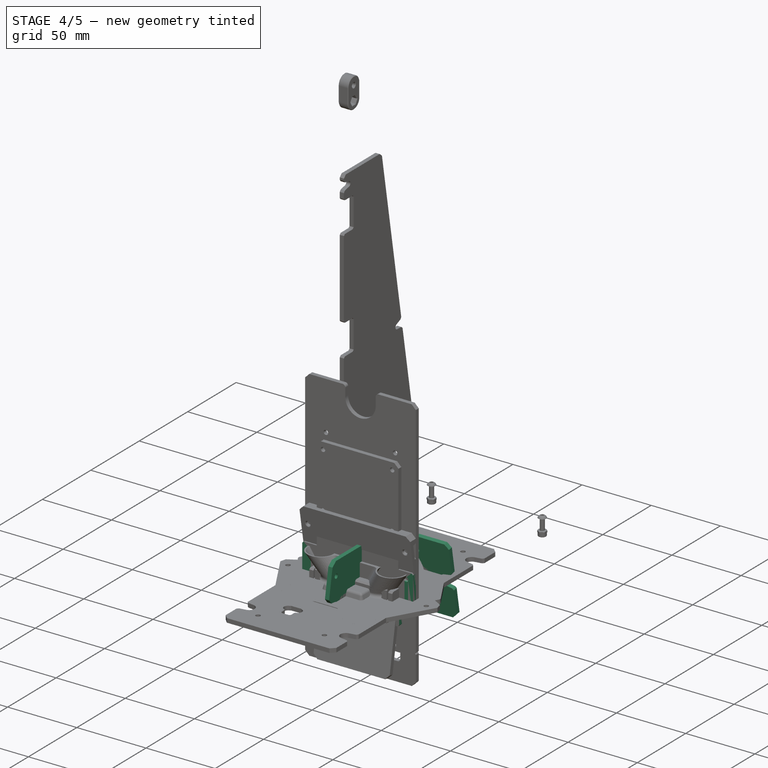
[diagram: stage 4 of 5 — iso view after this stage's code; geometry added in this stage tinted green]
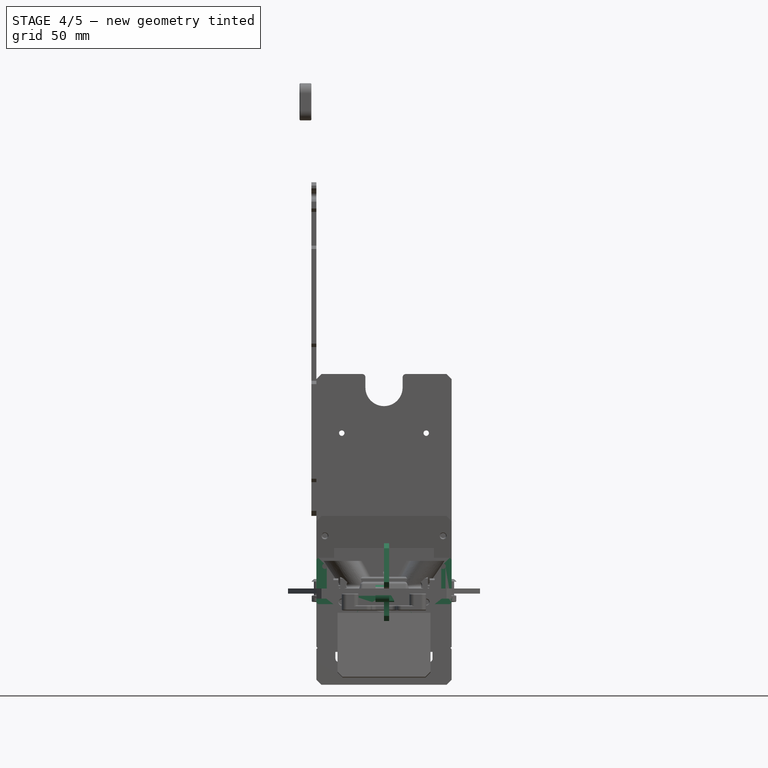
[diagram: stage 4 of 5 — front view after this stage's code; geometry added in this stage tinted green]
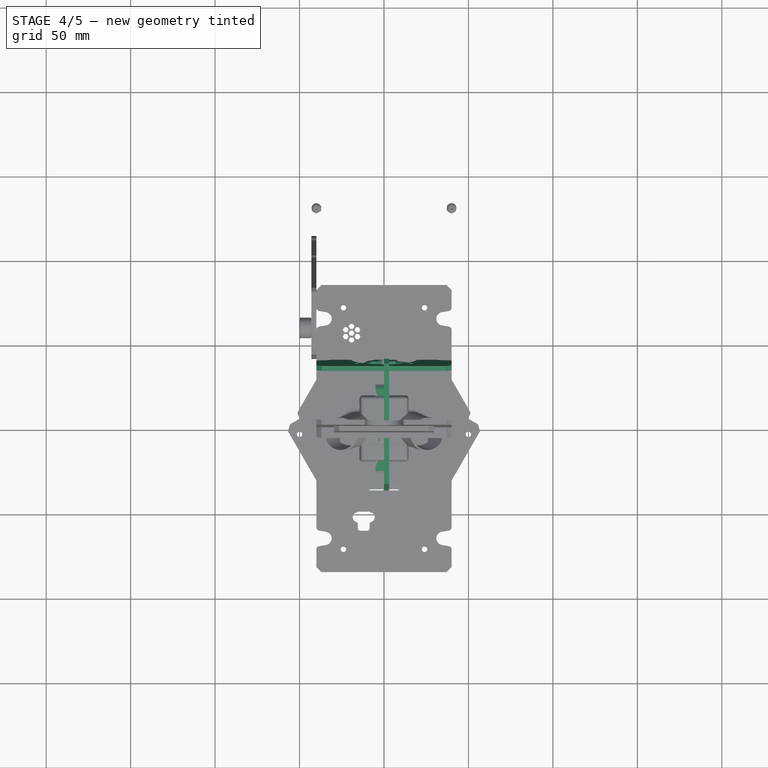
[diagram: stage 4 of 5 — top view after this stage's code; geometry added in this stage tinted green]
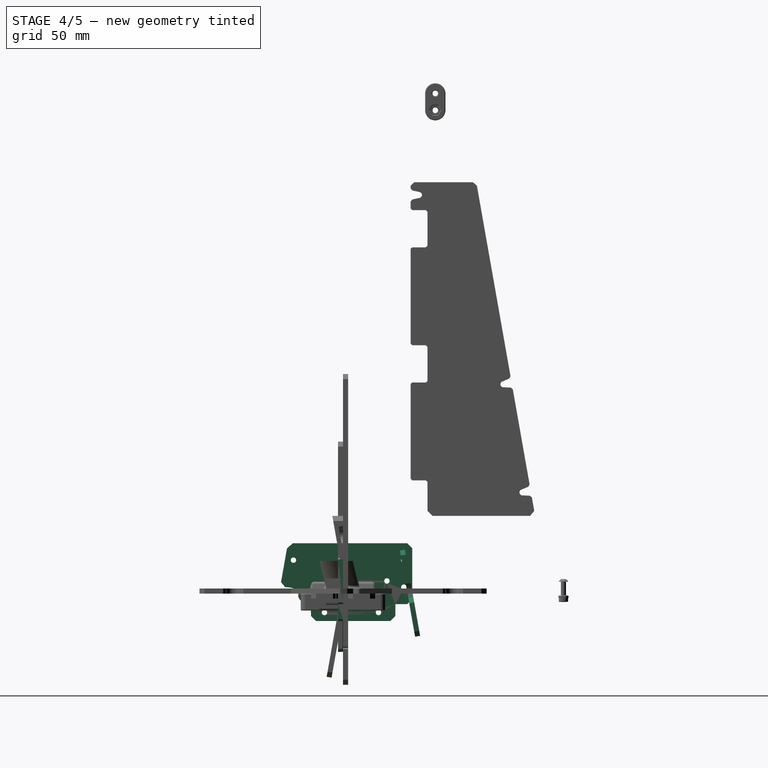
[diagram: stage 4 of 5 — right view after this stage's code; geometry added in this stage tinted green]
FEATURE [PartDesign::Body] Body019  label="Semelle"
  AutoGroupSolids = false
  ClaimAllChildren = false
  ExportMode = 0
  FixShape = 1
  Group = -> [Sketch032,Pad020,Fillet008,Fillet009,Fillet010,Sketch033,Pocket012,PolarPattern013,Sketch034,Pocket,PolarPattern,Fillet011]
  InvalidShape = false
  Origin = -> Origin029
  SingleSolid = true
  Tip = -> Fillet011
  TreeRank = 0
  ValidateShape = false
  _ExportChildren = -> [Pad020,Fillet008,Fillet009,Fillet010,Pocket012,PolarPattern013,Pocket,PolarPattern,Fillet011]
  _GroupVersion = 1
FEATURE [Sketcher::SketchObject] Sketch035
  ArcFitTolerance = 0
  ExternalBSplineMaxDegree = 0
  ExternalBSplineTolerance = 0
  FixShape = 1
  FullyConstrained = true
  InternalTolerance = 1e-06
  InvalidShape = false
  MakeInternals = false
  MapMode = 5
  Placement = pos=(0,0,0) rot=(1,0,0;1.5708rad)
  TreeRank = 0
  ValidateShape = false
  sketch-geometry (26):
    g0: Circle CenterX=0 CenterY=0 CenterZ=0 NormalX=0 NormalY=0 NormalZ=1 AngleXU=0 Radius=11
    g1: LineSegment StartX=-40 StartY=21.2 StartZ=0 EndX=40 EndY=21.2 EndZ=0
    g2: LineSegment StartX=40 StartY=21.2 StartZ=0 EndX=40 EndY=-6.2 EndZ=0
    g3: LineSegment StartX=40 StartY=-6.2 StartZ=0 EndX=30 EndY=-6.2 EndZ=0
    g4: LineSegment StartX=30 StartY=-6.2 StartZ=0 EndX=30 EndY=-16.2 EndZ=0
    g5: LineSegment StartX=30 StartY=-16.2 StartZ=0 EndX=21.5 EndY=-16.2 EndZ=0
    g6: LineSegment StartX=21.5 StartY=-16.2 StartZ=0 EndX=21.5 EndY=-21.2 EndZ=0
    g7: LineSegment StartX=21.5 StartY=-21.2 StartZ=0 EndX=-21.5 EndY=-21.2 EndZ=0
    g8: LineSegment StartX=-21.5 StartY=-21.2 StartZ=0 EndX=-21.5 EndY=-16.2 EndZ=0
    g9: LineSegment StartX=-21.5 StartY=-16.2 StartZ=0 EndX=-30 EndY=-16.2 EndZ=0
    g10: LineSegment StartX=-30 StartY=-16.2 StartZ=0 EndX=-30 EndY=-6.2 EndZ=0
    g11: LineSegment StartX=-30 StartY=-6.2 StartZ=0 EndX=-40 EndY=-6.2 EndZ=0
    g12: LineSegment StartX=-40 StartY=-6.2 StartZ=0 EndX=-40 EndY=21.2 EndZ=0
    g13: LineSegment [constr] StartX=-15.5 StartY=-15.5 StartZ=0 EndX=15.5 EndY=-15.5 EndZ=0
    g14: LineSegment [constr] StartX=15.5 StartY=-15.5 StartZ=0 EndX=15.5 EndY=15.5 EndZ=0
    g15: LineSegment [constr] StartX=15.5 StartY=15.5 StartZ=0 EndX=-15.5 EndY=15.5 EndZ=0
    g16: LineSegment [constr] StartX=-15.5 StartY=15.5 StartZ=0 EndX=-15.5 EndY=-15.5 EndZ=0
    g17: GeomPoint [constr] X=0 Y=0 Z=0
    g18: Circle CenterX=15.5 CenterY=15.5 CenterZ=0 NormalX=0 NormalY=0 NormalZ=1 AngleXU=0 Radius=1.6
    g19: Circle CenterX=-15.5 CenterY=15.5 CenterZ=0 NormalX=0 NormalY=0 NormalZ=1 AngleXU=0 Radius=1.6
    g20: Circle CenterX=-15.5 CenterY=-15.5 CenterZ=0 NormalX=0 NormalY=0 NormalZ=1 AngleXU=0 Radius=1.6
    g21: Circle CenterX=15.5 CenterY=-15.5 CenterZ=0 NormalX=0 NormalY=0 NormalZ=1 AngleXU=0 Radius=1.6
    g22: Circle CenterX=35 CenterY=-1.2 CenterZ=0 NormalX=0 NormalY=0 NormalZ=1 AngleXU=0 Radius=1.6
    g23: Circle CenterX=35 CenterY=16.2 CenterZ=0 NormalX=0 NormalY=0 NormalZ=1 AngleXU=0 Radius=1.6
    g24: Circle CenterX=-35 CenterY=-1.2 CenterZ=0 NormalX=0 NormalY=0 NormalZ=1 AngleXU=0 Radius=1.6
    g25: Circle CenterX=-35 CenterY=16.2 CenterZ=0 NormalX=0 NormalY=0 NormalZ=1 AngleXU=0 Radius=1.6
  constraints (67):
    c: Coincident(g0,g-1)
    c: Diameter(g0) = 22
    c: Horizontal(g1)
    c: Coincident(g1,g2)
    c: Vertical(g2)
    c: Coincident(g2,g3)
    c: Horizontal(g3)
    c: Coincident(g3,g4)
    c: Coincident(g4,g5)
    c: Horizontal(g5)
    c: Coincident(g5,g6)
    c: Vertical(g6)
    c: Coincident(g6,g7)
    c: Coincident(g7,g8)
    c: Vertical(g8)
    c: Coincident(g8,g9)
    c: Horizontal(g9)
    c: Coincident(g9,g10)
    c: Coincident(g10,g11)
    c: Horizontal(g11)
    c: Coincident(g11,g12)
    c: Coincident(g12,g1)
    c: Perpendicular(g1,g12)
    c: Perpendicular(g10,g11)
    c: Perpendicular(g5,g4)
    c: Equal(g3,g11)
    c: Equal(g9,g5)
    c: Equal(g4,g10)
    c: Equal(g8,g6)
    c: Distance(g6,g6) = 5
    c: Distance(g4,g4) = 10
    c: Equal(g3,g4)
    c: Symmetric(g6,g7,g-2)
    c: DistanceX(g7,g7) = 43
    c: DistanceX(g9,g4) = 60
    c: DistanceY(g6,g0) = 21.2
    c: DistanceY(g0,g1) = 21.2
    c: Coincident(g13,g14)
    c: Coincident(g14,g15)
    c: Coincident(g15,g16)
    c: Coincident(g16,g13)
    c: Horizontal(g13)
    c: Horizontal(g15)
    c: Vertical(g14)
    c: Vertical(g16)
    c: Symmetric(g15,g13,g17)
    c: Coincident(g17,g0)
    c: Equal(g14,g15)
    c: Coincident(g18,g14)
    c: Coincident(g19,g15)
    c: Coincident(g20,g13)
    c: Coincident(g21,g13)
    c: Equal(g21,g20)
    c: Equal(g20,g19)
    c: Equal(g19,g18)
    c: Diameter(g18) = 3.2
    c: DistanceX(g15,g15) = 31
    c: Equal(g23,g22)
    c: Diameter(g23) = 3.2
    c: DistanceX(g23,g1) = 5
    c: DistanceY(g23,g1) = 5
    c: DistanceY(g3,g22) = 5
    c: Equal(g25,g24)
    c: Equal(g24,g23)
    c: Symmetric(g25,g23,g-2)
    c: Symmetric(g24,g22,g-2)
    c: Vertical(g22,g23)
FEATURE [PartDesign::Pad] Pad021
  AddSubType = 0
  AutoTaperInnerAngle = true
  CheckUpToFaceLimits = true
  ClaimChildren = false
  Direction = (0,-1,0)
  Fit = 0
  FitJoin = 0
  FixShape = 1
  InnerFit = 0
  InnerFitJoin = 0
  InvalidShape = false
  Length = 3
  Length2 = 10
  NewSolid = false
  Placement = pos=(0,0,0) rot=(1,0,0;1.5708rad)
  Profile = -> Sketch035
  ReferenceAxis = -> Sketch035 [N_Axis]
  Refine = true
  Suppress = false
  TaperInnerAngle = 0
  TaperInnerAngleRev = 0
  TreeRank = 0
  Type = 0
  ValidateShape = true
  _ProfileBasedVersion = 0
FEATURE [PartDesign::Chamfer] Chamfer
  AddSubType = 0
  Angle = 45
  Base = -> Pad021 [Edge17,Edge5,Edge11,Edge2,Edge20,Edge26,Edge32,Edge1]
  BaseFeature = -> Pad021
  ChamferType = 0
  FixShape = 1
  FlipDirection = false
  InvalidShape = false
  NewSolid = false
  Placement = pos=(0,0,0) rot=(1,0,0;1.5708rad)
  Refine = true
  Size = 1
  Size2 = 1
  SupportTransform = false
  Suppress = false
  TreeRank = 0
  UseAllEdges = false
  ValidateShape = true
FEATURE [PartDesign::Chamfer] Chamfer001
  AddSubType = 0
  Angle = 45
  Base = -> Chamfer [Edge57,Edge56,Edge55,Edge58]
  BaseFeature = -> Chamfer
  ChamferType = 0
  FixShape = 1
  FlipDirection = false
  InvalidShape = false
  NewSolid = false
  Placement = pos=(0,0,0) rot=(1,0,0;1.5708rad)
  Refine = true
  Size = 2
  Size2 = 1
  SupportTransform = false
  Suppress = false
  TreeRank = 0
  UseAllEdges = false
  ValidateShape = true
FEATURE [PartDesign::Plane] DatumPlane
  FixShape = 1
  InvalidShape = false
  Length = 77.7158
  MapMode = 5
  MinimumLength = 10
  MinimumWidth = 10
  Placement = pos=(0,0,0) rot=(0.57735,0.57735,0.57735;2.0944rad)
  ResizeMode = 0
  TreeRank = 0
  ValidateShape = false
  Width = 46
FEATURE [Sketcher::SketchObject] Sketch040
  ArcFitTolerance = 0
  ExternalBSplineMaxDegree = 0
  ExternalBSplineTolerance = 0
  FixShape = 1
  FullyConstrained = true
  InternalTolerance = 1e-06
  InvalidShape = false
  MakeInternals = false
  MapMode = 5
  Placement = pos=(0,0,0) rot=(0.57735,0.57735,0.57735;2.0944rad)
  TreeRank = 0
  ValidateShape = false
  sketch-geometry (12):
    g0: LineSegment StartX=41 StartY=-16.2 StartZ=0 EndX=41 EndY=29.8 EndZ=0
    g1: LineSegment StartX=41 StartY=29.8 StartZ=0 EndX=-32.6522 EndY=29.8 EndZ=0
    g2: LineSegment StartX=-32.6522 StartY=29.8 StartZ=0 EndX=-39 EndY=-6.2 EndZ=0
    g3: LineSegment StartX=-39 StartY=-6.2 StartZ=0 EndX=-39 EndY=-16.2 EndZ=0
    g4: LineSegment StartX=-39 StartY=-16.2 StartZ=0 EndX=41 EndY=-16.2 EndZ=0
    g5: Circle CenterX=36 CenterY=19.8 CenterZ=0 NormalX=0 NormalY=0 NormalZ=1 AngleXU=0 Radius=1.6
    g6: Circle CenterX=-29.3384 CenterY=19.8 CenterZ=0 NormalX=0 NormalY=0 NormalZ=1 AngleXU=0 Radius=1.6
    g7: Circle CenterX=21 CenterY=-11.2 CenterZ=0 NormalX=0 NormalY=0 NormalZ=1 AngleXU=0 Radius=1.6
    g8: Circle CenterX=-11 CenterY=-11.2 CenterZ=0 NormalX=0 NormalY=0 NormalZ=1 AngleXU=0 Radius=1.6
    g9: Circle CenterX=5 CenterY=7.5 CenterZ=0 NormalX=0 NormalY=0 NormalZ=1 AngleXU=0 Radius=1.6
    g10: Circle CenterX=26 CenterY=7.5 CenterZ=0 NormalX=0 NormalY=0 NormalZ=1 AngleXU=0 Radius=1.6
    g11: Circle CenterX=36 CenterY=3.8 CenterZ=0 NormalX=0 NormalY=0 NormalZ=1 AngleXU=0 Radius=1.6
  constraints (36):
    c: Vertical(g0)
    c: Coincident(g0,g1)
    c: Horizontal(g1)
    c: Coincident(g1,g2)
    c: Coincident(g2,g3)
    c: Vertical(g3)
    c: Coincident(g3,g4)
    c: Coincident(g4,g0)
    c: Horizontal(g4)
    c: Angle(g2,g1) = 1.74533
    c: DistanceY(g3,g3) = 10
    c: DistanceY(g3,g-1) = 16.2
    c: DistanceX(g3,g-1) = 39
    c: DistanceX(g-1,g0) = 41
    c: DistanceY(g0,g0) = 46
    c: DistanceY(g3,g7) = 5
    c: Equal(g5,g7)
    c: Equal(g7,g6)
    c: Diameter(g5) = 3.2
    c: DistanceY(g5,g0) = 10
    c: DistanceX(g5,g0) = 5
    c: DistanceX(g7,g0) = 20
    c: Distance(g6,g2) = 5
    c: Distance(g6,g1) = 10
    c: Equal(g8,g7)
    c: Horizontal(g8,g7)
    c: DistanceX(g8,g7) = 32
    c: Equal(g9,g10)
    c: Diameter(g9) = 3.2
    c: Horizontal(g9,g10)
    c: DistanceX(g9,g10) = 21
    c: DistanceY(g-1,g9) = 7.5
    c: DistanceX(g-1,g9) = 5
    c: Equal(g11,g7)
    c: Vertical(g11,g5)
    c: DistanceY(g0,g11) = 20
FEATURE [PartDesign::Pad] Pad023
  AddSubType = 0
  AutoTaperInnerAngle = true
  CheckUpToFaceLimits = true
  ClaimChildren = false
  Direction = (1,1e-16,-1e-16)
  Fit = 0
  FitJoin = 0
  FixShape = 1
  InnerFit = 0
  InnerFitJoin = 0
  InvalidShape = false
  Length = 3
  Length2 = 10
  NewSolid = false
  Placement = pos=(0,0,0) rot=(0.57735,0.57735,0.57735;2.0944rad)
  Profile = -> Sketch040
  ReferenceAxis = -> Sketch040 [N_Axis]
  Refine = true
  Suppress = false
  TaperInnerAngle = 0
  TaperInnerAngleRev = 0
  TreeRank = 0
  Type = 0
  ValidateShape = true
  _ProfileBasedVersion = 0
FEATURE [Sketcher::SketchObject] Sketch041
  ArcFitTolerance = 0
  ExternalBSplineMaxDegree = 0
  ExternalBSplineTolerance = 0
  ExternalGeometry = -> [Pad023]
  FixShape = 1
  FullyConstrained = true
  InternalTolerance = 1e-06
  InvalidShape = false
  MakeInternals = false
  MapMode = 5
  Placement = pos=(0,0,0) rot=(0.57735,0.57735,0.57735;2.0944rad)
  TreeRank = 0
  ValidateShape = false
  sketch-geometry (10):
    g0: LineSegment StartX=41 StartY=-16.2 StartZ=0 EndX=41 EndY=-6.2 EndZ=0
    g1: LineSegment StartX=41 StartY=-6.2 StartZ=0 EndX=31 EndY=-6.2 EndZ=0
    g2: LineSegment StartX=31 StartY=-6.2 StartZ=0 EndX=31 EndY=-16.2 EndZ=0
    g3: LineSegment StartX=31 StartY=-16.2 StartZ=0 EndX=41 EndY=-16.2 EndZ=0
    g4: Circle [constr] CenterX=-34 CenterY=-11.2 CenterZ=0 NormalX=0 NormalY=0 NormalZ=1 AngleXU=0 Radius=15
    g5: LineSegment StartX=-39 StartY=-16.2 StartZ=0 EndX=-39 EndY=3.8 EndZ=0
    g6: LineSegment StartX=-39 StartY=3.8 StartZ=0 EndX=-34 EndY=3.8 EndZ=0
    g7: LineSegment StartX=-39 StartY=-16.2 StartZ=0 EndX=-19 EndY=-16.2 EndZ=0
    g8: LineSegment StartX=-19 StartY=-16.2 StartZ=0 EndX=-19 EndY=-11.2 EndZ=0
    g9: ArcOfCircle CenterX=-34 CenterY=-11.2 CenterZ=0 NormalX=0 NormalY=0 NormalZ=1 AngleXU=0 Radius=15 StartAngle=0 EndAngle=1.5708
  constraints (28):
    c: Coincident(g0,g1)
    c: Coincident(g1,g2)
    c: Coincident(g2,g3)
    c: Coincident(g3,g0)
    c: Vertical(g0)
    c: Vertical(g2)
    c: Horizontal(g1)
    c: Horizontal(g3)
    c: Coincident(g0,g-4)
    c: Equal(g1,g2)
    c: Distance(g1,g1) = 10
    c: DistanceX(g-3,g4) = 5
    c: DistanceY(g4,g-3) = 5
    c: Diameter(g4) = 30
    c: Coincident(g-3,g5)
    c: Vertical(g5)
    c: Coincident(g5,g6)
    c: Vertical(g6,g4)
    c: Horizontal(g6)
    c: PointOnObject(g6,g4)
    c: Coincident(g5,g7)
    c: Horizontal(g7)
    c: Coincident(g7,g8)
    c: Vertical(g8)
    c: Horizontal(g8,g4)
    c: Coincident(g9,g4)
    c: Coincident(g9,g8)
    c: Coincident(g9,g6)
FEATURE [PartDesign::Pocket] Pocket016
  AddSubType = 1
  AutoTaperInnerAngle = true
  BaseFeature = -> Pad023
  CheckUpToFaceLimits = true
  ClaimChildren = false
  Direction = (-1,-1e-16,1e-16)
  Fit = 0
  FitJoin = 0
  FixShape = 1
  InnerFit = 0
  InnerFitJoin = 0
  InvalidShape = false
  Length = 5
  Length2 = 5
  NewSolid = false
  Placement = pos=(0,0,0) rot=(0.57735,0.57735,0.57735;2.0944rad)
  Profile = -> Sketch041
  ReferenceAxis = -> Sketch041 [N_Axis]
  Refine = true
  Reversed = true
  Suppress = false
  TaperInnerAngle = 0
  TaperInnerAngleRev = 0
  TreeRank = 0
  Type = 1
  ValidateShape = true
  _ProfileBasedVersion = 0
  _Version = 0
FEATURE [App::Link] Link029  label="SideMotorPlateRight"
  AutoLinkLabel = false
  AutoPlacement = true
  LinkPlacement = pos=(-43,0,0) rot=(0,0,1;0rad)
  LinkedObject = -> Body023
  Placement = pos=(-43,0,0) rot=(0,0,1;0rad)
  SyncGroupVisibility = false
  TreeRank = 0
  _LinkVersion = 1
FEATURE [PartDesign::Chamfer] Chamfer005
  AddSubType = 0
  Angle = 45
  Base = -> Pocket016 [Edge20,Edge41,Edge38,Edge2,Edge4,Edge37]
  BaseFeature = -> Pocket016
  ChamferType = 0
  FixShape = 1
  FlipDirection = false
  InvalidShape = false
  NewSolid = false
  Placement = pos=(0,0,0) rot=(0.57735,0.57735,0.57735;2.0944rad)
  Refine = true
  Size = 3
  Size2 = 1
  SupportTransform = false
  Suppress = false
  TreeRank = 0
  UseAllEdges = false
  ValidateShape = true
FEATURE [App::Link] Link034  label="Link034(Lifter)"
  AutoLinkLabel = true
  AutoPlacement = true
  LinkedObject = -> <external ../actuators/lifter.FCStd>#Part010
  SyncGroupVisibility = false
  TreeRank = 310
  _LinkVersion = 1
FEATURE [App::VRMLObject] DriverBoard_2025  label="DriverBoard-2025"
  TreeRank = 317
FEATURE [App::Part] Part023  label="DriverBoard-2025-PCB"
  ClaimAllChildren = false
  ExportMode = 1
  Group = -> [DriverBoard_2025]
  Origin = -> Origin069
  Placement = pos=(8.6e-15,70,73) rot=(0,0.707107,0.707107;3.14159rad)
  TreeRank = 316
  _ExportChildren = -> [DriverBoard_2025]
  _GroupVersion = 1
FEATURE [Sketcher::SketchObject] Sketch061
  ArcFitTolerance = 1e-06
  AttachmentSupport = -> [YZ_Plane056]
  ExternalBSplineMaxDegree = 5
  ExternalBSplineTolerance = 0.0001
  FixShape = 1
  FullyConstrained = true
  InternalTolerance = 1e-06
  InvalidShape = false
  MakeInternals = false
  MapMode = 5
  Placement = pos=(0,0,0) rot=(0.57735,0.57735,0.57735;2.0944rad)
  Support = -> [YZ_Plane056]
  TreeRank = 355
  ValidateShape = false
  sketch-geometry (4):
    g0: LineSegment StartX=0 StartY=-25.5 StartZ=0 EndX=0 EndY=25.5 EndZ=0
    g1: LineSegment StartX=0 StartY=25.5 StartZ=0 EndX=33.6773 EndY=25.5 EndZ=0
    g2: LineSegment StartX=33.6773 StartY=25.5 StartZ=0 EndX=42.67 EndY=-25.5 EndZ=0
    g3: LineSegment StartX=42.67 StartY=-25.5 StartZ=0 EndX=0 EndY=-25.5 EndZ=0
  constraints (11):
    c: PointOnObject(g0,g-2)
    c: Coincident(g0,g1)
    c: Horizontal(g1)
    c: Coincident(g1,g2)
    c: Coincident(g2,g3)
    c: Coincident(g3,g0)
    c: Horizontal(g3)
    c: DistanceY(g0,g-1) = 25.5
    c: Symmetric(g0,g0,g-1)
    c: Angle(g2,g3) = 1.39626
    c: DistanceX(g3,g3) = 42.67
FEATURE [PartDesign::Pad] Pad035
  AddSubType = 0
  AlongSketchNormal = false
  AutoTaperInnerAngle = true
  CheckUpToFaceLimits = true
  ClaimChildren = false
  Direction = (1,-2e-16,3e-16)
  Fit = 0
  FitJoin = 0
  FixShape = 1
  InnerFit = 0
  InnerFitJoin = 0
  InvalidShape = false
  Length = 60
  Length2 = 10
  Linearize = true
  Midplane = true
  NewSolid = false
  Profile = -> Sketch061
  ReferenceAxis = -> Sketch061 [N_Axis]
  Refine = true
  Suppress = false
  TaperInnerAngle = 0
  TaperInnerAngleRev = 0
  TreeRank = 356
  Type = 0
  ValidateShape = true
  _ProfileBasedVersion = 1
FEATURE [Sketcher::SketchObject] Sketch062
  ArcFitTolerance = 1e-06
  AttachmentSupport = -> [YZ_Plane056]
  ExternalBSplineMaxDegree = 5
  ExternalBSplineTolerance = 0.0001
  ExternalGeometry = -> [Pad035]
  FixShape = 1
  FullyConstrained = true
  InternalTolerance = 1e-06
  InvalidShape = false
  MakeInternals = false
  MapMode = 5
  Placement = pos=(0,0,0) rot=(0.57735,0.57735,0.57735;2.0944rad)
  Support = -> [YZ_Plane056]
  TreeRank = 357
  ValidateShape = false
  sketch-geometry (4):
    g0: LineSegment StartX=0 StartY=-14.5 StartZ=0 EndX=0 EndY=14.5 EndZ=0
    g1: LineSegment StartX=0 StartY=14.5 StartZ=0 EndX=25.4627 EndY=14.5 EndZ=0
    g2: LineSegment StartX=25.4627 StartY=14.5 StartZ=0 EndX=30.5761 EndY=-14.5 EndZ=0
    g3: LineSegment StartX=30.5761 StartY=-14.5 StartZ=0 EndX=0 EndY=-14.5 EndZ=0
  constraints (11):
    c: PointOnObject(g0,g-2)
    c: Coincident(g0,g1)
    c: Horizontal(g1)
    c: Coincident(g1,g2)
    c: Coincident(g2,g3)
    c: Coincident(g3,g0)
    c: Horizontal(g3)
    c: Symmetric(g0,g0,g-1)
    c: Parallel(g2,g-3)
    c: Distance(g1,g-3) = 10
    c: DistanceY(g-1,g0) = 14.5
FEATURE [PartDesign::Pocket] Pocket022
  AddSubType = 1
  AlongSketchNormal = false
  AutoTaperInnerAngle = true
  BaseFeature = -> Pad035
  CheckUpToFaceLimits = true
  ClaimChildren = false
  Direction = (-1,2e-16,-3e-16)
  Fit = 0
  FitJoin = 0
  FixShape = 1
  InnerFit = 0
  InnerFitJoin = 0
  InvalidShape = false
  Length = 5
  Length2 = 10
  Linearize = true
  Midplane = true
  NewSolid = false
  Profile = -> Sketch062
  ReferenceAxis = -> Sketch062 [N_Axis]
  Refine = true
  Suppress = false
  TaperInnerAngle = 0
  TaperInnerAngleRev = 0
  TreeRank = 358
  Type = 1
  ValidateShape = true
  _ProfileBasedVersion = 1
  _Version = 1
FEATURE [Sketcher::SketchObject] Sketch063
  ArcFitTolerance = 1e-06
  AttachmentSupport = -> [YZ_Plane056]
  ExternalBSplineMaxDegree = 5
  ExternalBSplineTolerance = 0.0001
  ExternalGeometry = -> [Pocket022]
  FixShape = 1
  FullyConstrained = true
  InternalTolerance = 1e-06
  InvalidShape = false
  MakeInternals = false
  MapMode = 5
  Placement = pos=(0,0,0) rot=(0.57735,0.57735,0.57735;2.0944rad)
  Support = -> [YZ_Plane056]
  TreeRank = 359
  ValidateShape = false
  sketch-geometry (4):
    g0: LineSegment StartX=0 StartY=-25.5 StartZ=0 EndX=0 EndY=25.5 EndZ=0
    g1: LineSegment StartX=0 StartY=25.5 StartZ=0 EndX=23.5231 EndY=25.5 EndZ=0
    g2: LineSegment StartX=23.5231 StartY=25.5 StartZ=0 EndX=32.5157 EndY=-25.5 EndZ=0
    g3: LineSegment StartX=32.5157 StartY=-25.5 StartZ=0 EndX=0 EndY=-25.5 EndZ=0
  constraints (10):
    c: Coincident(g0,g1)
    c: Horizontal(g1)
    c: Coincident(g1,g2)
    c: Coincident(g2,g3)
    c: Coincident(g3,g0)
    c: Horizontal(g3)
    c: PointOnObject(g-3,g2)
    c: PointOnObject(g-3,g2)
    c: Coincident(g0,g-4)
    c: Symmetric(g0,g0,g-1)
FEATURE [PartDesign::Pocket] Pocket023
  AddSubType = 1
  AlongSketchNormal = false
  AutoTaperInnerAngle = true
  BaseFeature = -> Pocket022
  CheckUpToFaceLimits = true
  ClaimChildren = false
  Direction = (-1,2e-16,-3e-16)
  Fit = 0
  FitJoin = 0
  FixShape = 1
  InnerFit = 0
  InnerFitJoin = 0
  InvalidShape = false
  Length = 40
  Length2 = 10
  Linearize = true
  Midplane = true
  NewSolid = false
  Profile = -> Sketch063
  ReferenceAxis = -> Sketch063 [N_Axis]
  Refine = true
  Suppress = false
  TaperInnerAngle = 0
  TaperInnerAngleRev = 0
  TreeRank = 360
  Type = 0
  ValidateShape = true
  _ProfileBasedVersion = 1
  _Version = 1
FEATURE [Sketcher::SketchObject] Sketch064
  ArcFitTolerance = 1e-06
  AttachmentSupport = -> [Pocket023]
  ExternalBSplineMaxDegree = 5
  ExternalBSplineTolerance = 0.0001
  ExternalGeometry = -> [Pocket023]
  FixShape = 1
  FullyConstrained = true
  InternalTolerance = 1e-06
  InvalidShape = false
  MakeInternals = false
  MapMode = 5
  Placement = pos=(6.4e-15,37.0226,6.52808) rot=(0,0.642788,0.766044;3.14159rad)
  Support = -> [Pocket023]
  TreeRank = 361
  ValidateShape = false
  sketch-geometry (6):
    g0: LineSegment [constr] StartX=-30 StartY=-32.5222 StartZ=0 EndX=30 EndY=19.2646 EndZ=0
    g1: LineSegment StartX=20 StartY=13.3712 StartZ=0 EndX=-20 EndY=13.3712 EndZ=0
    g2: LineSegment StartX=-20 StartY=13.3712 StartZ=0 EndX=-20 EndY=-26.6288 EndZ=0
    g3: LineSegment StartX=-20 StartY=-26.6288 StartZ=0 EndX=20 EndY=-26.6288 EndZ=0
    g4: LineSegment StartX=20 StartY=-26.6288 StartZ=0 EndX=20 EndY=13.3712 EndZ=0
    g5: Circle [constr] CenterX=-1.5e-15 CenterY=-6.62879 CenterZ=0 NormalX=0 NormalY=0 NormalZ=1 AngleXU=0 Radius=28.2843
  constraints (16):
    c: Coincident(g0,g-4)
    c: Coincident(g0,g-3)
    c: Coincident(g1,g2)
    c: Coincident(g2,g3)
    c: Coincident(g3,g4)
    c: Coincident(g4,g1)
    c: Equal(g1,g2)
    c: Equal(g1,g3)
    c: Equal(g1,g4)
    c: PointOnObject(g1,g5)
    c: PointOnObject(g2,g5)
    c: PointOnObject(g3,g5)
    c: PointOnObject(g4,g5)
    c: Symmetric(g-4,g-3,g5)
    c: DistanceY(g4,g4) = 40
    c: Horizontal(g1)
FEATURE [PartDesign::Pocket] Pocket024
  AddSubType = 1
  AlongSketchNormal = false
  AutoTaperInnerAngle = true
  BaseFeature = -> Pocket023
  CheckUpToFaceLimits = true
  ClaimChildren = false
  Direction = (-2e-16,-0.984808,-0.173648)
  Fit = 0
  FitJoin = 0
  FixShape = 1
  InnerFit = 0
  InnerFitJoin = 0
  InvalidShape = false
  Length = 10
  Length2 = 10
  Linearize = true
  NewSolid = false
  Profile = -> Sketch064
  ReferenceAxis = -> Sketch064 [N_Axis]
  Refine = true
  Suppress = false
  TaperInnerAngle = 0
  TaperInnerAngleRev = 0
  TreeRank = 362
  Type = 0
  ValidateShape = true
  _ProfileBasedVersion = 1
  _Version = 1
FEATURE [Sketcher::SketchObject] Sketch065
  ArcFitTolerance = 1e-06
  AttachmentSupport = -> [Pocket024]
  ExternalBSplineMaxDegree = 5
  ExternalBSplineTolerance = 0.0001
  ExternalGeometry = -> [Pocket024]
  FixShape = 1
  FullyConstrained = true
  InternalTolerance = 1e-06
  InvalidShape = false
  MakeInternals = false
  MapMode = 5
  Placement = pos=(6.4e-15,37.0226,6.52808) rot=(0,0.642788,0.766044;3.14159rad)
  Support = -> [Pocket024]
  TreeRank = 363
  ValidateShape = false
  sketch-geometry (3):
    g0: Circle CenterX=-25 CenterY=-6.62879 CenterZ=0 NormalX=0 NormalY=0 NormalZ=1 AngleXU=0 Radius=2.15
    g1: Circle CenterX=25 CenterY=-6.62879 CenterZ=0 NormalX=0 NormalY=0 NormalZ=1 AngleXU=0 Radius=2.15
    g2: LineSegment [constr] StartX=25 StartY=-32.5222 StartZ=0 EndX=25 EndY=19.2646 EndZ=0
  constraints (8):
    c: Symmetric(g1,g0,g-2)
    c: Equal(g0,g1)
    c: Diameter(g1) = 4.3
    c: DistanceX(g1,g-3) = 5
    c: PointOnObject(g2,g-4)
    c: PointOnObject(g2,g-3)
    c: Vertical(g2)
    c: Symmetric(g2,g2,g1)
FEATURE [PartDesign::Pocket] Pocket025
  AddSubType = 1
  AlongSketchNormal = false
  AutoTaperInnerAngle = true
  BaseFeature = -> Pocket024
  CheckUpToFaceLimits = true
  ClaimChildren = false
  Direction = (-2e-16,-0.984808,-0.173648)
  Fit = 0
  FitJoin = 0
  FixShape = 1
  InnerFit = 0
  InnerFitJoin = 0
  InvalidShape = false
  Length = 12
  Length2 = 10
  Linearize = true
  NewSolid = false
  Profile = -> Sketch065
  ReferenceAxis = -> Sketch065 [N_Axis]
  Refine = true
  Suppress = false
  TaperInnerAngle = 0
  TaperInnerAngleRev = 0
  TreeRank = 364
  Type = 0
  ValidateShape = true
  _ProfileBasedVersion = 1
  _Version = 1
FEATURE [Sketcher::SketchObject] Sketch066
  ArcFitTolerance = 1e-06
  AttachmentSupport = -> [XZ_Plane056]
  ExternalBSplineMaxDegree = 5
  ExternalBSplineTolerance = 0.0001
  FixShape = 1
  FullyConstrained = true
  InternalTolerance = 1e-06
  InvalidShape = false
  MakeInternals = false
  MapMode = 5
  Placement = pos=(0,0,0) rot=(1,0,0;1.5708rad)
  Support = -> [XZ_Plane056]
  TreeRank = 365
  ValidateShape = false
  sketch-geometry (9):
    g0: LineSegment [constr] StartX=-24 StartY=-18.5 StartZ=0 EndX=-24 EndY=18.5 EndZ=0
    g1: LineSegment [constr] StartX=-24 StartY=18.5 StartZ=0 EndX=24 EndY=18.5 EndZ=0
    g2: LineSegment [constr] StartX=24 StartY=18.5 StartZ=0 EndX=24 EndY=-18.5 EndZ=0
    g3: LineSegment [constr] StartX=24 StartY=-18.5 StartZ=0 EndX=-24 EndY=-18.5 EndZ=0
    g4: GeomPoint [constr] X=0 Y=0 Z=0
    g5: Circle CenterX=-24 CenterY=18.5 CenterZ=0 NormalX=0 NormalY=0 NormalZ=1 AngleXU=0 Radius=2.15
    g6: Circle CenterX=24 CenterY=18.5 CenterZ=0 NormalX=0 NormalY=0 NormalZ=1 AngleXU=0 Radius=2.15
    g7: Circle CenterX=24 CenterY=-18.5 CenterZ=0 NormalX=0 NormalY=0 NormalZ=1 AngleXU=0 Radius=2.15
    g8: Circle CenterX=-24 CenterY=-18.5 CenterZ=0 NormalX=0 NormalY=0 NormalZ=1 AngleXU=0 Radius=2.15
  constraints (20):
    c: Coincident(g0,g1)
    c: Coincident(g1,g2)
    c: Coincident(g2,g3)
    c: Coincident(g3,g0)
    c: Horizontal(g1)
    c: Horizontal(g3)
    c: Vertical(g0)
    c: Vertical(g2)
    c: Symmetric(g1,g0,g4)
    c: Coincident(g4,g-1)
    c: Coincident(g5,g0)
    c: Coincident(g6,g1)
    c: Coincident(g7,g2)
    c: Coincident(g8,g0)
    c: Equal(g8,g5)
    c: Equal(g8,g6)
    c: Equal(g8,g7)
    c: Diameter(g8) = 4.3
    c: DistanceX(g5,g4) = 24
    c: DistanceY(g4,g5) = 18.5
FEATURE [PartDesign::Pocket] Pocket026
  AddSubType = 1
  AlongSketchNormal = false
  AutoTaperInnerAngle = true
  BaseFeature = -> Pocket025
  CheckUpToFaceLimits = true
  ClaimChildren = false
  Direction = (0,1,-2e-16)
  Fit = 0
  FitJoin = 0
  FixShape = 1
  InnerFit = 0
  InnerFitJoin = 0
  InvalidShape = false
  Length = 10
  Length2 = 10
  Linearize = true
  NewSolid = false
  Profile = -> Sketch066
  ReferenceAxis = -> Sketch066 [N_Axis]
  Refine = true
  Suppress = false
  TaperInnerAngle = 0
  TaperInnerAngleRev = 0
  TreeRank = 366
  Type = 0
  ValidateShape = true
  _ProfileBasedVersion = 1
  _Version = 1
FEATURE [PartDesign::Fillet] Fillet021
  AddSubType = 0
  Base = -> Pocket026 [Edge53,Edge51,Edge19,Edge28]
  BaseFeature = -> Pocket026
  FixShape = 1
  InvalidShape = false
  NewSolid = false
  Radius = 3
  Refine = true
  SupportTransform = false
  Suppress = false
  TreeRank = 367
  UseAllEdges = false
  ValidateShape = true
FEATURE [PartDesign::Chamfer] Chamfer014
  AddSubType = 0
  Angle = 45
  Base = -> Fillet021 [Edge46,Edge15,Edge17,Edge33]
  BaseFeature = -> Fillet021
  ChamferType = 0
  FixShape = 1
  FlipDirection = false
  InvalidShape = false
  NewSolid = false
  Refine = true
  Size = 3
  Size2 = 1
  SupportTransform = false
  Suppress = false
  TreeRank = 368
  UseAllEdges = false
  ValidateShape = true
FEATURE [PartDesign::Chamfer] Chamfer015
  AddSubType = 0
  Angle = 45
  Base = -> Chamfer014 [Face9,Face32,Face13,Face1,Face17,Edge90,Edge52]
  BaseFeature = -> Chamfer014
  ChamferType = 0
  FixShape = 1
  FlipDirection = false
  InvalidShape = false
  NewSolid = false
  Refine = true
  Size = 0.4
  Size2 = 1
  SupportTransform = false
  Suppress = false
  TreeRank = 369
  UseAllEdges = false
  ValidateShape = true
FEATURE [PartDesign::Body] Body030  label="Support-DriverBoard"
  AutoGroupSolids = false
  ClaimAllChildren = false
  ExportMode = 0
  FixShape = 1
  Group = -> [Sketch061,Pad035,Sketch062,Pocket022,Sketch063,Pocket023,Sketch064,Pocket024,Sketch065,Pocket025,Sketch066,Pocket026,Fillet021,Chamfer014,Chamfer015]
  InvalidShape = false
  Origin = -> Origin071
  SingleSolid = true
  Tip = -> Chamfer015
  TreeRank = 354
  ValidateShape = false
  _ExportChildren = -> [Pad035,Pocket022,Pocket023,Pocket024,Pocket025,Pocket026,Fillet021,Chamfer014,Chamfer015]
  _GroupVersion = 1
FEATURE [PartDesign::SubShapeBinder] Binder003  label="Binder003(Chamfer014)"
  BindCopyOnChange = 0
  BindMode = 0
  ClaimChildren = false
  Context = -> Group003 [Part022.Part024.Body031.Binder003.]
  EdgeTolerance = 1e-06
  FillStyle = 0
  FixShape = 1
  Fuse = false
  InvalidShape = false
  MakeFace = true
  MergeEdges = true
  OffsetFill = false
  OffsetIntersection = false
  OffsetJoinType = 0
  OffsetOpenResult = false
  Outline = false
  PartialLoad = false
  Relative = true
  SplitEdges = false
  Support = -> [Body030[Chamfer014.Face9]]
  TightBound = false
  TreeRank = 380
  ValidateShape = false
  _Version = 8
FEATURE [Sketcher::SketchObject] Sketch067
  ArcFitTolerance = 1e-06
  AttachmentSupport = -> [Binder003]
  ExternalBSplineMaxDegree = 5
  ExternalBSplineTolerance = 0.0001
  ExternalGeometry = -> [Binder003]
  FixShape = 1
  FullyConstrained = true
  InternalTolerance = 1e-06
  InvalidShape = false
  MakeInternals = false
  MapMode = 5
  Placement = pos=(6.4e-15,37.0226,6.52808) rot=(0,0.642788,0.766044;3.14159rad)
  Support = -> [Binder003]
  TreeRank = 381
  ValidateShape = false
  sketch-geometry (18):
    g0: LineSegment [constr] StartX=-20 StartY=-26.6288 StartZ=0 EndX=20 EndY=13.3712 EndZ=0
    g1: LineSegment [constr] StartX=16 StartY=-22.6288 StartZ=0 EndX=16 EndY=9.37121 EndZ=0
    g2: LineSegment [constr] StartX=16 StartY=9.37121 StartZ=0 EndX=-16 EndY=9.37121 EndZ=0
    g3: LineSegment [constr] StartX=-16 StartY=9.37121 StartZ=0 EndX=-16 EndY=-22.6288 EndZ=0
    g4: LineSegment [constr] StartX=-16 StartY=-22.6288 StartZ=0 EndX=16 EndY=-22.6288 EndZ=0
    g5: Circle [constr] CenterX=-1.5e-15 CenterY=-6.62879 CenterZ=0 NormalX=0 NormalY=0 NormalZ=1 AngleXU=0 Radius=22.6274
    g6: Circle CenterX=-25 CenterY=-6.62879 CenterZ=0 NormalX=0 NormalY=0 NormalZ=1 AngleXU=0 Radius=1.6
    g7: Circle CenterX=25 CenterY=-6.62879 CenterZ=0 NormalX=0 NormalY=0 NormalZ=1 AngleXU=0 Radius=1.6
    g8: Circle CenterX=16 CenterY=-22.6288 CenterZ=0 NormalX=0 NormalY=0 NormalZ=1 AngleXU=0 Radius=1.6
    g9: Circle CenterX=-16 CenterY=-22.6288 CenterZ=0 NormalX=0 NormalY=0 NormalZ=1 AngleXU=0 Radius=1.6
    g10: Circle CenterX=-16 CenterY=9.37121 CenterZ=0 NormalX=0 NormalY=0 NormalZ=1 AngleXU=0 Radius=1.6
    g11: Circle CenterX=16 CenterY=9.37121 CenterZ=0 NormalX=0 NormalY=0 NormalZ=1 AngleXU=0 Radius=1.6
    g12: LineSegment StartX=-40 StartY=19.2646 StartZ=0 EndX=40 EndY=19.2646 EndZ=0
    g13: LineSegment StartX=40 StartY=19.2646 StartZ=0 EndX=40 EndY=-32.5222 EndZ=0
    g14: LineSegment StartX=40 StartY=-32.5222 StartZ=0 EndX=-40 EndY=-32.5222 EndZ=0
    g15: LineSegment StartX=-40 StartY=-32.5222 StartZ=0 EndX=-40 EndY=19.2646 EndZ=0
    g16: Circle CenterX=-1.5e-15 CenterY=-6.62879 CenterZ=0 NormalX=0 NormalY=0 NormalZ=1 AngleXU=0 Radius=19.6274
    g17: Circle [constr] CenterX=16 CenterY=9.37121 CenterZ=0 NormalX=0 NormalY=0 NormalZ=1 AngleXU=0 Radius=3
  constraints (43):
    c: Coincident(g0,g-8)
    c: Coincident(g0,g-7)
    c: Coincident(g1,g2)
    c: Coincident(g2,g3)
    c: Coincident(g3,g4)
    c: Coincident(g4,g1)
    c: Equal(g1,g2)
    c: Equal(g1,g3)
    c: Equal(g1,g4)
    c: PointOnObject(g1,g5)
    c: PointOnObject(g2,g5)
    c: PointOnObject(g3,g5)
    c: PointOnObject(g4,g5)
    c: PointOnObject(g1,g0)
    c: DistanceX(g2,g2) = 32
    c: Coincident(g6,g-5)
    c: Coincident(g7,g-6)
    c: Coincident(g8,g1)
    c: Coincident(g9,g3)
    c: Coincident(g10,g2)
    c: Coincident(g11,g1)
    c: Equal(g11,g7)
    c: Equal(g7,g8)
    c: Equal(g8,g9)
    c: Equal(g9,g6)
    c: Equal(g6,g10)
    c: Diameter(g7) = 3.2
    c: Symmetric(g-8,g-7,g5)
    c: Coincident(g12,g13)
    c: Coincident(g13,g14)
    c: Coincident(g14,g15)
    c: Coincident(g15,g12)
    c: Horizontal(g14)
    c: Vertical(g13)
    c: Vertical(g15)
    c: PointOnObject(g-3,g12)
    c: PointOnObject(g-4,g14)
    c: Symmetric(g12,g12,g-2)
    c: DistanceX(g12,g12) = 80
    c: Coincident(g16,g5)
    c: Coincident(g17,g11)
    c: Tangent(g17,g16)
    c: Diameter(g17) = 6
FEATURE [PartDesign::Pad] Pad036
  AddSubType = 0
  AlongSketchNormal = false
  AutoTaperInnerAngle = true
  CheckUpToFaceLimits = true
  ClaimChildren = false
  Direction = (2e-16,0.984808,0.173648)
  Fit = 0
  FitJoin = 0
  FixShape = 1
  InnerFit = 0
  InnerFitJoin = 0
  InvalidShape = false
  Length = 3
  Length2 = 10
  Linearize = true
  NewSolid = false
  Profile = -> Sketch067
  ReferenceAxis = -> Sketch067 [N_Axis]
  Refine = true
  Suppress = false
  TaperInnerAngle = 0
  TaperInnerAngleRev = 0
  TreeRank = 382
  Type = 0
  ValidateShape = true
  _ProfileBasedVersion = 1
FEATURE [Sketcher::SketchObject] Sketch068
  ArcFitTolerance = 1e-06
  AttachmentSupport = -> [Pad036]
  ExternalBSplineMaxDegree = 5
  ExternalBSplineTolerance = 0.0001
  ExternalGeometry = -> [Pad036]
  FixShape = 1
  FullyConstrained = true
  InternalTolerance = 1e-06
  InvalidShape = false
  MakeInternals = false
  MapMode = 5
  Placement = pos=(6.7e-15,37.0226,6.52808) rot=(1,0,0;1.74533rad)
  Support = -> [Pad036]
  TreeRank = 383
  ValidateShape = false
  sketch-geometry (5):
    g0: ArcOfCircle CenterX=-40.8541 CenterY=-6.62879 CenterZ=0 NormalX=0 NormalY=0 NormalZ=1 AngleXU=0 Radius=5 StartAngle=1.39913 EndAngle=4.88405
    g1: ArcOfCircle CenterX=-35 CenterY=-6.62879 CenterZ=0 NormalX=0 NormalY=0 NormalZ=1 AngleXU=0 Radius=4 StartAngle=4.88405 EndAngle=7.68232
    g2: LineSegment StartX=-40 StartY=-11.5553 StartZ=0 EndX=-34.3167 EndY=-10.57 EndZ=0
    g3: LineSegment StartX=-34.3167 StartY=-2.68758 StartZ=0 EndX=-40 EndY=-1.70228 EndZ=0
    g4: LineSegment [constr] StartX=-35 StartY=-6.62879 StartZ=0 EndX=-40.8541 EndY=-6.62879 EndZ=0
  constraints (11):
    c: Tangent(g0,g2) = -1.5708
    c: Tangent(g2,g1) = -1.5708
    c: Tangent(g1,g3) = -1.5708
    c: Tangent(g3,g0) = -1.5708
    c: PointOnObject(g0,g-3)
    c: Radius(g1) = 4
    c: DistanceX(g0,g1) = 5
    c: Radius(g0) = 5
    c: Coincident(g4,g1)
    c: Coincident(g4,g0)
    c: Symmetric(g-3,g-3,g4)
FEATURE [PartDesign::Pocket] Pocket027
  AddSubType = 1
  AlongSketchNormal = false
  AutoTaperInnerAngle = true
  BaseFeature = -> Pad036
  CheckUpToFaceLimits = true
  ClaimChildren = false
  Direction = (2e-16,0.984808,0.173648)
  Fit = 0
  FitJoin = 0
  FixShape = 1
  InnerFit = 0
  InnerFitJoin = 0
  InvalidShape = false
  Length = 5
  Length2 = 10
  Linearize = true
  NewSolid = false
  Profile = -> Sketch068
  ReferenceAxis = -> Sketch068 [N_Axis]
  Refine = true
  Suppress = false
  TaperInnerAngle = 0
  TaperInnerAngleRev = 0
  TreeRank = 384
  Type = 1
  ValidateShape = true
  _ProfileBasedVersion = 1
  _Version = 1
FEATURE [PartDesign::Mirrored] Mirrored002
  AddSubType = 0
  BaseFeature = -> Pocket027
  CopyShape = false
  FixShape = 1
  HideBaseFeature = false
  InvalidShape = false
  MirrorPlane = -> Sketch068 [V_Axis]
  NewSolid = false
  OffsetBaseFeature = true
  OriginalSubs = -> [Pocket027]
  Originals = -> [Pocket027]
  ParallelTransform = true
  Refine = true
  SubTransform = true
  Suppress = false
  TreeRank = 385
  ValidateShape = true
  _Version = 4
FEATURE [PartDesign::Chamfer] Chamfer016
  AddSubType = 0
  Angle = 45
  Base = -> Mirrored002 [Edge9,Edge46,Edge7,Edge49]
  BaseFeature = -> Mirrored002
  ChamferType = 0
  FixShape = 1
  FlipDirection = false
  InvalidShape = false
  NewSolid = false
  Refine = true
  Size = 1
  Size2 = 1
  SupportTransform = false
  Suppress = false
  TreeRank = 386
  UseAllEdges = false
  ValidateShape = true
FEATURE [PartDesign::Chamfer] Chamfer017
  AddSubType = 0
  Angle = 45
  Base = -> Chamfer016 [Edge29,Edge59,Edge3,Edge61]
  BaseFeature = -> Chamfer016
  ChamferType = 0
  FixShape = 1
  FlipDirection = false
  InvalidShape = false
  NewSolid = false
  Refine = true
  Size = 3
  Size2 = 1
  SupportTransform = false
  Suppress = false
  TreeRank = 387
  UseAllEdges = false
  ValidateShape = true
FEATURE [Part::Feature] path1003  label="K-Logo"
  FixShape = 1
  InvalidShape = false
  Placement = pos=(8.27478,39.4753,9.89456) rot=(0,0.642788,0.766044;3.14159rad)
  TreeRank = 398
  ValidateShape = false
  shape: bbox 18.96 x 3.482 x 19.75 mm, 1 faces, 0 solids (baked)
FEATURE [PartDesign::SubShapeBinder] Binder004  label="Binder004(K-Logo)"
  BindCopyOnChange = 0
  BindMode = 0
  ClaimChildren = false
  Context = -> Group003 [Part022.Part024.Body031.Binder004.]
  EdgeTolerance = 1e-06
  FillStyle = 0
  FixShape = 1
  Fuse = false
  InvalidShape = false
  MakeFace = true
  MergeEdges = true
  OffsetFill = false
  OffsetIntersection = false
  OffsetJoinType = 0
  OffsetOpenResult = false
  Outline = false
  PartialLoad = false
  Relative = true
  SplitEdges = false
  Support = -> [path1003]
  TightBound = false
  TreeRank = 399
  ValidateShape = false
  _Version = 8
FEATURE [PartDesign::Pad] Pad037
  AddSubType = 0
  AlongSketchNormal = false
  AutoTaperInnerAngle = true
  BaseFeature = -> Chamfer017
  CheckUpToFaceLimits = true
  ClaimChildren = false
  Direction = (-1e-16,-0.984808,-0.173648)
  Fit = 0
  FitJoin = 0
  FixShape = 1
  InnerFit = 0
  InnerFitJoin = 0
  InvalidShape = false
  Length = 3
  Length2 = 10
  Linearize = true
  NewSolid = false
  Profile = -> Binder004
  Refine = true
  Suppress = false
  TaperInnerAngle = 0
  TaperInnerAngleRev = 0
  TreeRank = 400
  Type = 0
  ValidateShape = true
  _ProfileBasedVersion = 1
FEATURE [Sketcher::SketchObject] Sketch069
  ArcFitTolerance = 1e-06
  AttachmentSupport = -> [Pad037]
  ExternalBSplineMaxDegree = 5
  ExternalBSplineTolerance = 0.0001
  ExternalGeometry = -> [Pad037]
  FixShape = 1
  FullyConstrained = false
  InternalTolerance = 1e-06
  InvalidShape = false
  MakeInternals = false
  MapMode = 5
  Placement = pos=(7.2e-15,39.977,7.04903) rot=(0,0.642788,0.766044;3.14159rad)
  Support = -> [Pad037]
  TreeRank = 401
  ValidateShape = false
  sketch-geometry (3):
    g0: ArcOfCircle CenterX=-21.4455 CenterY=18.3559 CenterZ=0 NormalX=0 NormalY=0 NormalZ=1 AngleXU=0 Radius=32.9263 StartAngle=5.42171 EndAngle=6.02701
    g1: ArcOfCircle CenterX=-13.9013 CenterY=17.0548 CenterZ=0 NormalX=0 NormalY=0 NormalZ=1 AngleXU=0 Radius=27.462 StartAngle=5.24317 EndAngle=5.97404
    g2: ArcOfCircle CenterX=-1.1e-15 CenterY=-6.62879 CenterZ=0 NormalX=0 NormalY=0 NormalZ=1 AngleXU=0 Radius=19.6274 StartAngle=0.896212 EndAngle=1.01197
  constraints (6):
    c: Coincident(g0,g-3)
    c: Coincident(g1,g-3)
    c: PointOnObject(g1,g-3)
    c: Coincident(g2,g0)
    c: Coincident(g2,g0)
    c: Coincident(g2,g1)
FEATURE [PartDesign::Pad] Pad038
  AddSubType = 0
  AlongSketchNormal = false
  AutoTaperInnerAngle = true
  BaseFeature = -> Pad037
  CheckUpToFaceLimits = true
  ClaimChildren = false
  Direction = (2e-16,0.984808,0.173648)
  Fit = 0
  FitJoin = 0
  FixShape = 1
  InnerFit = 0
  InnerFitJoin = 0
  InvalidShape = false
  Length = 3
  Length2 = 10
  Linearize = true
  NewSolid = false
  Profile = -> Sketch069
  ReferenceAxis = -> Sketch069 [N_Axis]
  Refine = true
  Reversed = true
  Suppress = false
  TaperInnerAngle = 0
  TaperInnerAngleRev = 0
  TreeRank = 402
  Type = 0
  ValidateShape = true
  _ProfileBasedVersion = 1
FEATURE [PartDesign::PolarPattern] PolarPattern017
  AddSubType = 0
  Angle = 190
  Axis = -> Pad038 [Edge190]
  BaseFeature = -> Pad038
  CopyShape = false
  FixShape = 1
  HideBaseFeature = false
  InvalidShape = false
  NewSolid = false
  Occurrences = 2
  OffsetBaseFeature = true
  OriginalSubs = -> [Pad038]
  Originals = -> [Pad038]
  ParallelTransform = true
  Refine = true
  SubTransform = true
  Suppress = false
  TreeRank = 404
  ValidateShape = true
  _Version = 4
FEATURE [PartDesign::PolarPattern] PolarPattern016
  AddSubType = 0
  Angle = 257
  Axis = -> Pad038 [Edge190]
  BaseFeature = -> PolarPattern017
  CopyShape = false
  FixShape = 1
  HideBaseFeature = false
  InvalidShape = false
  NewSolid = false
  Occurrences = 2
  OffsetBaseFeature = true
  OriginalSubs = -> [Pad038]
  Originals = -> [Pad038]
  ParallelTransform = true
  Refine = true
  SubTransform = true
  Suppress = false
  TreeRank = 403
  ValidateShape = true
  _Version = 4
FEATURE [Sketcher::SketchObject] Sketch070
  ArcFitTolerance = 1e-06
  AttachmentSupport = -> [PolarPattern016]
  ExternalBSplineMaxDegree = 5
  ExternalBSplineTolerance = 0.0001
  ExternalGeometry = -> [PolarPattern016]
  FixShape = 1
  FullyConstrained = false
  InternalTolerance = 1e-06
  InvalidShape = false
  MakeInternals = false
  MapMode = 5
  Placement = pos=(7.9e-15,39.977,7.04903) rot=(0,0.642788,0.766044;3.14159rad)
  Support = -> [PolarPattern016]
  TreeRank = 405
  ValidateShape = false
  sketch-geometry (3):
    g0: ArcOfCircle CenterX=-4e-16 CenterY=-6.62879 CenterZ=0 NormalX=0 NormalY=0 NormalZ=1 AngleXU=0 Radius=19.6274 StartAngle=2.26458 EndAngle=2.41724
    g1: ArcOfCircle CenterX=-29.331 CenterY=-19.159 CenterZ=0 NormalX=0 NormalY=0 NormalZ=1 AngleXU=0 Radius=29.431 StartAngle=0.419427 EndAngle=1.05049
    g2: ArcOfCircle CenterX=-32.6968 CenterY=-15.6317 CenterZ=0 NormalX=0 NormalY=0 NormalZ=1 AngleXU=0 Radius=31.4062 StartAngle=0.272682 EndAngle=0.874385
  constraints (5):
    c: Coincident(g0,g-3)
    c: PointOnObject(g0,g-3)
    c: Coincident(g1,g0)
    c: Coincident(g2,g1)
    c: Coincident(g2,g0)
FEATURE [PartDesign::Pad] Pad039
  AddSubType = 0
  AlongSketchNormal = false
  AutoTaperInnerAngle = true
  BaseFeature = -> PolarPattern016
  CheckUpToFaceLimits = true
  ClaimChildren = false
  Direction = (2e-16,0.984808,0.173648)
  Fit = 0
  FitJoin = 0
  FixShape = 1
  InnerFit = 0
  InnerFitJoin = 0
  InvalidShape = false
  Length = 3
  Length2 = 10
  Linearize = true
  NewSolid = false
  Profile = -> Sketch070
  ReferenceAxis = -> Sketch070 [N_Axis]
  Refine = true
  Reversed = true
  Suppress = false
  TaperInnerAngle = 0
  TaperInnerAngleRev = 0
  TreeRank = 406
  Type = 0
  ValidateShape = true
  _ProfileBasedVersion = 1
FEATURE [PartDesign::Fillet] Fillet022
  AddSubType = 0
  Base = -> Pad039 [Edge135,Edge164,Edge211,Edge166,Edge209,Edge88,Edge90,Edge133]
  BaseFeature = -> Pad039
  FixShape = 1
  InvalidShape = false
  NewSolid = false
  Radius = 1
  Refine = true
  SupportTransform = false
  Suppress = false
  TreeRank = 407
  UseAllEdges = false
  ValidateShape = true
FEATURE [PartDesign::Body] Body035  label="CarterMainBoard"
  AutoGroupSolids = false
  ClaimAllChildren = false
  ExportMode = 0
  FixShape = 1
  Group = -> [Sketch081,Pad043,Sketch082,Pocket035,PolarPattern018,Sketch083,Pocket036,Fillet029,Sketch084,Pocket037,Chamfer020,PolarPattern019,Mirrored004,Chamfer021]
  InvalidShape = false
  Origin = -> Origin077
  Placement = pos=(0,0,18.8) rot=(0,0,1;0rad)
  SingleSolid = true
  Tip = -> Chamfer021
  TreeRank = 503
  ValidateShape = false
  _ExportChildren = -> [Pad043,Pocket035,PolarPattern018,Pocket036,Fillet029,Pocket037,Chamfer020,PolarPattern019,Mirrored004,Chamfer021]
  _GroupVersion = 1
FEATURE [App::Part] Part005  label="Main_Board_PCB"
  ClaimAllChildren = false
  ExportMode = 1
  Group = -> [Body034,Link035,mainBoard_2025,Body035]
  Origin = -> Origin035
  Placement = pos=(-61.6624,-35.6008,178.983) rot=(0.743961,-0.429526,-0.511889;1.69085rad)
  TreeRank = 0
  _ExportChildren = -> [Body034,Link035,mainBoard_2025,Body035]
  _GroupVersion = 1
FEATURE [App::Part] Part014  label="Main_Board_Assembled"
  ClaimAllChildren = false
  ExportMode = 1
  Group = -> [Part005]
  Origin = -> Origin053
  Placement = pos=(0,0,0) rot=(0,0,1;4.18879rad)
  TreeRank = 5
  _ExportChildren = -> [Part005]
  _GroupVersion = 1
FEATURE [Part::Feature] Compound  label="Micro SD to SD Card Extension Adapter Cable"
  FixShape = 1
  InvalidShape = false
  Placement = pos=(22.6,-1.7808,1.15) rot=(0.707107,-0.707107,0;3.14159rad)
  TreeRank = 519
  ValidateShape = false
  shape: bbox 136.9 x 21 x 1.702 mm, 54 faces, 4 solids (baked)
FEATURE [Part::Feature] Compound001  label="SD Card Slot"
  FixShape = 1
  InvalidShape = false
  Placement = pos=(-2.82909,-1.1152,-46.9) rot=(0,0,1;0rad)
  TreeRank = 520
  ValidateShape = false
  shape: bbox 36.5 x 39.5 x 3.6 mm, 614 faces, 14 solids (baked)
FEATURE [Part::SubShapeBinder] Import  label="Import(SD Card Slot)"
  BindCopyOnChange = 0
  BindMode = 0
  ClaimChildren = false
  Context = -> Group003 [Part031.Part032.Part027.Body036.Import.]
  EdgeTolerance = 1e-06
  FillStyle = 0
  FixShape = 1
  Fuse = false
  InvalidShape = false
  MakeFace = false
  MergeEdges = true
  OffsetFill = false
  OffsetIntersection = false
  OffsetJoinType = 0
  OffsetOpenResult = false
  Outline = false
  PartialLoad = false
  Relative = true
  SplitEdges = false
  Support = -> [Part026[Compound001.Edge1450]]
  TightBound = false
  TreeRank = 39
  ValidateShape = false
  _Version = 8
FEATURE [Part::SubShapeBinder] Import001  label="Import001(SD Card Slot)"
  BindCopyOnChange = 0
  BindMode = 0
  ClaimChildren = false
  Context = -> Group003 [Part031.Part032.Part027.Body036.Import001.]
  EdgeTolerance = 1e-06
  FillStyle = 0
  FixShape = 1
  Fuse = false
  InvalidShape = false
  MakeFace = false
  MergeEdges = true
  OffsetFill = false
  OffsetIntersection = false
  OffsetJoinType = 0
  OffsetOpenResult = false
  Outline = false
  PartialLoad = false
  Relative = true
  SplitEdges = false
  Support = -> [Part026[Compound001.Edge1458]]
  TightBound = false
  TreeRank = 53
  ValidateShape = false
  _Version = 8
FEATURE [Sketcher::SketchObject] Sketch085
  ArcFitTolerance = 1e-06
  AttachmentSupport = -> [YZ_Plane001]
  ExternalBSplineMaxDegree = 5
  ExternalBSplineTolerance = 0.0001
  FixShape = 1
  FullyConstrained = true
  InternalTolerance = 1e-06
  InvalidShape = false
  MakeInternals = false
  MapMode = 5
  Placement = pos=(0,0,0) rot=(0.57735,0.57735,0.57735;2.0944rad)
  Support = -> [YZ_Plane001]
  TreeRank = 33
  ValidateShape = false
  sketch-geometry (10):
    g0: LineSegment StartX=-16.5 StartY=2.25 StartZ=0 EndX=-16.5 EndY=-2.25 EndZ=0
    g1: LineSegment StartX=-16.5 StartY=-2.25 StartZ=0 EndX=16.5 EndY=-2.25 EndZ=0
    g2: LineSegment StartX=16.5 StartY=-2.25 StartZ=0 EndX=16.5 EndY=2.25 EndZ=0
    g3: LineSegment StartX=16.5 StartY=2.25 StartZ=0 EndX=-16.5 EndY=2.25 EndZ=0
    g4: GeomPoint [constr] X=0 Y=0 Z=0
    g5: LineSegment StartX=-20 StartY=-5 StartZ=0 EndX=-20 EndY=5 EndZ=0
    g6: LineSegment StartX=-20 StartY=5 StartZ=0 EndX=20 EndY=5 EndZ=0
    g7: LineSegment StartX=20 StartY=5 StartZ=0 EndX=20 EndY=-5 EndZ=0
    g8: LineSegment StartX=20 StartY=-5 StartZ=0 EndX=-20 EndY=-5 EndZ=0
    g9: GeomPoint [constr] X=0 Y=0 Z=0
  constraints (24):
    c: Coincident(g0,g1)
    c: Coincident(g1,g2)
    c: Coincident(g2,g3)
    c: Coincident(g3,g0)
    c: Horizontal(g1)
    c: Horizontal(g3)
    c: Vertical(g0)
    c: Vertical(g2)
    c: Symmetric(g1,g0,g4)
    c: Coincident(g4,g-1)
    c: DistanceY(g2,g2) = 4.5
    c: DistanceX(g3,g3) = 33
    c: Coincident(g5,g6)
    c: Coincident(g6,g7)
    c: Coincident(g7,g8)
    c: Coincident(g8,g5)
    c: Horizontal(g6)
    c: Horizontal(g8)
    c: Vertical(g5)
    c: Vertical(g7)
    c: Symmetric(g6,g5,g9)
    c: Coincident(g9,g4)
    c: DistanceX(g6,g6) = 40
    c: DistanceY(g7,g7) = 10
FEATURE [PartDesign::Pad] Pad044
  AddSubType = 0
  AlongSketchNormal = false
  AutoTaperInnerAngle = true
  CheckUpToFaceLimits = true
  ClaimChildren = false
  Direction = (1,-2e-16,3e-16)
  Fit = 0
  FitJoin = 0
  FixShape = 1
  InnerFit = 0
  InnerFitJoin = 0
  InvalidShape = false
  Length = 6
  Length2 = 10
  Linearize = true
  NewSolid = false
  Profile = -> Sketch085
  ReferenceAxis = -> Sketch085 [N_Axis]
  Refine = true
  Suppress = false
  TaperInnerAngle = 0
  TaperInnerAngleRev = 0
  TreeRank = 34
  Type = 0
  ValidateShape = true
  _ProfileBasedVersion = 1
FEATURE [Sketcher::SketchObject] Sketch001
  ArcFitTolerance = 1e-06
  AttachmentSupport = -> [Pad044]
  ExternalBSplineMaxDegree = 5
  ExternalBSplineTolerance = 0.0001
  ExternalGeometry = -> [Pad044]
  FixShape = 1
  FullyConstrained = true
  InternalTolerance = 1e-06
  InvalidShape = false
  MakeInternals = false
  MapMode = 5
  Placement = pos=(0,0,0) rot=(0.57735,-0.57735,-0.57735;2.0944rad)
  Support = -> [Pad044]
  TreeRank = 35
  ValidateShape = false
  sketch-geometry (4):
    g0: LineSegment StartX=-20 StartY=-5 StartZ=0 EndX=20 EndY=-5 EndZ=0
    g1: LineSegment StartX=20 StartY=-5 StartZ=0 EndX=20 EndY=-2.25 EndZ=0
    g2: LineSegment StartX=20 StartY=-2.25 StartZ=0 EndX=-20 EndY=-2.25 EndZ=0
    g3: LineSegment StartX=-20 StartY=-2.25 StartZ=0 EndX=-20 EndY=-5 EndZ=0
  constraints (10):
    c: Coincident(g0,g1)
    c: Coincident(g1,g2)
    c: Coincident(g2,g3)
    c: Coincident(g3,g0)
    c: Horizontal(g2)
    c: Vertical(g1)
    c: Vertical(g3)
    c: Coincident(g0,g-3)
    c: Coincident(g-3,g0)
    c: DistanceY(g1,g1) = 2.75
FEATURE [PartDesign::Pad] Pad001
  AddSubType = 0
  AlongSketchNormal = false
  AutoTaperInnerAngle = true
  BaseFeature = -> Pad044
  CheckUpToFaceLimits = true
  ClaimChildren = false
  Direction = (-1,1e-16,-1e-16)
  Fit = 0
  FitJoin = 0
  FixShape = 1
  InnerFit = 0
  InnerFitJoin = 0
  InvalidShape = false
  Length = 22
  Length2 = 10
  Linearize = true
  NewSolid = false
  Profile = -> Sketch001
  ReferenceAxis = -> Sketch001 [N_Axis]
  Refine = true
  Suppress = false
  TaperInnerAngle = 0
  TaperInnerAngleRev = 0
  TreeRank = 36
  Type = 0
  ValidateShape = true
  _ProfileBasedVersion = 1
FEATURE [PartDesign::Fillet] Fillet030
  AddSubType = 0
  Base = -> Pad001 [Edge24,Edge28]
  BaseFeature = -> Pad001
  FixShape = 1
  InvalidShape = false
  NewSolid = false
  Radius = 2
  Refine = true
  SupportTransform = false
  Suppress = false
  TreeRank = 37
  UseAllEdges = false
  ValidateShape = true
FEATURE [PartDesign::Fillet] Fillet001
  AddSubType = 0
  Base = -> Fillet030 [Edge5,Edge27]
  BaseFeature = -> Fillet030
  FixShape = 1
  InvalidShape = false
  NewSolid = false
  Radius = 4
  Refine = true
  SupportTransform = false
  Suppress = false
  TreeRank = 40
  UseAllEdges = false
  ValidateShape = true
FEATURE [PartDesign::Fillet] Fillet002
  AddSubType = 0
  Base = -> Fillet001 [Edge38,Edge40,Edge24,Edge20]
  BaseFeature = -> Fillet001
  FixShape = 1
  InvalidShape = false
  NewSolid = false
  Radius = 2
  Refine = true
  SupportTransform = false
  Suppress = false
  TreeRank = 41
  UseAllEdges = false
  ValidateShape = true
FEATURE [Sketcher::SketchObject] Sketch002
  ArcFitTolerance = 1e-06
  ExternalBSplineMaxDegree = 5
  ExternalBSplineTolerance = 0.0001
  ExternalGeometry = -> [Import]
  FixShape = 1
  FullyConstrained = true
  InternalTolerance = 1e-06
  InvalidShape = false
  MakeInternals = false
  Placement = pos=(2e-16,-2e-16,-2.25) rot=(0,0,1;0rad)
  TreeRank = 38
  ValidateShape = false
  sketch-geometry (2):
    g0: Circle CenterX=-18.5 CenterY=17 CenterZ=0 NormalX=0 NormalY=0 NormalZ=1 AngleXU=0 Radius=1.25
    g1: Circle CenterX=-18.5 CenterY=-17 CenterZ=0 NormalX=0 NormalY=0 NormalZ=1 AngleXU=0 Radius=1.25
  constraints (4):
    c: Coincident(g0,g-3)
    c: Symmetric(g1,g0,g-1)
    c: Equal(g0,g1)
    c: Diameter(g0) = 2.5
FEATURE [PartDesign::Pocket] Pocket038
  AddSubType = 1
  AlongSketchNormal = false
  AutoTaperInnerAngle = true
  BaseFeature = -> Fillet002
  CheckUpToFaceLimits = true
  ClaimChildren = false
  Direction = (0,0,-1)
  Fit = 0
  FitJoin = 0
  FixShape = 1
  InnerFit = 0
  InnerFitJoin = 0
  InvalidShape = false
  Length = 5
  Length2 = 10
  Linearize = true
  NewSolid = false
  Profile = -> Sketch002
  ReferenceAxis = -> Sketch002 [N_Axis]
  Refine = true
  Suppress = false
  TaperInnerAngle = 0
  TaperInnerAngleRev = 0
  TreeRank = 42
  Type = 1
  ValidateShape = true
  _ProfileBasedVersion = 1
  _Version = 1
FEATURE [Sketcher::SketchObject] Sketch004
  ArcFitTolerance = 1e-06
  AttachmentSupport = -> [Pocket038]
  ExternalBSplineMaxDegree = 5
  ExternalBSplineTolerance = 0.0001
  ExternalGeometry = -> [Pocket038]
  FixShape = 1
  FullyConstrained = true
  InternalTolerance = 1e-06
  InvalidShape = false
  MakeInternals = false
  MapMode = 5
  Placement = pos=(0,0,-5) rot=(1,0,0;3.14159rad)
  Support = -> [Pocket038]
  TreeRank = 44
  ValidateShape = false
  sketch-geometry (4):
    g0: LineSegment StartX=3 StartY=20 StartZ=0 EndX=-7 EndY=20 EndZ=0
    g1: LineSegment StartX=-7 StartY=20 StartZ=0 EndX=-7 EndY=-20 EndZ=0
    g2: LineSegment StartX=-7 StartY=-20 StartZ=0 EndX=3 EndY=-20 EndZ=0
    g3: LineSegment StartX=3 StartY=-20 StartZ=0 EndX=3 EndY=20 EndZ=0
  constraints (12):
    c: Coincident(g0,g1)
    c: Coincident(g1,g2)
    c: Coincident(g2,g3)
    c: Coincident(g3,g0)
    c: Horizontal(g0)
    c: Horizontal(g2)
    c: Vertical(g1)
    c: Vertical(g3)
    c: PointOnObject(g0,g-3)
    c: PointOnObject(g2,g-4)
    c: DistanceX(g0,g-3) = 3
    c: DistanceX(g0,g0) = 10
FEATURE [PartDesign::Pocket] Pocket001
  AddSubType = 1
  AlongSketchNormal = false
  AutoTaperInnerAngle = true
  BaseFeature = -> Pocket038
  CheckUpToFaceLimits = true
  ClaimChildren = false
  Direction = (0,0,1)
  Fit = 0
  FitJoin = 0
  FixShape = 1
  InnerFit = 0
  InnerFitJoin = 0
  InvalidShape = false
  Length = 1
  Length2 = 10
  Linearize = true
  NewSolid = false
  Profile = -> Sketch004
  ReferenceAxis = -> Sketch004 [N_Axis]
  Refine = true
  Suppress = false
  TaperInnerAngle = 0
  TaperInnerAngleRev = 0
  TreeRank = 45
  Type = 0
  ValidateShape = true
  _ProfileBasedVersion = 1
  _Version = 1
FEATURE [PartDesign::Fillet] Fillet003
  AddSubType = 0
  Base = -> Pocket001 [Edge41,Edge59]
  BaseFeature = -> Pocket001
  FixShape = 1
  InvalidShape = false
  NewSolid = false
  Radius = 1
  Refine = true
  SupportTransform = false
  Suppress = false
  TreeRank = 46
  UseAllEdges = false
  ValidateShape = true
FEATURE [PartDesign::Draft] Draft001
  AddSubType = 0
  Angle = 60
  Base = -> Fillet003 [Face23]
  BaseFeature = -> Fillet003
  FixShape = 1
  InvalidShape = false
  NeutralPlane = -> Fillet003 [Face11]
  NewSolid = false
  Refine = true
  SupportTransform = false
  Suppress = false
  TreeRank = 47
  ValidateShape = true
FEATURE [PartDesign::Draft] Draft002
  AddSubType = 0
  Angle = 60
  Base = -> Draft001 [Face7]
  BaseFeature = -> Draft001
  FixShape = 1
  InvalidShape = false
  NeutralPlane = -> Draft001 [Face9]
  NewSolid = false
  Refine = true
  SupportTransform = false
  Suppress = false
  TreeRank = 48
  ValidateShape = true
FEATURE [PartDesign::Chamfer] Chamfer023
  AddSubType = 0
  Angle = 45
  Base = -> Draft002 [Edge19]
  BaseFeature = -> Draft002
  ChamferType = 0
  FixShape = 1
  FlipDirection = false
  InvalidShape = false
  NewSolid = false
  Refine = true
  Size = 1
  Size2 = 1
  SupportTransform = false
  Suppress = false
  TreeRank = 51
  UseAllEdges = false
  ValidateShape = true
FEATURE [Sketcher::SketchObject] Sketch005
  ArcFitTolerance = 1e-06
  AttachmentSupport = -> [Chamfer023]
  ExternalBSplineMaxDegree = 5
  ExternalBSplineTolerance = 0.0001
  ExternalGeometry = -> [Chamfer023]
  FixShape = 1
  FullyConstrained = true
  InternalTolerance = 1e-06
  InvalidShape = false
  MakeInternals = false
  MapMode = 5
  Placement = pos=(0,0,0) rot=(0.57735,-0.57735,-0.57735;2.0944rad)
  Support = -> [Chamfer023]
  TreeRank = 52
  ValidateShape = false
  sketch-geometry (8):
    g0: Circle CenterX=22.5 CenterY=0 CenterZ=0 NormalX=0 NormalY=0 NormalZ=1 AngleXU=0 Radius=2.1
    g1: Circle CenterX=-22.5 CenterY=0 CenterZ=0 NormalX=0 NormalY=0 NormalZ=1 AngleXU=0 Radius=2.1
    g2: LineSegment StartX=-26.5 StartY=-5 StartZ=0 EndX=-26.5 EndY=5 EndZ=0
    g3: LineSegment StartX=-26.5 StartY=5 StartZ=0 EndX=26.5 EndY=5 EndZ=0
    g4: LineSegment StartX=26.5 StartY=5 StartZ=0 EndX=26.5 EndY=-5 EndZ=0
    g5: LineSegment StartX=26.5 StartY=-5 StartZ=0 EndX=-26.5 EndY=-5 EndZ=0
    g6: GeomPoint [constr] X=0 Y=0 Z=0
    g7: LineSegment StartX=14.5 StartY=-2.25 StartZ=0 EndX=-14.5 EndY=-2.25 EndZ=0
  constraints (19):
    c: PointOnObject(g0,g-1)
    c: Equal(g0,g1)
    c: Diameter(g0) = 4.2
    c: Symmetric(g0,g1,g-1)
    c: DistanceX(g1,g0) = 45
    c: Coincident(g2,g3)
    c: Coincident(g3,g4)
    c: Coincident(g4,g5)
    c: Coincident(g5,g2)
    c: Horizontal(g3)
    c: Horizontal(g5)
    c: Vertical(g2)
    c: Vertical(g4)
    c: Symmetric(g3,g2,g6)
    c: Coincident(g6,g-1)
    c: PointOnObject(g-3,g3)
    c: DistanceX(g0,g3) = 4
    c: Coincident(g7,g-10)
    c: Coincident(g7,g-5)
FEATURE [PartDesign::Pad] Pad002
  AddSubType = 0
  AlongSketchNormal = false
  AutoTaperInnerAngle = true
  BaseFeature = -> Chamfer023
  CheckUpToFaceLimits = true
  ClaimChildren = false
  Direction = (-1,1e-16,-1e-16)
  Fit = 0
  FitJoin = 0
  FixShape = 1
  InnerFit = 0
  InnerFitJoin = 0
  InvalidShape = false
  Length = 3
  Length2 = 10
  Linearize = true
  NewSolid = false
  Profile = -> Sketch005
  ReferenceAxis = -> Sketch005 [N_Axis]
  Refine = true
  Reversed = true
  Suppress = false
  TaperInnerAngle = 0
  TaperInnerAngleRev = 0
  TreeRank = 54
  Type = 0
  ValidateShape = true
  _ProfileBasedVersion = 1
FEATURE [PartDesign::Fillet] Fillet004
  AddSubType = 0
  Base = -> Pad002 [Edge88,Edge89,Edge94,Edge93]
  BaseFeature = -> Pad002
  FixShape = 1
  InvalidShape = false
  NewSolid = false
  Radius = 4
  Refine = true
  SupportTransform = false
  Suppress = false
  TreeRank = 55
  UseAllEdges = false
  ValidateShape = true
FEATURE [Sketcher::SketchObject] Sketch006
  ArcFitTolerance = 1e-06
  AttachmentSupport = -> [Fillet004]
  ExternalBSplineMaxDegree = 5
  ExternalBSplineTolerance = 0.0001
  ExternalGeometry = -> [Fillet004]
  FixShape = 1
  FullyConstrained = true
  InternalTolerance = 1e-06
  InvalidShape = false
  MakeInternals = false
  MapMode = 5
  Placement = pos=(0,0,-2.25) rot=(0,0,1;0rad)
  Support = -> [Fillet004]
  TreeRank = 56
  ValidateShape = false
  sketch-geometry (8):
    g0: LineSegment StartX=0 StartY=20 StartZ=0 EndX=-15.5 EndY=20 EndZ=0
    g1: LineSegment StartX=-15.5 StartY=20 StartZ=0 EndX=-15.5 EndY=15 EndZ=0
    g2: LineSegment StartX=-15.5 StartY=15 StartZ=0 EndX=0 EndY=15 EndZ=0
    g3: LineSegment StartX=0 StartY=15 StartZ=0 EndX=0 EndY=20 EndZ=0
    g4: LineSegment StartX=0 StartY=-15 StartZ=0 EndX=-15.5 EndY=-15 EndZ=0
    g5: LineSegment StartX=-15.5 StartY=-15 StartZ=0 EndX=-15.5 EndY=-20 EndZ=0
    g6: LineSegment StartX=-15.5 StartY=-20 StartZ=0 EndX=0 EndY=-20 EndZ=0
    g7: LineSegment StartX=0 StartY=-20 StartZ=0 EndX=0 EndY=-15 EndZ=0
  constraints (22):
    c: Coincident(g0,g1)
    c: Coincident(g1,g2)
    c: Coincident(g2,g3)
    c: Coincident(g3,g0)
    c: Horizontal(g0)
    c: Horizontal(g2)
    c: Vertical(g1)
    c: Vertical(g3)
    c: PointOnObject(g0,g-2)
    c: Coincident(g4,g5)
    c: Coincident(g5,g6)
    c: Coincident(g6,g7)
    c: Coincident(g7,g4)
    c: Horizontal(g4)
    c: Horizontal(g6)
    c: Vertical(g7)
    c: PointOnObject(g4,g-2)
    c: PointOnObject(g0,g-3)
    c: Symmetric(g1,g4,g-1)
    c: Symmetric(g5,g0,g-1)
    c: DistanceY(g4,g2) = 30
    c: DistanceX(g2,g2) = 15.5
FEATURE [PartDesign::Pad] Pad003
  AddSubType = 0
  AlongSketchNormal = false
  AutoTaperInnerAngle = true
  BaseFeature = -> Fillet004
  CheckUpToFaceLimits = true
  ClaimChildren = false
  Direction = (0,0,1)
  Fit = 0
  FitJoin = 0
  FixShape = 1
  InnerFit = 0
  InnerFitJoin = 0
  InvalidShape = false
  Length = 1
  Length2 = 10
  Linearize = true
  NewSolid = false
  Profile = -> Sketch006
  ReferenceAxis = -> Sketch006 [N_Axis]
  Refine = true
  Suppress = false
  TaperInnerAngle = 0
  TaperInnerAngleRev = 0
  TreeRank = 57
  Type = 0
  ValidateShape = true
  _ProfileBasedVersion = 1
FEATURE [PartDesign::Chamfer] Chamfer022
  AddSubType = 0
  Angle = 45
  Base = -> Pad003 [Edge75,Edge100]
  BaseFeature = -> Pad003
  ChamferType = 0
  FixShape = 1
  FlipDirection = false
  InvalidShape = false
  NewSolid = false
  Refine = true
  Size = 0.9
  Size2 = 1
  SupportTransform = false
  Suppress = false
  TreeRank = 58
  UseAllEdges = false
  ValidateShape = true
FEATURE [Sketcher::SketchObject] Sketch089
  ArcFitTolerance = 1e-06
  AttachmentSupport = -> [XY_Plane064]
  ExternalBSplineMaxDegree = 5
  ExternalBSplineTolerance = 0.0001
  FixShape = 1
  FullyConstrained = true
  InternalTolerance = 1e-06
  InvalidShape = false
  MakeInternals = false
  MapMode = 5
  Support = -> [XY_Plane064]
  TreeRank = 545
  ValidateShape = false
  sketch-geometry (2):
    g0: Circle CenterX=7.85 CenterY=18.54 CenterZ=0 NormalX=0 NormalY=0 NormalZ=1 AngleXU=0 Radius=1.5
    g1: Circle CenterX=7.85 CenterY=10.54 CenterZ=0 NormalX=0 NormalY=0 NormalZ=1 AngleXU=0 Radius=1.5
  constraints (6):
    c: Vertical(g1,g0)
    c: Equal(g0,g1)
    c: Diameter(g0) = 3
    c: DistanceX(g1) = 7.85
    c: DistanceY(g1) = 10.54
    c: DistanceY(g1,g0) = 8
FEATURE [PartDesign::Pocket] Pocket042
  AddSubType = 1
  AlongSketchNormal = false
  AutoTaperInnerAngle = true
  BaseFeature = -> Fillet031
  CheckUpToFaceLimits = true
  ClaimChildren = false
  Direction = (0,0,-1)
  Fit = 0
  FitJoin = 0
  FixShape = 1
  InnerFit = 0
  InnerFitJoin = 0
  InvalidShape = false
  Length = 5
  Length2 = 10
  Linearize = true
  NewSolid = false
  Profile = -> Sketch089
  ReferenceAxis = -> Sketch089 [N_Axis]
  Refine = true
  Reversed = true
  Suppress = false
  TaperInnerAngle = 0
  TaperInnerAngleRev = 0
  TreeRank = 546
  Type = 0
  ValidateShape = true
  _ProfileBasedVersion = 1
  _Version = 1
FEATURE [Sketcher::SketchObject] Sketch090
  ArcFitTolerance = 1e-06
  AttachmentSupport = -> [XY_Plane064]
  ExternalBSplineMaxDegree = 5
  ExternalBSplineTolerance = 0.0001
  FixShape = 1
  FullyConstrained = true
  InternalTolerance = 1e-06
  InvalidShape = false
  MakeInternals = false
  MapMode = 5
  Support = -> [XY_Plane064]
  TreeRank = 547
  ValidateShape = false
  sketch-geometry (5):
    g0: LineSegment StartX=-8.5 StartY=22 StartZ=0 EndX=-8.5 EndY=7 EndZ=0
    g1: LineSegment StartX=-8.5 StartY=7 StartZ=0 EndX=0.5 EndY=7 EndZ=0
    g2: LineSegment StartX=0.5 StartY=7 StartZ=0 EndX=0.5 EndY=22 EndZ=0
    g3: LineSegment StartX=0.5 StartY=22 StartZ=0 EndX=-8.5 EndY=22 EndZ=0
    g4: GeomPoint [constr] X=-4 Y=14.5 Z=0
  constraints (13):
    c: Coincident(g0,g1)
    c: Coincident(g1,g2)
    c: Coincident(g2,g3)
    c: Coincident(g3,g0)
    c: Horizontal(g1)
    c: Horizontal(g3)
    c: Vertical(g0)
    c: Vertical(g2)
    c: Symmetric(g1,g0,g4)
    c: DistanceX(g4) = -4
    c: DistanceY(g4) = 14.5
    c: DistanceY(g0,g0) = 15
    c: DistanceX(g3,g3) = 9
FEATURE [PartDesign::Pocket] Pocket043
  AddSubType = 1
  AlongSketchNormal = false
  AutoTaperInnerAngle = true
  BaseFeature = -> Pocket042
  CheckUpToFaceLimits = true
  ClaimChildren = false
  Direction = (0,0,-1)
  Fit = 0
  FitJoin = 0
  FixShape = 1
  InnerFit = 0
  InnerFitJoin = 0
  InvalidShape = false
  Length = 5
  Length2 = 10
  Linearize = true
  NewSolid = false
  Profile = -> Sketch090
  ReferenceAxis = -> Sketch090 [N_Axis]
  Refine = true
  Reversed = true
  Suppress = false
  TaperInnerAngle = 0
  TaperInnerAngleRev = 0
  TreeRank = 548
  Type = 0
  ValidateShape = true
  _ProfileBasedVersion = 1
  _Version = 1
FEATURE [Sketcher::SketchObject] Sketch091
  ArcFitTolerance = 1e-06
  AttachmentSupport = -> [XY_Plane064]
  ExternalBSplineMaxDegree = 5
  ExternalBSplineTolerance = 0.0001
  FixShape = 1
  FullyConstrained = true
  InternalTolerance = 1e-06
  InvalidShape = false
  MakeInternals = false
  MapMode = 5
  Support = -> [XY_Plane064]
  TreeRank = 549
  ValidateShape = false
  sketch-geometry (1):
    g0: Circle CenterX=-20.9 CenterY=15.5 CenterZ=0 NormalX=0 NormalY=0 NormalZ=1 AngleXU=0 Radius=5
  constraints (3):
    c: Diameter(g0) = 10
    c: DistanceX(g0) = -20.9
    c: DistanceY(g0) = 15.5
FEATURE [PartDesign::Pocket] Pocket044
  AddSubType = 1
  AlongSketchNormal = false
  AutoTaperInnerAngle = true
  BaseFeature = -> Pocket043
  CheckUpToFaceLimits = true
  ClaimChildren = false
  Direction = (0,0,-1)
  Fit = 0
  FitJoin = 0
  FixShape = 1
  InnerFit = 0
  InnerFitJoin = 0
  InvalidShape = false
  Length = 5
  Length2 = 10
  Linearize = true
  NewSolid = false
  Profile = -> Sketch091
  ReferenceAxis = -> Sketch091 [N_Axis]
  Refine = true
  Reversed = true
  Suppress = false
  TaperInnerAngle = 0
  TaperInnerAngleRev = 0
  TreeRank = 550
  Type = 0
  ValidateShape = true
  _ProfileBasedVersion = 1
  _Version = 1
FEATURE [PartDesign::Body] Body038  label="LedDiffuseur"
  AutoGroupSolids = false
  ClaimAllChildren = false
  ExportMode = 0
  FixShape = 1
  Group = -> [Sketch092,Import002,Pad045,Sketch093,Pad046,Sketch094,Pad047,Fillet032,Fillet033,Chamfer026,Chamfer027]
  InvalidShape = false
  Origin = -> Origin080
  Placement = pos=(0,0,10.8) rot=(0,0,1;0rad)
  Tip = -> Chamfer027
  TreeRank = 560
  ValidateShape = false
  _ExportChildren = -> [Import002,Pad045,Pad046,Pad047,Fillet032,Fillet033,Chamfer026,Chamfer027]
  _GroupVersion = 1
FEATURE [Part::Feature] Solid001  label="TexturedHandle"
  InvalidShape = false
  TreeRank = 582
  ValidateShape = false
  shape: bbox 88 x 25.8 x 25.8 mm, 277 faces (baked)
FEATURE [Part::Feature] Solid002  label="M3x10-Vis"
  InvalidShape = false
  Placement = pos=(50,38.6865,-61.7701) rot=(0,1,0;1.5708rad)
  TreeRank = 583
  ValidateShape = false
  shape: bbox 11.65 x 5.7 x 5.7 mm, 15 faces (baked)
FEATURE [Part::Feature] Solid003  label="M3x10-Vis047"
  InvalidShape = false
  Placement = pos=(50,32.3838,-62.8814) rot=(0,1,0;1.5708rad)
  TreeRank = 584
  ValidateShape = false
  shape: bbox 11.65 x 5.7 x 5.7 mm, 15 faces (baked)
FEATURE [Part::Feature] Solid004  label="M3x10-Vis048"
  InvalidShape = false
  Placement = pos=(-50,32.3838,-62.8814) rot=(0,-1,0;1.5708rad)
  TreeRank = 585
  ValidateShape = false
  shape: bbox 11.65 x 5.7 x 5.7 mm, 15 faces (baked)
FEATURE [Part::Feature] Solid005  label="M3x10-Vis049"
  InvalidShape = false
  Placement = pos=(-50,38.6865,-61.7701) rot=(0,-1,0;1.5708rad)
  TreeRank = 586
  ValidateShape = false
  shape: bbox 11.65 x 5.7 x 5.7 mm, 15 faces (baked)
FEATURE [Part::Feature] Solid006  label="M3x20-Vis001"
  InvalidShape = false
  Placement = pos=(-50.6,0,-1.1e-14) rot=(0,-1,0;1.5708rad)
  TreeRank = 587
  ValidateShape = false
  shape: bbox 21.65 x 5.7 x 5.7 mm, 16 faces (baked)
FEATURE [Part::Feature] Solid007  label="M3x20-Vis"
  InvalidShape = false
  Placement = pos=(50.6,0,-2.99e-14) rot=(0,1,0;1.5708rad)
  TreeRank = 588
  ValidateShape = false
  shape: bbox 21.65 x 5.7 x 5.7 mm, 16 faces (baked)
FEATURE [App::Part] Part028  label="FastenersHandle"
  ClaimAllChildren = false
  ExportMode = 1
  Group = -> [Solid002,Solid003,Solid004,Solid005,Solid006,Solid007]
  Origin = -> Origin081
  TreeRank = 590
  _ExportChildren = -> [Solid002,Solid003,Solid004,Solid005,Solid006,Solid007]
  _GroupVersion = 1
FEATURE [Part::Feature] Solid008  label="HandlePlate"
  InvalidShape = false
  Placement = pos=(44,0,0) rot=(0,0,1;0rad)
  TreeRank = 604
  ValidateShape = false
  shape: bbox 3 x 51.54 x 78.33 mm, 13 faces (baked)
FEATURE [App::Link] Link037  label="HandlePlate"
  AutoLinkLabel = true
  AutoPlacement = true
  LinkPlacement = pos=(47,-2.67029e-05,5.34058e-05) rot=(0,0,1;0rad)
  LinkedObject = -> Solid008
  Placement = pos=(47,-2.67029e-05,5.34058e-05) rot=(0,0,1;0rad)
  SyncGroupVisibility = false
  TreeRank = 605
  _LinkVersion = 1
FEATURE [Part::Feature] Compound002  label="CoreMF83"
  InvalidShape = false
  Placement = pos=(0,2.8e-14,0) rot=(0,0,1;0rad)
  TreeRank = 606
  ValidateShape = false
  shape: bbox 9.2 x 3 x 9.2 mm, 10 faces, 2 solids (baked)
FEATURE [Part::Feature] Solid009  label="SleeveMF83"
  InvalidShape = false
  Placement = pos=(0,2.8e-14,0) rot=(0,0,1;0rad)
  TreeRank = 607
  ValidateShape = false
  shape: bbox 6.8 x 2.8 x 6.8 mm, 4 faces (baked)
FEATURE [App::Part] Part029  label="MF83"
  ClaimAllChildren = false
  ExportMode = 1
  Group = -> [Compound002,Solid009]
  Origin = -> Origin082
  Placement = pos=(44,5.78165e-06,1.52588e-05) rot=(0,0,1;1.5708rad)
  TreeRank = 609
  _ExportChildren = -> [Compound002,Solid009]
  _GroupVersion = 1
FEATURE [App::Link] Link038  label="HandlePlate"
  AutoLinkLabel = true
  AutoPlacement = true
  LinkPlacement = pos=(-47,0,5.34058e-05) rot=(0,0,1;0rad)
  LinkedObject = -> Solid008
  Placement = pos=(-47,0,5.34058e-05) rot=(0,0,1;0rad)
  SyncGroupVisibility = false
  TreeRank = 610
  _LinkVersion = 1
FEATURE [App::Link] Link039  label="HandlePlate"
  AutoLinkLabel = true
  AutoPlacement = true
  LinkPlacement = pos=(-50,-3.05176e-05,5.34058e-05) rot=(0,0,1;0rad)
  LinkedObject = -> Solid008
  Placement = pos=(-50,-3.05176e-05,5.34058e-05) rot=(0,0,1;0rad)
  SyncGroupVisibility = false
  TreeRank = 611
  _LinkVersion = 1
FEATURE [App::Link] Link040  label="MF83"
  AutoLinkLabel = true
  AutoPlacement = true
  LinkPlacement = pos=(-44.0001,-0.000183785,4.2422e-05) rot=(0.447214,0.447214,-0.774597;1.82348rad)
  LinkedObject = -> Part029
  Placement = pos=(-44.0001,-0.000183785,4.2422e-05) rot=(0.447214,0.447214,-0.774597;1.82348rad)
  SyncGroupVisibility = false
  TreeRank = 612
  _LinkVersion = 1
FEATURE [App::Link] Link041  label="MF83"
  AutoLinkLabel = true
  AutoPlacement = true
  LinkPlacement = pos=(49.9999,-0.000188863,0.000106904) rot=(0.447214,0.447214,-0.774597;1.82348rad)
  LinkedObject = -> Part029
  Placement = pos=(49.9999,-0.000188863,0.000106904) rot=(0.447214,0.447214,-0.774597;1.82348rad)
  SyncGroupVisibility = false
  TreeRank = 613
  _LinkVersion = 1
FEATURE [App::Link] Link042  label="MF83"
  AutoLinkLabel = true
  AutoPlacement = true
  LinkPlacement = pos=(-49.9999,-0.000268316,3.11479e-05) rot=(0.447214,-0.447214,0.774597;1.82348rad)
  LinkedObject = -> Part029
  Placement = pos=(-49.9999,-0.000268316,3.11479e-05) rot=(0.447214,-0.447214,0.774597;1.82348rad)
  SyncGroupVisibility = false
  TreeRank = 614
  _LinkVersion = 1
FEATURE [App::Part] Part030  label="Handle"
  ClaimAllChildren = false
  ExportMode = 1
  Group = -> [Solid001,Part028,Solid008,Link037,Part029,Link038,Link039,Link040,Link041,Link042]
  Origin = -> Origin083
  Placement = pos=(0,53,315) rot=(1,0,0;0.034907rad)
  TreeRank = 616
  _ExportChildren = -> [Solid001,Part028,Solid008,Link037,Part029,Link038,Link039,Link040,Link041,Link042]
  _GroupVersion = 1
FEATURE [Sketcher::SketchObject] Sketch
  ArcFitTolerance = 1e-06
  AttachmentSupport = -> [XZ_Plane069]
  ExternalBSplineMaxDegree = 5
  ExternalBSplineTolerance = 0.0001
  FixShape = 1
  FullyConstrained = true
  InternalTolerance = 1e-06
  InvalidShape = false
  MakeInternals = false
  MapMode = 5
  Placement = pos=(0,0,0) rot=(1,0,0;1.5708rad)
  Support = -> [XZ_Plane069]
  TreeRank = 663
  ValidateShape = false
  sketch-geometry (10):
    g0: LineSegment StartX=-6.5 StartY=0 StartZ=0 EndX=6.5 EndY=0 EndZ=0
    g1: LineSegment StartX=6.5 StartY=0 StartZ=0 EndX=6.5 EndY=2.8 EndZ=0
    g2: LineSegment [constr] StartX=6.5 StartY=2.8 StartZ=0 EndX=-6.5 EndY=2.8 EndZ=0
    g3: LineSegment StartX=-6.5 StartY=2.8 StartZ=0 EndX=-6.5 EndY=0 EndZ=0
    g4: LineSegment [constr] StartX=-3.4 StartY=2.8 StartZ=0 EndX=3.4 EndY=2.8 EndZ=0
    g5: LineSegment StartX=3.4 StartY=2.8 StartZ=0 EndX=3.4 EndY=9.5 EndZ=0
    g6: LineSegment StartX=3.4 StartY=9.5 StartZ=0 EndX=-3.4 EndY=9.5 EndZ=0
    g7: LineSegment StartX=-3.4 StartY=9.5 StartZ=0 EndX=-3.4 EndY=2.8 EndZ=0
    g8: LineSegment StartX=-6.5 StartY=2.8 StartZ=0 EndX=-3.4 EndY=2.8 EndZ=0
    g9: LineSegment StartX=3.4 StartY=2.8 StartZ=0 EndX=6.5 EndY=2.8 EndZ=0
  constraints (26):
    c: Coincident(g0,g1)
    c: Coincident(g1,g2)
    c: Coincident(g2,g3)
    c: Coincident(g3,g0)
    c: Horizontal(g0)
    c: Vertical(g1)
    c: Vertical(g3)
    c: PointOnObject(g0,g-1)
    c: Symmetric(g1,g2,g-2)
    c: DistanceX(g2,g2) = 13
    c: DistanceY(g3,g3) = 2.8
    c: Coincident(g4,g5)
    c: Coincident(g5,g6)
    c: Coincident(g6,g7)
    c: Coincident(g7,g4)
    c: Horizontal(g6)
    c: Vertical(g5)
    c: Vertical(g7)
    c: PointOnObject(g4,g2)
    c: Symmetric(g4,g4,g-2)
    c: DistanceX(g6,g6) = 6.8
    c: Coincident(g8,g3)
    c: Coincident(g8,g4)
    c: Coincident(g9,g4)
    c: Coincident(g9,g1)
    c: DistanceY(g5,g5) = 6.7
FEATURE [PartDesign::Pad] Pad
  AddSubType = 0
  AlongSketchNormal = false
  AutoTaperInnerAngle = true
  CheckUpToFaceLimits = true
  ClaimChildren = false
  Direction = (0,-1,-2e-16)
  Fit = 0
  FitJoin = 0
  FixShape = 1
  InnerFit = 0
  InnerFitJoin = 0
  InvalidShape = false
  Length = 7.4
  Length2 = 10
  Linearize = true
  NewSolid = false
  Profile = -> Sketch
  ReferenceAxis = -> Sketch [N_Axis]
  Refine = true
  Suppress = false
  TaperInnerAngle = 0
  TaperInnerAngleRev = 0
  TreeRank = 664
  Type = 0
  ValidateShape = true
  _ProfileBasedVersion = 1
FEATURE [Sketcher::SketchObject] Sketch095
  ArcFitTolerance = 1e-06
  AttachmentSupport = -> [XZ_Plane069]
  ExternalBSplineMaxDegree = 5
  ExternalBSplineTolerance = 0.0001
  FixShape = 1
  FullyConstrained = true
  InternalTolerance = 1e-06
  InvalidShape = false
  MakeInternals = false
  MapMode = 5
  Placement = pos=(0,0,0) rot=(1,0,0;1.5708rad)
  Support = -> [XZ_Plane069]
  TreeRank = 665
  ValidateShape = false
  sketch-geometry (5):
    g0: LineSegment StartX=-2 StartY=5.5 StartZ=0 EndX=-2 EndY=0 EndZ=0
    g1: LineSegment StartX=-2 StartY=0 StartZ=0 EndX=2 EndY=0 EndZ=0
    g2: LineSegment StartX=2 StartY=0 StartZ=0 EndX=2 EndY=5.5 EndZ=0
    g3: LineSegment StartX=2 StartY=5.5 StartZ=0 EndX=-2 EndY=5.5 EndZ=0
    g4: GeomPoint [constr] X=0 Y=2.75 Z=0
  constraints (13):
    c: Coincident(g0,g1)
    c: Coincident(g1,g2)
    c: Coincident(g2,g3)
    c: Coincident(g3,g0)
    c: Horizontal(g1)
    c: Horizontal(g3)
    c: Vertical(g0)
    c: Vertical(g2)
    c: Symmetric(g1,g0,g4)
    c: PointOnObject(g4,g-2)
    c: PointOnObject(g1,g-1)
    c: DistanceX(g3,g3) = 4
    c: DistanceY(g0,g0) = 5.5
FEATURE [PartDesign::Pocket] Pocket045
  AddSubType = 1
  AlongSketchNormal = false
  AutoTaperInnerAngle = true
  BaseFeature = -> Pad
  CheckUpToFaceLimits = true
  ClaimChildren = false
  Direction = (0,1,0)
  Fit = 0
  FitJoin = 0
  FixShape = 1
  InnerFit = 0
  InnerFitJoin = 0
  InvalidShape = false
  Length = 6
  Length2 = 10
  Linearize = true
  NewSolid = false
  Profile = -> Sketch095
  ReferenceAxis = -> Sketch095 [N_Axis]
  Refine = true
  Reversed = true
  Suppress = false
  TaperInnerAngle = 0
  TaperInnerAngleRev = 0
  TreeRank = 666
  Type = 0
  ValidateShape = true
  _ProfileBasedVersion = 1
  _Version = 1
FEATURE [Sketcher::SketchObject] Sketch096
  ArcFitTolerance = 1e-06
  AttachmentSupport = -> [XZ_Plane069]
  ExternalBSplineMaxDegree = 5
  ExternalBSplineTolerance = 0.0001
  ExternalGeometry = -> [Pocket045]
  FixShape = 1
  FullyConstrained = true
  InternalTolerance = 1e-06
  InvalidShape = false
  MakeInternals = false
  MapMode = 5
  Placement = pos=(0,0,0) rot=(1,0,0;1.5708rad)
  Support = -> [XZ_Plane069]
  TreeRank = 667
  ValidateShape = false
  sketch-geometry (4):
    g0: LineSegment StartX=-3.4 StartY=9.5 StartZ=0 EndX=-2.26667 EndY=9.5 EndZ=0
    g1: LineSegment StartX=-2.26667 StartY=9.5 StartZ=0 EndX=-2.83333 EndY=10.4815 EndZ=0
    g2: LineSegment StartX=-2.83333 StartY=10.4815 StartZ=0 EndX=-3.4 EndY=9.5 EndZ=0
    g3: Circle [constr] CenterX=-2.83333 CenterY=9.82717 CenterZ=0 NormalX=0 NormalY=0 NormalZ=1 AngleXU=0 Radius=0.65433
  constraints (12):
    c: Coincident(g0,g1)
    c: Coincident(g1,g2)
    c: Coincident(g2,g0)
    c: Equal(g0,g1)
    c: Equal(g0,g2)
    c: PointOnObject(g0,g3)
    c: PointOnObject(g1,g3)
    c: PointOnObject(g2,g3)
    c: Coincident(g2,g-3)
    c: PointOnObject(g0,g-3)
    c: DistanceX(g-3,g-3) = 6.8
    c: DistanceX(g0,g0) = 1.13333  'tributeToNoDus'
FEATURE [PartDesign::Pad] Pad048
  AddSubType = 0
  AlongSketchNormal = false
  AutoTaperInnerAngle = true
  BaseFeature = -> Pocket045
  CheckUpToFaceLimits = true
  ClaimChildren = false
  Direction = (0,-1,-2e-16)
  Fit = 0
  FitJoin = 0
  FixShape = 1
  InnerFit = 0
  InnerFitJoin = 0
  InvalidShape = false
  Length = 7
  Length2 = 10
  Linearize = true
  NewSolid = false
  Profile = -> Sketch096
  ReferenceAxis = -> Sketch096 [N_Axis]
  Refine = true
  Suppress = false
  TaperInnerAngle = 0
  TaperInnerAngleRev = 0
  TreeRank = 668
  Type = 3
  UpToFace = -> Pocket045 [Face5]
  ValidateShape = true
  _ProfileBasedVersion = 1
FEATURE [PartDesign::Body] Body  label="CapSwitch"
  AutoGroupSolids = false
  ClaimAllChildren = false
  ExportMode = 0
  FixShape = 1
  Group = -> [Sketch,Pad,Sketch095,Pocket045,Sketch096,Pad048,LinearPattern,Fillet,Fillet034,Chamfer028,Chamfer029]
  InvalidShape = false
  Origin = -> Origin084
  Placement = pos=(-5,14.5,7.2) rot=(0,0,1;0rad)
  SingleSolid = true
  Tip = -> Chamfer029
  TreeRank = 662
  ValidateShape = false
  _ExportChildren = -> [Pad,Pocket045,Pad048,LinearPattern,Fillet,Fillet034,Chamfer028,Chamfer029]
  _GroupVersion = 1
FEATURE [App::Link] Link043  label="Link043(CapSwitch)"
  AutoLinkLabel = true
  AutoPlacement = true
  LinkPlacement = pos=(-5,14.5,7.20002) rot=(0,0,1;3.14159rad)
  LinkedObject = -> Body
  Placement = pos=(-5,14.5,7.20002) rot=(0,0,1;3.14159rad)
  SyncGroupVisibility = false
  TreeRank = 674
  _LinkVersion = 1
FEATURE [TechDraw::DrawSVGTemplate] Template004
  Height = 210
  Orientation = 1
  Template = <path>
  TreeRank = 676
  Width = 297
FEATURE [Part::SubShapeBinder] Import003  label="Import003(Chamfer018)"
  BindCopyOnChange = 0
  BindMode = 0
  ClaimChildren = false
  Context = -> Group003 [Part025.Part008.Body037.Import003.]
  EdgeTolerance = 1e-06
  FillStyle = 0
  FixShape = 1
  Fuse = false
  InvalidShape = false
  MakeFace = false
  MergeEdges = true
  OffsetFill = false
  OffsetIntersection = false
  OffsetJoinType = 0
  OffsetOpenResult = false
  Outline = false
  PartialLoad = false
  Relative = true
  SplitEdges = false
  Support = -> [Body033[Chamfer018.]]
  TightBound = false
  TreeRank = 682
  ValidateShape = false
  _Version = 8
FEATURE [Sketcher::SketchObject] Sketch097
  ArcFitTolerance = 1e-06
  AttachmentSupport = -> [XY_Plane064]
  ExternalBSplineMaxDegree = 5
  ExternalBSplineTolerance = 0.0001
  ExternalGeometry = -> [Import003]
  FixShape = 1
  FullyConstrained = true
  InternalTolerance = 1e-06
  InvalidShape = false
  MakeInternals = false
  MapMode = 5
  Support = -> [XY_Plane064]
  TreeRank = 681
  ValidateShape = false
  sketch-geometry (2):
    g0: Circle CenterX=-25 CenterY=-7.75 CenterZ=0 NormalX=0 NormalY=0 NormalZ=1 AngleXU=0 Radius=1.6
    g1: Circle CenterX=25 CenterY=-7.75 CenterZ=0 NormalX=0 NormalY=0 NormalZ=1 AngleXU=0 Radius=1.6
  constraints (4):
    c: Equal(g1,g0)
    c: Diameter(g1) = 3.2
    c: Symmetric(g1,g0,g-2)
    c: Coincident(g1,g-3)
FEATURE [PartDesign::Pocket] Pocket046
  AddSubType = 1
  AlongSketchNormal = false
  AutoTaperInnerAngle = true
  BaseFeature = -> Pocket044
  CheckUpToFaceLimits = true
  ClaimChildren = false
  Direction = (0,0,-1)
  Fit = 0
  FitJoin = 0
  FixShape = 1
  InnerFit = 0
  InnerFitJoin = 0
  InvalidShape = false
  Length = 5
  Length2 = 10
  Linearize = true
  NewSolid = false
  Profile = -> Sketch097
  ReferenceAxis = -> Sketch097 [N_Axis]
  Refine = true
  Reversed = true
  Suppress = false
  TaperInnerAngle = 0
  TaperInnerAngleRev = 0
  TreeRank = 683
  Type = 0
  ValidateShape = true
  _ProfileBasedVersion = 1
  _Version = 1
FEATURE [PartDesign::Body] Body037  label="CarterIHM"
  AutoGroupSolids = false
  ClaimAllChildren = false
  ExportMode = 0
  FixShape = 1
  Group = -> [Sketch086,Pocket039,Sketch087,Pocket040,Mirrored005,Chamfer024,Chamfer025,Sketch088,Pocket041,Fillet031,Sketch089,Pocket042,Sketch090,Pocket043,Sketch091,Pocket044,Sketch097,Import003,Pocket046]
  InvalidShape = false
  Origin = -> Origin079
  Placement = pos=(0,0,10.8) rot=(0,0,1;0rad)
  SingleSolid = true
  Tip = -> Pocket046
  TreeRank = 534
  ValidateShape = false
  _ExportChildren = -> [Pocket039,Pocket040,Mirrored005,Chamfer024,Chamfer025,Pocket041,Fillet031,Pocket042,Pocket043,Pocket044,Import003,Pocket046]
  _GroupVersion = 1
FEATURE [TechDraw::DrawProjGroupItem] ProjItem006  label="Front006"
  CoarseView = false
  Direction = (0,0,1)
  Focus = 100
  HardHidden = false
  IsoCount = 0
  IsoHidden = false
  IsoVisible = false
  LockPosition = true
  Perspective = false
  Rotation = 0
  RotationVector = (-1,0,0)
  ScaleType = 2
  ScrubCount = 0
  SeamHidden = false
  SeamVisible = false
  SmoothHidden = false
  SmoothVisible = false
  Source = -> [Pocket046]
  TreeRank = 685
  Type = 0
  X = 0
  XDirection = (-1,0,0)
  Y = 0
FEATURE [TechDraw::DrawProjGroup] ProjGroup006
  Anchor = -> ProjItem006
  AutoDistribute = true
  LockPosition = false
  ProjectionType = 0
  Rotation = 0
  ScaleType = 0
  Source = -> [Pocket046]
  TreeRank = 686
  Views = -> [ProjItem006]
  X = 41.1843
  Y = 182.074
  spacingX = 15
  spacingY = 15
FEATURE [TechDraw::DrawPage] Page004  label="Laser3mm-CarterIHM"
  KeepUpdated = true
  NextBalloonIndex = 1
  ProjectionType = 0
  Template = -> Template004
  TreeRank = 853
  Views = -> [ProjGroup006]
FEATURE [Sketcher::SketchObject] Sketch098
  ArcFitTolerance = 1e-06
  AttachmentSupport = -> [XZ_Plane070]
  ExternalBSplineMaxDegree = 5
  ExternalBSplineTolerance = 0.0001
  FixShape = 1
  FullyConstrained = true
  InternalTolerance = 1e-06
  InvalidShape = false
  MakeInternals = false
  MapMode = 5
  Placement = pos=(0,0,0) rot=(1,0,0;1.5708rad)
  Support = -> [XZ_Plane070]
  TreeRank = 697
  ValidateShape = false
  sketch-geometry (9):
    g0: LineSegment [constr] StartX=0 StartY=0 StartZ=0 EndX=-5.2 EndY=0 EndZ=0
    g1: LineSegment StartX=-5.2 StartY=0 StartZ=0 EndX=-5.2 EndY=2 EndZ=0
    g2: LineSegment StartX=-5.2 StartY=2 StartZ=0 EndX=-4.30986 EndY=12.1743 EndZ=0
    g3: ArcOfCircle CenterX=0 CenterY=8 CenterZ=0 NormalX=0 NormalY=0 NormalZ=1 AngleXU=0 Radius=6 StartAngle=1.5708 EndAngle=2.37217
    g4: LineSegment StartX=0 StartY=0 StartZ=0 EndX=0 EndY=-4.5 EndZ=0
    g5: LineSegment StartX=0 StartY=-4.5 StartZ=0 EndX=-4.5 EndY=-4.5 EndZ=0
    g6: LineSegment StartX=-4.5 StartY=-4.5 StartZ=0 EndX=-4.5 EndY=0 EndZ=0
    g7: LineSegment StartX=-4.5 StartY=0 StartZ=0 EndX=-5.2 EndY=0 EndZ=0
    g8: LineSegment StartX=0 StartY=0 StartZ=0 EndX=0 EndY=14 EndZ=0
  constraints (26):
    c: Coincident(g0,g-1)
    c: PointOnObject(g0,g-1)
    c: Coincident(g1,g0)
    c: Vertical(g1)
    c: Coincident(g2,g1)
    c: Coincident(g3,g2)
    c: PointOnObject(g3,g-2)
    c: PointOnObject(g3,g-2)
    c: DistanceY(g0,g3) = 14
    c: Radius(g3) = 6
    c: Angle(g1,g2) = 3.05433
    c: Coincident(g0,g4)
    c: Vertical(g4)
    c: Coincident(g4,g5)
    c: Horizontal(g5)
    c: Coincident(g5,g6)
    c: PointOnObject(g6,g0)
    c: Vertical(g6)
    c: Coincident(g6,g7)
    c: Coincident(g7,g1)
    c: DistanceY(g6,g6) = 4.5
    c: DistanceX(g5,g5) = 4.5
    c: DistanceX(g1,g4) = 5.2
    c: DistanceY(g1,g1) = 2
    c: Coincident(g8,g4)
    c: Coincident(g3,g8)
FEATURE [PartDesign::Revolution] Revolution
  AddSubType = 0
  Angle = 360
  Axis = (1e-16,1e-16,1)
  Base = (0,0,0)
  ClaimChildren = false
  Fit = 0
  FitJoin = 0
  FixShape = 1
  InnerFit = 0
  InnerFitJoin = 0
  InvalidShape = false
  Linearize = true
  NewSolid = false
  Profile = -> Sketch098
  ReferenceAxis = -> Z_Axis070
  Refine = true
  Suppress = false
  TreeRank = 698
  ValidateShape = true
  _ProfileBasedVersion = 1
FEATURE [Sketcher::SketchObject] Sketch099
  ArcFitTolerance = 1e-06
  AttachmentSupport = -> [XY_Plane070]
  ExternalBSplineMaxDegree = 5
  ExternalBSplineTolerance = 0.0001
  FixShape = 1
  FullyConstrained = true
  InternalTolerance = 1e-06
  InvalidShape = false
  MakeInternals = false
  MapMode = 5
  Support = -> [XY_Plane070]
  TreeRank = 700
  ValidateShape = false
  sketch-geometry (1):
    g0: Circle CenterX=0 CenterY=0 CenterZ=0 NormalX=0 NormalY=0 NormalZ=1 AngleXU=0 Radius=3.1
  constraints (2):
    c: Coincident(g0,g-1)
    c: Diameter(g0) = 6.2
FEATURE [Sketcher::SketchObject] Sketch100
  ArcFitTolerance = 1e-06
  AttachmentSupport = -> [XY_Plane070]
  ExternalBSplineMaxDegree = 5
  ExternalBSplineTolerance = 0.0001
  FixShape = 1
  FullyConstrained = true
  InternalTolerance = 1e-06
  InvalidShape = false
  MakeInternals = false
  MapMode = 5
  Support = -> [XY_Plane070]
  TreeRank = 702
  ValidateShape = false
  sketch-geometry (3):
    g0: ArcOfCircle CenterX=0 CenterY=0 CenterZ=0 NormalX=0 NormalY=0 NormalZ=1 AngleXU=0 Radius=3.1 StartAngle=5.77811 EndAngle=9.92985
    g1: LineSegment StartX=-2.71293 StartY=-1.5 StartZ=0 EndX=2.71293 EndY=-1.5 EndZ=0
    g2: GeomPoint [constr] X=0 Y=3.1 Z=0
  constraints (8):
    c: Coincident(g0,g-1)
    c: Coincident(g1,g0)
    c: Coincident(g1,g0)
    c: Horizontal(g1)
    c: Radius(g0) = 3.1
    c: PointOnObject(g2,g0)
    c: PointOnObject(g2,g-2)
    c: DistanceY(g0,g2) = 4.6
FEATURE [Sketcher::SketchObject] Sketch101
  ArcFitTolerance = 1e-06
  AttachmentSupport = -> [YZ_Plane070]
  ExternalBSplineMaxDegree = 5
  ExternalBSplineTolerance = 0.0001
  ExternalGeometry = -> [Revolution]
  FixShape = 1
  FullyConstrained = true
  InternalTolerance = 1e-06
  InvalidShape = false
  MakeInternals = false
  MapMode = 5
  Placement = pos=(0,0,0) rot=(0.57735,0.57735,0.57735;2.0944rad)
  Support = -> [YZ_Plane070]
  TreeRank = 705
  ValidateShape = false
  sketch-geometry (4):
    g0: LineSegment StartX=0 StartY=0 StartZ=0 EndX=-6.7 EndY=0 EndZ=0
    g1: LineSegment StartX=-6.7 StartY=0 StartZ=0 EndX=-5.47516 EndY=14 EndZ=0
    g2: LineSegment StartX=-5.47516 StartY=14 StartZ=0 EndX=0 EndY=14 EndZ=0
    g3: LineSegment StartX=0 StartY=14 StartZ=0 EndX=0 EndY=0 EndZ=0
  constraints (11):
    c: Coincident(g0,g1)
    c: Coincident(g1,g2)
    c: Coincident(g2,g3)
    c: Coincident(g3,g0)
    c: Horizontal(g0)
    c: Horizontal(g2)
    c: Vertical(g3)
    c: Angle(g0,g1) = 1.48353
    c: DistanceY(g3,g3) = 14
    c: Coincident(g0,g-1)
    c: DistanceX(g0,g-3) = 1.5
FEATURE [PartDesign::Pad] Pad049
  AddSubType = 0
  AlongSketchNormal = false
  AutoTaperInnerAngle = true
  BaseFeature = -> Revolution
  CheckUpToFaceLimits = true
  ClaimChildren = false
  Direction = (1,-2e-16,3e-16)
  Fit = 0
  FitJoin = 0
  FixShape = 1
  InnerFit = 0
  InnerFitJoin = 0
  InvalidShape = false
  Length = 1
  Length2 = 10
  Linearize = true
  Midplane = true
  NewSolid = false
  Profile = -> Sketch101
  ReferenceAxis = -> Sketch101 [N_Axis]
  Refine = true
  Suppress = false
  TaperInnerAngle = 0
  TaperInnerAngleRev = 0
  TreeRank = 706
  Type = 0
  ValidateShape = true
  _ProfileBasedVersion = 1
FEATURE [PartDesign::Pocket] Pocket047
  AddSubType = 1
  AlongSketchNormal = false
  AutoTaperInnerAngle = true
  BaseFeature = -> Pad049
  CheckUpToFaceLimits = true
  ClaimChildren = false
  Direction = (0,0,-1)
  Fit = 0
  FitJoin = 0
  FixShape = 1
  InnerFit = 0
  InnerFitJoin = 0
  InvalidShape = false
  Length = 5
  Length2 = 10
  Linearize = true
  NewSolid = false
  Profile = -> Sketch099
  ReferenceAxis = -> Sketch099 [N_Axis]
  Refine = true
  Suppress = false
  TaperInnerAngle = 0
  TaperInnerAngleRev = 0
  TreeRank = 701
  Type = 1
  ValidateShape = true
  _ProfileBasedVersion = 1
  _Version = 1
FEATURE [PartDesign::Pocket] Pocket048
  AddSubType = 1
  AlongSketchNormal = false
  AutoTaperInnerAngle = true
  BaseFeature = -> Pocket047
  CheckUpToFaceLimits = true
  ClaimChildren = false
  Direction = (0,0,-1)
  Fit = 0
  FitJoin = 0
  FixShape = 1
  InnerFit = 0
  InnerFitJoin = 0
  InvalidShape = false
  Length = 12.5
  Length2 = 10
  Linearize = true
  NewSolid = false
  Profile = -> Sketch100
  ReferenceAxis = -> Sketch100 [N_Axis]
  Refine = true
  Reversed = true
  Suppress = false
  TaperInnerAngle = 0
  TaperInnerAngleRev = 0
  TreeRank = 703
  Type = 0
  ValidateShape = true
  _ProfileBasedVersion = 1
  _Version = 1
FEATURE [PartDesign::Fillet] Fillet035
  AddSubType = 0
  Base = -> Pocket048 [Edge33]
  BaseFeature = -> Pocket048
  FixShape = 1
  InvalidShape = false
  NewSolid = false
  Radius = 3
  Refine = true
  SupportTransform = false
  Suppress = false
  TreeRank = 707
  UseAllEdges = false
  ValidateShape = true
FEATURE [PartDesign::Chamfer] Chamfer030
  AddSubType = 0
  Angle = 45
  Base = -> Fillet035 [Edge11]
  BaseFeature = -> Fillet035
  ChamferType = 1
  FixShape = 1
  FlipDirection = false
  InvalidShape = false
  NewSolid = false
  Refine = true
  Size = 1
  Size2 = 1.5
  SupportTransform = false
  Suppress = false
  TreeRank = 708
  UseAllEdges = false
  ValidateShape = true
FEATURE [PartDesign::Fillet] Fillet036
  AddSubType = 0
  Base = -> Chamfer030 [Edge11]
  BaseFeature = -> Chamfer030
  FixShape = 1
  InvalidShape = false
  NewSolid = false
  Radius = 0.4
  Refine = true
  SupportTransform = false
  Suppress = false
  TreeRank = 709
  UseAllEdges = false
  ValidateShape = true
FEATURE [Sketcher::SketchObject] Sketch102
  ArcFitTolerance = 1e-06
  AttachmentSupport = -> [XZ_Plane070]
  ExternalBSplineMaxDegree = 5
  ExternalBSplineTolerance = 0.0001
  FixShape = 1
  FullyConstrained = false
  InternalTolerance = 1e-06
  InvalidShape = false
  MakeInternals = false
  MapMode = 5
  Placement = pos=(0,0,0) rot=(1,0,0;1.5708rad)
  Support = -> [XZ_Plane070]
  TreeRank = 710
  ValidateShape = false
  sketch-geometry (8):
    g0: Circle [constr] CenterX=-4.53104 CenterY=11.4127 CenterZ=0 NormalX=0 NormalY=0 NormalZ=1 AngleXU=0 Radius=1
    g1: Circle [constr] CenterX=-3.26174 CenterY=7.22152 CenterZ=0 NormalX=0 NormalY=0 NormalZ=1 AngleXU=0 Radius=1
    g2: Circle [constr] CenterX=-5.43574 CenterY=1.57545 CenterZ=0 NormalX=0 NormalY=0 NormalZ=1 AngleXU=0 Radius=1
    g3: BSplineCurve PolesCount=3 KnotsCount=2 Degree=2 IsPeriodic=0
    g4: GeomPoint [constr] X=-4.53104 Y=11.4127 Z=0
    g5: GeomPoint [constr] X=-5.43574 Y=1.57545 Z=0
    g6: LineSegment StartX=-4.53104 StartY=11.4127 StartZ=0 EndX=-5.43574 EndY=1.57545 EndZ=0
    g7: LineSegment [constr] StartX=-40.5243 StartY=19.1347 StartZ=0 EndX=-41.9421 EndY=3.71836 EndZ=0
  constraints (11):
    c: Weight(g0) = 1
    c: Equal(g0,g1)
    c: Equal(g0,g2)
    c: InternalAlignment(g0,g3)
    c: InternalAlignment(g1,g3)
    c: InternalAlignment(g2,g3)
    c: InternalAlignment(g4,g3)
    c: InternalAlignment(g5,g3)
    c: Coincident(g6,g3)
    c: Coincident(g6,g3)
    c: Parallel(g7,g6)
FEATURE [PartDesign::Groove] Groove
  AddSubType = 1
  Angle = 360
  Axis = (-1.41778,-3.4e-15,-15.4164)
  Base = (-40.5243,4.2e-15,19.1347)
  BaseFeature = -> Fillet036
  ClaimChildren = false
  Fit = 0
  FitJoin = 0
  FixShape = 1
  InnerFit = 0
  InnerFitJoin = 0
  InvalidShape = false
  Linearize = true
  NewSolid = false
  Profile = -> Sketch102
  ReferenceAxis = -> Sketch102 [Axis]
  Refine = true
  Reversed = true
  Suppress = false
  TreeRank = 711
  ValidateShape = true
  _ProfileBasedVersion = 1
FEATURE [PartDesign::Mirrored] Mirrored
  AddSubType = 0
  BaseFeature = -> Groove
  CopyShape = false
  FixShape = 1
  HideBaseFeature = false
  InvalidShape = false
  MirrorPlane = -> Sketch102 [V_Axis]
  NewSolid = false
  OffsetBaseFeature = true
  OriginalSubs = -> [Groove]
  Originals = -> [Groove]
  ParallelTransform = true
  Refine = true
  SubTransform = true
  Suppress = false
  TreeRank = 712
  ValidateShape = true
  _Version = 4
FEATURE [PartDesign::Fillet] Fillet037
  AddSubType = 0
  Base = -> Mirrored [Edge33]
  BaseFeature = -> Mirrored
  FixShape = 1
  InvalidShape = false
  NewSolid = false
  Radius = 2
  Refine = true
  SupportTransform = false
  Suppress = false
  TreeRank = 713
  UseAllEdges = false
  ValidateShape = true
FEATURE [PartDesign::Chamfer] Chamfer031
  AddSubType = 0
  Angle = 45
  Base = -> Fillet037 [Edge63]
  BaseFeature = -> Fillet037
  ChamferType = 0
  FixShape = 1
  FlipDirection = false
  InvalidShape = false
  NewSolid = false
  Refine = true
  Size = 0.4
  Size2 = 1
  SupportTransform = false
  Suppress = false
  TreeRank = 714
  UseAllEdges = false
  ValidateShape = true
FEATURE [PartDesign::Chamfer] Chamfer032
  AddSubType = 0
  Angle = 45
  Base = -> Chamfer031 [Face6]
  BaseFeature = -> Chamfer031
  ChamferType = 0
  FixShape = 1
  FlipDirection = false
  InvalidShape = false
  NewSolid = false
  Refine = true
  Size = 0.2
  Size2 = 1
  SupportTransform = false
  Suppress = false
  TreeRank = 715
  UseAllEdges = false
  ValidateShape = true
FEATURE [PartDesign::Body] Body039  label="CapKnob"
  AutoGroupSolids = false
  ClaimAllChildren = false
  ExportMode = 0
  FixShape = 1
  Group = -> [Sketch098,Revolution,Pad049,Sketch099,Pocket047,Sketch100,Pocket048,Fillet035,Chamfer030,Fillet036,Sketch101,Sketch102,Groove,Mirrored,Fillet037,Chamfer031,Chamfer032]
  InvalidShape = false
  Origin = -> Origin085
  Placement = pos=(-21,15.5,13.8) rot=(0,0,1;0rad)
  SingleSolid = true
  Tip = -> Chamfer032
  TreeRank = 696
  ValidateShape = false
  _ExportChildren = -> [Revolution,Pad049,Pocket047,Pocket048,Fillet035,Chamfer030,Fillet036,Groove,Mirrored,Fillet037,Chamfer031,Chamfer032]
  _GroupVersion = 1
FEATURE [App::Part] Part008  label="Ihm_2025"
  ClaimAllChildren = false
  ExportMode = 1
  Group = -> [Ihm_2026,Body033,Body037,Body038,Body,Link043,Body039]
  Origin = -> Origin042
  Placement = pos=(6.5e-15,59.6689,290.645) rot=(-1,0,0;1.39626rad)
  TreeRank = 0
  _ExportChildren = -> [Ihm_2026,Body033,Body037,Body038,Body,Link043,Body039]
  _GroupVersion = 1
FEATURE [App::Part] Part025  label="Ihm_Assembled"
  ClaimAllChildren = false
  ExportMode = 1
  Group = -> [Part008]
  Origin = -> Origin073
  TreeRank = 416
  _ExportChildren = -> [Part008]
  _GroupVersion = 1
FEATURE [TechDraw::DrawSVGTemplate] Template005
  Height = 210
  Orientation = 1
  Template = <path>
  TreeRank = 717
  Width = 297
FEATURE [TechDraw::DrawProjGroupItem] ProjItem007  label="Front007"
  CoarseView = false
  Direction = (0,0,1)
  Focus = 100
  HardHidden = false
  IsoCount = 0
  IsoHidden = false
  IsoVisible = false
  LockPosition = true
  Perspective = false
  Rotation = 0
  RotationVector = (-1,0,0)
  ScaleType = 2
  ScrubCount = 0
  SeamHidden = false
  SeamVisible = false
  SmoothHidden = false
  SmoothVisible = false
  Source = -> [Chamfer021]
  TreeRank = 720
  Type = 0
  X = 0
  XDirection = (-1,0,0)
  Y = 0
FEATURE [TechDraw::DrawProjGroup] ProjGroup007
  Anchor = -> ProjItem007
  AutoDistribute = true
  LockPosition = false
  ProjectionType = 0
  Rotation = 0
  ScaleType = 0
  Source = -> [Chamfer021]
  TreeRank = 721
  Views = -> [ProjItem007]
  X = 41.7299
  Y = 123.174
  spacingX = 15
  spacingY = 15
FEATURE [TechDraw::DrawPage] Page005  label="Laser3mm-CarterMainBoard"
  KeepUpdated = true
  NextBalloonIndex = 1
  ProjectionType = 0
  Template = -> Template005
  TreeRank = 854
  Views = -> [ProjGroup007]
FEATURE [Part::Feature] Solid010  label="TFT-2.2INCH"
  FixShape = 1
  InvalidShape = false
  Placement = pos=(7,-4.6,2.6e-15) rot=(0.57735,0.57735,0.57735;4.18879rad)
  TreeRank = 725
  ValidateShape = false
  shape: bbox 40.2 x 13.01 x 67.25 mm, 188 faces (baked)
FEATURE [Sketcher::SketchObject] Sketch103
  ArcFitTolerance = 1e-06
  AttachmentSupport = -> [XY_Plane001]
  ExternalBSplineMaxDegree = 5
  ExternalBSplineTolerance = 0.0001
  ExternalGeometry = -> [Chamfer022]
  FixShape = 1
  FullyConstrained = true
  InternalTolerance = 1e-06
  InvalidShape = false
  MakeInternals = false
  MapMode = 5
  Support = -> [XY_Plane001]
  TreeRank = 741
  ValidateShape = false
  sketch-geometry (3):
    g0: Circle CenterX=16.5 CenterY=0 CenterZ=0 NormalX=0 NormalY=0 NormalZ=1 AngleXU=0 Radius=14.5
    g1: LineSegment [constr] StartX=6 StartY=10 StartZ=0 EndX=6 EndY=-10 EndZ=0
    g2: LineSegment [constr] StartX=2 StartY=0 StartZ=0 EndX=16.5 EndY=0 EndZ=0
  constraints (10):
    c: PointOnObject(g0,g-1)
    c: PointOnObject(g1,g0)
    c: PointOnObject(g1,g0)
    c: Vertical(g1)
    c: PointOnObject(g1,g-3)
    c: DistanceY(g1,g1) = 20
    c: PointOnObject(g2,g0)
    c: Coincident(g2,g0)
    c: Horizontal(g2)
    c: DistanceX(g2,g1) = 4
FEATURE [PartDesign::Pocket] Pocket049
  AddSubType = 1
  AlongSketchNormal = false
  AutoTaperInnerAngle = true
  BaseFeature = -> Chamfer022
  CheckUpToFaceLimits = true
  ClaimChildren = false
  Direction = (0,0,-1)
  Fit = 0
  FitJoin = 0
  FixShape = 1
  InnerFit = 0
  InnerFitJoin = 0
  InvalidShape = false
  Length = 11
  Length2 = 10
  Linearize = true
  Midplane = true
  NewSolid = false
  Profile = -> Sketch103
  ReferenceAxis = -> Sketch103 [N_Axis]
  Refine = true
  Suppress = false
  TaperInnerAngle = 0
  TaperInnerAngleRev = 0
  TreeRank = 742
  Type = 0
  ValidateShape = true
  _ProfileBasedVersion = 1
  _Version = 1
FEATURE [PartDesign::Chamfer] Chamfer033
  AddSubType = 0
  Angle = 45
  Base = -> Pocket049 [Edge108,Edge44]
  BaseFeature = -> Pocket049
  ChamferType = 0
  FixShape = 1
  FlipDirection = false
  InvalidShape = false
  NewSolid = false
  Refine = true
  Size = 1
  Size2 = 1
  SupportTransform = false
  Suppress = false
  TreeRank = 743
  UseAllEdges = false
  ValidateShape = true
FEATURE [Sketcher::SketchObject] Sketch104
  ArcFitTolerance = 1e-06
  AttachmentSupport = -> [XZ_Plane072]
  ExternalBSplineMaxDegree = 5
  ExternalBSplineTolerance = 0.0001
  FixShape = 1
  FullyConstrained = true
  InternalTolerance = 1e-06
  InvalidShape = false
  MakeInternals = false
  MapMode = 5
  Placement = pos=(0,0,0) rot=(1,0,0;1.5708rad)
  Support = -> [XZ_Plane072]
  TreeRank = 754
  ValidateShape = false
  sketch-geometry (25):
    g0: LineSegment [constr] StartX=17.05 StartY=-30.6 StartZ=0 EndX=17.05 EndY=30.6 EndZ=0
    g1: LineSegment [constr] StartX=17.05 StartY=30.6 StartZ=0 EndX=-17.05 EndY=30.6 EndZ=0
    g2: LineSegment [constr] StartX=-17.05 StartY=30.6 StartZ=0 EndX=-17.05 EndY=-30.6 EndZ=0
    g3: LineSegment [constr] StartX=-17.05 StartY=-30.6 StartZ=0 EndX=17.05 EndY=-30.6 EndZ=0
    g4: GeomPoint [constr] X=0 Y=0 Z=0
    g5: Circle CenterX=17.05 CenterY=30.6 CenterZ=0 NormalX=0 NormalY=0 NormalZ=1 AngleXU=0 Radius=1.65
    g6: Circle CenterX=-17.05 CenterY=30.6 CenterZ=0 NormalX=0 NormalY=0 NormalZ=1 AngleXU=0 Radius=1.65
    g7: Circle CenterX=17.05 CenterY=-30.6 CenterZ=0 NormalX=0 NormalY=0 NormalZ=1 AngleXU=0 Radius=1.65
    g8: Circle CenterX=-17.05 CenterY=-30.6 CenterZ=0 NormalX=0 NormalY=0 NormalZ=1 AngleXU=0 Radius=1.65
    g9: LineSegment StartX=20.5 StartY=-28 StartZ=0 EndX=20.5 EndY=28 EndZ=0
    g10: LineSegment StartX=20.5 StartY=28 StartZ=0 EndX=-20.5 EndY=28 EndZ=0
    g11: LineSegment StartX=-20.5 StartY=28 StartZ=0 EndX=-20.5 EndY=-28 EndZ=0
    g12: LineSegment [constr] StartX=-20.5 StartY=-28 StartZ=0 EndX=20.5 EndY=-28 EndZ=0
    g13: GeomPoint [constr] X=0 Y=0 Z=0
    g14: LineSegment StartX=22.5 StartY=-34.5 StartZ=0 EndX=22.5 EndY=34.5 EndZ=0
    g15: LineSegment StartX=22.5 StartY=34.5 StartZ=0 EndX=-22.5 EndY=34.5 EndZ=0
    g16: LineSegment StartX=-22.5 StartY=34.5 StartZ=0 EndX=-22.5 EndY=-34.5 EndZ=0
    g17: LineSegment [constr] StartX=-22.5 StartY=-34.5 StartZ=0 EndX=22.5 EndY=-34.5 EndZ=0
    g18: GeomPoint [constr] X=0 Y=0 Z=0
    g19: LineSegment StartX=12.5 StartY=-28 StartZ=0 EndX=12.5 EndY=-34.5 EndZ=0
    g20: LineSegment StartX=-12.5 StartY=-28 StartZ=0 EndX=-12.5 EndY=-34.5 EndZ=0
    g21: LineSegment StartX=-12.5 StartY=-34.5 StartZ=0 EndX=-22.5 EndY=-34.5 EndZ=0
    g22: LineSegment StartX=-12.5 StartY=-28 StartZ=0 EndX=-20.5 EndY=-28 EndZ=0
    g23: LineSegment StartX=12.5 StartY=-28 StartZ=0 EndX=20.5 EndY=-28 EndZ=0
    g24: LineSegment StartX=12.5 StartY=-34.5 StartZ=0 EndX=22.5 EndY=-34.5 EndZ=0
  constraints (59):
    c: Coincident(g0,g1)
    c: Coincident(g1,g2)
    c: Coincident(g2,g3)
    c: Coincident(g3,g0)
    c: Horizontal(g1)
    c: Horizontal(g3)
    c: Vertical(g0)
    c: Vertical(g2)
    c: Symmetric(g1,g0,g4)
    c: Coincident(g4,g-1)
    c: Coincident(g5,g0)
    c: Coincident(g6,g1)
    c: Coincident(g7,g0)
    c: Coincident(g8,g2)
    c: Equal(g8,g7)
    c: Equal(g8,g5)
    c: Equal(g8,g6)
    c: Diameter(g8) = 3.3
    c: DistanceX(g1,g1) = 34.1
    c: DistanceY(g2,g2) = 61.2
    c: Coincident(g9,g10)
    c: Coincident(g10,g11)
    c: Coincident(g11,g12)
    c: Coincident(g12,g9)
    c: Horizontal(g10)
    c: Horizontal(g12)
    c: Vertical(g9)
    c: Vertical(g11)
    c: Symmetric(g10,g9,g13)
    c: Coincident(g13,g4)
    c: Coincident(g14,g15)
    c: Coincident(g15,g16)
    c: Coincident(g16,g17)
    c: Coincident(g17,g14)
    c: Horizontal(g15)
    c: Horizontal(g17)
    c: Vertical(g14)
    c: Vertical(g16)
    c: Symmetric(g15,g14,g18)
    c: Coincident(g18,g4)
    c: PointOnObject(g19,g12)
    c: PointOnObject(g19,g17)
    c: Vertical(g19)
    c: PointOnObject(g20,g12)
    c: Vertical(g20)
    c: Coincident(g21,g20)
    c: Coincident(g21,g16)
    c: Coincident(g22,g20)
    c: Coincident(g22,g11)
    c: Coincident(g23,g19)
    c: Coincident(g23,g9)
    c: Coincident(g24,g19)
    c: Coincident(g24,g14)
    c: Symmetric(g19,g20,g-2)
    c: DistanceX(g10,g10) = 41
    c: DistanceY(g16,g16) = 69
    c: DistanceY(g9,g9) = 56
    c: DistanceX(g20,g19) = 25
    c: DistanceX(g9,g14) = 2
FEATURE [PartDesign::Pad] Pad050
  AddSubType = 0
  AlongSketchNormal = false
  AutoTaperInnerAngle = true
  CheckUpToFaceLimits = true
  ClaimChildren = false
  Direction = (0,-1,2e-16)
  Fit = 0
  FitJoin = 0
  FixShape = 1
  InnerFit = 0
  InnerFitJoin = 0
  InvalidShape = false
  Length = 3
  Length2 = 10
  Linearize = true
  NewSolid = false
  Profile = -> Sketch104
  ReferenceAxis = -> Sketch104 [N_Axis]
  Refine = true
  Suppress = false
  TaperInnerAngle = 0
  TaperInnerAngleRev = 0
  TreeRank = 755
  Type = 0
  ValidateShape = true
  _ProfileBasedVersion = 1
FEATURE [PartDesign::Fillet] Fillet038
  AddSubType = 0
  Base = -> Pad050 [Edge20,Edge14,Edge17,Edge1,Edge32,Edge29,Edge26,Edge23]
  BaseFeature = -> Pad050
  FixShape = 1
  InvalidShape = false
  NewSolid = false
  Radius = 2
  Refine = true
  SupportTransform = false
  Suppress = false
  TreeRank = 756
  UseAllEdges = false
  ValidateShape = true
FEATURE [PartDesign::Chamfer] Chamfer034
  AddSubType = 0
  Angle = 45
  Base = -> Fillet038 [Face5,Face2]
  BaseFeature = -> Fillet038
  ChamferType = 0
  FixShape = 1
  FlipDirection = false
  InvalidShape = false
  NewSolid = false
  Refine = true
  Size = 0.2
  Size2 = 1
  SupportTransform = false
  Suppress = false
  TreeRank = 757
  UseAllEdges = false
  ValidateShape = true
FEATURE [PartDesign::Body] Body040  label="TFTSpacer"
  AutoGroupSolids = false
  ClaimAllChildren = false
  ExportMode = 0
  FixShape = 1
  Group = -> [Sketch104,Pad050,Fillet038,Chamfer034]
  InvalidShape = false
  Origin = -> Origin088
  Placement = pos=(7,0,0) rot=(0,0,1;0rad)
  SingleSolid = true
  Tip = -> Chamfer034
  TreeRank = 753
  ValidateShape = false
  _ExportChildren = -> [Pad050,Fillet038,Chamfer034]
  _GroupVersion = 1
FEATURE [PartDesign::Pad] Pad051
  AddSubType = 0
  AlongSketchNormal = false
  AutoTaperInnerAngle = true
  BaseFeature = -> Chamfer033
  CheckUpToFaceLimits = true
  ClaimChildren = false
  Direction = (-1,0,0)
  Fit = 0
  FitJoin = 0
  FixShape = 1
  InnerFit = 0
  InnerFitJoin = 0
  InvalidShape = false
  Length = 5
  Length2 = 10
  Linearize = true
  NewSolid = false
  Profile = -> Chamfer033 [Face25]
  Refine = true
  Suppress = false
  TaperInnerAngle = 0
  TaperInnerAngleRev = 0
  TreeRank = 758
  Type = 0
  ValidateShape = true
  _ProfileBasedVersion = 1
FEATURE [Sketcher::SketchObject] Sketch112
  ArcFitTolerance = 1e-06
  AttachmentSupport = -> [YZ_Plane078]
  ExternalBSplineMaxDegree = 5
  ExternalBSplineTolerance = 0.0001
  FullyConstrained = true
  InternalTolerance = 1e-06
  InvalidShape = false
  MakeInternals = false
  MapMode = 5
  Placement = pos=(0,0,0) rot=(0.57735,0.57735,0.57735;2.0944rad)
  Support = -> [YZ_Plane078]
  TreeRank = 870
  ValidateShape = false
  sketch-geometry (2):
    g0: Circle CenterX=0 CenterY=0 CenterZ=0 NormalX=0 NormalY=0 NormalZ=1 AngleXU=0 Radius=1.6
    g1: Circle CenterX=0 CenterY=0 CenterZ=0 NormalX=0 NormalY=0 NormalZ=1 AngleXU=0 Radius=4
  constraints (4):
    c: Coincident(g0,g-1)
    c: Coincident(g1,g0)
    c: Diameter(g1) = 8
    c: Diameter(g0) = 3.2
FEATURE [PartDesign::Pad] Pad058
  AddSubType = 0
  AlongSketchNormal = false
  AutoTaperInnerAngle = true
  CheckUpToFaceLimits = true
  ClaimChildren = false
  Direction = (1,-2e-16,3e-16)
  Fit = 0
  FitJoin = 0
  InnerFit = 0
  InnerFitJoin = 0
  InvalidShape = false
  Length = 8
  Length2 = 10
  Linearize = true
  NewSolid = false
  Profile = -> Sketch112
  ReferenceAxis = -> Sketch112 [N_Axis]
  Refine = true
  Suppress = false
  TaperInnerAngle = 0
  TaperInnerAngleRev = 0
  TreeRank = 871
  Type = 0
  ValidateShape = true
  _ProfileBasedVersion = 1
FEATURE [PartDesign::Chamfer] Chamfer039
  AddSubType = 0
  Angle = 45
  Base = -> Pad058 [Edge5]
  BaseFeature = -> Pad058
  ChamferType = 0
  FlipDirection = false
  InvalidShape = false
  NewSolid = false
  Refine = true
  Size = 1.8
  Size2 = 1
  SupportTransform = false
  Suppress = false
  TreeRank = 872
  UseAllEdges = false
  ValidateShape = true
FEATURE [PartDesign::Chamfer] Chamfer040
  AddSubType = 0
  Angle = 45
  Base = -> Chamfer039 [Edge7,Edge6,Edge3]
  BaseFeature = -> Chamfer039
  ChamferType = 0
  FlipDirection = false
  InvalidShape = false
  NewSolid = false
  Refine = true
  Size = 0.4
  Size2 = 1
  SupportTransform = false
  Suppress = false
  TreeRank = 873
  UseAllEdges = false
  ValidateShape = true
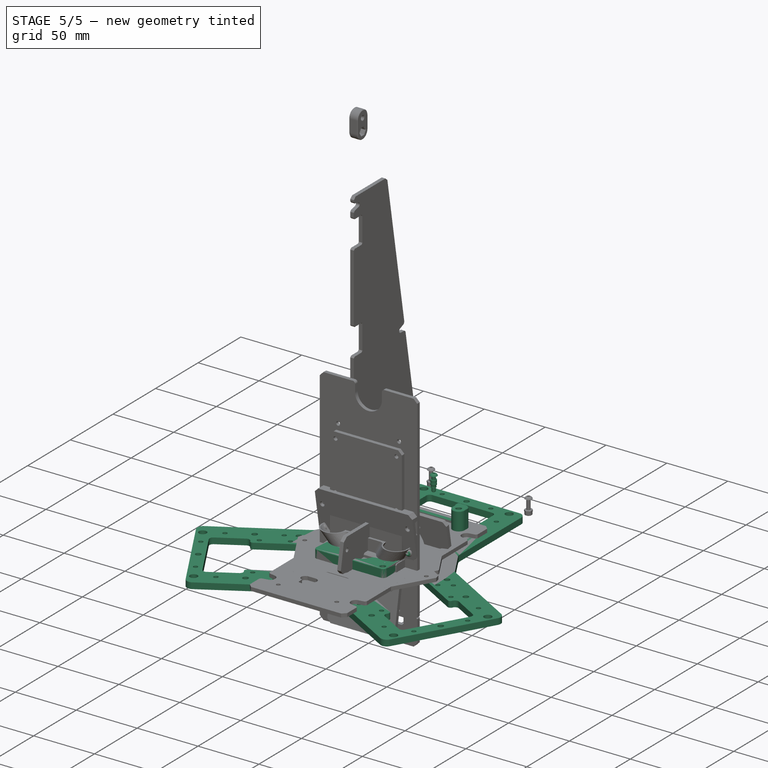
[diagram: stage 5 of 5 — iso view after this stage's code; geometry added in this stage tinted green]
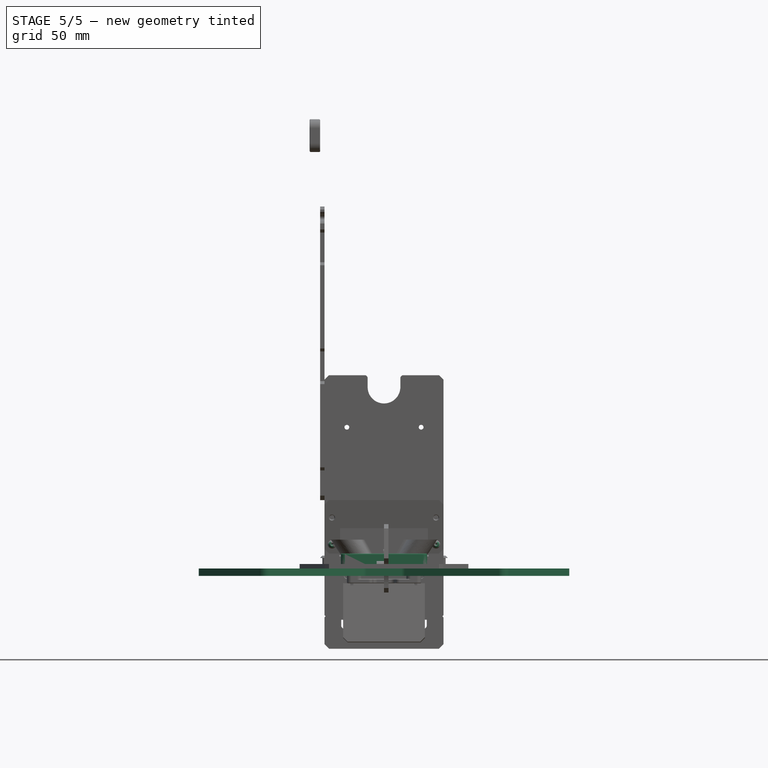
[diagram: stage 5 of 5 — front view after this stage's code; geometry added in this stage tinted green]
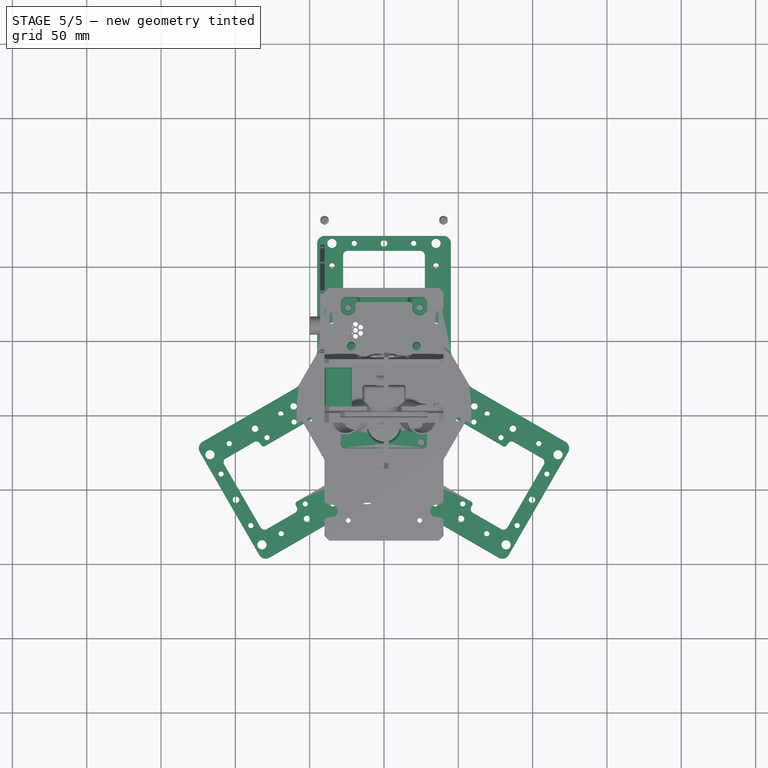
[diagram: stage 5 of 5 — top view after this stage's code; geometry added in this stage tinted green]
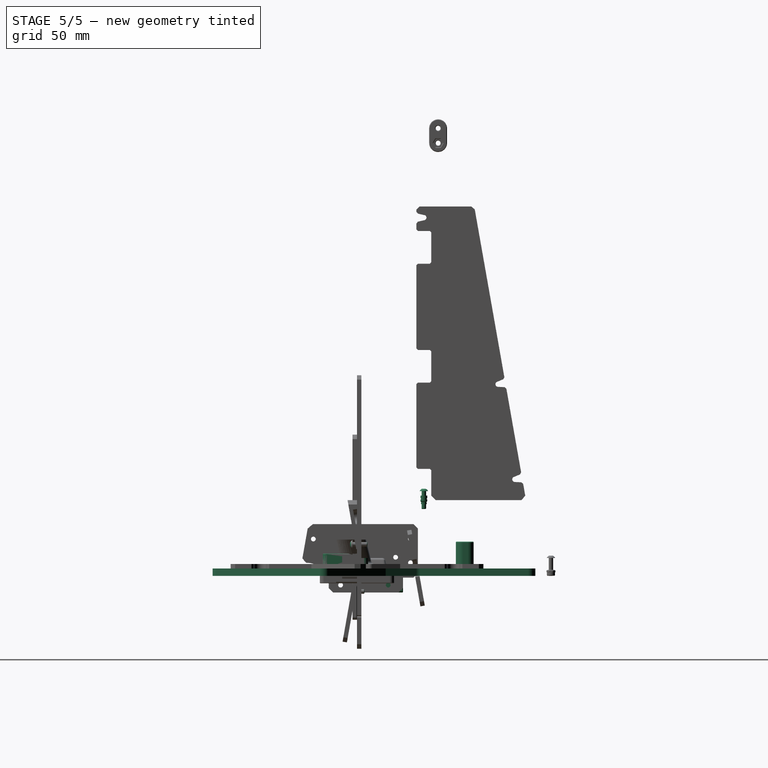
[diagram: stage 5 of 5 — right view after this stage's code; geometry added in this stage tinted green]
FEATURE [Sketcher::SketchObject] Sketch032
  ArcFitTolerance = 0
  ExternalBSplineMaxDegree = 0
  ExternalBSplineTolerance = 0
  FixShape = 1
  FullyConstrained = true
  InternalTolerance = 1e-06
  InvalidShape = false
  MakeInternals = false
  MapMode = 5
  TreeRank = 0
  ValidateShape = false
  sketch-geometry (56):
    g0: LineSegment StartX=-126.423 StartY=-21.0289 StartZ=0 EndX=-58.007 EndY=18.4711 EndZ=0
    g1: LineSegment StartX=-58.007 StartY=18.4711 StartZ=0 EndX=-45 EndY=41 EndZ=0
    g2: LineSegment StartX=-45 StartY=41 StartZ=0 EndX=-45 EndY=120 EndZ=0
    g3: LineSegment StartX=-45 StartY=120 StartZ=0 EndX=45 EndY=120 EndZ=0
    g4: LineSegment StartX=45 StartY=120 StartZ=0 EndX=45 EndY=41 EndZ=0
    g5: LineSegment StartX=45 StartY=41 StartZ=0 EndX=58.007 EndY=18.4711 EndZ=0
    g6: LineSegment StartX=58.007 StartY=18.4711 StartZ=0 EndX=126.423 EndY=-21.0289 EndZ=0
    g7: LineSegment StartX=126.423 StartY=-21.0289 StartZ=0 EndX=81.423 EndY=-98.9711 EndZ=0
    g8: LineSegment StartX=81.423 StartY=-98.9711 StartZ=0 EndX=13.007 EndY=-59.4711 EndZ=0
    g9: LineSegment StartX=13.007 StartY=-59.4711 StartZ=0 EndX=-13.007 EndY=-59.4711 EndZ=0
    g10: LineSegment StartX=-13.007 StartY=-59.4711 StartZ=0 EndX=-81.423 EndY=-98.9711 EndZ=0
    g11: LineSegment StartX=-81.423 StartY=-98.9711 StartZ=0 EndX=-126.423 EndY=-21.0289 EndZ=0
    g12: LineSegment [constr] StartX=0 StartY=0 StartZ=0 EndX=0 EndY=120 EndZ=0
    g13: LineSegment [constr] StartX=0 StartY=0 StartZ=0 EndX=-103.923 EndY=-60 EndZ=0
    g14: LineSegment [constr] StartX=0 StartY=0 StartZ=0 EndX=103.923 EndY=-60 EndZ=0
    g15: LineSegment StartX=-27.5 StartY=82 StartZ=0 EndX=27.5 EndY=82 EndZ=0
    g16: LineSegment StartX=27.5 StartY=82 StartZ=0 EndX=27.5 EndY=110 EndZ=0
    g17: LineSegment StartX=27.5 StartY=110 StartZ=0 EndX=-27.5 EndY=110 EndZ=0
    g18: LineSegment StartX=-27.5 StartY=110 StartZ=0 EndX=-27.5 EndY=82 EndZ=0
    g19: LineSegment StartX=57.2641 StartY=-64.8157 StartZ=0 EndX=84.7641 EndY=-17.1843 EndZ=0
    g20: LineSegment StartX=84.7641 StartY=-17.1843 StartZ=0 EndX=109.013 EndY=-31.1843 EndZ=0
    g21: LineSegment StartX=109.013 StartY=-31.1843 StartZ=0 EndX=81.5128 EndY=-78.8157 EndZ=0
    g22: LineSegment StartX=81.5128 StartY=-78.8157 StartZ=0 EndX=57.2641 EndY=-64.8157 EndZ=0
    g23: LineSegment StartX=-109.013 StartY=-31.1843 StartZ=0 EndX=-81.5128 EndY=-78.8157 EndZ=0
    g24: LineSegment StartX=-81.5128 StartY=-78.8157 StartZ=0 EndX=-57.2641 EndY=-64.8157 EndZ=0
    g25: LineSegment StartX=-57.2641 StartY=-64.8157 StartZ=0 EndX=-84.7641 EndY=-17.1843 EndZ=0
    g26: LineSegment StartX=-84.7641 StartY=-17.1843 StartZ=0 EndX=-109.013 EndY=-31.1843 EndZ=0
    g27: Circle [constr] CenterX=0 CenterY=0 CenterZ=0 NormalX=0 NormalY=0 NormalZ=1 AngleXU=0 Radius=86.4884
    g28: LineSegment StartX=-11.547 StartY=-20 StartZ=0 EndX=-23.094 EndY=-3.6e-15 EndZ=0
    g29: LineSegment StartX=-23.094 StartY=-3.3e-15 StartZ=0 EndX=-11.547 EndY=20 EndZ=0
    g30: LineSegment StartX=-11.547 StartY=20 StartZ=0 EndX=11.547 EndY=20 EndZ=0
    g31: LineSegment StartX=11.547 StartY=20 StartZ=0 EndX=23.094 EndY=0 EndZ=0
    g32: LineSegment StartX=23.094 StartY=0 StartZ=0 EndX=11.547 EndY=-20 EndZ=0
    g33: LineSegment StartX=11.547 StartY=-20 StartZ=0 EndX=-11.547 EndY=-20 EndZ=0
    g34: Circle [constr] CenterX=0 CenterY=0 CenterZ=0 NormalX=0 NormalY=0 NormalZ=1 AngleXU=0 Radius=23.094
    g35: Circle CenterX=-21.6506 CenterY=12.5 CenterZ=0 NormalX=0 NormalY=0 NormalZ=1 AngleXU=0 Radius=1.6
    g36: Circle CenterX=21.6506 CenterY=12.5 CenterZ=0 NormalX=0 NormalY=0 NormalZ=1 AngleXU=0 Radius=1.6
    g37: Circle CenterX=0 CenterY=-25 CenterZ=0 NormalX=0 NormalY=0 NormalZ=1 AngleXU=0 Radius=1.6
    g38: LineSegment [constr] StartX=0 StartY=-25 StartZ=0 EndX=0 EndY=0 EndZ=0
    g39: LineSegment [constr] StartX=0 StartY=0 StartZ=0 EndX=21.6506 EndY=12.5 EndZ=0
    g40: LineSegment [constr] StartX=0 StartY=0 StartZ=0 EndX=-21.6506 EndY=12.5 EndZ=0
    g41: LineSegment [constr] StartX=-45 StartY=120 StartZ=0 EndX=-126.423 EndY=-21.0289 EndZ=0
    g42: LineSegment [constr] StartX=-81.423 StartY=-98.9711 StartZ=0 EndX=81.423 EndY=-98.9711 EndZ=0
    g43: LineSegment [constr] StartX=126.423 StartY=-21.0289 StartZ=0 EndX=45 EndY=120 EndZ=0
    g44: LineSegment [constr] StartX=-45 StartY=120 StartZ=0 EndX=-55 EndY=102.679 EndZ=0
    g45: LineSegment [constr] StartX=-55 StartY=102.679 StartZ=0 EndX=-45 EndY=41 EndZ=0
    g46: LineSegment [constr] StartX=-58.007 StartY=18.4711 StartZ=0 EndX=-116.423 EndY=-3.70835 EndZ=0
    g47: LineSegment [constr] StartX=-116.423 StartY=-3.70835 StartZ=0 EndX=-126.423 EndY=-21.0289 EndZ=0
    g48: LineSegment [constr] StartX=-81.423 StartY=-98.9711 StartZ=0 EndX=-61.423 EndY=-98.9711 EndZ=0
    g49: LineSegment [constr] StartX=-61.423 StartY=-98.9711 StartZ=0 EndX=-13.007 EndY=-59.4711 EndZ=0
    g50: LineSegment [constr] StartX=13.007 StartY=-59.4711 StartZ=0 EndX=61.423 EndY=-98.9711 EndZ=0
    g51: LineSegment [constr] StartX=61.423 StartY=-98.9711 StartZ=0 EndX=81.423 EndY=-98.9711 EndZ=0
    g52: LineSegment [constr] StartX=126.423 StartY=-21.0289 StartZ=0 EndX=116.423 EndY=-3.70835 EndZ=0
    g53: LineSegment [constr] StartX=116.423 StartY=-3.70835 StartZ=0 EndX=58.007 EndY=18.4711 EndZ=0
    g54: LineSegment [constr] StartX=45 StartY=41 StartZ=0 EndX=55 EndY=102.679 EndZ=0
    g55: LineSegment [constr] StartX=55 StartY=102.679 StartZ=0 EndX=45 EndY=120 EndZ=0
  constraints (151):
    c: Coincident(g0,g1)
    c: Coincident(g1,g2)
    c: Vertical(g2)
    c: Coincident(g2,g3)
    c: Horizontal(g3)
    c: Coincident(g3,g4)
    c: Vertical(g4)
    c: Coincident(g4,g5)
    c: Coincident(g5,g6)
    c: Coincident(g6,g7)
    c: Coincident(g7,g8)
    c: Coincident(g8,g9)
    c: Horizontal(g9)
    c: Coincident(g9,g10)
    c: Coincident(g10,g11)
    c: Coincident(g11,g0)
    c: Parallel(g8,g6)
    c: Parallel(g10,g0)
    c: Equal(g4,g6)
    c: Equal(g6,g8)
    c: Equal(g8,g10)
    c: Equal(g10,g0)
    c: Equal(g0,g2)
    c: Perpendicular(g6,g7)
    c: Perpendicular(g11,g10)
    c: Coincident(g12,g-1)
    c: PointOnObject(g12,g3)
    c: Vertical(g12)
    c: Coincident(g13,g12)
    c: Coincident(g14,g12)
    c: Symmetric(g6,g7,g14)
    c: Symmetric(g10,g0,g13)
    c: Perpendicular(g13,g11)
    c: Perpendicular(g7,g14)
    c: DistanceX(g3,g3) = 90
    c: Equal(g9,g5)
    c: Equal(g5,g1)
    c: Angle(g14,g12) = 2.0944
    c: Angle(g12,g13) = 2.0944
    c: DistanceY(g12,g2) = 120
    c: DistanceX(g9,g9) = 26.0141
    c: Coincident(g15,g16)
    c: Coincident(g16,g17)
    c: Coincident(g17,g18)
    c: Coincident(g18,g15)
    c: Horizontal(g15)
    c: Vertical(g16)
    c: Vertical(g18)
    c: Symmetric(g16,g17,g12)
    c: DistanceX(g17,g17) = 55
    c: DistanceY(g16,g16) = 28
    c: Coincident(g19,g20)
    c: Coincident(g20,g21)
    c: Coincident(g21,g22)
    c: Coincident(g22,g19)
    c: Coincident(g23,g24)
    c: Coincident(g24,g25)
    c: Coincident(g25,g26)
    c: Coincident(g26,g23)
    c: Equal(g25,g23)
    c: Equal(g23,g19)
    c: Equal(g19,g21)
    c: Equal(g21,g15)
    c: Equal(g22,g20)
    c: Equal(g20,g16)
    c: Equal(g16,g26)
    c: Equal(g26,g24)
    c: Parallel(g24,g13)
    c: Parallel(g22,g14)
    c: Symmetric(g23,g23,g13)
    c: Symmetric(g21,g20,g14)
    c: Coincident(g27,g12)
    c: PointOnObject(g19,g27)
    c: PointOnObject(g24,g27)
    c: PointOnObject(g15,g27)
    c: Equal(g11,g7)
    c: Equal(g7,g3)
    c: Coincident(g28,g29)
    c: Coincident(g29,g30)
    c: Coincident(g30,g31)
    c: Coincident(g31,g32)
    c: Coincident(g32,g33)
    c: Coincident(g33,g28)
    c: Horizontal(g33)
    c: Horizontal(g30)
    c: Equal(g29,g30)
    c: Equal(g30,g31)
    c: Equal(g31,g32)
    c: Equal(g32,g33)
    c: Equal(g33,g28)
    c: Coincident(g34,g12)
    c: PointOnObject(g30,g34)
    c: PointOnObject(g31,g34)
    c: PointOnObject(g32,g34)
    c: PointOnObject(g28,g34)
    c: PointOnObject(g28,g34)
    c: DistanceY(g12,g30) = 20
    c: PointOnObject(g37,g-2)
    c: Equal(g37,g36)
    c: Equal(g36,g35)
    c: Diameter(g35) = 3.2
    c: Coincident(g38,g37)
    c: Coincident(g38,g12)
    c: Coincident(g39,g12)
    c: Coincident(g39,g36)
    c: Coincident(g40,g12)
    c: Coincident(g40,g35)
    c: Perpendicular(g29,g40)
    c: Perpendicular(g31,g39)
    c: Equal(g40,g38)
    c: Equal(g38,g39)
    c: DistanceY(g38,g38) = 25
    c: Coincident(g41,g3)
    c: Coincident(g41,g11)
    c: Coincident(g42,g11)
    c: Coincident(g42,g7)
    c: Coincident(g43,g7)
    c: Coincident(g43,g3)
    c: Coincident(g3,g44)
    c: PointOnObject(g44,g41)
    c: Coincident(g44,g45)
    c: Coincident(g45,g1)
    c: Coincident(g1,g46)
    c: PointOnObject(g46,g41)
    c: Coincident(g46,g47)
    c: Coincident(g47,g11)
    c: Coincident(g11,g48)
    c: Horizontal(g48)
    c: Coincident(g48,g49)
    c: Coincident(g49,g9)
    c: Coincident(g9,g50)
    c: PointOnObject(g50,g42)
    c: Coincident(g50,g51)
    c: Coincident(g51,g7)
    c: Coincident(g7,g52)
    c: PointOnObject(g52,g43)
    c: Coincident(g52,g53)
    c: Coincident(g53,g5)
    c: Coincident(g5,g54)
    c: PointOnObject(g54,g43)
    c: Coincident(g54,g55)
    c: Coincident(g55,g3)
    c: Equal(g55,g44)
    c: Equal(g44,g47)
    c: Equal(g47,g48)
    c: Equal(g48,g51)
    c: Equal(g55,g52)
    c: DistanceX(g48,g48) = 20
    c: DistanceY(g16) = 110
    c: DistanceY(g50,g12) = 98.9711
    c: DistanceY(g4,g4) = 79
FEATURE [PartDesign::Pad] Pad020
  AddSubType = 0
  AutoTaperInnerAngle = true
  CheckUpToFaceLimits = true
  ClaimChildren = false
  Direction = (0,0,1)
  Fit = 0
  FitJoin = 0
  FixShape = 1
  InnerFit = 0
  InnerFitJoin = 0
  InvalidShape = false
  Length = 5
  Length2 = 100
  NewSolid = false
  Profile = -> Sketch032
  Refine = true
  Reversed = true
  Suppress = false
  TaperInnerAngle = 0
  TaperInnerAngleRev = 0
  TreeRank = 0
  Type = 0
  ValidateShape = true
  _ProfileBasedVersion = 0
FEATURE [PartDesign::Fillet] Fillet008
  AddSubType = 0
  Base = -> Pad020 [Edge41,Edge44,Edge37,Edge38,Edge65,Edge62,Edge61,Edge68,Edge49,Edge50,Edge53,Edge56]
  BaseFeature = -> Pad020
  FixShape = 1
  InvalidShape = false
  NewSolid = false
  Radius = 3
  Refine = true
  SupportTransform = false
  Suppress = false
  TreeRank = 0
  UseAllEdges = false
  ValidateShape = true
FEATURE [PartDesign::Fillet] Fillet009
  AddSubType = 0
  Base = -> Fillet008 [Edge110,Edge99,Edge107,Edge106,Edge102,Edge103]
  BaseFeature = -> Fillet008
  FixShape = 1
  InvalidShape = false
  NewSolid = false
  Radius = 5
  Refine = true
  SupportTransform = false
  Suppress = false
  TreeRank = 0
  UseAllEdges = false
  ValidateShape = true
FEATURE [PartDesign::Fillet] Fillet010
  AddSubType = 0
  Base = -> Fillet009 [Edge53,Edge57,Edge67,Edge71,Edge77,Edge81]
  BaseFeature = -> Fillet009
  FixShape = 1
  InvalidShape = false
  NewSolid = false
  Radius = 5
  Refine = true
  SupportTransform = false
  Suppress = false
  TreeRank = 0
  UseAllEdges = false
  ValidateShape = true
FEATURE [Sketcher::SketchObject] Sketch033
  ArcFitTolerance = 0
  ExternalBSplineMaxDegree = 0
  ExternalBSplineTolerance = 0
  FixShape = 1
  FullyConstrained = true
  InternalTolerance = 1e-06
  InvalidShape = false
  MakeInternals = false
  MapMode = 5
  TreeRank = 0
  ValidateShape = false
  sketch-geometry (17):
    g0: Circle CenterX=-20 CenterY=115 CenterZ=0 NormalX=0 NormalY=0 NormalZ=1 AngleXU=0 Radius=1.75
    g1: Circle CenterX=20 CenterY=115 CenterZ=0 NormalX=0 NormalY=0 NormalZ=1 AngleXU=0 Radius=1.75
    g2: Circle CenterX=-35 CenterY=60 CenterZ=0 NormalX=0 NormalY=0 NormalZ=1 AngleXU=0 Radius=1.75
    g3: Circle CenterX=-35 CenterY=100 CenterZ=0 NormalX=0 NormalY=0 NormalZ=1 AngleXU=0 Radius=1.75
    g4: Circle CenterX=35 CenterY=100 CenterZ=0 NormalX=0 NormalY=0 NormalZ=1 AngleXU=0 Radius=1.75
    g5: Circle CenterX=35 CenterY=60 CenterZ=0 NormalX=0 NormalY=0 NormalZ=1 AngleXU=0 Radius=1.75
    g6: Circle CenterX=-35 CenterY=115 CenterZ=0 NormalX=0 NormalY=0 NormalZ=1 AngleXU=0 Radius=3.1
    g7: Circle CenterX=35 CenterY=115 CenterZ=0 NormalX=0 NormalY=0 NormalZ=1 AngleXU=0 Radius=3.1
    g8: Circle CenterX=-35 CenterY=80 CenterZ=0 NormalX=0 NormalY=0 NormalZ=1 AngleXU=0 Radius=2.2
    g9: Circle CenterX=35 CenterY=80 CenterZ=0 NormalX=0 NormalY=0 NormalZ=1 AngleXU=0 Radius=2.2
    g10: Circle CenterX=-35 CenterY=50 CenterZ=0 NormalX=0 NormalY=0 NormalZ=1 AngleXU=0 Radius=2.2
    g11: Circle CenterX=35 CenterY=50 CenterZ=0 NormalX=0 NormalY=0 NormalZ=1 AngleXU=0 Radius=2.2
    g12: Circle CenterX=-1.4e-15 CenterY=115 CenterZ=0 NormalX=0 NormalY=0 NormalZ=1 AngleXU=0 Radius=2.2
    g13: Circle CenterX=-25.75 CenterY=76 CenterZ=0 NormalX=0 NormalY=0 NormalZ=1 AngleXU=0 Radius=1.75
    g14: Circle CenterX=-25.75 CenterY=55 CenterZ=0 NormalX=0 NormalY=0 NormalZ=1 AngleXU=0 Radius=1.75
    g15: Circle CenterX=25.75 CenterY=76 CenterZ=0 NormalX=0 NormalY=0 NormalZ=1 AngleXU=0 Radius=1.75
    g16: Circle CenterX=25.75 CenterY=55 CenterZ=0 NormalX=0 NormalY=0 NormalZ=1 AngleXU=0 Radius=1.75
  constraints (41):
    c: Equal(g0,g3)
    c: Equal(g3,g2)
    c: Equal(g2,g1)
    c: Equal(g1,g4)
    c: Equal(g4,g5)
    c: Diameter(g0) = 3.5
    c: Symmetric(g1,g0,g-2)
    c: Symmetric(g3,g4,g-2)
    c: Symmetric(g2,g5,g-2)
    c: Vertical(g3,g2)
    c: DistanceX(g3,g4) = 70
    c: DistanceX(g0,g1) = 40
    c: DistanceY(g4,g1) = 15
    c: DistanceY(g5,g4) = 40
    c: DistanceY(g-1,g1) = 115
    c: Symmetric(g7,g6,g-2)
    c: Horizontal(g6,g0)
    c: Diameter(g7) = 6.2
    c: Equal(g7,g6)
    c: Vertical(g7,g4)
    c: Equal(g9,g8)
    c: Symmetric(g8,g9,g-2)
    c: Symmetric(g5,g4,g9)
    c: Diameter(g9) = 4.4
    c: Symmetric(g1,g0,g12)
    c: Equal(g12,g11)
    c: Equal(g11,g10)
    c: Equal(g10,g9)
    c: Vertical(g11,g5)
    c: Symmetric(g11,g10,g-2)
    c: DistanceY(g11,g5) = 10
    c: Equal(g15,g16)
    c: Equal(g16,g14)
    c: Equal(g14,g13)
    c: Equal(g13,g2)
    c: Vertical(g13,g14)
    c: Symmetric(g15,g13,g-2)
    c: Symmetric(g14,g16,g-2)
    c: DistanceX(g8,g13) = 9.25
    c: DistanceY(g-1,g13) = 76
    c: DistanceY(g14,g13) = 21
FEATURE [PartDesign::Pocket] Pocket012
  AddSubType = 1
  AutoTaperInnerAngle = true
  BaseFeature = -> Fillet010
  CheckUpToFaceLimits = true
  ClaimChildren = false
  Direction = (0,0,-1)
  Fit = 0
  FitJoin = 0
  FixShape = 1
  InnerFit = 0
  InnerFitJoin = 0
  InvalidShape = false
  Length = 5
  Length2 = 100
  NewSolid = false
  Profile = -> Sketch033
  Refine = true
  Suppress = false
  TaperInnerAngle = 0
  TaperInnerAngleRev = 0
  TreeRank = 0
  Type = 1
  ValidateShape = true
  _ProfileBasedVersion = 0
  _Version = 0
FEATURE [PartDesign::PolarPattern] PolarPattern013
  AddSubType = 0
  Angle = 360
  Axis = -> Sketch033 [N_Axis]
  BaseFeature = -> Pocket012
  CopyShape = true
  FixShape = 1
  HideBaseFeature = false
  InvalidShape = false
  NewSolid = false
  Occurrences = 3
  OffsetBaseFeature = true
  OriginalSubs = -> [Pocket012]
  Originals = -> [Pocket012]
  ParallelTransform = true
  Refine = true
  SubTransform = true
  Suppress = false
  TreeRank = 0
  ValidateShape = true
  _Version = 0
FEATURE [App::Link] Link  label="17HS24-2104S"
  AutoLinkLabel = false
  AutoPlacement = true
  LinkedObject = -> <external generic-hardware.FCStd>#Part022
  SyncGroupVisibility = false
  TreeRank = 0
  _LinkVersion = 1
FEATURE [App::Link] Link001  label="OmniWheelAssembled"
  AutoLinkLabel = false
  AutoPlacement = true
  LinkPlacement = pos=(0,-22,0) rot=(0,0,1;0rad)
  LinkedObject = -> <external generic-hardware.FCStd>#Part
  Placement = pos=(0,-22,0) rot=(0,0,1;0rad)
  SyncGroupVisibility = false
  TreeRank = 0
  _LinkVersion = 1
FEATURE [App::Link] Link003  label="MB_60"
  AutoLinkLabel = false
  AutoPlacement = true
  LinkPlacement = pos=(-30,115,5) rot=(0,0,-1;1.5708rad)
  LinkedObject = -> <external generic-hardware.FCStd>#Body003
  Placement = pos=(-30,115,5) rot=(0,0,-1;1.5708rad)
  SyncGroupVisibility = false
  TreeRank = 0
  _LinkVersion = 1
FEATURE [App::Link] Link006  label="MB_061"
  AutoLinkLabel = false
  AutoPlacement = true
  LinkPlacement = pos=(-35,50,5) rot=(0,0,1;0rad)
  LinkedObject = -> Link003
  Placement = pos=(-35,50,5) rot=(0,0,1;0rad)
  SyncGroupVisibility = false
  TreeRank = 0
  _LinkVersion = 1
FEATURE [App::Link] Link007  label="MB_062"
  AutoLinkLabel = false
  AutoPlacement = true
  LinkPlacement = pos=(35,50,5) rot=(0,0,1;0rad)
  LinkedObject = -> Link003
  Placement = pos=(35,50,5) rot=(0,0,1;0rad)
  SyncGroupVisibility = false
  TreeRank = 0
  _LinkVersion = 1
FEATURE [App::Link] Link008  label="MB_300-01"
  AutoLinkLabel = false
  AutoPlacement = true
  LinkPlacement = pos=(35,45,10) rot=(1,0,0;1.5708rad)
  LinkedObject = -> <external generic-hardware.FCStd>#Body004
  Placement = pos=(35,45,10) rot=(1,0,0;1.5708rad)
  SyncGroupVisibility = false
  TreeRank = 0
  _LinkVersion = 1
FEATURE [App::Link] Link009  label="MB_300-02"
  AutoLinkLabel = false
  AutoPlacement = true
  LinkPlacement = pos=(-35,45,10) rot=(1,0,0;1.5708rad)
  LinkedObject = -> Link008
  Placement = pos=(-35,45,10) rot=(1,0,0;1.5708rad)
  SyncGroupVisibility = false
  TreeRank = 0
  _LinkVersion = 1
FEATURE [App::Link] Link010  label="MB_40-01"
  AutoLinkLabel = false
  AutoPlacement = true
  LinkPlacement = pos=(-35,115,10) rot=(1,0,0;1.5708rad)
  LinkedObject = -> <external generic-hardware.FCStd>#Body103
  Placement = pos=(-35,115,10) rot=(1,0,0;1.5708rad)
  SyncGroupVisibility = false
  TreeRank = 0
  _LinkVersion = 1
FEATURE [App::Link] Link011  label="MB_40-02"
  AutoLinkLabel = false
  AutoPlacement = true
  LinkPlacement = pos=(35,115,10) rot=(1,0,0;1.5708rad)
  LinkedObject = -> Link010
  Placement = pos=(35,115,10) rot=(1,0,0;1.5708rad)
  SyncGroupVisibility = false
  TreeRank = 0
  _LinkVersion = 1
FEATURE [App::Link] Link012  label="MB_063"
  AutoLinkLabel = false
  AutoPlacement = true
  LinkPlacement = pos=(-35,50,55) rot=(0,0,1;0rad)
  LinkedObject = -> Link006
  Placement = pos=(-35,50,55) rot=(0,0,1;0rad)
  SyncGroupVisibility = false
  TreeRank = 0
  _LinkVersion = 1
FEATURE [App::Link] Link013  label="MB_064"
  AutoLinkLabel = false
  AutoPlacement = true
  LinkPlacement = pos=(35,50,55) rot=(0,0,1;0rad)
  LinkedObject = -> Link012
  Placement = pos=(35,50,55) rot=(0,0,1;0rad)
  SyncGroupVisibility = false
  TreeRank = 0
  _LinkVersion = 1
FEATURE [App::Link] Link014  label="MB_065"
  AutoLinkLabel = false
  AutoPlacement = true
  LinkPlacement = pos=(-30,115,55) rot=(0,0,-1;1.5708rad)
  LinkedObject = -> Link013
  Placement = pos=(-30,115,55) rot=(0,0,-1;1.5708rad)
  SyncGroupVisibility = false
  TreeRank = 0
  _LinkVersion = 1
FEATURE [App::Link] Link015  label="MB_066"
  AutoLinkLabel = false
  AutoPlacement = true
  LinkPlacement = pos=(-30,45,315) rot=(0,0,-1;1.5708rad)
  LinkedObject = -> Link014
  Placement = pos=(-30,45,315) rot=(0,0,-1;1.5708rad)
  SyncGroupVisibility = false
  TreeRank = 0
  _LinkVersion = 1
FEATURE [App::Link] Link021  label="MB_300-003"
  AutoLinkLabel = false
  AutoPlacement = true
  LinkPlacement = pos=(-35,114.494,12.8682) rot=(1,0,0;1.74533rad)
  LinkedObject = -> Link008
  Placement = pos=(-35,114.494,12.8682) rot=(1,0,0;1.74533rad)
  SyncGroupVisibility = false
  TreeRank = 0
  _LinkVersion = 1
FEATURE [App::Link] Link022  label="MB_300-004"
  AutoLinkLabel = false
  AutoPlacement = true
  LinkPlacement = pos=(35,114.494,12.8682) rot=(1,0,0;1.74533rad)
  LinkedObject = -> Link021
  Placement = pos=(35,114.494,12.8682) rot=(1,0,0;1.74533rad)
  SyncGroupVisibility = false
  TreeRank = 0
  _LinkVersion = 1
FEATURE [App::Link] Link023  label="100_deg_Corners"
  AutoLinkLabel = false
  AutoPlacement = true
  LinkPlacement = pos=(35,115,5) rot=(0,0,1;0rad)
  LinkedObject = -> <external generic-hardware.FCStd>#Part046
  Placement = pos=(35,115,5) rot=(0,0,1;0rad)
  SyncGroupVisibility = false
  TreeRank = 0
  _LinkVersion = 1
FEATURE [App::Link] Link024  label="100_deg_Corners_Mirror"
  AutoLinkLabel = false
  AutoPlacement = true
  LinkPlacement = pos=(-35,115,5) rot=(0,0,1;0rad)
  LinkedObject = -> <external generic-hardware.FCStd>#Part047
  Placement = pos=(-35,115,5) rot=(0,0,1;0rad)
  SyncGroupVisibility = false
  TreeRank = 0
  _LinkVersion = 1
FEATURE [App::Link] Link025  label="Corner"
  AutoLinkLabel = false
  AutoPlacement = true
  LinkPlacement = pos=(35,45,5) rot=(0,0,-1;1.5708rad)
  LinkedObject = -> <external generic-hardware.FCStd>#Body001
  Placement = pos=(35,45,5) rot=(0,0,-1;1.5708rad)
  SyncGroupVisibility = false
  TreeRank = 0
  _LinkVersion = 1
FEATURE [App::Link] Link026  label="Corner001"
  AutoLinkLabel = false
  AutoPlacement = true
  LinkPlacement = pos=(-35,45,5) rot=(0,0,1;3.14159rad)
  LinkedObject = -> Link025
  Placement = pos=(-35,45,5) rot=(0,0,1;3.14159rad)
  SyncGroupVisibility = false
  TreeRank = 0
  _LinkVersion = 1
FEATURE [App::Link] Link027  label="Corps001"
  AutoLinkLabel = false
  AutoPlacement = true
  LinkPlacement = pos=(35,45,315) rot=(0,0,1;0rad)
  LinkedObject = -> <external generic-hardware.FCStd>#Body108
  Placement = pos=(35,45,315) rot=(0,0,1;0rad)
  SyncGroupVisibility = false
  TreeRank = 0
  _LinkVersion = 1
FEATURE [App::Link] Link028  label="Link_100_deg_Mirror"
  AutoLinkLabel = false
  AutoPlacement = true
  LinkPlacement = pos=(-35,45,315) rot=(0,0,1;0rad)
  LinkedObject = -> <external generic-hardware.FCStd>#Part__Mirroring002
  Placement = pos=(-35,45,315) rot=(0,0,1;0rad)
  SyncGroupVisibility = false
  TreeRank = 0
  _LinkVersion = 1
FEATURE [App::Part] Part007  label="Makerbeam_Structure"
  ClaimAllChildren = false
  ExportMode = 1
  Group = -> [Link011,Link010,Link012,Link006,Link007,Link008,Link009,Link013,Link014,Link015,Link003,Link021,Link022,Link027,Link023,Link024,Link025,Link026,Link028]
  Origin = -> Origin037
  TreeRank = 0
  _ExportChildren = -> [Link011,Link010,Link012,Link006,Link007,Link008,Link009,Link013,Link014,Link015,Link003,Link021,Link022,Link027,Link023,Link024,Link025,Link026,Link028]
  _GroupVersion = 1
FEATURE [Sketcher::SketchObject] Sketch034
  ArcFitTolerance = 0
  ExternalBSplineMaxDegree = 0
  ExternalBSplineTolerance = 0
  ExternalGeometry = -> [PolarPattern013]
  FixShape = 1
  FullyConstrained = true
  InternalTolerance = 1e-06
  InvalidShape = false
  MakeInternals = false
  MapMode = 5
  TreeRank = 0
  ValidateShape = false
  sketch-geometry (5):
    g0: LineSegment StartX=-21.5 StartY=20 StartZ=0 EndX=21.5 EndY=20 EndZ=0
    g1: LineSegment StartX=21.5 StartY=20 StartZ=0 EndX=21.5 EndY=82 EndZ=0
    g2: LineSegment StartX=21.5 StartY=82 StartZ=0 EndX=-21.5 EndY=82 EndZ=0
    g3: LineSegment StartX=-21.5 StartY=82 StartZ=0 EndX=-21.5 EndY=20 EndZ=0
    g4: GeomPoint [constr] X=0 Y=51 Z=0
  constraints (13):
    c: Coincident(g0,g1)
    c: Coincident(g1,g2)
    c: Coincident(g2,g3)
    c: Coincident(g3,g0)
    c: Horizontal(g0)
    c: Horizontal(g2)
    c: Vertical(g1)
    c: Vertical(g3)
    c: Symmetric(g2,g0,g4)
    c: PointOnObject(g4,g-2)
    c: Distance(g2,g2) = 43
    c: PointOnObject(g-4,g0)
    c: PointOnObject(g1,g-3)
FEATURE [PartDesign::Pocket] Pocket
  AddSubType = 1
  AutoTaperInnerAngle = true
  BaseFeature = -> PolarPattern013
  CheckUpToFaceLimits = true
  ClaimChildren = false
  Direction = (0,0,-1)
  Fit = 0
  FitJoin = 0
  FixShape = 1
  InnerFit = 0
  InnerFitJoin = 0
  InvalidShape = false
  Length = 5
  Length2 = 5
  NewSolid = false
  Profile = -> Sketch034
  ReferenceAxis = -> Sketch034 [N_Axis]
  Refine = true
  Suppress = false
  TaperInnerAngle = 0
  TaperInnerAngleRev = 0
  TreeRank = 0
  Type = 1
  ValidateShape = true
  _ProfileBasedVersion = 0
  _Version = 0
FEATURE [PartDesign::PolarPattern] PolarPattern
  AddSubType = 0
  Angle = 360
  Axis = -> Z_Axis026
  BaseFeature = -> Pocket
  CopyShape = true
  FixShape = 1
  HideBaseFeature = false
  InvalidShape = false
  NewSolid = false
  Occurrences = 3
  OffsetBaseFeature = true
  OriginalSubs = -> [Pocket]
  Originals = -> [Pocket]
  ParallelTransform = true
  Refine = true
  SubTransform = true
  Suppress = false
  TreeRank = 0
  ValidateShape = true
  _Version = 0
FEATURE [PartDesign::Fillet] Fillet011
  AddSubType = 0
  Base = -> PolarPattern [Edge284,Edge302,Edge340,Edge275,Edge312,Edge330,Edge334,Edge336,Edge278,Edge280,Edge306,Edge308]
  BaseFeature = -> PolarPattern
  FixShape = 1
  InvalidShape = false
  NewSolid = false
  Radius = 2
  Refine = true
  SupportTransform = false
  Suppress = false
  TreeRank = 0
  UseAllEdges = false
  ValidateShape = true
FEATURE [PartDesign::Body] Body020  label="PlaqueMoteur"
  AutoGroupSolids = false
  ClaimAllChildren = false
  ExportMode = 0
  FixShape = 1
  Group = -> [Sketch035,Pad021,Chamfer,Chamfer001]
  InvalidShape = false
  Origin = -> Origin038
  SingleSolid = true
  Tip = -> Chamfer001
  TreeRank = 0
  ValidateShape = false
  _ExportChildren = -> [Pad021,Chamfer,Chamfer001]
  _GroupVersion = 1
FEATURE [Part::FeaturePython] Screw008  label="M3x8-Vis030"  # Fasteners workbench fastener (typed FeaturePython)
  FixShape = 1
  InvalidShape = false
  Placement = pos=(-15.5,-3,15.5) rot=(1,0,0;1.5708rad)
  TreeRank = 0
  ValidateShape = false
  baseObject = -> Body020 [Edge27]
  diameter = 3
  invert = false
  leftHanded = false
  length = 0
  lengthCustom = 8
  matchOuter = false
  offset = 0
  thread = false
  type = 32
FEATURE [Part::FeaturePython] Screw009  label="M3x8-Vis031"  # Fasteners workbench fastener (typed FeaturePython)
  FixShape = 1
  InvalidShape = false
  Placement = pos=(-15.5,-3,-15.5) rot=(1,0,0;1.5708rad)
  TreeRank = 0
  ValidateShape = false
  baseObject = -> Body020 [Edge1]
  diameter = 3
  invert = false
  leftHanded = false
  length = 0
  lengthCustom = 8
  matchOuter = false
  offset = 0
  thread = false
  type = 32
FEATURE [Part::FeaturePython] Screw010  label="M3x8-Vis032"  # Fasteners workbench fastener (typed FeaturePython)
  FixShape = 1
  InvalidShape = false
  Placement = pos=(15.5,-3,-15.5) rot=(1,0,0;1.5708rad)
  TreeRank = 0
  ValidateShape = false
  baseObject = -> Body020 [Edge29]
  diameter = 3
  invert = false
  leftHanded = false
  length = 0
  lengthCustom = 8
  matchOuter = false
  offset = 0
  thread = false
  type = 32
FEATURE [Part::FeaturePython] Screw011  label="M3x8-Vis033"  # Fasteners workbench fastener (typed FeaturePython)
  FixShape = 1
  InvalidShape = false
  Placement = pos=(15.5,-3,15.5) rot=(1,0,0;1.5708rad)
  TreeRank = 0
  ValidateShape = false
  baseObject = -> Body020 [Edge28]
  diameter = 3
  invert = false
  leftHanded = false
  length = 0
  lengthCustom = 8
  matchOuter = false
  offset = 0
  thread = false
  type = 32
FEATURE [Part::FeaturePython] Screw012  label="M3x10-Vis"  # Fasteners workbench fastener (typed FeaturePython)
  FixShape = 1
  InvalidShape = false
  Placement = pos=(-35,-3,-1.2) rot=(1,0,0;1.5708rad)
  TreeRank = 0
  ValidateShape = false
  baseObject = -> Body020 [Edge25]
  diameter = 1
  invert = false
  leftHanded = false
  length = 2
  lengthCustom = 10
  matchOuter = false
  offset = 0
  thread = false
  type = 58
FEATURE [Part::FeaturePython] Screw013  label="M3x10-Vis004"  # Fasteners workbench fastener (typed FeaturePython)
  FixShape = 1
  InvalidShape = false
  Placement = pos=(-35,-3,16.2) rot=(1,0,0;1.5708rad)
  TreeRank = 0
  ValidateShape = false
  baseObject = -> Body020 [Edge23]
  diameter = 1
  invert = false
  leftHanded = false
  length = 2
  lengthCustom = 10
  matchOuter = false
  offset = 0
  thread = false
  type = 58
FEATURE [Part::FeaturePython] Screw014  label="M3x10-Vis005"  # Fasteners workbench fastener (typed FeaturePython)
  FixShape = 1
  InvalidShape = false
  Placement = pos=(35,-3,16.2) rot=(1,0,0;1.5708rad)
  TreeRank = 0
  ValidateShape = false
  baseObject = -> Body020 [Edge24]
  diameter = 1
  invert = false
  leftHanded = false
  length = 2
  lengthCustom = 10
  matchOuter = false
  offset = 0
  thread = false
  type = 58
FEATURE [Part::FeaturePython] Screw015  label="M3x10-Vis006"  # Fasteners workbench fastener (typed FeaturePython)
  FixShape = 1
  InvalidShape = false
  Placement = pos=(35,-3,-1.2) rot=(1,0,0;1.5708rad)
  TreeRank = 0
  ValidateShape = false
  baseObject = -> Body020 [Edge26]
  diameter = 1
  invert = false
  leftHanded = false
  length = 2
  lengthCustom = 10
  matchOuter = false
  offset = 0
  thread = false
  type = 58
FEATURE [App::DocumentObjectGroup] Group  label="VisserieMotorWheel"
  ClaimAllChildren = true
  ExportMode = 1
  Group = -> [Screw008,Screw009,Screw010,Screw011,Screw012,Screw013,Screw014,Screw015]
  TreeRank = 0
  _GroupVersion = 1
FEATURE [Sketcher::SketchObject] Sketch036
  ArcFitTolerance = 0
  ExternalBSplineMaxDegree = 0
  ExternalBSplineTolerance = 0
  FixShape = 1
  FullyConstrained = true
  InternalTolerance = 1e-06
  InvalidShape = false
  MakeInternals = false
  MapMode = 5
  Placement = pos=(0,0,0) rot=(1,0,0;1.5708rad)
  TreeRank = 0
  ValidateShape = false
  sketch-geometry (6):
    g0: LineSegment StartX=21.5 StartY=-16.2 StartZ=0 EndX=21.5 EndY=21.2 EndZ=0
    g1: LineSegment StartX=21.5 StartY=21.2 StartZ=0 EndX=40 EndY=21.2 EndZ=0
    g2: LineSegment StartX=40 StartY=21.2 StartZ=0 EndX=40 EndY=-6.2 EndZ=0
    g3: LineSegment StartX=40 StartY=-6.2 StartZ=0 EndX=30 EndY=-6.2 EndZ=0
    g4: LineSegment StartX=30 StartY=-6.2 StartZ=0 EndX=30 EndY=-16.2 EndZ=0
    g5: LineSegment StartX=30 StartY=-16.2 StartZ=0 EndX=21.5 EndY=-16.2 EndZ=0
  constraints (18):
    c: Vertical(g0)
    c: Coincident(g0,g1)
    c: Horizontal(g1)
    c: Coincident(g1,g2)
    c: Vertical(g2)
    c: Coincident(g2,g3)
    c: Horizontal(g3)
    c: Coincident(g3,g4)
    c: Vertical(g4)
    c: Coincident(g4,g5)
    c: Coincident(g5,g0)
    c: Horizontal(g5)
    c: DistanceY(g-1,g0) = 21.2
    c: Equal(g3,g4)
    c: DistanceX(g3,g3) = 10
    c: DistanceX(g-1,g4) = 30
    c: DistanceY(g0,g-1) = 16.2
    c: DistanceX(g-1,g0) = 21.5
FEATURE [PartDesign::Pad] Pad022
  AddSubType = 0
  AutoTaperInnerAngle = true
  CheckUpToFaceLimits = true
  ClaimChildren = false
  Direction = (0,-1,0)
  Fit = 0
  FitJoin = 0
  FixShape = 1
  InnerFit = 0
  InnerFitJoin = 0
  InvalidShape = false
  Length = 31
  Length2 = 10
  NewSolid = false
  Placement = pos=(0,0,0) rot=(1,0,0;1.5708rad)
  Profile = -> Sketch036
  ReferenceAxis = -> Sketch036 [N_Axis]
  Refine = true
  Reversed = true
  Suppress = false
  TaperInnerAngle = 0
  TaperInnerAngleRev = 0
  TreeRank = 0
  Type = 0
  ValidateShape = true
  _ProfileBasedVersion = 0
FEATURE [Sketcher::SketchObject] Sketch037
  ArcFitTolerance = 0
  ExternalBSplineMaxDegree = 0
  ExternalBSplineTolerance = 0
  ExternalGeometry = -> [Pad022]
  FixShape = 1
  FullyConstrained = true
  InternalTolerance = 1e-06
  InvalidShape = false
  MakeInternals = false
  MapMode = 5
  Placement = pos=(0,0,0) rot=(1,0,0;1.5708rad)
  TreeRank = 0
  ValidateShape = false
  sketch-geometry (2):
    g0: Circle CenterX=35 CenterY=16.2 CenterZ=0 NormalX=0 NormalY=0 NormalZ=1 AngleXU=0 Radius=2.1
    g1: Circle CenterX=35 CenterY=-1.2 CenterZ=0 NormalX=0 NormalY=0 NormalZ=1 AngleXU=0 Radius=2.1
  constraints (6):
    c: DistanceX(g0,g-3) = 5
    c: DistanceY(g0,g-3) = 5
    c: DistanceY(g-3,g1) = 5
    c: Vertical(g1,g0)
    c: Equal(g0,g1)
    c: Diameter(g0) = 4.2
FEATURE [PartDesign::Pocket] Pocket013
  AddSubType = 1
  AutoTaperInnerAngle = true
  BaseFeature = -> Pad022
  CheckUpToFaceLimits = true
  ClaimChildren = false
  Direction = (0,1,0)
  Fit = 0
  FitJoin = 0
  FixShape = 1
  InnerFit = 0
  InnerFitJoin = 0
  InvalidShape = false
  Length = 5
  Length2 = 5
  NewSolid = false
  Placement = pos=(0,0,0) rot=(1,0,0;1.5708rad)
  Profile = -> Sketch037
  ReferenceAxis = -> Sketch037 [N_Axis]
  Refine = true
  Suppress = false
  TaperInnerAngle = 0
  TaperInnerAngleRev = 0
  TreeRank = 0
  Type = 1
  ValidateShape = true
  _ProfileBasedVersion = 0
  _Version = 0
FEATURE [Sketcher::SketchObject] Sketch038
  ArcFitTolerance = 0
  ExternalBSplineMaxDegree = 0
  ExternalBSplineTolerance = 0
  ExternalGeometry = -> [Pocket013]
  FixShape = 1
  FullyConstrained = true
  InternalTolerance = 1e-06
  InvalidShape = false
  MakeInternals = false
  MapMode = 5
  TreeRank = 0
  ValidateShape = false
  sketch-geometry (2):
    g0: Circle CenterX=25.75 CenterY=26 CenterZ=0 NormalX=0 NormalY=0 NormalZ=1 AngleXU=0 Radius=2.1
    g1: Circle CenterX=25.75 CenterY=5 CenterZ=0 NormalX=0 NormalY=0 NormalZ=1 AngleXU=0 Radius=2.1
  constraints (6):
    c: Equal(g0,g1)
    c: Diameter(g0) = 4.2
    c: DistanceX(g-3,g0) = 4.25
    c: DistanceY(g0,g-3) = 5
    c: DistanceY(g-3,g1) = 5
    c: Vertical(g1,g0)
FEATURE [PartDesign::Pocket] Pocket014
  AddSubType = 1
  AutoTaperInnerAngle = true
  BaseFeature = -> Pocket013
  CheckUpToFaceLimits = true
  ClaimChildren = false
  Direction = (0,0,-1)
  Fit = 0
  FitJoin = 0
  FixShape = 1
  InnerFit = 0
  InnerFitJoin = 0
  InvalidShape = false
  Length = 5
  Length2 = 5
  NewSolid = false
  Placement = pos=(0,0,0) rot=(1,0,0;1.5708rad)
  Profile = -> Sketch038
  ReferenceAxis = -> Sketch038 [N_Axis]
  Refine = true
  Suppress = false
  TaperInnerAngle = 0
  TaperInnerAngleRev = 0
  TreeRank = 0
  Type = 1
  ValidateShape = true
  _ProfileBasedVersion = 0
  _Version = 0
FEATURE [Sketcher::SketchObject] Sketch039
  ArcFitTolerance = 0
  AttachmentSupport = -> [Pocket014]
  ExternalBSplineMaxDegree = 0
  ExternalBSplineTolerance = 0
  ExternalGeometry = -> [Pocket014]
  FixShape = 1
  FullyConstrained = true
  InternalTolerance = 1e-06
  InvalidShape = false
  MakeInternals = false
  MapMode = 5
  Placement = pos=(40,0,0) rot=(0.707107,0,0.707107;3.14159rad)
  Support = -> [Pocket014]
  TreeRank = 0
  ValidateShape = false
  sketch-geometry (3):
    g0: Circle CenterX=7.5 CenterY=-5 CenterZ=0 NormalX=0 NormalY=0 NormalZ=1 AngleXU=0 Radius=2.1
    g1: Circle CenterX=7.5 CenterY=-26 CenterZ=0 NormalX=0 NormalY=0 NormalZ=1 AngleXU=0 Radius=2.1
    g2: LineSegment [constr] StartX=7.5 StartY=-31 StartZ=0 EndX=7.5 EndY=0 EndZ=0
  constraints (9):
    c: Equal(g0,g1)
    c: Diameter(g0) = 4.2
    c: Symmetric(g-3,g-3,g2)
    c: Vertical(g2)
    c: PointOnObject(g2,g-1)
    c: PointOnObject(g0,g2)
    c: PointOnObject(g1,g2)
    c: DistanceY(g0,g2) = 5
    c: DistanceY(g2,g1) = 5
FEATURE [PartDesign::Pocket] Pocket015
  AddSubType = 1
  AutoTaperInnerAngle = true
  BaseFeature = -> Pocket014
  CheckUpToFaceLimits = true
  ClaimChildren = false
  Direction = (-1,0,2e-16)
  Fit = 0
  FitJoin = 0
  FixShape = 1
  InnerFit = 0
  InnerFitJoin = 0
  InvalidShape = false
  Length = 5
  Length2 = 5
  NewSolid = false
  Placement = pos=(0,0,0) rot=(1,0,0;1.5708rad)
  Profile = -> Sketch039
  ReferenceAxis = -> Sketch039 [N_Axis]
  Refine = true
  Suppress = false
  TaperInnerAngle = 0
  TaperInnerAngleRev = 0
  TreeRank = 0
  Type = 1
  ValidateShape = true
  _ProfileBasedVersion = 0
  _Version = 0
FEATURE [PartDesign::Chamfer] Chamfer002
  AddSubType = 0
  Angle = 45
  Base = -> Pocket015 [Edge24,Edge1,Edge7,Edge34,Edge4]
  BaseFeature = -> Pocket015
  ChamferType = 0
  FixShape = 1
  FlipDirection = false
  InvalidShape = false
  NewSolid = false
  Placement = pos=(0,0,0) rot=(1,0,0;1.5708rad)
  Refine = true
  Size = 1
  Size2 = 1
  SupportTransform = false
  Suppress = false
  TreeRank = 0
  UseAllEdges = false
  ValidateShape = true
FEATURE [PartDesign::Chamfer] Chamfer003
  AddSubType = 0
  Angle = 45
  Base = -> Chamfer002 [Face5,Face2]
  BaseFeature = -> Chamfer002
  ChamferType = 0
  FixShape = 1
  FlipDirection = false
  InvalidShape = false
  NewSolid = false
  Placement = pos=(0,0,0) rot=(1,0,0;1.5708rad)
  Refine = true
  Size = 0.4
  Size2 = 1
  SupportTransform = false
  Suppress = false
  TreeRank = 0
  UseAllEdges = false
  ValidateShape = true
FEATURE [PartDesign::Chamfer] Chamfer004
  AddSubType = 0
  Angle = 45
  Base = -> Chamfer003 [Edge21,Edge19,Edge6,Edge5]
  BaseFeature = -> Chamfer003
  ChamferType = 0
  FixShape = 1
  FlipDirection = false
  InvalidShape = false
  NewSolid = false
  Placement = pos=(0,0,0) rot=(1,0,0;1.5708rad)
  Refine = true
  Size = 0.4
  Size2 = 1
  SupportTransform = false
  Suppress = false
  TreeRank = 0
  UseAllEdges = false
  ValidateShape = true
FEATURE [PartDesign::Body] Body021  label="SideMotorLeft"
  AutoGroupSolids = false
  ClaimAllChildren = false
  ExportMode = 0
  FixShape = 1
  Group = -> [Sketch036,Pad022,Sketch037,Pocket013,Sketch038,Pocket014,Sketch039,Pocket015,Chamfer002,Chamfer003,Chamfer004]
  InvalidShape = false
  Origin = -> Origin039
  SingleSolid = true
  Tip = -> Chamfer004
  TreeRank = 0
  ValidateShape = false
  _ExportChildren = -> [Pad022,Pocket013,Pocket014,Pocket015,Chamfer002,Chamfer003,Chamfer004]
  _GroupVersion = 1
FEATURE [PartDesign::FeatureBase] Clone
  BaseFeature = -> Body021
  FixShape = 1
  InvalidShape = false
  NewSolid = false
  Suppress = false
  TreeRank = 0
  ValidateShape = true
FEATURE [PartDesign::Body] Body022  label="SideMotorLeftClone"
  AutoGroupSolids = false
  BaseFeature = -> Body021
  ClaimAllChildren = false
  ExportMode = 0
  FixShape = 1
  Group = -> [Clone]
  InvalidShape = false
  Origin = -> Origin040
  SingleSolid = true
  Tip = -> Clone
  TreeRank = 0
  ValidateShape = false
  _ExportChildren = -> [Clone]
  _GroupVersion = 1
FEATURE [Part::Mirroring] Part__Mirroring  label="SideMotorLeftClone (Mirror #1)"
  Base = (0,0,0)
  FixShape = 1
  InvalidShape = false
  Normal = (1,0,0)
  Source = -> Body022
  TreeRank = 0
  ValidateShape = false
FEATURE [PartDesign::Body] Body023  label="SideMotorPlateLeft"
  AutoGroupSolids = false
  ClaimAllChildren = false
  ExportMode = 0
  FixShape = 1
  Group = -> [DatumPlane,Sketch040,Pad023,Sketch041,Pocket016,Chamfer005]
  InvalidShape = false
  Origin = -> Origin041
  Placement = pos=(40,0,0) rot=(0,0,1;0rad)
  SingleSolid = true
  Tip = -> Chamfer005
  TreeRank = 0
  ValidateShape = false
  _ExportChildren = -> [DatumPlane,Pad023,Pocket016,Chamfer005]
  _GroupVersion = 1
FEATURE [App::Part] Part  label="MotorWheelAssembled"
  ClaimAllChildren = false
  ExportMode = 1
  Group = -> [Link,Link001,Body020,Group,Screw008,Screw009,Screw010,Screw011,Screw012,Screw013,Screw014,Screw015,Body021,Body022,Part__Mirroring,Body023,Link029]
  Origin = -> Origin
  Placement = pos=(9.9e-15,81,16.2) rot=(0,0,1;3.14159rad)
  TreeRank = 0
  _ExportChildren = -> [Link,Link001,Body020,Group,Body021,Part__Mirroring,Body023,Link029]
  _GroupVersion = 1
FEATURE [TechDraw::DrawSVGTemplate] Template
  Height = 210
  Orientation = 1
  Template = <path>
  TreeRank = 8
  Width = 297
FEATURE [TechDraw::DrawProjGroupItem] ProjItem  label="Front"
  CoarseView = false
  Direction = (-1,0,0)
  Focus = 100
  HardHidden = false
  IsoCount = 0
  IsoHidden = false
  IsoVisible = false
  LockPosition = true
  Perspective = false
  Rotation = 0
  RotationVector = (0,1,0)
  ScaleType = 2
  ScrubCount = 0
  SeamHidden = false
  SeamVisible = false
  SmoothHidden = false
  SmoothVisible = false
  Source = -> [Chamfer005]
  TreeRank = 11
  Type = 0
  X = 0
  XDirection = (0,1,0)
  Y = 0
FEATURE [TechDraw::DrawProjGroup] ProjGroup
  Anchor = -> ProjItem
  AutoDistribute = true
  LockPosition = false
  ProjectionType = 0
  Rotation = 0
  ScaleType = 0
  Source = -> [Chamfer005]
  TreeRank = 12
  Views = -> [ProjItem]
  X = 40.2593
  Y = 91.3889
  spacingX = 15
  spacingY = 15
FEATURE [TechDraw::DrawProjGroupItem] ProjItem001  label="Front001"
  CoarseView = false
  Direction = (1,0,0)
  Focus = 100
  HardHidden = false
  IsoCount = 0
  IsoHidden = false
  IsoVisible = false
  LockPosition = true
  Perspective = false
  Rotation = 0
  RotationVector = (0,-1,0)
  ScaleType = 2
  ScrubCount = 0
  SeamHidden = false
  SeamVisible = false
  SmoothHidden = false
  SmoothVisible = false
  Source = -> [Chamfer005]
  TreeRank = 14
  Type = 0
  X = 0
  XDirection = (0,-1,0)
  Y = 0
FEATURE [TechDraw::DrawProjGroup] ProjGroup001
  Anchor = -> ProjItem001
  AutoDistribute = true
  LockPosition = false
  ProjectionType = 0
  Rotation = 0
  ScaleType = 0
  Source = -> [Chamfer005]
  TreeRank = 15
  Views = -> [ProjItem001]
  X = 40.9722
  Y = 184.722
  spacingX = 15
  spacingY = 15
FEATURE [TechDraw::DrawProjGroupItem] ProjItem002  label="Front002"
  CoarseView = false
  Direction = (0,-1,0)
  Focus = 100
  HardHidden = false
  IsoCount = 0
  IsoHidden = false
  IsoVisible = false
  LockPosition = true
  Perspective = false
  Rotation = 0
  RotationVector = (-1,0,0)
  ScaleType = 2
  ScrubCount = 0
  SeamHidden = false
  SeamVisible = false
  SmoothHidden = false
  SmoothVisible = false
  Source = -> [Chamfer001]
  TreeRank = 17
  Type = 0
  X = 0
  XDirection = (-1,0,0)
  Y = 0
FEATURE [TechDraw::DrawProjGroup] ProjGroup002
  Anchor = -> ProjItem002
  AutoDistribute = true
  LockPosition = false
  ProjectionType = 0
  Rotation = 0
  ScaleType = 0
  Source = -> [Chamfer001]
  TreeRank = 18
  Views = -> [ProjItem002]
  X = 43.8241
  Y = 137.731
  spacingX = 15
  spacingY = 15
FEATURE [TechDraw::DrawPage] Page  label="Laser3mm-MotorPlate"
  KeepUpdated = true
  NextBalloonIndex = 1
  ProjectionType = 0
  Template = -> Template
  TreeRank = 850
  Views = -> [ProjGroup,ProjGroup001,ProjGroup002]
FEATURE [Sketcher::SketchObject] Sketch048
  ArcFitTolerance = 1e-06
  AttachmentSupport = -> [XZ_Plane046]
  ExternalBSplineMaxDegree = 5
  ExternalBSplineTolerance = 0.0001
  FixShape = 1
  FullyConstrained = true
  InternalTolerance = 1e-06
  InvalidShape = false
  MakeInternals = false
  MapMode = 5
  Placement = pos=(0,0,0) rot=(1,0,0;1.5708rad)
  Support = -> [XZ_Plane046]
  TreeRank = 160
  ValidateShape = false
  sketch-geometry (7):
    g0: LineSegment StartX=-40 StartY=-7 StartZ=0 EndX=-40 EndY=7 EndZ=0
    g1: LineSegment StartX=-40 StartY=7 StartZ=0 EndX=40 EndY=7 EndZ=0
    g2: LineSegment StartX=40 StartY=7 StartZ=0 EndX=40 EndY=-7 EndZ=0
    g3: LineSegment StartX=40 StartY=-7 StartZ=0 EndX=-40 EndY=-7 EndZ=0
    g4: GeomPoint [constr] X=0 Y=0 Z=0
    g5: Circle CenterX=-35 CenterY=0 CenterZ=0 NormalX=0 NormalY=0 NormalZ=1 AngleXU=0 Radius=1.75
    g6: Circle CenterX=35 CenterY=0 CenterZ=0 NormalX=0 NormalY=0 NormalZ=1 AngleXU=0 Radius=1.75
  constraints (17):
    c: Coincident(g0,g1)
    c: Coincident(g1,g2)
    c: Coincident(g2,g3)
    c: Coincident(g3,g0)
    c: Horizontal(g1)
    c: Horizontal(g3)
    c: Vertical(g0)
    c: Vertical(g2)
    c: Symmetric(g1,g0,g4)
    c: Coincident(g4,g-1)
    c: DistanceY(g2,g2) = 14
    c: DistanceX(g1,g1) = 80
    c: PointOnObject(g5,g-1)
    c: Equal(g6,g5)
    c: Diameter(g6) = 3.5
    c: Symmetric(g6,g5,g4)
    c: DistanceX(g6,g1) = 5
FEATURE [PartDesign::Pad] Pad027
  AddSubType = 0
  AlongSketchNormal = false
  AutoTaperInnerAngle = true
  CheckUpToFaceLimits = true
  ClaimChildren = false
  Direction = (0,-1,2e-16)
  Fit = 0
  FitJoin = 0
  FixShape = 1
  InnerFit = 0
  InnerFitJoin = 0
  InvalidShape = false
  Length = 5
  Length2 = 10
  Linearize = true
  NewSolid = false
  Profile = -> Sketch048
  ReferenceAxis = -> Sketch048 [N_Axis]
  Refine = true
  Reversed = true
  Suppress = false
  TaperInnerAngle = 0
  TaperInnerAngleRev = 0
  TreeRank = 161
  Type = 0
  ValidateShape = true
  _ProfileBasedVersion = 1
FEATURE [Sketcher::SketchObject] Sketch049
  ArcFitTolerance = 1e-06
  AttachmentSupport = -> [Pad027]
  ExternalBSplineMaxDegree = 5
  ExternalBSplineTolerance = 0.0001
  ExternalGeometry = -> [Pad027]
  FixShape = 1
  FullyConstrained = true
  InternalTolerance = 1e-06
  InvalidShape = false
  MakeInternals = false
  MapMode = 5
  Placement = pos=(0,5,0) rot=(0,0.707107,0.707107;3.14159rad)
  Support = -> [Pad027]
  TreeRank = 162
  ValidateShape = false
  sketch-geometry (8):
    g0: ArcOfCircle CenterX=35 CenterY=-1.1e-15 CenterZ=0 NormalX=0 NormalY=0 NormalZ=1 AngleXU=0 Radius=4 StartAngle=1.5708 EndAngle=4.71239
    g1: ArcOfCircle CenterX=43 CenterY=0 CenterZ=0 NormalX=0 NormalY=0 NormalZ=1 AngleXU=0 Radius=4 StartAngle=4.71239 EndAngle=7.85398
    g2: LineSegment StartX=35 StartY=-4 StartZ=0 EndX=43 EndY=-4 EndZ=0
    g3: LineSegment StartX=43 StartY=4 StartZ=0 EndX=35 EndY=4 EndZ=0
    g4: ArcOfCircle CenterX=-35 CenterY=-1.1e-15 CenterZ=0 NormalX=0 NormalY=0 NormalZ=1 AngleXU=0 Radius=4 StartAngle=4.71239 EndAngle=7.85398
    g5: ArcOfCircle CenterX=-43 CenterY=0 CenterZ=0 NormalX=0 NormalY=0 NormalZ=1 AngleXU=0 Radius=4 StartAngle=1.5708 EndAngle=4.71239
    g6: LineSegment StartX=-35 StartY=4 StartZ=0 EndX=-43 EndY=4 EndZ=0
    g7: LineSegment StartX=-43 StartY=-4 StartZ=0 EndX=-35 EndY=-4 EndZ=0
  constraints (18):
    c: Tangent(g0,g2) = -1.5708
    c: Tangent(g2,g1) = -1.5708
    c: Tangent(g1,g3) = -1.5708
    c: Tangent(g3,g0) = -1.5708
    c: Equal(g0,g1)
    c: Coincident(g0,g-4)
    c: PointOnObject(g1,g-1)
    c: Tangent(g4,g6) = -1.5708
    c: Tangent(g6,g5) = -1.5708
    c: Tangent(g5,g7) = -1.5708
    c: Tangent(g7,g4) = -1.5708
    c: Equal(g4,g5)
    c: PointOnObject(g5,g-1)
    c: Equal(g3,g6)
    c: Equal(g4,g0)
    c: Radius(g4) = 4
    c: DistanceX(g3,g3) = 8
    c: Coincident(g4,g-3)
FEATURE [PartDesign::Pocket] Pocket017
  AddSubType = 1
  AlongSketchNormal = false
  AutoTaperInnerAngle = true
  BaseFeature = -> Pad027
  CheckUpToFaceLimits = true
  ClaimChildren = false
  Direction = (0,-1,0)
  Fit = 0
  FitJoin = 0
  FixShape = 1
  InnerFit = 0
  InnerFitJoin = 0
  InvalidShape = false
  Length = 2.5
  Length2 = 10
  Linearize = true
  NewSolid = false
  Profile = -> Sketch049
  ReferenceAxis = -> Sketch049 [N_Axis]
  Refine = true
  Suppress = false
  TaperInnerAngle = 0
  TaperInnerAngleRev = 0
  TreeRank = 163
  Type = 0
  ValidateShape = true
  _ProfileBasedVersion = 1
  _Version = 1
FEATURE [Sketcher::SketchObject] Sketch050
  ArcFitTolerance = 1e-06
  AttachmentSupport = -> [Pocket017]
  ExternalBSplineMaxDegree = 5
  ExternalBSplineTolerance = 0.0001
  ExternalGeometry = -> [Pocket017]
  FixShape = 1
  FullyConstrained = true
  InternalTolerance = 1e-06
  InvalidShape = false
  MakeInternals = false
  MapMode = 5
  Placement = pos=(0,0,0) rot=(1,0,0;1.5708rad)
  Support = -> [Pocket017]
  TreeRank = 164
  ValidateShape = false
  sketch-geometry (5):
    g0: LineSegment StartX=-30 StartY=-7 StartZ=0 EndX=-30 EndY=7 EndZ=0
    g1: LineSegment StartX=-30 StartY=7 StartZ=0 EndX=30 EndY=7 EndZ=0
    g2: LineSegment StartX=30 StartY=7 StartZ=0 EndX=30 EndY=-7 EndZ=0
    g3: LineSegment StartX=30 StartY=-7 StartZ=0 EndX=-30 EndY=-7 EndZ=0
    g4: GeomPoint [constr] X=0 Y=0 Z=0
  constraints (12):
    c: Coincident(g0,g1)
    c: Coincident(g1,g2)
    c: Coincident(g2,g3)
    c: Coincident(g3,g0)
    c: Horizontal(g1)
    c: Horizontal(g3)
    c: Vertical(g0)
    c: Vertical(g2)
    c: Symmetric(g1,g0,g4)
    c: Coincident(g4,g-1)
    c: PointOnObject(g1,g-3)
    c: DistanceX(g1,g1) = 60
FEATURE [PartDesign::Pad] Pad028
  AddSubType = 0
  AlongSketchNormal = false
  AutoTaperInnerAngle = true
  BaseFeature = -> Pocket017
  CheckUpToFaceLimits = true
  ClaimChildren = false
  Direction = (0,-1,2e-16)
  Fit = 0
  FitJoin = 0
  FixShape = 1
  InnerFit = 0
  InnerFitJoin = 0
  InvalidShape = false
  Length = 10
  Length2 = 10
  Linearize = true
  NewSolid = false
  Profile = -> Sketch050
  ReferenceAxis = -> Sketch050 [N_Axis]
  Refine = true
  Suppress = false
  TaperInnerAngle = 0
  TaperInnerAngleRev = 0
  TreeRank = 165
  Type = 0
  ValidateShape = true
  _ProfileBasedVersion = 1
FEATURE [Sketcher::SketchObject] Sketch051
  ArcFitTolerance = 1e-06
  AttachmentSupport = -> [Pad028]
  ExternalBSplineMaxDegree = 5
  ExternalBSplineTolerance = 0.0001
  ExternalGeometry = -> [Pad028]
  FixShape = 1
  FullyConstrained = true
  InternalTolerance = 1e-06
  InvalidShape = false
  MakeInternals = false
  MapMode = 5
  Placement = pos=(0,0,7) rot=(0,0,1;0rad)
  Support = -> [Pad028]
  TreeRank = 166
  ValidateShape = false
  sketch-geometry (5):
    g0: LineSegment StartX=-30 StartY=-10 StartZ=0 EndX=-30 EndY=0 EndZ=0
    g1: LineSegment StartX=-30 StartY=0 StartZ=0 EndX=30 EndY=0 EndZ=0
    g2: LineSegment StartX=30 StartY=0 StartZ=0 EndX=30 EndY=-10 EndZ=0
    g3: LineSegment StartX=30 StartY=-10 StartZ=0 EndX=-30 EndY=-10 EndZ=0
    g4: GeomPoint [constr] X=0 Y=-5 Z=0
  constraints (13):
    c: Coincident(g0,g1)
    c: Coincident(g1,g2)
    c: Coincident(g2,g3)
    c: Coincident(g3,g0)
    c: Horizontal(g1)
    c: Horizontal(g3)
    c: Vertical(g0)
    c: Vertical(g2)
    c: Symmetric(g1,g0,g4)
    c: PointOnObject(g4,g-2)
    c: PointOnObject(g1,g-1)
    c: PointOnObject(g2,g-3)
    c: DistanceX(g1,g1) = 60
FEATURE [PartDesign::Pocket] Pocket018
  AddSubType = 1
  AlongSketchNormal = false
  AutoTaperInnerAngle = true
  BaseFeature = -> Pad028
  CheckUpToFaceLimits = true
  ClaimChildren = false
  Direction = (0,0,-1)
  Fit = 0
  FitJoin = 0
  FixShape = 1
  InnerFit = 0
  InnerFitJoin = 0
  InvalidShape = false
  Length = 3
  Length2 = 10
  Linearize = true
  NewSolid = false
  Profile = -> Sketch051
  ReferenceAxis = -> Sketch051 [N_Axis]
  Refine = true
  Suppress = false
  TaperInnerAngle = 0
  TaperInnerAngleRev = 0
  TreeRank = 167
  Type = 0
  ValidateShape = true
  _ProfileBasedVersion = 1
  _Version = 1
FEATURE [Sketcher::SketchObject] Sketch052
  ArcFitTolerance = 1e-06
  AttachmentSupport = -> [XY_Plane046]
  ExternalBSplineMaxDegree = 5
  ExternalBSplineTolerance = 0.0001
  FixShape = 1
  FullyConstrained = true
  InternalTolerance = 1e-06
  InvalidShape = false
  MakeInternals = false
  MapMode = 5
  Support = -> [XY_Plane046]
  TreeRank = 168
  ValidateShape = false
  sketch-geometry (2):
    g0: Circle CenterX=-22 CenterY=-5 CenterZ=0 NormalX=0 NormalY=0 NormalZ=1 AngleXU=0 Radius=2.3
    g1: Circle CenterX=22 CenterY=-5 CenterZ=0 NormalX=0 NormalY=0 NormalZ=1 AngleXU=0 Radius=2.3
  constraints (5):
    c: Equal(g1,g0)
    c: Diameter(g1) = 4.6
    c: Symmetric(g1,g0,g-2)
    c: DistanceY(g1,g-1) = 5
    c: DistanceX(g-1,g1) = 22
FEATURE [PartDesign::Pocket] Pocket019
  AddSubType = 1
  AlongSketchNormal = false
  AutoTaperInnerAngle = true
  BaseFeature = -> Pocket018
  CheckUpToFaceLimits = true
  ClaimChildren = false
  Direction = (0,0,-1)
  Fit = 0
  FitJoin = 0
  FixShape = 1
  InnerFit = 0
  InnerFitJoin = 0
  InvalidShape = false
  Length = 5
  Length2 = 10
  Linearize = true
  Midplane = true
  NewSolid = false
  Profile = -> Sketch052
  ReferenceAxis = -> Sketch052 [N_Axis]
  Refine = true
  Suppress = false
  TaperInnerAngle = 0
  TaperInnerAngleRev = 0
  TreeRank = 169
  Type = 1
  ValidateShape = true
  _ProfileBasedVersion = 1
  _Version = 1
FEATURE [PartDesign::Chamfer] Chamfer009
  AddSubType = 0
  Angle = 45
  Base = -> Pocket019 [Edge47,Edge42,Edge50,Edge48,Edge19,Edge35,Edge6,Edge8,Edge4,Edge2,Edge45,Edge40,Edge39,Edge46]
  BaseFeature = -> Pocket019
  ChamferType = 0
  FixShape = 1
  FlipDirection = false
  InvalidShape = false
  NewSolid = false
  Refine = true
  Size = 1
  Size2 = 1
  SupportTransform = false
  Suppress = false
  TreeRank = 170
  UseAllEdges = false
  ValidateShape = true
FEATURE [PartDesign::Chamfer] Chamfer010
  AddSubType = 0
  Angle = 45
  Base = -> Chamfer009 [Face9]
  BaseFeature = -> Chamfer009
  ChamferType = 0
  FixShape = 1
  FlipDirection = false
  InvalidShape = false
  NewSolid = false
  Refine = true
  Size = 0.4
  Size2 = 1
  SupportTransform = false
  Suppress = false
  TreeRank = 171
  UseAllEdges = false
  ValidateShape = true
FEATURE [Part::FeaturePython] Screw021  label="M3x12-Vis"  # WARN: FeaturePython — macro-defined, semantics opaque (R4)
  BaseObject = -> Body026 [Edge42]
  Diameter = 1
  FixShape = 1
  InvalidShape = false
  Invert = false
  LeftHanded = false
  Length = 3
  LengthCustom = 12
  MatchOuter = false
  Offset = 3
  OffsetAngle = 0
  Placement = pos=(-22,45,52) rot=(0,0,1;0rad)
  Thread = false
  TreeRank = 177
  Type = 84
  ValidateShape = false
FEATURE [Part::FeaturePython] Screw022  label="M3x12-Vis001"  # WARN: FeaturePython — macro-defined, semantics opaque (R4)
  BaseObject = -> Body026 [Edge43]
  Diameter = 1
  FixShape = 1
  InvalidShape = false
  Invert = false
  LeftHanded = false
  Length = 3
  LengthCustom = 12
  MatchOuter = false
  Offset = 3
  OffsetAngle = 0
  Placement = pos=(22,45,52) rot=(0,0,1;0rad)
  Thread = false
  TreeRank = 178
  Type = 84
  ValidateShape = false
FEATURE [Part::FeaturePython] Insert004  label="M3x5.74-Insert014"  # WARN: FeaturePython — macro-defined, semantics opaque (R4)
  BaseObject = -> Body026 [Edge42]
  Diameter = 3
  ExternalDiam = 4.55
  FixShape = 1
  InvalidShape = false
  Invert = false
  LeftHanded = false
  Length = 5.74
  MatchOuter = false
  OffsetAngle = 0
  Placement = pos=(-22,45,49) rot=(0,0,1;0rad)
  Thread = false
  TreeRank = 181
  Type = 0
  ValidateShape = false
FEATURE [Part::FeaturePython] Insert005  label="M3x5.74-Insert015"  # WARN: FeaturePython — macro-defined, semantics opaque (R4)
  BaseObject = -> Body026 [Edge43]
  Diameter = 3
  ExternalDiam = 4.55
  FixShape = 1
  InvalidShape = false
  Invert = false
  LeftHanded = false
  Length = 5.74
  MatchOuter = false
  OffsetAngle = 0
  Placement = pos=(22,45,49) rot=(0,0,1;0rad)
  Thread = false
  TreeRank = 182
  Type = 0
  ValidateShape = false
FEATURE [PartDesign::Chamfer] Chamfer011
  AddSubType = 0
  Angle = 45
  Base = -> Chamfer010 [Edge14,Edge66,Edge13,Edge64]
  BaseFeature = -> Chamfer010
  ChamferType = 0
  FixShape = 1
  FlipDirection = false
  InvalidShape = false
  NewSolid = false
  Refine = true
  Size = 0.2
  Size2 = 1
  SupportTransform = false
  Suppress = false
  TreeRank = 183
  UseAllEdges = false
  ValidateShape = true
FEATURE [PartDesign::Body] Body031  label="FanPlate"
  AutoGroupSolids = false
  ClaimAllChildren = false
  ExportMode = 0
  FixShape = 1
  Group = -> [Binder003,Sketch067,Pad036,Sketch068,Pocket027,Mirrored002,Chamfer016,Chamfer017,Binder004,Pad037,Sketch069,Pad038,PolarPattern017,PolarPattern016,Sketch070,Pad039,Fillet022]
  InvalidShape = false
  Origin = -> Origin072
  Tip = -> Fillet022
  TreeRank = 379
  ValidateShape = false
  _ExportChildren = -> [Binder003,Pad036,Pocket027,Mirrored002,Chamfer016,Chamfer017,Pad037,Pad038,PolarPattern017,PolarPattern016,Pad039,Fillet022]
  _GroupVersion = 1
FEATURE [App::Part] Part024  label="SupportDriverPCB-Assembled"
  ClaimAllChildren = false
  ExportMode = 1
  Group = -> [Body030,Body031,path1003]
  Origin = -> Origin070
  Placement = pos=(0,70.8,73) rot=(0,0,1;0rad)
  TreeRank = 332
  _ExportChildren = -> [Body030,Body031,path1003]
  _GroupVersion = 1
FEATURE [App::Part] Part022  label="DriverBoard_Assembled"
  ClaimAllChildren = false
  ExportMode = 1
  Group = -> [Part023,Part024]
  Origin = -> Origin068
  TreeRank = 313
  _ExportChildren = -> [Part023,Part024]
  _GroupVersion = 1
FEATURE [TechDraw::DrawSVGTemplate] Template003
  Height = 210
  Orientation = 1
  Template = <path>
  TreeRank = 409
  Width = 297
FEATURE [TechDraw::DrawProjGroupItem] ProjItem005  label="Front005"
  CoarseView = false
  Direction = (0,0.985,0.174)
  Focus = 100
  HardHidden = false
  IsoCount = 0
  IsoHidden = false
  IsoVisible = false
  LockPosition = true
  Perspective = false
  Rotation = 0
  RotationVector = (-1,0,0)
  ScaleType = 2
  ScrubCount = 0
  SeamHidden = false
  SeamVisible = false
  SmoothHidden = false
  SmoothVisible = false
  Source = -> [Body031]
  TreeRank = 412
  Type = 0
  X = 0
  XDirection = (-1,0,0)
  Y = 0
FEATURE [TechDraw::DrawProjGroup] ProjGroup005
  Anchor = -> ProjItem005
  AutoDistribute = true
  LockPosition = false
  ProjectionType = 0
  Rotation = 0
  ScaleType = 0
  Source = -> [Body031]
  TreeRank = 413
  Views = -> [ProjItem005]
  X = 41.0605
  Y = 183.115
  spacingX = 15
  spacingY = 15
FEATURE [TechDraw::DrawPage] Page003  label="Laser3mm-FanPlate"
  KeepUpdated = true
  NextBalloonIndex = 1
  ProjectionType = 0
  Template = -> Template003
  TreeRank = 852
  Views = -> [ProjGroup005]
FEATURE [App::VRMLObject] Ihm_2026  label="Ihm-2025"
  TreeRank = 429
FEATURE [Sketcher::SketchObject] Sketch071
  ArcFitTolerance = 1e-06
  AttachmentSupport = -> [XY_Plane060]
  ExternalBSplineMaxDegree = 5
  ExternalBSplineTolerance = 0.0001
  FullyConstrained = true
  InternalTolerance = 1e-06
  InvalidShape = false
  MakeInternals = true
  MapMode = 5
  Support = -> [XY_Plane060]
  TreeRank = 452
  ValidateShape = false
  sketch-geometry (4):
    g0: LineSegment StartX=-29 StartY=7.5 StartZ=0 EndX=29 EndY=7.5 EndZ=0
    g1: LineSegment StartX=29 StartY=7.5 StartZ=0 EndX=29 EndY=-23 EndZ=0
    g2: LineSegment StartX=29 StartY=-23 StartZ=0 EndX=-29 EndY=-23 EndZ=0
    g3: LineSegment StartX=-29 StartY=-23 StartZ=0 EndX=-29 EndY=7.5 EndZ=0
  constraints (11):
    c: Coincident(g0,g1)
    c: Coincident(g1,g2)
    c: Coincident(g2,g3)
    c: Coincident(g3,g0)
    c: Horizontal(g2)
    c: Vertical(g1)
    c: Vertical(g3)
    c: Symmetric(g0,g0,g-2)
    c: DistanceX(g0,g0) = 58
    c: DistanceY(g0) = 7.5
    c: DistanceY(g1,g-1) = 23
FEATURE [PartDesign::Pad] Pad040
  AddSubType = 0
  AlongSketchNormal = false
  AutoTaperInnerAngle = true
  CheckUpToFaceLimits = true
  ClaimChildren = false
  Direction = (0,0,1)
  Fit = 0
  FitJoin = 0
  InnerFit = 0
  InnerFitJoin = 0
  InvalidShape = false
  Length = 10
  Length2 = 10
  Linearize = true
  NewSolid = false
  Profile = -> Sketch071
  ReferenceAxis = -> Sketch071 [N_Axis]
  Refine = true
  Suppress = false
  TaperInnerAngle = 0
  TaperInnerAngleRev = 0
  TreeRank = 453
  Type = 0
  ValidateShape = true
  _ProfileBasedVersion = 1
FEATURE [Sketcher::SketchObject] Sketch072
  ArcFitTolerance = 1e-06
  AttachmentSupport = -> [XY_Plane060]
  ExternalBSplineMaxDegree = 5
  ExternalBSplineTolerance = 0.0001
  ExternalGeometry = -> [Pad040]
  FullyConstrained = true
  InternalTolerance = 1e-06
  InvalidShape = false
  MakeInternals = true
  MapMode = 5
  Support = -> [XY_Plane060]
  TreeRank = 454
  ValidateShape = false
  sketch-geometry (4):
    g0: LineSegment StartX=-21.5 StartY=7.5 StartZ=0 EndX=21.5 EndY=7.5 EndZ=0
    g1: LineSegment StartX=21.5 StartY=7.5 StartZ=0 EndX=21.5 EndY=4.5 EndZ=0
    g2: LineSegment StartX=21.5 StartY=4.5 StartZ=0 EndX=-21.5 EndY=4.5 EndZ=0
    g3: LineSegment StartX=-21.5 StartY=4.5 StartZ=0 EndX=-21.5 EndY=7.5 EndZ=0
  constraints (11):
    c: Coincident(g0,g1)
    c: Coincident(g1,g2)
    c: Coincident(g2,g3)
    c: Coincident(g3,g0)
    c: Horizontal(g0)
    c: Vertical(g1)
    c: Vertical(g3)
    c: PointOnObject(g0,g-3)
    c: Symmetric(g1,g2,g-2)
    c: DistanceY(g1,g1) = 3
    c: DistanceX(g-3,g0) = 7.5
FEATURE [PartDesign::Pocket] Pocket028
  AddSubType = 1
  AlongSketchNormal = false
  AutoTaperInnerAngle = true
  BaseFeature = -> Pad040
  CheckUpToFaceLimits = true
  ClaimChildren = false
  Direction = (0,0,-1)
  Fit = 0
  FitJoin = 0
  InnerFit = 0
  InnerFitJoin = 0
  InvalidShape = false
  Length = 5
  Length2 = 10
  Linearize = true
  NewSolid = false
  Profile = -> Sketch072
  ReferenceAxis = -> Sketch072 [N_Axis]
  Refine = true
  Reversed = true
  Suppress = false
  TaperInnerAngle = 0
  TaperInnerAngleRev = 0
  TreeRank = 455
  Type = 1
  ValidateShape = true
  _ProfileBasedVersion = 1
  _Version = 1
FEATURE [Sketcher::SketchObject] Sketch073
  ArcFitTolerance = 1e-06
  AttachmentSupport = -> [XY_Plane060]
  ExternalBSplineMaxDegree = 5
  ExternalBSplineTolerance = 0.0001
  FullyConstrained = true
  InternalTolerance = 1e-06
  InvalidShape = false
  MakeInternals = true
  MapMode = 5
  Support = -> [XY_Plane060]
  TreeRank = 456
  ValidateShape = false
  sketch-geometry (5):
    g0: LineSegment StartX=-21 StartY=-23 StartZ=0 EndX=-21 EndY=7.5 EndZ=0
    g1: LineSegment StartX=-21 StartY=7.5 StartZ=0 EndX=21 EndY=7.5 EndZ=0
    g2: LineSegment StartX=21 StartY=7.5 StartZ=0 EndX=21 EndY=-23 EndZ=0
    g3: LineSegment StartX=21 StartY=-23 StartZ=0 EndX=-21 EndY=-23 EndZ=0
    g4: GeomPoint [constr] X=0 Y=-7.75 Z=0
  constraints (13):
    c: Coincident(g0,g1)
    c: Coincident(g1,g2)
    c: Coincident(g2,g3)
    c: Coincident(g3,g0)
    c: Horizontal(g1)
    c: Horizontal(g3)
    c: Vertical(g0)
    c: Vertical(g2)
    c: Symmetric(g1,g0,g4)
    c: PointOnObject(g4,g-2)
    c: DistanceY(g-1,g1) = 7.5
    c: DistanceY(g2,g-1) = 23
    c: DistanceX(g1,g1) = 42
FEATURE [PartDesign::Pocket] Pocket029
  AddSubType = 1
  AlongSketchNormal = false
  AutoTaperInnerAngle = true
  BaseFeature = -> Pocket028
  CheckUpToFaceLimits = true
  ClaimChildren = false
  Direction = (0,0,-1)
  Fit = 0
  FitJoin = 0
  InnerFit = 0
  InnerFitJoin = 0
  InvalidShape = false
  Length = 2.5
  Length2 = 10
  Linearize = true
  NewSolid = false
  Profile = -> Sketch073
  ReferenceAxis = -> Sketch073 [N_Axis]
  Refine = true
  Reversed = true
  Suppress = false
  TaperInnerAngle = 0
  TaperInnerAngleRev = 0
  TreeRank = 457
  Type = 0
  ValidateShape = true
  _ProfileBasedVersion = 1
  _Version = 1
FEATURE [Sketcher::SketchObject] Sketch074
  ArcFitTolerance = 1e-06
  AttachmentSupport = -> [XY_Plane060]
  ExternalBSplineMaxDegree = 5
  ExternalBSplineTolerance = 0.0001
  ExternalGeometry = -> [Pocket029]
  FullyConstrained = false
  InternalTolerance = 1e-06
  InvalidShape = false
  MakeInternals = true
  MapMode = 5
  Support = -> [XY_Plane060]
  TreeRank = 458
  ValidateShape = false
  sketch-geometry (9):
    g0: LineSegment StartX=-29 StartY=-1 StartZ=0 EndX=-15.5 EndY=-1 EndZ=0
    g1: LineSegment StartX=-15.5 StartY=-1 StartZ=0 EndX=-15.5 EndY=-8 EndZ=0
    g2: LineSegment [constr] StartX=-29 StartY=-23.5 StartZ=0 EndX=0 EndY=-23.5 EndZ=0
    g3: ArcOfCircle [constr] CenterX=0 CenterY=-8 CenterZ=0 NormalX=0 NormalY=0 NormalZ=1 AngleXU=0 Radius=15.5 StartAngle=3.14159 EndAngle=4.71239
    g4: LineSegment [constr] StartX=-29 StartY=-1 StartZ=0 EndX=-29 EndY=-23.5 EndZ=0
    g5: LineSegment [constr] StartX=-29 StartY=-1 StartZ=0 EndX=-29 EndY=-23.5 EndZ=0
    g6: LineSegment StartX=-29 StartY=-23 StartZ=0 EndX=-29 EndY=-1 EndZ=0
    g7: LineSegment StartX=-29 StartY=-23 StartZ=0 EndX=-3.90512 EndY=-23 EndZ=0
    g8: ArcOfCircle CenterX=0 CenterY=-8 CenterZ=0 NormalX=0 NormalY=0 NormalZ=1 AngleXU=0 Radius=15.5 StartAngle=3.14159 EndAngle=4.4577
  constraints (24):
    c: PointOnObject(g0,g-3)
    c: Horizontal(g0)
    c: Coincident(g0,g1)
    c: Vertical(g1)
    c: PointOnObject(g2,g-2)
    c: Horizontal(g2)
    c: PointOnObject(g3,g-2)
    c: Coincident(g3,g2)
    c: Coincident(g3,g1)
    c: Tangent(g1,g3,g1) = -1.5708
    c: Coincident(g4,g0)
    c: Coincident(g4,g2)
    c: Vertical(g4)
    c: DistanceY(g2,g-3) = 0.5
    c: DistanceY(g2,g0) = 22.5
    c: DistanceX(g0,g0) = 13.5
    c: Coincident(g5,g0)
    c: Coincident(g-3,g6)
    c: Coincident(g6,g0)
    c: Coincident(g6,g7)
    c: Horizontal(g7)
    c: Coincident(g8,g3)
    c: Coincident(g8,g7)
    c: Coincident(g8,g1)
FEATURE [PartDesign::Pad] Pad041
  AddSubType = 0
  AlongSketchNormal = false
  AutoTaperInnerAngle = true
  BaseFeature = -> Pocket029
  CheckUpToFaceLimits = true
  ClaimChildren = false
  Direction = (0,0,1)
  Fit = 0
  FitJoin = 0
  InnerFit = 0
  InnerFitJoin = 0
  InvalidShape = false
  Length = 10
  Length2 = 1.6
  Linearize = true
  NewSolid = false
  Profile = -> Sketch074
  ReferenceAxis = -> Sketch074 [N_Axis]
  Refine = true
  Suppress = false
  TaperInnerAngle = 0
  TaperInnerAngleRev = 0
  TreeRank = 459
  Type = 4
  ValidateShape = true
  _ProfileBasedVersion = 1
FEATURE [Sketcher::SketchObject] Sketch075
  ArcFitTolerance = 1e-06
  AttachmentSupport = -> [XY_Plane060]
  ExternalBSplineMaxDegree = 5
  ExternalBSplineTolerance = 0.0001
  FullyConstrained = true
  InternalTolerance = 1e-06
  InvalidShape = false
  MakeInternals = true
  MapMode = 5
  Support = -> [XY_Plane060]
  TreeRank = 460
  ValidateShape = false
  sketch-geometry (5):
    g0: Circle CenterX=25 CenterY=3.5 CenterZ=0 NormalX=0 NormalY=0 NormalZ=1 AngleXU=0 Radius=2.15
    g1: Circle CenterX=-25 CenterY=3.5 CenterZ=0 NormalX=0 NormalY=0 NormalZ=1 AngleXU=0 Radius=2.15
    g2: Circle CenterX=25 CenterY=-19 CenterZ=0 NormalX=0 NormalY=0 NormalZ=1 AngleXU=0 Radius=2.15
    g3: Circle CenterX=-25 CenterY=-7.75 CenterZ=0 NormalX=0 NormalY=0 NormalZ=1 AngleXU=0 Radius=2.15
    g4: Circle CenterX=25 CenterY=-7.75 CenterZ=0 NormalX=0 NormalY=0 NormalZ=1 AngleXU=0 Radius=2.15
  constraints (13):
    c: Equal(g2,g0)
    c: Equal(g2,g1)
    c: Diameter(g2) = 4.3
    c: Symmetric(g0,g1,g-2)
    c: DistanceX(g1,g0) = 50
    c: DistanceY(g-1,g1) = 3.5
    c: Vertical(g2,g0)
    c: DistanceY(g2,g0) = 22.5
    c: Equal(g4,g3)
    c: Equal(g3,g1)
    c: Vertical(g3,g1)
    c: Horizontal(g4,g3)
    c: Symmetric(g2,g0,g4)
FEATURE [PartDesign::Pocket] Pocket030
  AddSubType = 1
  AlongSketchNormal = false
  AutoTaperInnerAngle = true
  BaseFeature = -> Pad041
  CheckUpToFaceLimits = true
  ClaimChildren = false
  Direction = (0,0,-1)
  Fit = 0
  FitJoin = 0
  InnerFit = 0
  InnerFitJoin = 0
  InvalidShape = false
  Length = 5
  Length2 = 10
  Linearize = true
  Midplane = true
  NewSolid = false
  Profile = -> Sketch075
  ReferenceAxis = -> Sketch075 [N_Axis]
  Refine = true
  Suppress = false
  TaperInnerAngle = 0
  TaperInnerAngleRev = 0
  TreeRank = 461
  Type = 1
  ValidateShape = true
  _ProfileBasedVersion = 1
  _Version = 1
FEATURE [Sketcher::SketchObject] Sketch076
  ArcFitTolerance = 1e-06
  AttachmentOffset = pos=(0,0,-0.4) rot=(0,0,1;0rad)
  AttachmentSupport = -> [Pocket030]
  ExternalBSplineMaxDegree = 5
  ExternalBSplineTolerance = 0.0001
  ExternalGeometry = -> [Pocket030]
  FullyConstrained = true
  InternalTolerance = 1e-06
  InvalidShape = false
  MakeInternals = true
  MapMode = 5
  Placement = pos=(0,0,2.9) rot=(1,0,0;3.14159rad)
  Support = -> [Pocket030]
  TreeRank = 462
  ValidateShape = false
  sketch-geometry (1):
    g0: Circle CenterX=0 CenterY=8 CenterZ=0 NormalX=0 NormalY=0 NormalZ=1 AngleXU=0 Radius=11.5
  constraints (2):
    c: Coincident(g0,g-3)
    c: Diameter(g0) = 23
FEATURE [PartDesign::Pocket] Pocket031
  AddSubType = 1
  AlongSketchNormal = false
  AutoTaperInnerAngle = true
  BaseFeature = -> Pocket030
  CheckUpToFaceLimits = true
  ClaimChildren = false
  Direction = (0,0,1)
  Fit = 0
  FitJoin = 0
  InnerFit = 0
  InnerFitJoin = 0
  InvalidShape = false
  Length = 2.2
  Length2 = 10
  Linearize = true
  NewSolid = false
  Profile = -> Sketch076
  ReferenceAxis = -> Sketch076 [N_Axis]
  Refine = true
  Suppress = false
  TaperInnerAngle = 0
  TaperInnerAngleRev = 0
  TreeRank = 463
  Type = 0
  ValidateShape = true
  _ProfileBasedVersion = 1
  _Version = 1
FEATURE [Sketcher::SketchObject] Sketch077
  ArcFitTolerance = 1e-06
  AttachmentSupport = -> [Pocket031]
  ExternalBSplineMaxDegree = 5
  ExternalBSplineTolerance = 0.0001
  ExternalGeometry = -> [Pocket031]
  FullyConstrained = true
  InternalTolerance = 1e-06
  InvalidShape = false
  MakeInternals = true
  MapMode = 5
  Placement = pos=(0,0,10) rot=(0,0,1;0rad)
  Support = -> [Pocket031]
  TreeRank = 464
  ValidateShape = false
  sketch-geometry (1):
    g0: Circle CenterX=0 CenterY=-8 CenterZ=0 NormalX=0 NormalY=0 NormalZ=1 AngleXU=0 Radius=10.5
  constraints (2):
    c: Coincident(g0,g-3)
    c: Diameter(g0) = 21
FEATURE [PartDesign::Pocket] Pocket032
  AddSubType = 1
  AlongSketchNormal = false
  AutoTaperInnerAngle = true
  BaseFeature = -> Pocket031
  CheckUpToFaceLimits = true
  ClaimChildren = false
  Direction = (0,0,-1)
  Fit = 0
  FitJoin = 0
  InnerFit = 0
  InnerFitJoin = 0
  InvalidShape = false
  Length = 2.9
  Length2 = 10
  Linearize = true
  NewSolid = false
  Profile = -> Sketch077
  ReferenceAxis = -> Sketch077 [N_Axis]
  Refine = true
  Suppress = false
  TaperInnerAngle = 0
  TaperInnerAngleRev = 0
  TreeRank = 465
  Type = 0
  ValidateShape = true
  _ProfileBasedVersion = 1
  _Version = 1
FEATURE [PartDesign::Draft] Draft
  AddSubType = 0
  Angle = 22
  Base = -> Pocket032 [Face15]
  BaseFeature = -> Pocket032
  InvalidShape = false
  NeutralPlane = -> Pocket032 [Face25]
  NewSolid = false
  Refine = true
  SupportTransform = false
  Suppress = false
  TreeRank = 466
  ValidateShape = true
FEATURE [PartDesign::Fillet] Fillet023
  AddSubType = 0
  Base = -> Draft [Edge42,Edge29,Edge25]
  BaseFeature = -> Draft
  InvalidShape = false
  NewSolid = false
  Radius = 2
  Refine = true
  SupportTransform = false
  Suppress = false
  TreeRank = 467
  UseAllEdges = false
  ValidateShape = true
FEATURE [PartDesign::Fillet] Fillet024
  AddSubType = 0
  Base = -> Fillet023 [Edge20,Edge50,Edge72,Edge68,Edge29,Edge22,Edge51]
  BaseFeature = -> Fillet023
  InvalidShape = false
  NewSolid = false
  Radius = 2.8
  Refine = true
  SupportTransform = false
  Suppress = false
  TreeRank = 468
  UseAllEdges = false
  ValidateShape = true
FEATURE [Sketcher::SketchObject] Sketch078
  ArcFitTolerance = 1e-06
  AttachmentSupport = -> [Fillet024]
  ExternalBSplineMaxDegree = 5
  ExternalBSplineTolerance = 0.0001
  ExternalGeometry = -> [Fillet024]
  FullyConstrained = true
  InternalTolerance = 1e-06
  InvalidShape = false
  MakeInternals = true
  MapMode = 5
  Placement = pos=(0,0,10) rot=(0,0,1;0rad)
  Support = -> [Fillet024]
  TreeRank = 469
  ValidateShape = false
  sketch-geometry (5):
    g0: LineSegment StartX=9 StartY=30 StartZ=0 EndX=9 EndY=0 EndZ=0
    g1: LineSegment StartX=9 StartY=0 StartZ=0 EndX=30 EndY=0 EndZ=0
    g2: LineSegment StartX=30 StartY=0 StartZ=0 EndX=30 EndY=30 EndZ=0
    g3: LineSegment StartX=30 StartY=30 StartZ=0 EndX=9 EndY=30 EndZ=0
    g4: GeomPoint [constr] X=19.5 Y=15 Z=0
  constraints (13):
    c: Coincident(g0,g1)
    c: Coincident(g1,g2)
    c: Coincident(g2,g3)
    c: Coincident(g3,g0)
    c: Horizontal(g1)
    c: Horizontal(g3)
    c: Vertical(g0)
    c: Vertical(g2)
    c: Symmetric(g1,g0,g4)
    c: DistanceX(g4,g-1) = -19.5
    c: DistanceY(g4,g-1) = -15
    c: DistanceX(g3,g3) = 21
    c: PointOnObject(g1,g-1)
FEATURE [PartDesign::Pocket] Pocket033
  AddSubType = 1
  AlongSketchNormal = false
  AutoTaperInnerAngle = true
  BaseFeature = -> Fillet024
  CheckUpToFaceLimits = true
  ClaimChildren = false
  Direction = (0,0,-1)
  Fit = 0
  FitJoin = 0
  InnerFit = 0
  InnerFitJoin = 0
  InvalidShape = false
  Length = 3
  Length2 = 10
  Linearize = true
  NewSolid = false
  Profile = -> Sketch078
  ReferenceAxis = -> Sketch078 [N_Axis]
  Refine = true
  Suppress = false
  TaperInnerAngle = 0
  TaperInnerAngleRev = 0
  TreeRank = 470
  Type = 0
  ValidateShape = true
  _ProfileBasedVersion = 1
  _Version = 1
FEATURE [PartDesign::Fillet] Fillet025
  AddSubType = 0
  Base = -> Pocket033 [Edge83,Edge37,Edge99]
  BaseFeature = -> Pocket033
  InvalidShape = false
  NewSolid = false
  Radius = 2
  Refine = true
  SupportTransform = false
  Suppress = false
  TreeRank = 471
  UseAllEdges = false
  ValidateShape = true
FEATURE [PartDesign::Chamfer] Chamfer018
  AddSubType = 0
  Angle = 45
  Base = -> Fillet025 [Face2,Face10,Face40]
  BaseFeature = -> Fillet025
  ChamferType = 0
  FlipDirection = false
  InvalidShape = false
  NewSolid = false
  Refine = true
  Size = 0.4
  Size2 = 1
  SupportTransform = false
  Suppress = false
  TreeRank = 472
  UseAllEdges = false
  ValidateShape = true
FEATURE [PartDesign::Body] Body033  label="SupportIHM"
  AutoGroupSolids = false
  ClaimAllChildren = false
  ExportMode = 0
  Group = -> [Sketch071,Pad040,Sketch072,Pocket028,Sketch073,Pocket029,Sketch074,Pad041,Sketch075,Pocket030,Sketch076,Pocket031,Sketch077,Pocket032,Draft,Fillet023,Fillet024,Sketch078,Pocket033,Fillet025,Chamfer018]
  InvalidShape = false
  Origin = -> Origin075
  Placement = pos=(0,0,0.8) rot=(0,0,1;0rad)
  Tip = -> Chamfer018
  TreeRank = 451
  ValidateShape = false
  _ExportChildren = -> [Pad040,Pocket028,Pocket029,Pad041,Pocket030,Pocket031,Pocket032,Draft,Fillet023,Fillet024,Pocket033,Fillet025,Chamfer018]
  _GroupVersion = 1
FEATURE [Sketcher::SketchObject] Sketch079
  ArcFitTolerance = 1e-06
  AttachmentSupport = -> [XY_Plane061]
  ExternalBSplineMaxDegree = 5
  ExternalBSplineTolerance = 0.0001
  FixShape = 1
  FullyConstrained = true
  InternalTolerance = 1e-06
  InvalidShape = false
  MakeInternals = false
  MapMode = 5
  Support = -> [XY_Plane061]
  TreeRank = 483
  ValidateShape = false
  sketch-geometry (6):
    g0: Circle CenterX=-24 CenterY=71.5 CenterZ=0 NormalX=0 NormalY=0 NormalZ=1 AngleXU=0 Radius=2.15
    g1: ArcOfCircle CenterX=-24 CenterY=71.5 CenterZ=0 NormalX=0 NormalY=0 NormalZ=1 AngleXU=0 Radius=5 StartAngle=3.14159 EndAngle=7.21048
    g2: LineSegment StartX=-21 StartY=75.5 StartZ=0 EndX=0 EndY=75.5 EndZ=0
    g3: LineSegment StartX=-29 StartY=78.5 StartZ=0 EndX=0 EndY=78.5 EndZ=0
    g4: LineSegment StartX=0 StartY=78.5 StartZ=0 EndX=0 EndY=75.5 EndZ=0
    g5: LineSegment StartX=-29 StartY=71.5 StartZ=0 EndX=-29 EndY=78.5 EndZ=0
  constraints (17):
    c: Coincident(g1,g0)
    c: Diameter(g0) = 4.3
    c: Coincident(g2,g1)
    c: Horizontal(g2)
    c: PointOnObject(g2,g-2)
    c: Horizontal(g3)
    c: Coincident(g3,g4)
    c: Coincident(g4,g2)
    c: Vertical(g4)
    c: DistanceY(g4,g4) = 3
    c: DistanceY(g1,g2) = 4
    c: DistanceY(g2) = 75.5
    c: DistanceX(g0,g2) = 24
    c: Coincident(g5,g3)
    c: Vertical(g5)
    c: Tangent(g5,g1) = 1.5708
    c: Radius(g1) = 5
FEATURE [PartDesign::Pad] Pad042
  AddSubType = 0
  AlongSketchNormal = false
  AutoTaperInnerAngle = true
  CheckUpToFaceLimits = true
  ClaimChildren = false
  Direction = (0,0,1)
  Fit = 0
  FitJoin = 0
  FixShape = 1
  InnerFit = 0
  InnerFitJoin = 0
  InvalidShape = false
  Length = 18
  Length2 = 10
  Linearize = true
  NewSolid = false
  Profile = -> Sketch079
  ReferenceAxis = -> Sketch079 [N_Axis]
  Refine = true
  Suppress = false
  TaperInnerAngle = 0
  TaperInnerAngleRev = 0
  TreeRank = 484
  Type = 0
  ValidateShape = true
  _ProfileBasedVersion = 1
FEATURE [PartDesign::Fillet] Fillet026
  AddSubType = 0
  Base = -> Pad042 [Edge11,Edge1]
  BaseFeature = -> Pad042
  FixShape = 1
  InvalidShape = false
  NewSolid = false
  Radius = 4
  Refine = true
  SupportTransform = false
  Suppress = false
  TreeRank = 485
  UseAllEdges = false
  ValidateShape = true
FEATURE [PartDesign::Fillet] Fillet027
  AddSubType = 0
  Base = -> Fillet026 [Edge20]
  BaseFeature = -> Fillet026
  FixShape = 1
  InvalidShape = false
  NewSolid = false
  Radius = 2
  Refine = true
  SupportTransform = false
  Suppress = false
  TreeRank = 486
  UseAllEdges = false
  ValidateShape = true
FEATURE [PartDesign::Mirrored] Mirrored003
  AddSubType = 0
  BaseFeature = -> Fillet027
  CopyShape = false
  FixShape = 1
  HideBaseFeature = false
  InvalidShape = false
  MirrorPlane = -> Sketch079 [V_Axis]
  NewSolid = false
  OffsetBaseFeature = true
  OriginalSubs = -> [Pad042,Fillet026,Fillet027]
  Originals = -> [Pad042,Fillet026,Fillet027]
  ParallelTransform = true
  Refine = true
  SubTransform = true
  Suppress = false
  TreeRank = 487
  ValidateShape = true
  _Version = 4
FEATURE [Sketcher::SketchObject] Sketch080
  ArcFitTolerance = 1e-06
  AttachmentSupport = -> [XZ_Plane061]
  ExternalBSplineMaxDegree = 5
  ExternalBSplineTolerance = 0.0001
  ExternalGeometry = -> [Mirrored003]
  FixShape = 1
  FullyConstrained = true
  InternalTolerance = 1e-06
  InvalidShape = false
  MakeInternals = false
  MapMode = 5
  Placement = pos=(0,0,0) rot=(1,0,0;1.5708rad)
  Support = -> [XZ_Plane061]
  TreeRank = 488
  ValidateShape = false
  sketch-geometry (4):
    g0: LineSegment StartX=-17 StartY=18 StartZ=0 EndX=17 EndY=18 EndZ=0
    g1: LineSegment StartX=17 StartY=18 StartZ=0 EndX=17 EndY=5 EndZ=0
    g2: LineSegment StartX=17 StartY=5 StartZ=0 EndX=-17 EndY=5 EndZ=0
    g3: LineSegment StartX=-17 StartY=5 StartZ=0 EndX=-17 EndY=18 EndZ=0
  constraints (11):
    c: Coincident(g0,g1)
    c: Coincident(g1,g2)
    c: Coincident(g2,g3)
    c: Coincident(g3,g0)
    c: Horizontal(g2)
    c: Vertical(g1)
    c: Vertical(g3)
    c: PointOnObject(g0,g-3)
    c: Symmetric(g0,g0,g-2)
    c: DistanceX(g0,g0) = 34
    c: DistanceY(g-1,g1) = 5
FEATURE [PartDesign::Pocket] Pocket034
  AddSubType = 1
  AlongSketchNormal = false
  AutoTaperInnerAngle = true
  BaseFeature = -> Mirrored003
  CheckUpToFaceLimits = true
  ClaimChildren = false
  Direction = (0,1,-2e-16)
  Fit = 0
  FitJoin = 0
  FixShape = 1
  InnerFit = 0
  InnerFitJoin = 0
  InvalidShape = false
  Length = 5
  Length2 = 10
  Linearize = true
  NewSolid = false
  Profile = -> Sketch080
  ReferenceAxis = -> Sketch080 [N_Axis]
  Refine = true
  Suppress = false
  TaperInnerAngle = 0
  TaperInnerAngleRev = 0
  TreeRank = 489
  Type = 1
  ValidateShape = true
  _ProfileBasedVersion = 1
  _Version = 1
FEATURE [PartDesign::Fillet] Fillet028
  AddSubType = 0
  Base = -> Pocket034 [Edge48,Edge47,Edge46,Edge22]
  BaseFeature = -> Pocket034
  FixShape = 1
  InvalidShape = false
  NewSolid = false
  Radius = 3
  Refine = true
  SupportTransform = false
  Suppress = false
  TreeRank = 490
  UseAllEdges = false
  ValidateShape = true
FEATURE [PartDesign::Chamfer] Chamfer019
  AddSubType = 0
  Angle = 45
  Base = -> Fillet028 [Edge4,Face4,Edge26,Edge54]
  BaseFeature = -> Fillet028
  ChamferType = 0
  FixShape = 1
  FlipDirection = false
  InvalidShape = false
  NewSolid = false
  Refine = true
  Size = 0.4
  Size2 = 1
  SupportTransform = false
  Suppress = false
  TreeRank = 491
  UseAllEdges = false
  ValidateShape = true
FEATURE [Part::SubShapeBinder] Import002  label="Import002(Pocket044)"
  BindCopyOnChange = 0
  BindMode = 0
  ClaimChildren = false
  Context = -> Group003 [Part025.Part008.Body038.Import002.]
  EdgeTolerance = 1e-06
  FillStyle = 0
  FixShape = 1
  Fuse = false
  InvalidShape = false
  MakeFace = false
  MergeEdges = true
  OffsetFill = false
  OffsetIntersection = false
  OffsetJoinType = 0
  OffsetOpenResult = false
  Outline = false
  PartialLoad = false
  Relative = true
  SplitEdges = false
  Support = -> [Body037[Pocket044.]]
  TightBound = false
  TreeRank = 562
  ValidateShape = false
  _Version = 8
FEATURE [Sketcher::SketchObject] Sketch092
  ArcFitTolerance = 1e-06
  AttachmentSupport = -> [XY_Plane065]
  ExternalBSplineMaxDegree = 5
  ExternalBSplineTolerance = 0.0001
  ExternalGeometry = -> [Import002]
  FixShape = 1
  FullyConstrained = true
  InternalTolerance = 1e-06
  InvalidShape = false
  MakeInternals = false
  MapMode = 5
  Support = -> [XY_Plane065]
  TreeRank = 561
  ValidateShape = false
  sketch-geometry (2):
    g0: Circle CenterX=7.85 CenterY=18.54 CenterZ=0 NormalX=0 NormalY=0 NormalZ=1 AngleXU=0 Radius=1.4
    g1: Circle CenterX=7.85 CenterY=10.54 CenterZ=0 NormalX=0 NormalY=0 NormalZ=1 AngleXU=0 Radius=1.4
  constraints (4):
    c: Coincident(g0,g-3)
    c: Coincident(g1,g-4)
    c: Equal(g0,g1)
    c: Diameter(g0) = 2.8
FEATURE [PartDesign::Pad] Pad045
  AddSubType = 0
  AlongSketchNormal = false
  AutoTaperInnerAngle = true
  CheckUpToFaceLimits = true
  ClaimChildren = false
  Direction = (0,0,1)
  Fit = 0
  FitJoin = 0
  FixShape = 1
  InnerFit = 0
  InnerFitJoin = 0
  InvalidShape = false
  Length = 3.5
  Length2 = 10
  Linearize = true
  NewSolid = false
  Profile = -> Sketch092
  ReferenceAxis = -> Sketch092 [N_Axis]
  Refine = true
  Suppress = false
  TaperInnerAngle = 0
  TaperInnerAngleRev = 0
  TreeRank = 563
  Type = 0
  ValidateShape = true
  _ProfileBasedVersion = 1
FEATURE [Sketcher::SketchObject] Sketch093
  ArcFitTolerance = 1e-06
  AttachmentSupport = -> [XY_Plane065]
  ExternalBSplineMaxDegree = 5
  ExternalBSplineTolerance = 0.0001
  ExternalGeometry = -> [Pad045]
  FixShape = 1
  FullyConstrained = true
  InternalTolerance = 1e-06
  InvalidShape = false
  MakeInternals = false
  MapMode = 5
  Support = -> [XY_Plane065]
  TreeRank = 564
  ValidateShape = false
  sketch-geometry (2):
    g0: Circle CenterX=7.85 CenterY=18.54 CenterZ=0 NormalX=0 NormalY=0 NormalZ=1 AngleXU=0 Radius=2.5
    g1: Circle CenterX=7.85 CenterY=10.54 CenterZ=0 NormalX=0 NormalY=0 NormalZ=1 AngleXU=0 Radius=2.5
  constraints (4):
    c: Coincident(g0,g-3)
    c: Coincident(g1,g-4)
    c: Equal(g1,g0)
    c: Diameter(g1) = 5
FEATURE [PartDesign::Pad] Pad046
  AddSubType = 0
  AlongSketchNormal = false
  AutoTaperInnerAngle = true
  BaseFeature = -> Pad045
  CheckUpToFaceLimits = true
  ClaimChildren = false
  Direction = (0,0,1)
  Fit = 0
  FitJoin = 0
  FixShape = 1
  InnerFit = 0
  InnerFitJoin = 0
  InvalidShape = false
  Length = 8.3
  Length2 = 10
  Linearize = true
  NewSolid = false
  Profile = -> Sketch093
  ReferenceAxis = -> Sketch093 [N_Axis]
  Refine = true
  Reversed = true
  Suppress = false
  TaperInnerAngle = 0
  TaperInnerAngleRev = 0
  TreeRank = 565
  Type = 0
  ValidateShape = true
  _ProfileBasedVersion = 1
FEATURE [Sketcher::SketchObject] Sketch094
  ArcFitTolerance = 1e-06
  AttachmentSupport = -> [Pad046]
  ExternalBSplineMaxDegree = 5
  ExternalBSplineTolerance = 0.0001
  ExternalGeometry = -> [Pad046]
  FixShape = 1
  FullyConstrained = true
  InternalTolerance = 1e-06
  InvalidShape = false
  MakeInternals = false
  MapMode = 5
  Placement = pos=(0,0,-8.3) rot=(1,0,0;3.14159rad)
  Support = -> [Pad046]
  TreeRank = 566
  ValidateShape = false
  sketch-geometry (4):
    g0: ArcOfCircle CenterX=7.85 CenterY=-18.54 CenterZ=0 NormalX=0 NormalY=0 NormalZ=1 AngleXU=0 Radius=0.5 StartAngle=3.14159 EndAngle=6.28319
    g1: ArcOfCircle CenterX=7.85 CenterY=-10.54 CenterZ=0 NormalX=0 NormalY=0 NormalZ=1 AngleXU=0 Radius=0.5 StartAngle=-1.217e-13 EndAngle=3.14159
    g2: LineSegment StartX=8.35 StartY=-18.54 StartZ=0 EndX=8.35 EndY=-10.54 EndZ=0
    g3: LineSegment StartX=7.35 StartY=-10.54 StartZ=0 EndX=7.35 EndY=-18.54 EndZ=0
  constraints (8):
    c: Tangent(g0,g2) = -1.5708
    c: Tangent(g2,g1) = -1.5708
    c: Tangent(g1,g3) = -1.5708
    c: Tangent(g3,g0) = -1.5708
    c: Equal(g0,g1)
    c: Coincident(g0,g-4)
    c: Coincident(g1,g-3)
    c: DistanceX(g1,g1) = 1
FEATURE [PartDesign::Pad] Pad047
  AddSubType = 0
  AlongSketchNormal = false
  AutoTaperInnerAngle = true
  BaseFeature = -> Pad046
  CheckUpToFaceLimits = true
  ClaimChildren = false
  Direction = (0,0,-1)
  Fit = 0
  FitJoin = 0
  FixShape = 1
  InnerFit = 0
  InnerFitJoin = 0
  InvalidShape = false
  Length = 3
  Length2 = 10
  Linearize = true
  NewSolid = false
  Profile = -> Sketch094
  ReferenceAxis = -> Sketch094 [N_Axis]
  Refine = true
  Reversed = true
  Suppress = false
  TaperInnerAngle = 0
  TaperInnerAngleRev = 0
  TreeRank = 567
  Type = 0
  ValidateShape = true
  _ProfileBasedVersion = 1
FEATURE [PartDesign::Fillet] Fillet032
  AddSubType = 0
  Base = -> Pad047 [Edge12,Edge17,Edge9,Edge7]
  BaseFeature = -> Pad047
  FixShape = 1
  InvalidShape = false
  NewSolid = false
  Radius = 1
  Refine = true
  SupportTransform = false
  Suppress = false
  TreeRank = 568
  UseAllEdges = false
  ValidateShape = true
FEATURE [PartDesign::Fillet] Fillet033
  AddSubType = 0
  Base = -> Fillet032 [Edge40,Edge37]
  BaseFeature = -> Fillet032
  FixShape = 1
  InvalidShape = false
  NewSolid = false
  Radius = 0.5
  Refine = true
  SupportTransform = false
  Suppress = false
  TreeRank = 569
  UseAllEdges = false
  ValidateShape = true
FEATURE [PartDesign::Chamfer] Chamfer026
  AddSubType = 0
  Angle = 45
  Base = -> Fillet033 [Edge39,Edge6]
  BaseFeature = -> Fillet033
  ChamferType = 0
  FixShape = 1
  FlipDirection = false
  InvalidShape = false
  NewSolid = false
  Refine = true
  Size = 0.2
  Size2 = 1
  SupportTransform = false
  Suppress = false
  TreeRank = 570
  UseAllEdges = false
  ValidateShape = true
FEATURE [PartDesign::Chamfer] Chamfer027
  AddSubType = 0
  Angle = 45
  Base = -> Chamfer026 [Face6]
  BaseFeature = -> Chamfer026
  ChamferType = 0
  FixShape = 1
  FlipDirection = false
  InvalidShape = false
  NewSolid = false
  Refine = true
  Size = 0.1
  Size2 = 1
  SupportTransform = false
  Suppress = false
  TreeRank = 571
  UseAllEdges = false
  ValidateShape = true
FEATURE [PartDesign::LinearPattern] LinearPattern
  AddSubType = 0
  BaseFeature = -> Pad048
  CopyShape = false
  Direction = -> Pad048 [Edge8]
  FixShape = 1
  HideBaseFeature = false
  InvalidShape = false
  Length = 5.66667
  NewSolid = false
  Occurrences = 6
  OffsetBaseFeature = true
  OriginalSubs = -> [Pad048]
  Originals = -> [Pad048]
  ParallelTransform = true
  Refine = true
  Reversed = true
  SubTransform = true
  Suppress = false
  TreeRank = 669
  ValidateShape = true
  _Version = 4
  expr: Length = 6.8 - Sketch096.Constraints.tributeToNoDus
FEATURE [PartDesign::Fillet] Fillet
  AddSubType = 0
  Base = -> LinearPattern [Edge66,Edge60,Edge54,Edge48,Edge42,Edge9]
  BaseFeature = -> LinearPattern
  FixShape = 1
  InvalidShape = false
  NewSolid = false
  Radius = 0.2
  Refine = true
  SupportTransform = false
  Suppress = false
  TreeRank = 670
  UseAllEdges = false
  ValidateShape = true
FEATURE [PartDesign::Fillet] Fillet034
  AddSubType = 0
  Base = -> Fillet [Edge11,Edge44,Edge40,Edge23]
  BaseFeature = -> Fillet
  FixShape = 1
  InvalidShape = false
  NewSolid = false
  Radius = 1
  Refine = true
  SupportTransform = false
  Suppress = false
  TreeRank = 671
  UseAllEdges = false
  ValidateShape = true
FEATURE [PartDesign::Chamfer] Chamfer028
  AddSubType = 0
  Angle = 45
  Base = -> Fillet034 [Face5]
  BaseFeature = -> Fillet034
  ChamferType = 0
  FixShape = 1
  FlipDirection = false
  InvalidShape = false
  NewSolid = false
  Refine = true
  Size = 0.3
  Size2 = 1
  SupportTransform = false
  Suppress = false
  TreeRank = 672
  UseAllEdges = false
  ValidateShape = true
FEATURE [PartDesign::Chamfer] Chamfer029
  AddSubType = 0
  Angle = 45
  Base = -> Chamfer028 [Edge45,Edge41]
  BaseFeature = -> Chamfer028
  ChamferType = 0
  FixShape = 1
  FlipDirection = false
  InvalidShape = false
  NewSolid = false
  Refine = true
  Size = 1
  Size2 = 1
  SupportTransform = false
  Suppress = false
  TreeRank = 673
  UseAllEdges = false
  ValidateShape = true
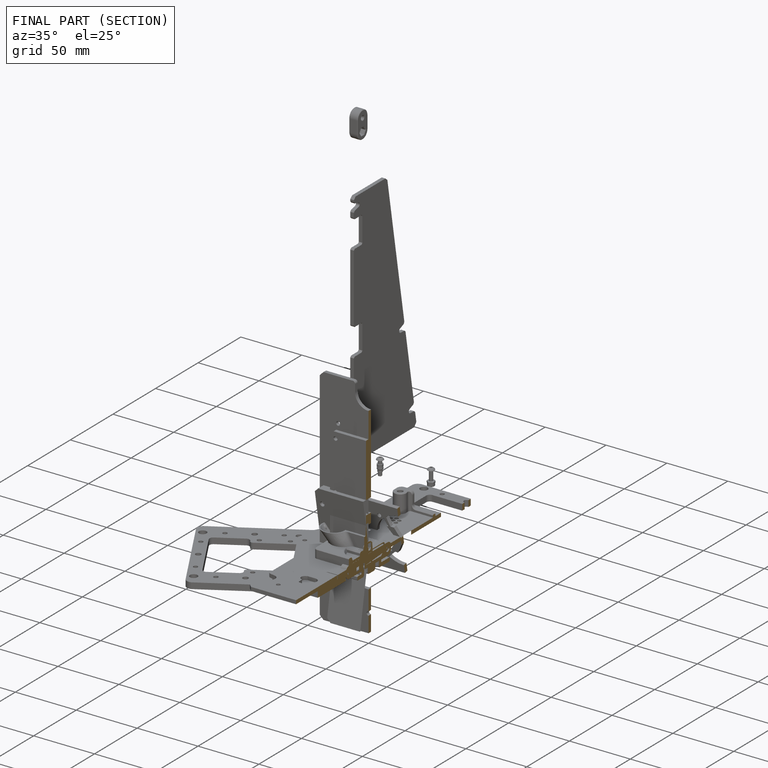
[diagram: finished part — half-section view (interior)]
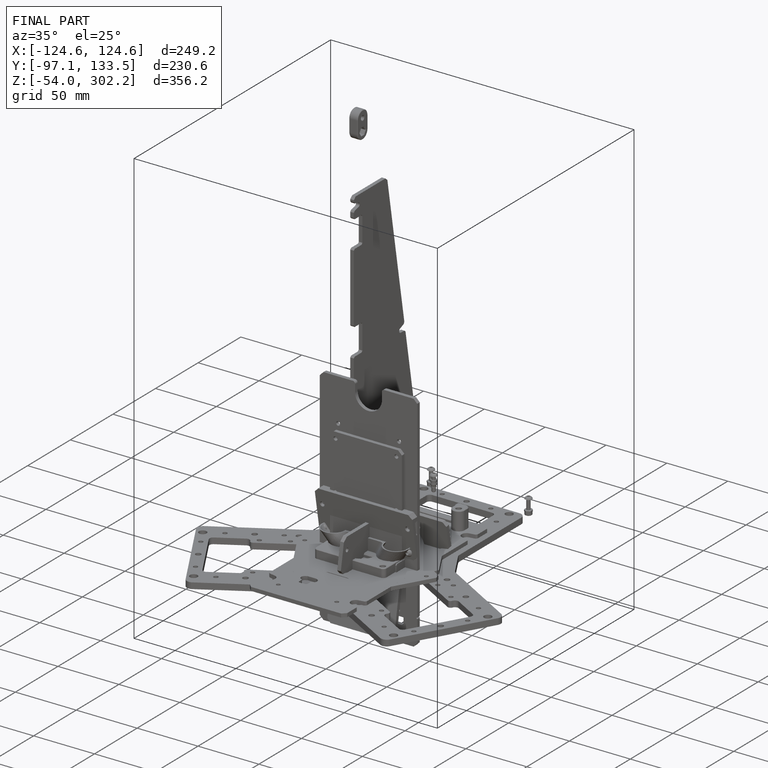
[diagram: finished part — iso view with bounding-box wireframe]
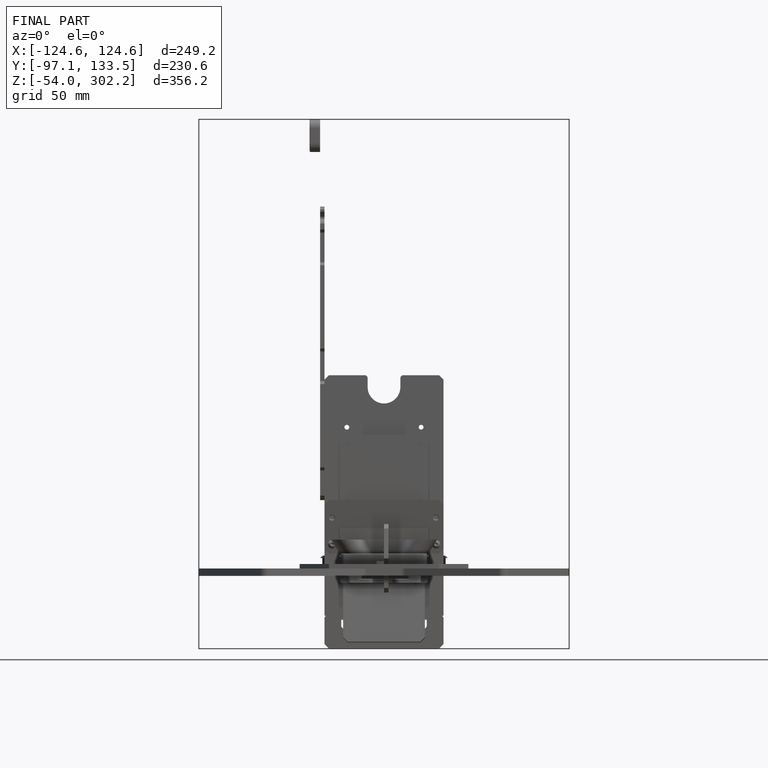
[diagram: finished part — front view with bounding-box wireframe]
